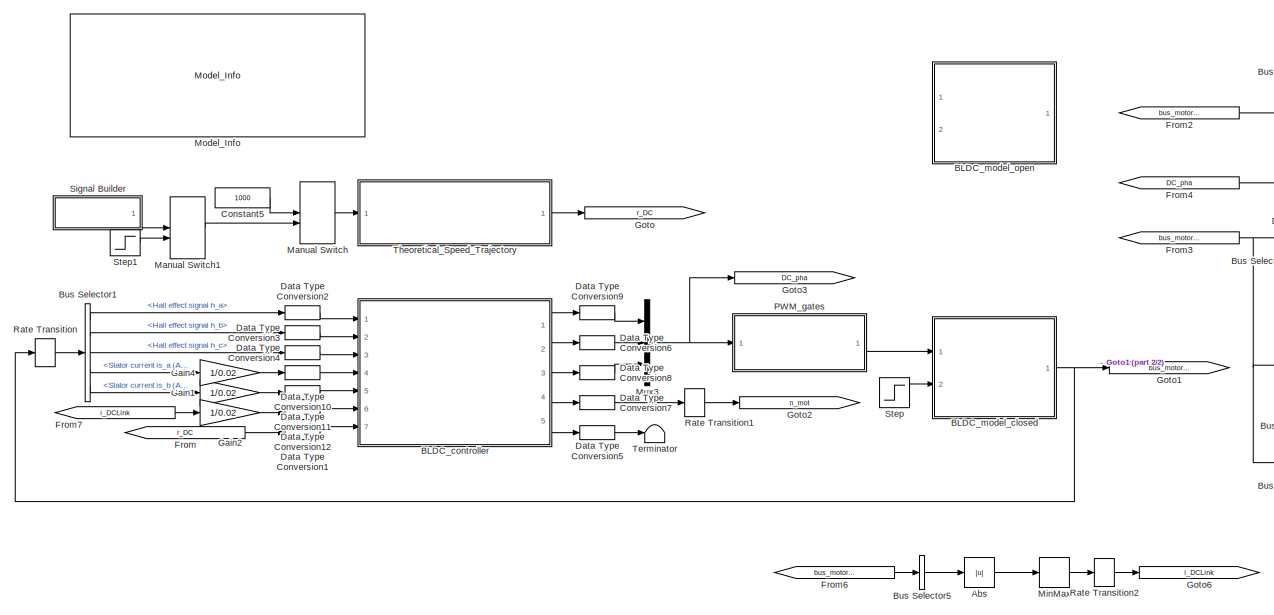
[diagram: root canvas - part 1/2, most of the canvas]
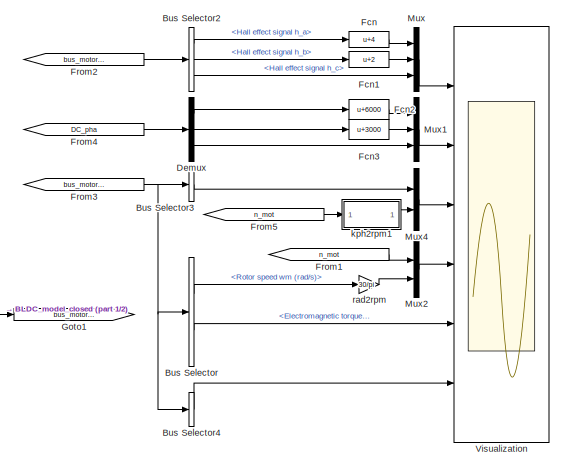
[diagram: root canvas - part 2/2, middle right region]
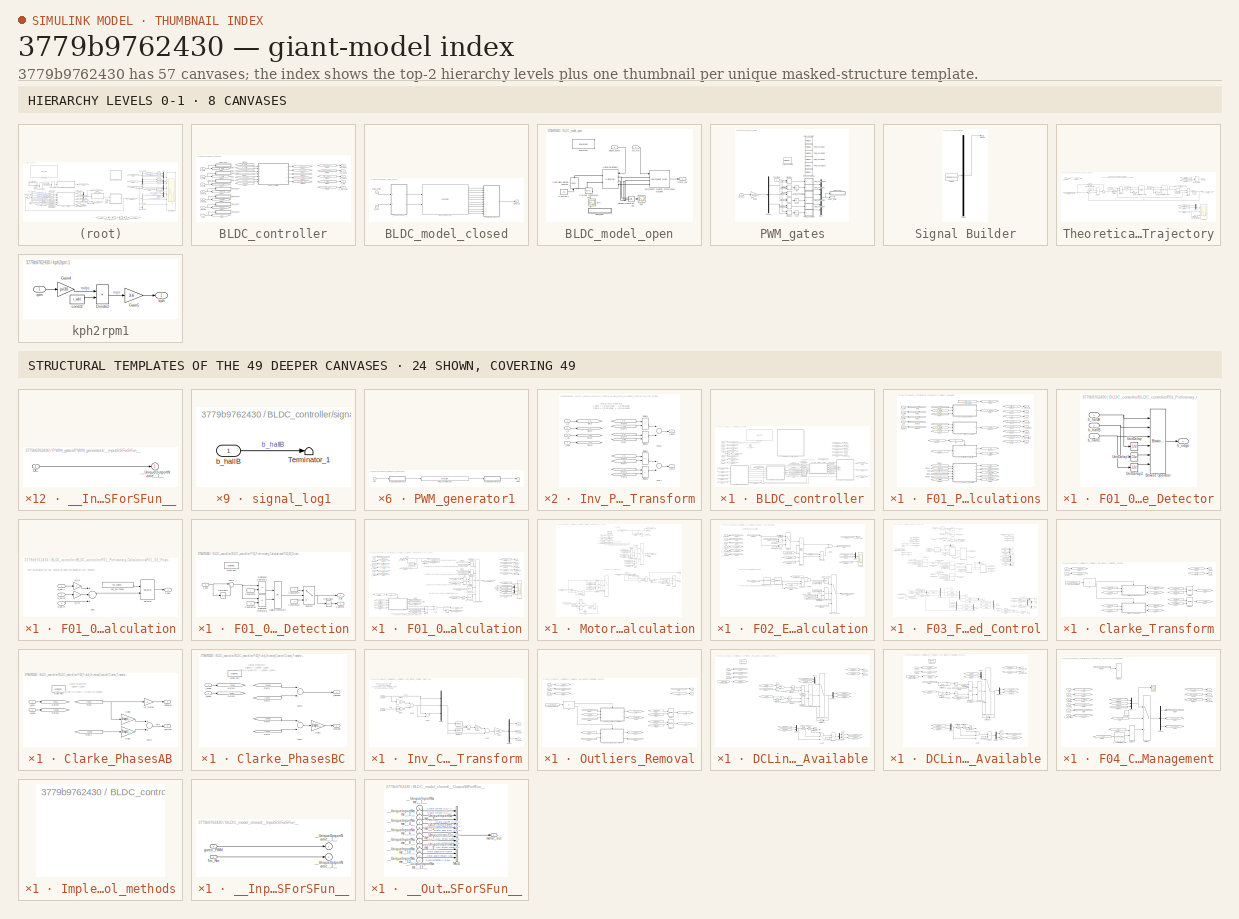
[diagram: thumbnail index - top-2 hierarchy levels (8 canvases) + 24 structural-template representatives of the remaining 49 canvases]
MODEL slx_3779b9762430
KIND model
CONFIG AbsTol = 1e-6
CONFIG EnableMultiTasking = on
CONFIG FixedStep = Ts
CONFIG InitFcn = init_model;
CONFIG MaxStep = 1e-6
CONFIG MinStep = auto
CONFIG PreLoadFcn = addpath(genpath('01_Libraries'));\naddpath(genpath('02_Figures'));
CONFIG RelTol = 1e-6
CONFIG SampleTimeConstraint = Unconstrained
CONFIG Solver = ode4
CONFIG SolverName = ode4
CONFIG StartTime = 0
CONFIG StopTime = 0.5
BLOCK [Abs] Abs
  SaturateOnIntegerOverflow = off
BLOCK [SubSystem] BLDC_controller
  Ports = [7, 5]
  RequestExecContextInheritance = off
  SystemSampleTime = Ts_ctrl
  TreatAsAtomicUnit = on
  Variant = off
BLOCK [SubSystem] BLDC_controller/BLDC_controller
  Ports = [7, 5]
  RequestExecContextInheritance = off
  SystemSampleTime = 1e-5
  Variant = off
BLOCK [Abs] BLDC_controller/BLDC_controller/Abs1
  OutDataTypeStr = Inherit: Inherit via back propagation
  RndMeth = Zero
  SaturateOnIntegerOverflow = off
BLOCK [Outport] BLDC_controller/BLDC_controller/DC_phaA
  IconDisplay = Port number
BLOCK [Outport] BLDC_controller/BLDC_controller/DC_phaB
  IconDisplay = Port number
  Port = 2
BLOCK [Outport] BLDC_controller/BLDC_controller/DC_phaC
  IconDisplay = Port number
  Port = 3
BLOCK [DataTypeConversion] BLDC_controller/BLDC_controller/Data Type Conversion1
  OutDataTypeStr = single
  RndMeth = Floor
  SaturateOnIntegerOverflow = off
BLOCK [DataTypeConversion] BLDC_controller/BLDC_controller/Data Type Conversion10
  OutDataTypeStr = single
  RndMeth = Floor
  SaturateOnIntegerOverflow = off
BLOCK [DataTypeConversion] BLDC_controller/BLDC_controller/Data Type Conversion12
  OutDataTypeStr = single
  RndMeth = Floor
  SaturateOnIntegerOverflow = off
BLOCK [DataTypeConversion] BLDC_controller/BLDC_controller/Data Type Conversion2
  OutDataTypeStr = int16
  RndMeth = Floor
  SaturateOnIntegerOverflow = off
BLOCK [DataTypeConversion] BLDC_controller/BLDC_controller/Data Type Conversion3
  OutDataTypeStr = int16
  RndMeth = Floor
  SaturateOnIntegerOverflow = off
BLOCK [DataTypeConversion] BLDC_controller/BLDC_controller/Data Type Conversion4
  OutDataTypeStr = single
  RndMeth = Floor
  SaturateOnIntegerOverflow = off
BLOCK [DataTypeConversion] BLDC_controller/BLDC_controller/Data Type Conversion5
  OutDataTypeStr = int16
  RndMeth = Floor
  SaturateOnIntegerOverflow = off
BLOCK [DataTypeConversion] BLDC_controller/BLDC_controller/Data Type Conversion6
  OutDataTypeStr = int16
  RndMeth = Floor
  SaturateOnIntegerOverflow = off
BLOCK [DataTypeConversion] BLDC_controller/BLDC_controller/Data Type Conversion7
  OutDataTypeStr = single
  RndMeth = Floor
  SaturateOnIntegerOverflow = off
BLOCK [SubSystem] BLDC_controller/BLDC_controller/F01_Preliminary_Calculations
  Ports = [5, 8]
  RequestExecContextInheritance = off
  Variant = off
BLOCK [SubSystem] BLDC_controller/BLDC_controller/F01_Preliminary_Calculations/F01_01_Edge_Detector
  Ports = [3, 1]
  RequestExecContextInheritance = off
  Variant = off
BLOCK [Reference] BLDC_controller/BLDC_controller/F01_Preliminary_Calculations/F01_01_Edge_Detector/Bitwise Operator  REF=simulink/Logic and Bit
Operations/Bitwise
Operator
  Ports = [6, 1]
  SourceBlock = simulink/Logic and Bit\nOperations/Bitwise\nOperator
  SourceProductBaseCode = SL
  SourceProductName = Simulink
  SourceType = Bitwise Operator
BLOCK [UnitDelay] BLDC_controller/BLDC_controller/F01_Preliminary_Calculations/F01_01_Edge_Detector/UnitDelay
  InputProcessing = Elements as channels (sample based)
  SampleTime = -1
BLOCK [UnitDelay] BLDC_controller/BLDC_controller/F01_Preliminary_Calculations/F01_01_Edge_Detector/UnitDelay1
  InputProcessing = Elements as channels (sample based)
  SampleTime = -1
BLOCK [UnitDelay] BLDC_controller/BLDC_controller/F01_Preliminary_Calculations/F01_01_Edge_Detector/UnitDelay2
  InputProcessing = Elements as channels (sample based)
  SampleTime = -1
BLOCK [Outport] BLDC_controller/BLDC_controller/F01_Preliminary_Calculations/F01_01_Edge_Detector/b_edge 
  IconDisplay = Port number
  InitialOutput = 0
  OutputWhenDisabled = reset
BLOCK [Inport] BLDC_controller/BLDC_controller/F01_Preliminary_Calculations/F01_01_Edge_Detector/b_hallA
  IconDisplay = Port number
BLOCK [Inport] BLDC_controller/BLDC_controller/F01_Preliminary_Calculations/F01_01_Edge_Detector/b_hallB
  IconDisplay = Port number
  Port = 2
BLOCK [Inport] BLDC_controller/BLDC_controller/F01_Preliminary_Calculations/F01_01_Edge_Detector/b_hallC
  IconDisplay = Port number
  Port = 3
BLOCK [SubSystem] BLDC_controller/BLDC_controller/F01_Preliminary_Calculations/F01_02_Position_Calculation
  Ports = [3, 1]
  RequestExecContextInheritance = off
  Variant = off
BLOCK [Selector] BLDC_controller/BLDC_controller/F01_Preliminary_Calculations/F01_02_Position_Calculation/Selector
  IndexMode = Zero-based
  IndexOptions = Index vector (port)
  Indices = [1 3]
  InputPortWidth = length(vec_hallToPos)
  OutputSizes = 1
  Ports = [2, 1]
BLOCK [Sum] BLDC_controller/BLDC_controller/F01_Preliminary_Calculations/F01_02_Position_Calculation/Sum
  AccumDataTypeStr = Inherit: Same as first input
  InputSameDT = off
  Inputs = +++
  Ports = [3, 1]
  RndMeth = Simplest
  SaturateOnIntegerOverflow = off
BLOCK [Inport] BLDC_controller/BLDC_controller/F01_Preliminary_Calculations/F01_02_Position_Calculation/b_hallA
  IconDisplay = Port number
BLOCK [Inport] BLDC_controller/BLDC_controller/F01_Preliminary_Calculations/F01_02_Position_Calculation/b_hallB
  IconDisplay = Port number
  Port = 2
BLOCK [Inport] BLDC_controller/BLDC_controller/F01_Preliminary_Calculations/F01_02_Position_Calculation/b_hallC
  IconDisplay = Port number
  Port = 3
BLOCK [Gain] BLDC_controller/BLDC_controller/F01_Preliminary_Calculations/F01_02_Position_Calculation/g_Ha
  Gain = 4
  OutDataTypeStr = Inherit: Inherit via back propagation
  RndMeth = Zero
  SaturateOnIntegerOverflow = off
BLOCK [Gain] BLDC_controller/BLDC_controller/F01_Preliminary_Calculations/F01_02_Position_Calculation/g_Hb
  Gain = 2
  OutDataTypeStr = Inherit: Inherit via back propagation
  RndMeth = Simplest
  SaturateOnIntegerOverflow = off
BLOCK [Constant] BLDC_controller/BLDC_controller/F01_Preliminary_Calculations/F01_02_Position_Calculation/vec_hallToPos
  OutDataTypeStr = int8
  Value = vec_hallToPos
BLOCK [Outport] BLDC_controller/BLDC_controller/F01_Preliminary_Calculations/F01_02_Position_Calculation/z_pos 
  IconDisplay = Port number
  InitialOutput = 0
  OutputWhenDisabled = reset
BLOCK [SubSystem] BLDC_controller/BLDC_controller/F01_Preliminary_Calculations/F01_03_Direction_Detection
  Ports = [1, 2, 0, 0, 0, 0, 0, 1]
  RequestExecContextInheritance = off
  Variant = off
BLOCK [ActionPort] BLDC_controller/BLDC_controller/F01_Preliminary_Calculations/F01_03_Direction_Detection/Action Port
  ActionType = then
BLOCK [Constant] BLDC_controller/BLDC_controller/F01_Preliminary_Calculations/F01_03_Direction_Detection/Constant20
  OutDataTypeStr = Inherit: Inherit via back propagation
  Value = -5
BLOCK [Constant] BLDC_controller/BLDC_controller/F01_Preliminary_Calculations/F01_03_Direction_Detection/Constant23
  OutDataTypeStr = int8
  Value = -1
BLOCK [Constant] BLDC_controller/BLDC_controller/F01_Preliminary_Calculations/F01_03_Direction_Detection/Constant24
  OutDataTypeStr = int8
BLOCK [Constant] BLDC_controller/BLDC_controller/F01_Preliminary_Calculations/F01_03_Direction_Detection/Constant8
  OutDataTypeStr = Inherit: Inherit via back propagation
BLOCK [Logic] BLDC_controller/BLDC_controller/F01_Preliminary_Calculations/F01_03_Direction_Detection/Logical Operator3
  AllPortsSameDT = off
  Operator = OR
  OutDataTypeStr = boolean
  Ports = [2, 1]
BLOCK [RelationalOperator] BLDC_controller/BLDC_controller/F01_Preliminary_Calculations/F01_03_Direction_Detection/Relational Operator1
  InputSameDT = off
  Operator = ==
  OutDataTypeStr = boolean
  Ports = [2, 1]
  RndMeth = Simplest
BLOCK [RelationalOperator] BLDC_controller/BLDC_controller/F01_Preliminary_Calculations/F01_03_Direction_Detection/Relational Operator6
  InputSameDT = off
  Operator = ==
  OutDataTypeStr = boolean
  Ports = [2, 1]
  RndMeth = Simplest
BLOCK [Sum] BLDC_controller/BLDC_controller/F01_Preliminary_Calculations/F01_03_Direction_Detection/Sum2
  AccumDataTypeStr = Inherit: Same as first input
  IconShape = round
  Inputs = |+-
  Ports = [2, 1]
  RndMeth = Zero
  SaturateOnIntegerOverflow = off
BLOCK [Switch] BLDC_controller/BLDC_controller/F01_Preliminary_Calculations/F01_03_Direction_Detection/Switch2
  Criteria = u2 ~= 0
  InputSameDT = off
  OutDataTypeStr = Inherit: Inherit via back propagation
  RndMeth = Simplest
  SaturateOnIntegerOverflow = off
BLOCK [UnitDelay] BLDC_controller/BLDC_controller/F01_Preliminary_Calculations/F01_03_Direction_Detection/UnitDelay1
  InputProcessing = Elements as channels (sample based)
  SampleTime = -1
BLOCK [UnitDelay] BLDC_controller/BLDC_controller/F01_Preliminary_Calculations/F01_03_Direction_Detection/UnitDelay2
  InputProcessing = Elements as channels (sample based)
  SampleTime = -1
BLOCK [Outport] BLDC_controller/BLDC_controller/F01_Preliminary_Calculations/F01_03_Direction_Detection/z_dir
  IconDisplay = Port number
BLOCK [Outport] BLDC_controller/BLDC_controller/F01_Preliminary_Calculations/F01_03_Direction_Detection/z_dirPrev
  IconDisplay = Port number
  Port = 2
BLOCK [Inport] BLDC_controller/BLDC_controller/F01_Preliminary_Calculations/F01_03_Direction_Detection/z_pos
  IconDisplay = Port number
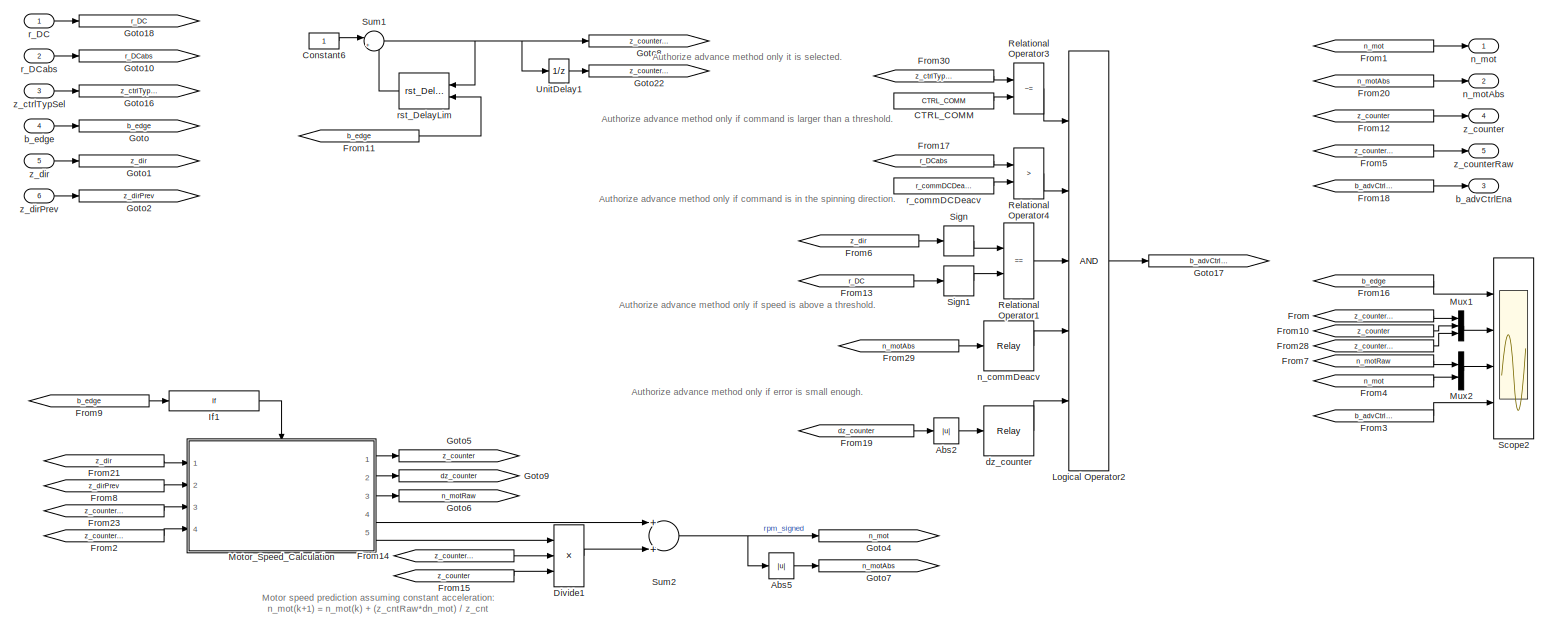
[diagram: BLDC_controller/BLDC_controller/F01_Preliminary_Calculations/F01_04_Speed_Calculation - part 1/1, most of the canvas]
BLOCK [SubSystem] BLDC_controller/BLDC_controller/F01_Preliminary_Calculations/F01_04_Speed_Calculation
  Ports = [6, 5]
  RequestExecContextInheritance = off
  Variant = off
BLOCK [Abs] BLDC_controller/BLDC_controller/F01_Preliminary_Calculations/F01_04_Speed_Calculation/Abs2
  OutDataTypeStr = Inherit: Inherit via back propagation
  RndMeth = Zero
  SaturateOnIntegerOverflow = off
BLOCK [Abs] BLDC_controller/BLDC_controller/F01_Preliminary_Calculations/F01_04_Speed_Calculation/Abs5
  OutDataTypeStr = Inherit: Inherit via back propagation
  RndMeth = Zero
  SaturateOnIntegerOverflow = off
BLOCK [Constant] BLDC_controller/BLDC_controller/F01_Preliminary_Calculations/F01_04_Speed_Calculation/CTRL_COMM
  OutDataTypeStr = Inherit: Inherit via back propagation
  Value = CTRL_COMM
BLOCK [Constant] BLDC_controller/BLDC_controller/F01_Preliminary_Calculations/F01_04_Speed_Calculation/Constant6
  OutDataTypeStr = int16
BLOCK [Product] BLDC_controller/BLDC_controller/F01_Preliminary_Calculations/F01_04_Speed_Calculation/Divide1
  InputSameDT = off
  Inputs = **/
  Ports = [3, 1]
  RndMeth = Simplest
  SaturateOnIntegerOverflow = off
BLOCK [From] BLDC_controller/BLDC_controller/F01_Preliminary_Calculations/F01_04_Speed_Calculation/From
  GotoTag = z_counterRaw
BLOCK [From] BLDC_controller/BLDC_controller/F01_Preliminary_Calculations/F01_04_Speed_Calculation/From1
  GotoTag = n_mot
BLOCK [From] BLDC_controller/BLDC_controller/F01_Preliminary_Calculations/F01_04_Speed_Calculation/From10
  GotoTag = z_counter
BLOCK [From] BLDC_controller/BLDC_controller/F01_Preliminary_Calculations/F01_04_Speed_Calculation/From11
  GotoTag = b_edge
BLOCK [From] BLDC_controller/BLDC_controller/F01_Preliminary_Calculations/F01_04_Speed_Calculation/From12
  GotoTag = z_counter
BLOCK [From] BLDC_controller/BLDC_controller/F01_Preliminary_Calculations/F01_04_Speed_Calculation/From13
  GotoTag = r_DC
BLOCK [From] BLDC_controller/BLDC_controller/F01_Preliminary_Calculations/F01_04_Speed_Calculation/From14
  GotoTag = z_counterRaw
BLOCK [From] BLDC_controller/BLDC_controller/F01_Preliminary_Calculations/F01_04_Speed_Calculation/From15
  GotoTag = z_counter
BLOCK [From] BLDC_controller/BLDC_controller/F01_Preliminary_Calculations/F01_04_Speed_Calculation/From16
  GotoTag = b_edge
BLOCK [From] BLDC_controller/BLDC_controller/F01_Preliminary_Calculations/F01_04_Speed_Calculation/From17
  GotoTag = r_DCabs
BLOCK [From] BLDC_controller/BLDC_controller/F01_Preliminary_Calculations/F01_04_Speed_Calculation/From18
  GotoTag = b_advCtrlEna
BLOCK [From] BLDC_controller/BLDC_controller/F01_Preliminary_Calculations/F01_04_Speed_Calculation/From19
  GotoTag = dz_counter
BLOCK [From] BLDC_controller/BLDC_controller/F01_Preliminary_Calculations/F01_04_Speed_Calculation/From2
  GotoTag = z_counterRawPrev
BLOCK [From] BLDC_controller/BLDC_controller/F01_Preliminary_Calculations/F01_04_Speed_Calculation/From20
  GotoTag = n_motAbs
BLOCK [From] BLDC_controller/BLDC_controller/F01_Preliminary_Calculations/F01_04_Speed_Calculation/From21
  GotoTag = z_dir
BLOCK [From] BLDC_controller/BLDC_controller/F01_Preliminary_Calculations/F01_04_Speed_Calculation/From23
  GotoTag = z_counterRaw
BLOCK [From] BLDC_controller/BLDC_controller/F01_Preliminary_Calculations/F01_04_Speed_Calculation/From28
  GotoTag = z_counterCor
BLOCK [From] BLDC_controller/BLDC_controller/F01_Preliminary_Calculations/F01_04_Speed_Calculation/From29
  GotoTag = n_motAbs
BLOCK [From] BLDC_controller/BLDC_controller/F01_Preliminary_Calculations/F01_04_Speed_Calculation/From3
  GotoTag = b_advCtrlEna
BLOCK [From] BLDC_controller/BLDC_controller/F01_Preliminary_Calculations/F01_04_Speed_Calculation/From30
  GotoTag = z_ctrlTypSel
BLOCK [From] BLDC_controller/BLDC_controller/F01_Preliminary_Calculations/F01_04_Speed_Calculation/From4
  GotoTag = n_mot
BLOCK [From] BLDC_controller/BLDC_controller/F01_Preliminary_Calculations/F01_04_Speed_Calculation/From5
  GotoTag = z_counterRaw
BLOCK [From] BLDC_controller/BLDC_controller/F01_Preliminary_Calculations/F01_04_Speed_Calculation/From6
  GotoTag = z_dir
BLOCK [From] BLDC_controller/BLDC_controller/F01_Preliminary_Calculations/F01_04_Speed_Calculation/From7
  GotoTag = n_motRaw
BLOCK [From] BLDC_controller/BLDC_controller/F01_Preliminary_Calculations/F01_04_Speed_Calculation/From8
  GotoTag = z_dirPrev
BLOCK [From] BLDC_controller/BLDC_controller/F01_Preliminary_Calculations/F01_04_Speed_Calculation/From9
  GotoTag = b_edge
BLOCK [Goto] BLDC_controller/BLDC_controller/F01_Preliminary_Calculations/F01_04_Speed_Calculation/Goto
  GotoTag = b_edge
BLOCK [Goto] BLDC_controller/BLDC_controller/F01_Preliminary_Calculations/F01_04_Speed_Calculation/Goto1
  GotoTag = z_dir
BLOCK [Goto] BLDC_controller/BLDC_controller/F01_Preliminary_Calculations/F01_04_Speed_Calculation/Goto10
  GotoTag = r_DCabs
BLOCK [Goto] BLDC_controller/BLDC_controller/F01_Preliminary_Calculations/F01_04_Speed_Calculation/Goto16
  GotoTag = z_ctrlTypSel
BLOCK [Goto] BLDC_controller/BLDC_controller/F01_Preliminary_Calculations/F01_04_Speed_Calculation/Goto17
  GotoTag = b_advCtrlEna
BLOCK [Goto] BLDC_controller/BLDC_controller/F01_Preliminary_Calculations/F01_04_Speed_Calculation/Goto18
  GotoTag = r_DC
BLOCK [Goto] BLDC_controller/BLDC_controller/F01_Preliminary_Calculations/F01_04_Speed_Calculation/Goto2
  GotoTag = z_dirPrev
BLOCK [Goto] BLDC_controller/BLDC_controller/F01_Preliminary_Calculations/F01_04_Speed_Calculation/Goto22
  GotoTag = z_counterRawPrev
BLOCK [Goto] BLDC_controller/BLDC_controller/F01_Preliminary_Calculations/F01_04_Speed_Calculation/Goto4
  GotoTag = n_mot
BLOCK [Goto] BLDC_controller/BLDC_controller/F01_Preliminary_Calculations/F01_04_Speed_Calculation/Goto5
  GotoTag = z_counter
BLOCK [Goto] BLDC_controller/BLDC_controller/F01_Preliminary_Calculations/F01_04_Speed_Calculation/Goto6
  GotoTag = n_motRaw
BLOCK [Goto] BLDC_controller/BLDC_controller/F01_Preliminary_Calculations/F01_04_Speed_Calculation/Goto7
  GotoTag = n_motAbs
BLOCK [Goto] BLDC_controller/BLDC_controller/F01_Preliminary_Calculations/F01_04_Speed_Calculation/Goto8
  GotoTag = z_counterRaw
BLOCK [Goto] BLDC_controller/BLDC_controller/F01_Preliminary_Calculations/F01_04_Speed_Calculation/Goto9
  GotoTag = dz_counter
BLOCK [If] BLDC_controller/BLDC_controller/F01_Preliminary_Calculations/F01_04_Speed_Calculation/If1
  IfExpression = u1 ~= 0
  Ports = [1, 1]
  ShowElse = off
BLOCK [Logic] BLDC_controller/BLDC_controller/F01_Preliminary_Calculations/F01_04_Speed_Calculation/Logical Operator2
  AllPortsSameDT = off
  Inputs = 5
  OutDataTypeStr = boolean
  Ports = [5, 1]
BLOCK [SubSystem] BLDC_controller/BLDC_controller/F01_Preliminary_Calculations/F01_04_Speed_Calculation/Motor_Speed_Calculation
  Ports = [4, 5, 0, 0, 0, 0, 0, 1]
  RequestExecContextInheritance = off
  Variant = off
BLOCK [Abs] BLDC_controller/BLDC_controller/F01_Preliminary_Calculations/F01_04_Speed_Calculation/Motor_Speed_Calculation/Abs
  SaturateOnIntegerOverflow = off
BLOCK [ActionPort] BLDC_controller/BLDC_controller/F01_Preliminary_Calculations/F01_04_Speed_Calculation/Motor_Speed_Calculation/Action Port
  ActionType = then
BLOCK [Constant] BLDC_controller/BLDC_controller/F01_Preliminary_Calculations/F01_04_Speed_Calculation/Motor_Speed_Calculation/Constant
  OutDataTypeStr = Inherit: Inherit via back propagation
  Value = 25
BLOCK [Constant] BLDC_controller/BLDC_controller/F01_Preliminary_Calculations/F01_04_Speed_Calculation/Motor_Speed_Calculation/Constant1
  OutDataTypeStr = Inherit: Inherit via back propagation
  Value = 0
BLOCK [Constant] BLDC_controller/BLDC_controller/F01_Preliminary_Calculations/F01_04_Speed_Calculation/Motor_Speed_Calculation/Constant2
  OutDataTypeStr = Inherit: Inherit via back propagation
  Value = 0
BLOCK [Constant] BLDC_controller/BLDC_controller/F01_Preliminary_Calculations/F01_04_Speed_Calculation/Motor_Speed_Calculation/Constant3
  Commented = on
  OutDataTypeStr = Inherit: Inherit via back propagation
  Value = 2
BLOCK [Constant] BLDC_controller/BLDC_controller/F01_Preliminary_Calculations/F01_04_Speed_Calculation/Motor_Speed_Calculation/Constant4
  OutDataTypeStr = Inherit: Inherit via back propagation
  Value = 4
BLOCK [Constant] BLDC_controller/BLDC_controller/F01_Preliminary_Calculations/F01_04_Speed_Calculation/Motor_Speed_Calculation/Constant5
  Commented = on
  OutDataTypeStr = Inherit: Inherit via back propagation
  Value = 100
BLOCK [Constant] BLDC_controller/BLDC_controller/F01_Preliminary_Calculations/F01_04_Speed_Calculation/Motor_Speed_Calculation/Constant6
  Commented = on
  OutDataTypeStr = Inherit: Inherit via back propagation
  Value = 100
BLOCK [Constant] BLDC_controller/BLDC_controller/F01_Preliminary_Calculations/F01_04_Speed_Calculation/Motor_Speed_Calculation/Constant7
  Commented = on
  OutDataTypeStr = Inherit: Inherit via back propagation
  Value = 200
BLOCK [Product] BLDC_controller/BLDC_controller/F01_Preliminary_Calculations/F01_04_Speed_Calculation/Motor_Speed_Calculation/Divide1
  InputSameDT = off
  Inputs = */
  OutDataTypeStr = Inherit: Inherit via internal rule
  Ports = [2, 1]
  RndMeth = Simplest
  SaturateOnIntegerOverflow = off
BLOCK [Product] BLDC_controller/BLDC_controller/F01_Preliminary_Calculations/F01_04_Speed_Calculation/Motor_Speed_Calculation/Divide2
  Commented = on
  InputSameDT = off
  Inputs = **
  Ports = [2, 1]
  RndMeth = Simplest
  SaturateOnIntegerOverflow = off
BLOCK [Product] BLDC_controller/BLDC_controller/F01_Preliminary_Calculations/F01_04_Speed_Calculation/Motor_Speed_Calculation/Divide3
  Commented = on
  InputSameDT = off
  Inputs = */
  OutDataTypeStr = Inherit: Inherit via internal rule
  Ports = [2, 1]
  RndMeth = Simplest
  SaturateOnIntegerOverflow = off
BLOCK [Product] BLDC_controller/BLDC_controller/F01_Preliminary_Calculations/F01_04_Speed_Calculation/Motor_Speed_Calculation/Divide4
  InputSameDT = off
  Inputs = **/
  Ports = [3, 1]
  RndMeth = Simplest
  SaturateOnIntegerOverflow = off
BLOCK [Product] BLDC_controller/BLDC_controller/F01_Preliminary_Calculations/F01_04_Speed_Calculation/Motor_Speed_Calculation/Divide5
  Commented = on
  InputSameDT = off
  Inputs = */
  Ports = [2, 1]
  RndMeth = Simplest
  SaturateOnIntegerOverflow = off
BLOCK [Product] BLDC_controller/BLDC_controller/F01_Preliminary_Calculations/F01_04_Speed_Calculation/Motor_Speed_Calculation/Divide6
  Commented = on
  InputSameDT = off
  Inputs = **
  Ports = [2, 1]
  RndMeth = Simplest
  SaturateOnIntegerOverflow = off
BLOCK [From] BLDC_controller/BLDC_controller/F01_Preliminary_Calculations/F01_04_Speed_Calculation/Motor_Speed_Calculation/From
  Commented = on
  GotoTag = n_motRaw
BLOCK [From] BLDC_controller/BLDC_controller/F01_Preliminary_Calculations/F01_04_Speed_Calculation/Motor_Speed_Calculation/From1
  GotoTag = z_counterRawPrev
BLOCK [From] BLDC_controller/BLDC_controller/F01_Preliminary_Calculations/F01_04_Speed_Calculation/Motor_Speed_Calculation/From14
  GotoTag = z_counterRaw
BLOCK [From] BLDC_controller/BLDC_controller/F01_Preliminary_Calculations/F01_04_Speed_Calculation/Motor_Speed_Calculation/From15
  GotoTag = z_dir
BLOCK [From] BLDC_controller/BLDC_controller/F01_Preliminary_Calculations/F01_04_Speed_Calculation/Motor_Speed_Calculation/From17
  GotoTag = z_dirPrev
BLOCK [From] BLDC_controller/BLDC_controller/F01_Preliminary_Calculations/F01_04_Speed_Calculation/Motor_Speed_Calculation/From2
  GotoTag = n_motRaw
BLOCK [From] BLDC_controller/BLDC_controller/F01_Preliminary_Calculations/F01_04_Speed_Calculation/Motor_Speed_Calculation/From42
  GotoTag = z_dir
BLOCK [From] BLDC_controller/BLDC_controller/F01_Preliminary_Calculations/F01_04_Speed_Calculation/Motor_Speed_Calculation/From5
  Commented = on
  GotoTag = z_counter
BLOCK [From] BLDC_controller/BLDC_controller/F01_Preliminary_Calculations/F01_04_Speed_Calculation/Motor_Speed_Calculation/From6
  Commented = on
  GotoTag = z_dir
BLOCK [From] BLDC_controller/BLDC_controller/F01_Preliminary_Calculations/F01_04_Speed_Calculation/Motor_Speed_Calculation/From7
  Commented = on
  GotoTag = z_dirPrev
BLOCK [From] BLDC_controller/BLDC_controller/F01_Preliminary_Calculations/F01_04_Speed_Calculation/Motor_Speed_Calculation/From8
  GotoTag = z_counter
BLOCK [Goto] BLDC_controller/BLDC_controller/F01_Preliminary_Calculations/F01_04_Speed_Calculation/Motor_Speed_Calculation/Goto
  GotoTag = z_dir
BLOCK [Goto] BLDC_controller/BLDC_controller/F01_Preliminary_Calculations/F01_04_Speed_Calculation/Motor_Speed_Calculation/Goto1
  GotoTag = z_counter
BLOCK [Goto] BLDC_controller/BLDC_controller/F01_Preliminary_Calculations/F01_04_Speed_Calculation/Motor_Speed_Calculation/Goto2
  GotoTag = n_motRaw
BLOCK [Goto] BLDC_controller/BLDC_controller/F01_Preliminary_Calculations/F01_04_Speed_Calculation/Motor_Speed_Calculation/Goto3
  GotoTag = z_dirPrev
BLOCK [Goto] BLDC_controller/BLDC_controller/F01_Preliminary_Calculations/F01_04_Speed_Calculation/Motor_Speed_Calculation/Goto4
  GotoTag = z_counterRaw
BLOCK [Goto] BLDC_controller/BLDC_controller/F01_Preliminary_Calculations/F01_04_Speed_Calculation/Motor_Speed_Calculation/Goto5
  GotoTag = z_counterRawPrev
BLOCK [Logic] BLDC_controller/BLDC_controller/F01_Preliminary_Calculations/F01_04_Speed_Calculation/Motor_Speed_Calculation/Logical Operator1
  AllPortsSameDT = off
  Operator = OR
  OutDataTypeStr = boolean
  Ports = [2, 1]
BLOCK [Logic] BLDC_controller/BLDC_controller/F01_Preliminary_Calculations/F01_04_Speed_Calculation/Motor_Speed_Calculation/Logical Operator2
  AllPortsSameDT = off
  Commented = on
  Operator = OR
  OutDataTypeStr = boolean
  Ports = [2, 1]
BLOCK [RelationalOperator] BLDC_controller/BLDC_controller/F01_Preliminary_Calculations/F01_04_Speed_Calculation/Motor_Speed_Calculation/Relational Operator
  InputSameDT = off
  Operator = >
  OutDataTypeStr = boolean
  Ports = [2, 1]
BLOCK [RelationalOperator] BLDC_controller/BLDC_controller/F01_Preliminary_Calculations/F01_04_Speed_Calculation/Motor_Speed_Calculation/Relational Operator2
  InputSameDT = off
  Operator = >
  OutDataTypeStr = boolean
  Ports = [2, 1]
  RndMeth = Simplest
BLOCK [RelationalOperator] BLDC_controller/BLDC_controller/F01_Preliminary_Calculations/F01_04_Speed_Calculation/Motor_Speed_Calculation/Relational Operator3
  Commented = on
  InputSameDT = off
  Operator = >
  OutDataTypeStr = boolean
  Ports = [2, 1]
BLOCK [RelationalOperator] BLDC_controller/BLDC_controller/F01_Preliminary_Calculations/F01_04_Speed_Calculation/Motor_Speed_Calculation/Relational Operator4
  Commented = on
  InputSameDT = off
  Operator = ~=
  OutDataTypeStr = boolean
  Ports = [2, 1]
  RndMeth = Simplest
BLOCK [RelationalOperator] BLDC_controller/BLDC_controller/F01_Preliminary_Calculations/F01_04_Speed_Calculation/Motor_Speed_Calculation/Relational Operator5
  InputSameDT = off
  Operator = ~=
  OutDataTypeStr = boolean
  Ports = [2, 1]
  RndMeth = Simplest
BLOCK [Sum] BLDC_controller/BLDC_controller/F01_Preliminary_Calculations/F01_04_Speed_Calculation/Motor_Speed_Calculation/Sum1
  Commented = on
  OutDataTypeStr = Inherit: Inherit via internal rule
  Ports = [2, 1]
  RndMeth = Simplest
  SaturateOnIntegerOverflow = off
BLOCK [Sum] BLDC_controller/BLDC_controller/F01_Preliminary_Calculations/F01_04_Speed_Calculation/Motor_Speed_Calculation/Sum2
  AccumDataTypeStr = Inherit: Same as first input
  Inputs = +-
  Ports = [2, 1]
  RndMeth = Simplest
  SaturateOnIntegerOverflow = off
BLOCK [Sum] BLDC_controller/BLDC_controller/F01_Preliminary_Calculations/F01_04_Speed_Calculation/Motor_Speed_Calculation/Sum3
  Inputs = ++++
  OutDataTypeStr = Inherit: Inherit via internal rule
  Ports = [4, 1]
  RndMeth = Simplest
  SaturateOnIntegerOverflow = off
BLOCK [Sum] BLDC_controller/BLDC_controller/F01_Preliminary_Calculations/F01_04_Speed_Calculation/Motor_Speed_Calculation/Sum4
  AccumDataTypeStr = Inherit: Same as first input
  Inputs = +-
  Ports = [2, 1]
  RndMeth = Simplest
  SaturateOnIntegerOverflow = off
BLOCK [Sum] BLDC_controller/BLDC_controller/F01_Preliminary_Calculations/F01_04_Speed_Calculation/Motor_Speed_Calculation/Sum5
  AccumDataTypeStr = Inherit: Same as first input
  Commented = on
  Ports = [2, 1]
  RndMeth = Simplest
  SaturateOnIntegerOverflow = off
BLOCK [Sum] BLDC_controller/BLDC_controller/F01_Preliminary_Calculations/F01_04_Speed_Calculation/Motor_Speed_Calculation/Sum6
  AccumDataTypeStr = Inherit: Same as first input
  Commented = on
  Inputs = +-
  Ports = [2, 1]
  RndMeth = Simplest
  SaturateOnIntegerOverflow = off
BLOCK [Switch] BLDC_controller/BLDC_controller/F01_Preliminary_Calculations/F01_04_Speed_Calculation/Motor_Speed_Calculation/Switch1
  Criteria = u2 ~= 0
  InputSameDT = off
  OutDataTypeStr = Inherit: Inherit via back propagation
  RndMeth = Zero
  SaturateOnIntegerOverflow = off
BLOCK [Switch] BLDC_controller/BLDC_controller/F01_Preliminary_Calculations/F01_04_Speed_Calculation/Motor_Speed_Calculation/Switch3
  Commented = on
  Criteria = u2 ~= 0
  InputSameDT = off
  OutDataTypeStr = Inherit: Inherit via back propagation
  RndMeth = Zero
  SaturateOnIntegerOverflow = off
BLOCK [Switch] BLDC_controller/BLDC_controller/F01_Preliminary_Calculations/F01_04_Speed_Calculation/Motor_Speed_Calculation/Switch6
  AttributesFormatString = threshold=%<threshold>\nCriteria : %<Criteria>
  Criteria = u2 ~= 0
  Tag = struct('comment',struct('text','','placement',1),'logdata',struct('maxnumvals',inf,'plotchannels',[],'loggingmode',3,'channels',1),'output',struct('variable','','description','','name','$S_$B','width',1,'address','','max',NaN,'min',NaN,'class','default','type','CONTINUOUS','scaling','','lsb',1,'offset',0,'arb',0,'freeze',1,'unit','','autoscalingmode',1,'lowerheadroom',1,'upperheadroom',1,'headroom...<+413ch>
BLOCK [UnitDelay] BLDC_controller/BLDC_controller/F01_Preliminary_Calculations/F01_04_Speed_Calculation/Motor_Speed_Calculation/UnitDelay1
  InputProcessing = Elements as channels (sample based)
  SampleTime = -1
BLOCK [UnitDelay] BLDC_controller/BLDC_controller/F01_Preliminary_Calculations/F01_04_Speed_Calculation/Motor_Speed_Calculation/UnitDelay2
  InputProcessing = Elements as channels (sample based)
  SampleTime = -1
BLOCK [UnitDelay] BLDC_controller/BLDC_controller/F01_Preliminary_Calculations/F01_04_Speed_Calculation/Motor_Speed_Calculation/UnitDelay3
  InputProcessing = Elements as channels (sample based)
  SampleTime = -1
BLOCK [UnitDelay] BLDC_controller/BLDC_controller/F01_Preliminary_Calculations/F01_04_Speed_Calculation/Motor_Speed_Calculation/UnitDelay4
  Commented = on
  InputProcessing = Elements as channels (sample based)
  SampleTime = -1
BLOCK [UnitDelay] BLDC_controller/BLDC_controller/F01_Preliminary_Calculations/F01_04_Speed_Calculation/Motor_Speed_Calculation/UnitDelay5
  InputProcessing = Elements as channels (sample based)
  SampleTime = -1
BLOCK [UnitDelay] BLDC_controller/BLDC_controller/F01_Preliminary_Calculations/F01_04_Speed_Calculation/Motor_Speed_Calculation/UnitDelay6
  Commented = on
  InputProcessing = Elements as channels (sample based)
  SampleTime = -1
BLOCK [Constant] BLDC_controller/BLDC_controller/F01_Preliminary_Calculations/F01_04_Speed_Calculation/Motor_Speed_Calculation/cf_spdCoef
  OutDataTypeStr = int32
  Value = cf_speedCoef
BLOCK [Constant] BLDC_controller/BLDC_controller/F01_Preliminary_Calculations/F01_04_Speed_Calculation/Motor_Speed_Calculation/cf_speedFilt
  Commented = on
  OutDataTypeStr = int32
  Value = 3
BLOCK [Outport] BLDC_controller/BLDC_controller/F01_Preliminary_Calculations/F01_04_Speed_Calculation/Motor_Speed_Calculation/dn_mot
  IconDisplay = Port number
  Port = 5
BLOCK [Outport] BLDC_controller/BLDC_controller/F01_Preliminary_Calculations/F01_04_Speed_Calculation/Motor_Speed_Calculation/dz_counter
  IconDisplay = Port number
  Port = 2
BLOCK [Outport] BLDC_controller/BLDC_controller/F01_Preliminary_Calculations/F01_04_Speed_Calculation/Motor_Speed_Calculation/n_motFilt
  IconDisplay = Port number
  Port = 4
BLOCK [Outport] BLDC_controller/BLDC_controller/F01_Preliminary_Calculations/F01_04_Speed_Calculation/Motor_Speed_Calculation/n_motRaw
  IconDisplay = Port number
  Port = 3
BLOCK [Outport] BLDC_controller/BLDC_controller/F01_Preliminary_Calculations/F01_04_Speed_Calculation/Motor_Speed_Calculation/z_counter
  IconDisplay = Port number
  InitialOutput = z_maxCntRst
BLOCK [UnitDelay] BLDC_controller/BLDC_controller/F01_Preliminary_Calculations/F01_04_Speed_Calculation/Motor_Speed_Calculation/z_counter2
  InitialCondition = z_maxCntRst
  InputProcessing = Elements as channels (sample based)
  SampleTime = -1
BLOCK [Inport] BLDC_controller/BLDC_controller/F01_Preliminary_Calculations/F01_04_Speed_Calculation/Motor_Speed_Calculation/z_counterRaw
  IconDisplay = Port number
  Port = 3
BLOCK [Inport] BLDC_controller/BLDC_controller/F01_Preliminary_Calculations/F01_04_Speed_Calculation/Motor_Speed_Calculation/z_counterRawPrev
  IconDisplay = Port number
  Port = 4
BLOCK [Inport] BLDC_controller/BLDC_controller/F01_Preliminary_Calculations/F01_04_Speed_Calculation/Motor_Speed_Calculation/z_dir
  IconDisplay = Port number
BLOCK [Inport] BLDC_controller/BLDC_controller/F01_Preliminary_Calculations/F01_04_Speed_Calculation/Motor_Speed_Calculation/z_dirPrev
  IconDisplay = Port number
  Port = 2
BLOCK [Constant] BLDC_controller/BLDC_controller/F01_Preliminary_Calculations/F01_04_Speed_Calculation/Motor_Speed_Calculation/z_maxCntRst
  OutDataTypeStr = Inherit: Inherit via back propagation
  Value = z_maxCntRst
BLOCK [Mux] BLDC_controller/BLDC_controller/F01_Preliminary_Calculations/F01_04_Speed_Calculation/Mux1
  DisplayOption = bar
  Inputs = 3
  Ports = [3, 1]
BLOCK [Mux] BLDC_controller/BLDC_controller/F01_Preliminary_Calculations/F01_04_Speed_Calculation/Mux2
  DisplayOption = bar
  Inputs = 2
  Ports = [2, 1]
BLOCK [RelationalOperator] BLDC_controller/BLDC_controller/F01_Preliminary_Calculations/F01_04_Speed_Calculation/Relational Operator1
  InputSameDT = off
  Operator = ==
  OutDataTypeStr = boolean
  Ports = [2, 1]
  RndMeth = Simplest
BLOCK [RelationalOperator] BLDC_controller/BLDC_controller/F01_Preliminary_Calculations/F01_04_Speed_Calculation/Relational Operator3
  InputSameDT = off
  Operator = ~=
  OutDataTypeStr = boolean
  Ports = [2, 1]
  RndMeth = Simplest
BLOCK [RelationalOperator] BLDC_controller/BLDC_controller/F01_Preliminary_Calculations/F01_04_Speed_Calculation/Relational Operator4
  InputSameDT = off
  Operator = >
  OutDataTypeStr = boolean
  Ports = [2, 1]
  RndMeth = Simplest
BLOCK [Scope] BLDC_controller/BLDC_controller/F01_Preliminary_Calculations/F01_04_Speed_Calculation/Scope2
  NumInputPorts = 4
  Ports = [4]
  ScopeSpecificationString = Simulink.scopes.TimeScopeBlockCfg('CurrentConfiguration', extmgr.ConfigurationSet(extmgr.Configuration('Core','General UI',true),extmgr.Configuration('Core','Source UI',true),extmgr.Configuration('Sources','WiredSimulink',true,'DataLoggingVariableName','ScopeData1'),extmgr.Configuration('Visuals','Time Domain',true,'SerializedDisplays',{struct('MinYLimReal','-0.125','MaxYLimReal','1.125','YLabelRe...<+3901ch>
BLOCK [Signum] BLDC_controller/BLDC_controller/F01_Preliminary_Calculations/F01_04_Speed_Calculation/Sign
BLOCK [Signum] BLDC_controller/BLDC_controller/F01_Preliminary_Calculations/F01_04_Speed_Calculation/Sign1
BLOCK [Sum] BLDC_controller/BLDC_controller/F01_Preliminary_Calculations/F01_04_Speed_Calculation/Sum1
  AccumDataTypeStr = Inherit: Same as first input
  IconShape = round
  Inputs = |++
  Ports = [2, 1]
  RndMeth = Simplest
  SaturateOnIntegerOverflow = off
BLOCK [Sum] BLDC_controller/BLDC_controller/F01_Preliminary_Calculations/F01_04_Speed_Calculation/Sum2
  AccumDataTypeStr = Inherit: Same as first input
  Ports = [2, 1]
  RndMeth = Simplest
  SaturateOnIntegerOverflow = off
BLOCK [UnitDelay] BLDC_controller/BLDC_controller/F01_Preliminary_Calculations/F01_04_Speed_Calculation/UnitDelay1
  InputProcessing = Elements as channels (sample based)
  SampleTime = -1
BLOCK [Outport] BLDC_controller/BLDC_controller/F01_Preliminary_Calculations/F01_04_Speed_Calculation/b_advCtrlEna
  IconDisplay = Port number
  Port = 3
BLOCK [Inport] BLDC_controller/BLDC_controller/F01_Preliminary_Calculations/F01_04_Speed_Calculation/b_edge
  IconDisplay = Port number
  Port = 4
BLOCK [Relay] BLDC_controller/BLDC_controller/F01_Preliminary_Calculations/F01_04_Speed_Calculation/dz_counter
  InputProcessing = Elements as channels (sample based)
  OffOutputValue = 1
  OffSwitchValue = dz_counterLo
  OnOutputValue = 0
  OnSwitchValue = dz_counterHi
  OutDataTypeStr = boolean
BLOCK [Relay] BLDC_controller/BLDC_controller/F01_Preliminary_Calculations/F01_04_Speed_Calculation/n_commDeacv
  InputProcessing = Elements as channels (sample based)
  OffSwitchValue = n_commAcvLo
  OnSwitchValue = n_commDeacvHi
  OutDataTypeStr = boolean
BLOCK [Outport] BLDC_controller/BLDC_controller/F01_Preliminary_Calculations/F01_04_Speed_Calculation/n_mot
  IconDisplay = Port number
BLOCK [Outport] BLDC_controller/BLDC_controller/F01_Preliminary_Calculations/F01_04_Speed_Calculation/n_motAbs
  IconDisplay = Port number
  Port = 2
BLOCK [Inport] BLDC_controller/BLDC_controller/F01_Preliminary_Calculations/F01_04_Speed_Calculation/r_DC
  IconDisplay = Port number
BLOCK [Inport] BLDC_controller/BLDC_controller/F01_Preliminary_Calculations/F01_04_Speed_Calculation/r_DCabs
  IconDisplay = Port number
  Port = 2
BLOCK [Constant] BLDC_controller/BLDC_controller/F01_Preliminary_Calculations/F01_04_Speed_Calculation/r_commDCDeacv
  OutDataTypeStr = Inherit: Inherit via back propagation
  Value = r_commDCDeacv
BLOCK [Reference] BLDC_controller/BLDC_controller/F01_Preliminary_Calculations/F01_04_Speed_Calculation/rst_DelayLim  REF=BLDC_controller_Lib/rst_DelayLim
  Ports = [2, 1]
  SourceBlock = BLDC_controller_Lib/rst_DelayLim
BLOCK [Outport] BLDC_controller/BLDC_controller/F01_Preliminary_Calculations/F01_04_Speed_Calculation/z_counter
  IconDisplay = Port number
  InitialOutput = 0
  OutputWhenDisabled = reset
  Port = 4
BLOCK [Outport] BLDC_controller/BLDC_controller/F01_Preliminary_Calculations/F01_04_Speed_Calculation/z_counterRaw
  IconDisplay = Port number
  InitialOutput = 0
  OutputWhenDisabled = reset
  Port = 5
BLOCK [Inport] BLDC_controller/BLDC_controller/F01_Preliminary_Calculations/F01_04_Speed_Calculation/z_ctrlTypSel
  IconDisplay = Port number
  Port = 3
BLOCK [Inport] BLDC_controller/BLDC_controller/F01_Preliminary_Calculations/F01_04_Speed_Calculation/z_dir
  IconDisplay = Port number
  Port = 5
BLOCK [Inport] BLDC_controller/BLDC_controller/F01_Preliminary_Calculations/F01_04_Speed_Calculation/z_dirPrev
  IconDisplay = Port number
  Port = 6
BLOCK [From] BLDC_controller/BLDC_controller/F01_Preliminary_Calculations/From
  GotoTag = z_ctrlTypSel
BLOCK [From] BLDC_controller/BLDC_controller/F01_Preliminary_Calculations/From1
  GotoTag = b_edge
BLOCK [From] BLDC_controller/BLDC_controller/F01_Preliminary_Calculations/From10
  GotoTag = z_pos
BLOCK [From] BLDC_controller/BLDC_controller/F01_Preliminary_Calculations/From11
  GotoTag = r_DC
BLOCK [From] BLDC_controller/BLDC_controller/F01_Preliminary_Calculations/From12
  GotoTag = z_counterRaw
BLOCK [From] BLDC_controller/BLDC_controller/F01_Preliminary_Calculations/From13
  GotoTag = z_dir
BLOCK [From] BLDC_controller/BLDC_controller/F01_Preliminary_Calculations/From14
  GotoTag = z_ctrlTypSel
BLOCK [From] BLDC_controller/BLDC_controller/F01_Preliminary_Calculations/From15
  GotoTag = z_dirPrev
BLOCK [From] BLDC_controller/BLDC_controller/F01_Preliminary_Calculations/From16
  GotoTag = z_counter
BLOCK [From] BLDC_controller/BLDC_controller/F01_Preliminary_Calculations/From17
  GotoTag = r_DCabs
BLOCK [From] BLDC_controller/BLDC_controller/F01_Preliminary_Calculations/From18
  GotoTag = b_advCtrlEna
BLOCK [From] BLDC_controller/BLDC_controller/F01_Preliminary_Calculations/From19
  GotoTag = n_motAbs
BLOCK [From] BLDC_controller/BLDC_controller/F01_Preliminary_Calculations/From2
  GotoTag = b_hallA
BLOCK [From] BLDC_controller/BLDC_controller/F01_Preliminary_Calculations/From3
  GotoTag = b_hallB
BLOCK [From] BLDC_controller/BLDC_controller/F01_Preliminary_Calculations/From36
  GotoTag = z_pos
BLOCK [From] BLDC_controller/BLDC_controller/F01_Preliminary_Calculations/From38
  GotoTag = b_edge
BLOCK [From] BLDC_controller/BLDC_controller/F01_Preliminary_Calculations/From4
  GotoTag = b_hallC
BLOCK [From] BLDC_controller/BLDC_controller/F01_Preliminary_Calculations/From5
  GotoTag = b_hallA
BLOCK [From] BLDC_controller/BLDC_controller/F01_Preliminary_Calculations/From6
  GotoTag = b_hallB
BLOCK [From] BLDC_controller/BLDC_controller/F01_Preliminary_Calculations/From7
  GotoTag = b_hallC
BLOCK [From] BLDC_controller/BLDC_controller/F01_Preliminary_Calculations/From8
  GotoTag = n_mot
BLOCK [From] BLDC_controller/BLDC_controller/F01_Preliminary_Calculations/From9
  GotoTag = z_dir
BLOCK [Goto] BLDC_controller/BLDC_controller/F01_Preliminary_Calculations/Goto
  GotoTag = b_hallA
BLOCK [Goto] BLDC_controller/BLDC_controller/F01_Preliminary_Calculations/Goto1
  GotoTag = b_hallB
BLOCK [Goto] BLDC_controller/BLDC_controller/F01_Preliminary_Calculations/Goto10
  GotoTag = r_DCabs
BLOCK [Goto] BLDC_controller/BLDC_controller/F01_Preliminary_Calculations/Goto11
  GotoTag = n_motAbs
BLOCK [Goto] BLDC_controller/BLDC_controller/F01_Preliminary_Calculations/Goto16
  GotoTag = z_pos
BLOCK [Goto] BLDC_controller/BLDC_controller/F01_Preliminary_Calculations/Goto18
  GotoTag = r_DC
BLOCK [Goto] BLDC_controller/BLDC_controller/F01_Preliminary_Calculations/Goto2
  GotoTag = b_hallC
BLOCK [Goto] BLDC_controller/BLDC_controller/F01_Preliminary_Calculations/Goto21
  GotoTag = z_dir
BLOCK [Goto] BLDC_controller/BLDC_controller/F01_Preliminary_Calculations/Goto3
  GotoTag = b_advCtrlEna
BLOCK [Goto] BLDC_controller/BLDC_controller/F01_Preliminary_Calculations/Goto4
  GotoTag = n_mot
BLOCK [Goto] BLDC_controller/BLDC_controller/F01_Preliminary_Calculations/Goto5
  GotoTag = z_counter
BLOCK [Goto] BLDC_controller/BLDC_controller/F01_Preliminary_Calculations/Goto6
  GotoTag = z_counterRaw
BLOCK [Goto] BLDC_controller/BLDC_controller/F01_Preliminary_Calculations/Goto7
  GotoTag = b_edge
BLOCK [Goto] BLDC_controller/BLDC_controller/F01_Preliminary_Calculations/Goto8
  GotoTag = z_ctrlTypSel
BLOCK [Goto] BLDC_controller/BLDC_controller/F01_Preliminary_Calculations/Goto9
  GotoTag = z_dirPrev
BLOCK [If] BLDC_controller/BLDC_controller/F01_Preliminary_Calculations/If2
  IfExpression = u1 ~= 0
  Ports = [1, 1]
  ShowElse = off
BLOCK [Outport] BLDC_controller/BLDC_controller/F01_Preliminary_Calculations/b_advCtrlEna
  IconDisplay = Port number
  Port = 7
BLOCK [Inport] BLDC_controller/BLDC_controller/F01_Preliminary_Calculations/b_hallA
  IconDisplay = Port number
BLOCK [Inport] BLDC_controller/BLDC_controller/F01_Preliminary_Calculations/b_hallB
  IconDisplay = Port number
  Port = 2
BLOCK [Inport] BLDC_controller/BLDC_controller/F01_Preliminary_Calculations/b_hallC
  IconDisplay = Port number
  Port = 3
BLOCK [Outport] BLDC_controller/BLDC_controller/F01_Preliminary_Calculations/n_mot 
  IconDisplay = Port number
  InitialOutput = 0
  OutputWhenDisabled = reset
  Port = 8
BLOCK [Outport] BLDC_controller/BLDC_controller/F01_Preliminary_Calculations/n_motAbs
  IconDisplay = Port number
  InitialOutput = 0
  OutputWhenDisabled = reset
  Port = 6
BLOCK [Inport] BLDC_controller/BLDC_controller/F01_Preliminary_Calculations/r_DC
  IconDisplay = Port number
  Port = 4
BLOCK [Inport] BLDC_controller/BLDC_controller/F01_Preliminary_Calculations/r_DCabs
  IconDisplay = Port number
  Port = 5
BLOCK [Outport] BLDC_controller/BLDC_controller/F01_Preliminary_Calculations/z_counter
  IconDisplay = Port number
  InitialOutput = 0
  OutputWhenDisabled = reset
  Port = 4
BLOCK [Outport] BLDC_controller/BLDC_controller/F01_Preliminary_Calculations/z_counterRaw
  IconDisplay = Port number
  InitialOutput = 0
  OutputWhenDisabled = reset
  Port = 5
BLOCK [Outport] BLDC_controller/BLDC_controller/F01_Preliminary_Calculations/z_ctrlTypSel
  IconDisplay = Port number
  InitialOutput = 0
  OutputWhenDisabled = reset
BLOCK [Constant] BLDC_controller/BLDC_controller/F01_Preliminary_Calculations/z_ctrlTypSel1
  OutDataTypeStr = uint8
  Value = z_ctrlTypSel
BLOCK [Outport] BLDC_controller/BLDC_controller/F01_Preliminary_Calculations/z_dir
  IconDisplay = Port number
  InitialOutput = 0
  OutputWhenDisabled = reset
  Port = 3
BLOCK [Outport] BLDC_controller/BLDC_controller/F01_Preliminary_Calculations/z_pos
  IconDisplay = Port number
  InitialOutput = 0
  OutputWhenDisabled = reset
  Port = 2
BLOCK [SubSystem] BLDC_controller/BLDC_controller/F02_Electrical_Angle_Calculation
  Ports = [6, 1]
  RequestExecContextInheritance = off
  Variant = off
BLOCK [Constant] BLDC_controller/BLDC_controller/F02_Electrical_Angle_Calculation/Constant16
  OutDataTypeStr = Inherit: Inherit via back propagation
BLOCK [Constant] BLDC_controller/BLDC_controller/F02_Electrical_Angle_Calculation/Constant2
  OutDataTypeStr = Inherit: Inherit via back propagation
BLOCK [Product] BLDC_controller/BLDC_controller/F02_Electrical_Angle_Calculation/Divide4
  InputSameDT = off
  Inputs = **/
  OutDataTypeStr = int32
  Ports = [3, 1]
  RndMeth = Simplest
  SaturateOnIntegerOverflow = off
BLOCK [Product] BLDC_controller/BLDC_controller/F02_Electrical_Angle_Calculation/Divide5
  InputSameDT = off
  Inputs = **
  OutDataTypeStr = int32
  Ports = [2, 1]
  RndMeth = Simplest
  SaturateOnIntegerOverflow = off
BLOCK [From] BLDC_controller/BLDC_controller/F02_Electrical_Angle_Calculation/From1
  Commented = on
  GotoTag = n_motAbs
BLOCK [From] BLDC_controller/BLDC_controller/F02_Electrical_Angle_Calculation/From11
  Commented = on
  GotoTag = r_DCabs
BLOCK [From] BLDC_controller/BLDC_controller/F02_Electrical_Angle_Calculation/From12
  Commented = on
  GotoTag = a_elecAngle
BLOCK [From] BLDC_controller/BLDC_controller/F02_Electrical_Angle_Calculation/From2
  GotoTag = a_elecAngle
BLOCK [From] BLDC_controller/BLDC_controller/F02_Electrical_Angle_Calculation/From3
  GotoTag = a_elecAngleAdv
BLOCK [From] BLDC_controller/BLDC_controller/F02_Electrical_Angle_Calculation/From5
  GotoTag = a_elecAngle
BLOCK [From] BLDC_controller/BLDC_controller/F02_Electrical_Angle_Calculation/From51
  GotoTag = z_pos
BLOCK [From] BLDC_controller/BLDC_controller/F02_Electrical_Angle_Calculation/From52
  GotoTag = z_counter
BLOCK [From] BLDC_controller/BLDC_controller/F02_Electrical_Angle_Calculation/From53
  GotoTag = z_counterRaw
BLOCK [From] BLDC_controller/BLDC_controller/F02_Electrical_Angle_Calculation/From54
  GotoTag = z_dir
BLOCK [From] BLDC_controller/BLDC_controller/F02_Electrical_Angle_Calculation/From59
  GotoTag = z_dir
BLOCK [From] BLDC_controller/BLDC_controller/F02_Electrical_Angle_Calculation/From6
  GotoTag = a_phaAdv_M1
BLOCK [From] BLDC_controller/BLDC_controller/F02_Electrical_Angle_Calculation/From7
  Commented = on
  GotoTag = a_elecAngle
BLOCK [From] BLDC_controller/BLDC_controller/F02_Electrical_Angle_Calculation/From9
  Commented = on
  GotoTag = z_dir
BLOCK [Goto] BLDC_controller/BLDC_controller/F02_Electrical_Angle_Calculation/Goto
  GotoTag = z_pos
BLOCK [Goto] BLDC_controller/BLDC_controller/F02_Electrical_Angle_Calculation/Goto1
  GotoTag = z_dir
BLOCK [Goto] BLDC_controller/BLDC_controller/F02_Electrical_Angle_Calculation/Goto2
  GotoTag = z_counter
BLOCK [Goto] BLDC_controller/BLDC_controller/F02_Electrical_Angle_Calculation/Goto3
  GotoTag = z_counterRaw
BLOCK [Goto] BLDC_controller/BLDC_controller/F02_Electrical_Angle_Calculation/Goto4
  GotoTag = n_motAbs
BLOCK [Goto] BLDC_controller/BLDC_controller/F02_Electrical_Angle_Calculation/Goto5
  Commented = on
  GotoTag = a_phaAdv_M1
BLOCK [Goto] BLDC_controller/BLDC_controller/F02_Electrical_Angle_Calculation/Goto7
  GotoTag = a_elecAngle
BLOCK [Goto] BLDC_controller/BLDC_controller/F02_Electrical_Angle_Calculation/Goto8
  GotoTag = r_DCabs
BLOCK [Goto] BLDC_controller/BLDC_controller/F02_Electrical_Angle_Calculation/Goto9
  Commented = on
  GotoTag = a_elecAngleAdv
BLOCK [Logic] BLDC_controller/BLDC_controller/F02_Electrical_Angle_Calculation/Logical Operator2
  AllPortsSameDT = off
  Commented = on
  OutDataTypeStr = boolean
  Ports = [2, 1]
BLOCK [Math] BLDC_controller/BLDC_controller/F02_Electrical_Angle_Calculation/Math Function
  Commented = on
  Operator = mod
  Ports = [2, 1]
BLOCK [Mux] BLDC_controller/BLDC_controller/F02_Electrical_Angle_Calculation/Mux
  DisplayOption = bar
  Inputs = 2
  Ports = [2, 1]
BLOCK [Product] BLDC_controller/BLDC_controller/F02_Electrical_Angle_Calculation/Product2
  Commented = on
  InputSameDT = off
  Ports = [2, 1]
  RndMeth = Simplest
  SaturateOnIntegerOverflow = off
BLOCK [Product] BLDC_controller/BLDC_controller/F02_Electrical_Angle_Calculation/Product6
  InputSameDT = off
  OutDataTypeStr = Inherit: Inherit via back propagation
  Ports = [2, 1]
  RndMeth = Simplest
  SaturateOnIntegerOverflow = off
BLOCK [RelationalOperator] BLDC_controller/BLDC_controller/F02_Electrical_Angle_Calculation/Relational Operator4
  Commented = on
  InputSameDT = off
  Operator = >
  OutDataTypeStr = boolean
  Ports = [2, 1]
  RndMeth = Simplest
BLOCK [RelationalOperator] BLDC_controller/BLDC_controller/F02_Electrical_Angle_Calculation/Relational Operator7
  InputSameDT = off
  Operator = ==
  OutDataTypeStr = boolean
  Ports = [2, 1]
  RndMeth = Simplest
BLOCK [Scope] BLDC_controller/BLDC_controller/F02_Electrical_Angle_Calculation/Scope
  NumInputPorts = 2
  Ports = [2]
  ScopeSpecificationString = Simulink.scopes.TimeScopeBlockCfg('CurrentConfiguration', extmgr.ConfigurationSet(extmgr.Configuration('Core','General UI',true),extmgr.Configuration('Core','Source UI',true),extmgr.Configuration('Sources','WiredSimulink',true,'DataLoggingVariableName','ScopeData1'),extmgr.Configuration('Visuals','Time Domain',true,'SerializedDisplays',{struct('MinYLimReal','-46.00000','MaxYLimReal','414.00000','Y...<+2035ch>
BLOCK [Sum] BLDC_controller/BLDC_controller/F02_Electrical_Angle_Calculation/Sum1
  AccumDataTypeStr = Inherit: Same as first input
  InputSameDT = off
  Ports = [2, 1]
  RndMeth = Simplest
  SaturateOnIntegerOverflow = off
BLOCK [Sum] BLDC_controller/BLDC_controller/F02_Electrical_Angle_Calculation/Sum2
  AccumDataTypeStr = Inherit: Same as first input
  InputSameDT = off
  Ports = [2, 1]
  RndMeth = Simplest
  SaturateOnIntegerOverflow = off
BLOCK [Sum] BLDC_controller/BLDC_controller/F02_Electrical_Angle_Calculation/Sum3
  AccumDataTypeStr = Inherit: Same as first input
  Commented = on
  InputSameDT = off
  Ports = [2, 1]
  RndMeth = Simplest
  SaturateOnIntegerOverflow = off
BLOCK [Switch] BLDC_controller/BLDC_controller/F02_Electrical_Angle_Calculation/Switch3
  Criteria = u2 ~= 0
  InputSameDT = off
  OutDataTypeStr = Inherit: Inherit via back propagation
  RndMeth = Zero
  SaturateOnIntegerOverflow = off
BLOCK [Switch] BLDC_controller/BLDC_controller/F02_Electrical_Angle_Calculation/Switch_PhaAdv
  Commented = on
  Criteria = u2 ~= 0
  InputSameDT = off
  OutDataTypeStr = Inherit: Inherit via back propagation
  RndMeth = Zero
  SaturateOnIntegerOverflow = off
BLOCK [Outport] BLDC_controller/BLDC_controller/F02_Electrical_Angle_Calculation/a_elecAngle
  IconDisplay = Port number
  InitialOutput = 0
  OutputWhenDisabled = reset
BLOCK [Constant] BLDC_controller/BLDC_controller/F02_Electrical_Angle_Calculation/a_elecAngle1
  OutDataTypeStr = int32
  Value = a_elecAngle
BLOCK [Constant] BLDC_controller/BLDC_controller/F02_Electrical_Angle_Calculation/a_elecPeriod1
  Commented = on
  OutDataTypeStr = boolean
  Value = b_phaAdvEna
BLOCK [Constant] BLDC_controller/BLDC_controller/F02_Electrical_Angle_Calculation/a_elecPeriod2
  Commented = on
  OutDataTypeStr = Inherit: Inherit via back propagation
  Value = a_elecPeriod
BLOCK [Interpolation_n-D] BLDC_controller/BLDC_controller/F02_Electrical_Angle_Calculation/a_phaAdv_M2
  Commented = on
  ExtrapMethod = Clip
  InputPortMap = u0,u1
  InternalRulePriority = Speed
  NumberOfTableDimensions = 1
  OutDataTypeStr = int16
  Ports = [2, 1]
  RndMeth = Simplest
  Table = a_phaAdv_M1
BLOCK [Inport] BLDC_controller/BLDC_controller/F02_Electrical_Angle_Calculation/n_motAbs
  IconDisplay = Port number
  Port = 6
BLOCK [Constant] BLDC_controller/BLDC_controller/F02_Electrical_Angle_Calculation/n_motPhaAdvEna
  Commented = on
  OutDataTypeStr = Inherit: Inherit via back propagation
  Value = n_motPhaAdvEna
BLOCK [Inport] BLDC_controller/BLDC_controller/F02_Electrical_Angle_Calculation/r_DCabs
  IconDisplay = Port number
BLOCK [PreLookup] BLDC_controller/BLDC_controller/F02_Electrical_Angle_Calculation/r_phaAdvDC_XA
  BeginIndexSearchUsingPreviousIndexResult = on
  BreakpointsData = r_phaAdvDC_XA
  Commented = on
  IndexDataTypeStr = uint8
  IndexSearchMethod = Evenly spaced points
  InputPortMap = u0
  Ports = [1, 2]
  RndMeth = Simplest
BLOCK [Inport] BLDC_controller/BLDC_controller/F02_Electrical_Angle_Calculation/z_counter
  IconDisplay = Port number
  Port = 4
BLOCK [Inport] BLDC_controller/BLDC_controller/F02_Electrical_Angle_Calculation/z_counterRaw
  IconDisplay = Port number
  Port = 5
BLOCK [Inport] BLDC_controller/BLDC_controller/F02_Electrical_Angle_Calculation/z_dir
  IconDisplay = Port number
  Port = 3
BLOCK [Inport] BLDC_controller/BLDC_controller/F02_Electrical_Angle_Calculation/z_pos
  IconDisplay = Port number
  Port = 2
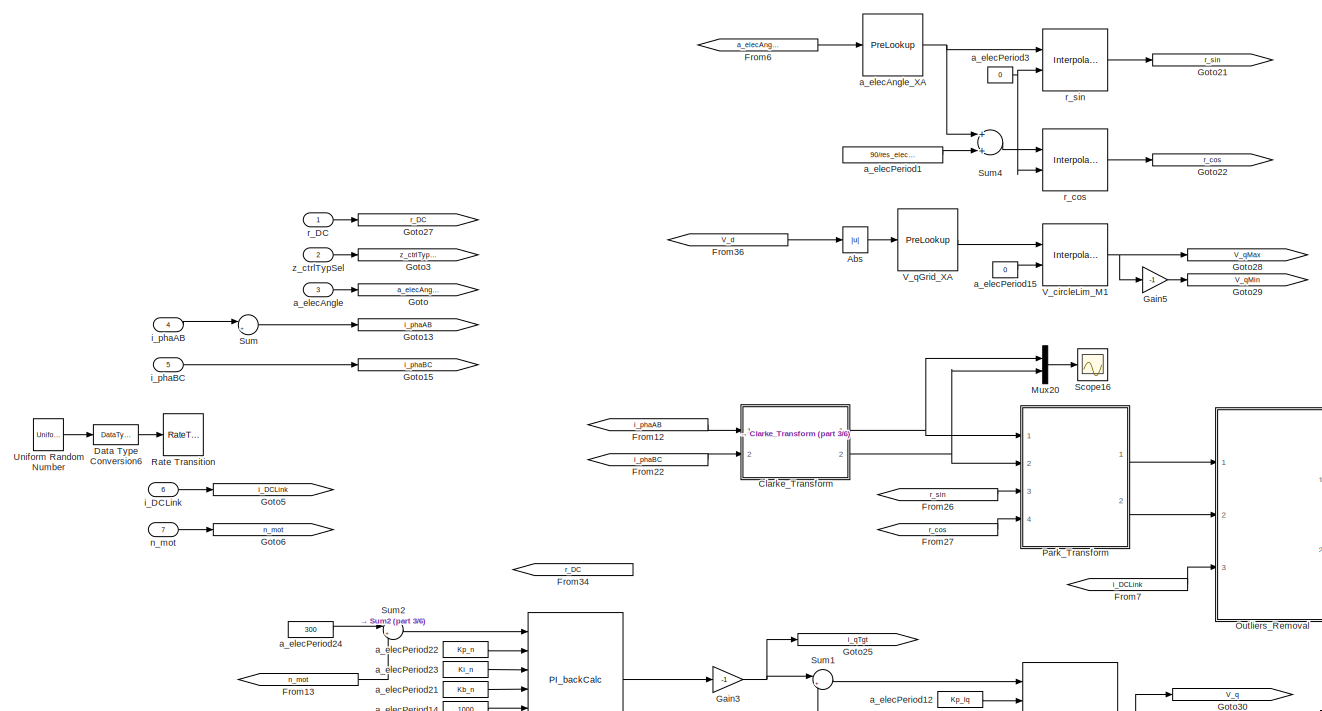
[diagram: BLDC_controller/BLDC_controller/F03_Field_Oriented_Control - part 1/6, top left region]
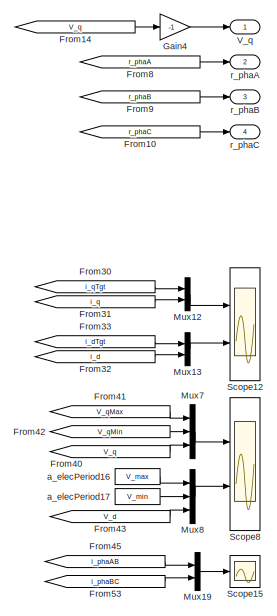
[diagram: BLDC_controller/BLDC_controller/F03_Field_Oriented_Control - part 2/6, top right region]
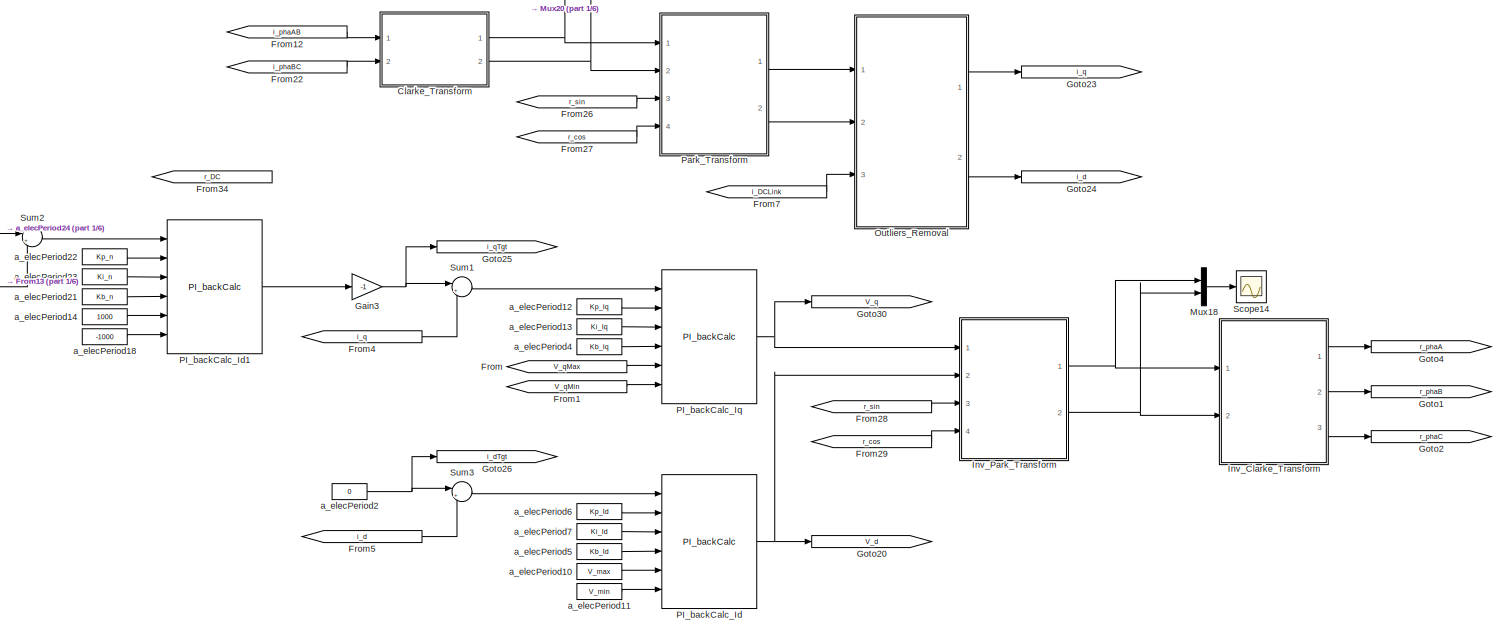
[diagram: BLDC_controller/BLDC_controller/F03_Field_Oriented_Control - part 3/6, central region]
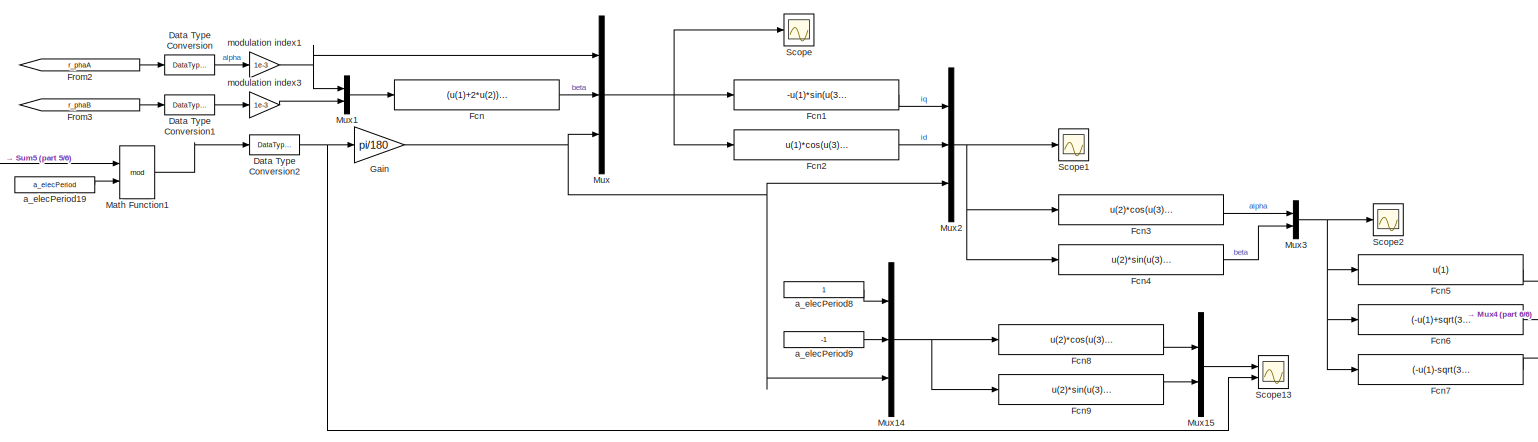
[diagram: BLDC_controller/BLDC_controller/F03_Field_Oriented_Control - part 4/6, bottom center region]
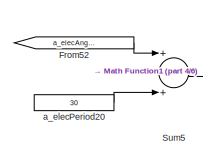
[diagram: BLDC_controller/BLDC_controller/F03_Field_Oriented_Control - part 5/6, bottom left region]
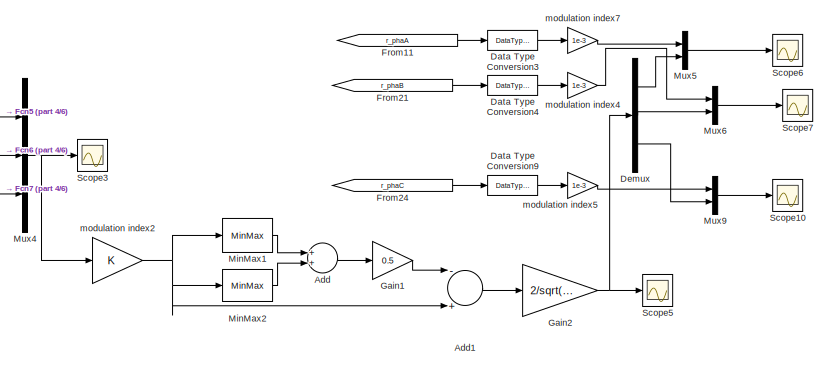
[diagram: BLDC_controller/BLDC_controller/F03_Field_Oriented_Control - part 6/6, bottom right region]
BLOCK [SubSystem] BLDC_controller/BLDC_controller/F03_Field_Oriented_Control
  Ports = [7, 4]
  RequestExecContextInheritance = off
  Variant = off
BLOCK [Abs] BLDC_controller/BLDC_controller/F03_Field_Oriented_Control/Abs
  SaturateOnIntegerOverflow = off
BLOCK [Sum] BLDC_controller/BLDC_controller/F03_Field_Oriented_Control/Add
  Commented = on
  InputSameDT = off
  OutDataTypeStr = Inherit: Inherit via internal rule
  Ports = [2, 1]
  SaturateOnIntegerOverflow = off
BLOCK [Sum] BLDC_controller/BLDC_controller/F03_Field_Oriented_Control/Add1
  Commented = on
  InputSameDT = off
  Inputs = -+
  OutDataTypeStr = Inherit: Inherit via internal rule
  Ports = [2, 1]
  SaturateOnIntegerOverflow = off
BLOCK [SubSystem] BLDC_controller/BLDC_controller/F03_Field_Oriented_Control/Clarke_Transform
  Ports = [2, 2]
  RequestExecContextInheritance = off
  Variant = off
BLOCK [SubSystem] BLDC_controller/BLDC_controller/F03_Field_Oriented_Control/Clarke_Transform/Clarke_PhasesAB
  Ports = [2, 2, 0, 0, 0, 0, 0, 1]
  RequestExecContextInheritance = off
  Variant = off
BLOCK [ActionPort] BLDC_controller/BLDC_controller/F03_Field_Oriented_Control/Clarke_Transform/Clarke_PhasesAB/Action Port
  ActionType = then
BLOCK [From] BLDC_controller/BLDC_controller/F03_Field_Oriented_Control/Clarke_Transform/Clarke_PhasesAB/From
  GotoTag = i_phaA
BLOCK [From] BLDC_controller/BLDC_controller/F03_Field_Oriented_Control/Clarke_Transform/Clarke_PhasesAB/From1
  GotoTag = i_phaB
BLOCK [Gain] BLDC_controller/BLDC_controller/F03_Field_Oriented_Control/Clarke_Transform/Clarke_PhasesAB/Gain1
  Gain = 2/sqrt(3)
  OutDataTypeStr = Inherit: Inherit via internal rule
  ParamDataTypeStr = Inherit: Inherit via internal rule
  RndMeth = Zero
  SaturateOnIntegerOverflow = off
  Tag = struct('comment',struct('text','','placement',1),'logdata',struct('maxnumvals',inf,'plotchannels',[],'loggingmode',3,'channels',1),'output',struct('variable','','description','','name','$S_$B','width',1,'address','','max',NaN,'min',NaN,'class','default','type','CONTINUOUS','scaling','','lsb',1,'offset',0,'arb',0,'freeze',1,'unit','','autoscalingmode',1,'lowerheadroom',1,'upperheadroom',1,'headroom...<+373ch>  <repeated x17 — deduplicated; at blocks: Gain1, Gain3, for_merge, Gain2, Gain, Gain4, Gain5>
BLOCK [Gain] BLDC_controller/BLDC_controller/F03_Field_Oriented_Control/Clarke_Transform/Clarke_PhasesAB/Gain3
  Gain = 1/sqrt(3)
  OutDataTypeStr = Inherit: Inherit via internal rule
  ParamDataTypeStr = Inherit: Inherit via internal rule
  RndMeth = Zero
  SaturateOnIntegerOverflow = off
BLOCK [Goto] BLDC_controller/BLDC_controller/F03_Field_Oriented_Control/Clarke_Transform/Clarke_PhasesAB/Goto13
  GotoTag = i_phaA
BLOCK [Goto] BLDC_controller/BLDC_controller/F03_Field_Oriented_Control/Clarke_Transform/Clarke_PhasesAB/Goto15
  GotoTag = i_phaB
BLOCK [Sum] BLDC_controller/BLDC_controller/F03_Field_Oriented_Control/Clarke_Transform/Clarke_PhasesAB/Sum6
  InputSameDT = off
  OutDataTypeStr = Inherit: Inherit via internal rule
  Ports = [2, 1]
  RndMeth = Simplest
  SaturateOnIntegerOverflow = off
BLOCK [Gain] BLDC_controller/BLDC_controller/F03_Field_Oriented_Control/Clarke_Transform/Clarke_PhasesAB/for_merge
  OutDataTypeStr = Inherit: Inherit via internal rule
  ParamDataTypeStr = Inherit: Inherit via internal rule
  RndMeth = Zero
  SaturateOnIntegerOverflow = off
BLOCK [Outport] BLDC_controller/BLDC_controller/F03_Field_Oriented_Control/Clarke_Transform/Clarke_PhasesAB/i_alphaAB
  IconDisplay = Port number
BLOCK [Outport] BLDC_controller/BLDC_controller/F03_Field_Oriented_Control/Clarke_Transform/Clarke_PhasesAB/i_betaAB
  IconDisplay = Port number
  Port = 2
BLOCK [Inport] BLDC_controller/BLDC_controller/F03_Field_Oriented_Control/Clarke_Transform/Clarke_PhasesAB/i_phaA
  IconDisplay = Port number
BLOCK [Inport] BLDC_controller/BLDC_controller/F03_Field_Oriented_Control/Clarke_Transform/Clarke_PhasesAB/i_phaB
  IconDisplay = Port number
  Port = 2
BLOCK [SubSystem] BLDC_controller/BLDC_controller/F03_Field_Oriented_Control/Clarke_Transform/Clarke_PhasesBC
  Ports = [2, 2, 0, 0, 0, 0, 0, 1]
  RequestExecContextInheritance = off
  Variant = off
BLOCK [ActionPort] BLDC_controller/BLDC_controller/F03_Field_Oriented_Control/Clarke_Transform/Clarke_PhasesBC/Action Port
  ActionType = else
BLOCK [From] BLDC_controller/BLDC_controller/F03_Field_Oriented_Control/Clarke_Transform/Clarke_PhasesBC/From2
  GotoTag = i_phaB
BLOCK [From] BLDC_controller/BLDC_controller/F03_Field_Oriented_Control/Clarke_Transform/Clarke_PhasesBC/From3
  GotoTag = i_phaC
BLOCK [From] BLDC_controller/BLDC_controller/F03_Field_Oriented_Control/Clarke_Transform/Clarke_PhasesBC/From4
  GotoTag = i_phaB
BLOCK [From] BLDC_controller/BLDC_controller/F03_Field_Oriented_Control/Clarke_Transform/Clarke_PhasesBC/From5
  GotoTag = i_phaC
BLOCK [Gain] BLDC_controller/BLDC_controller/F03_Field_Oriented_Control/Clarke_Transform/Clarke_PhasesBC/Gain2
  Gain = 1/sqrt(3)
  OutDataTypeStr = Inherit: Inherit via internal rule
  ParamDataTypeStr = Inherit: Inherit via internal rule
  RndMeth = Zero
  SaturateOnIntegerOverflow = off
BLOCK [Goto] BLDC_controller/BLDC_controller/F03_Field_Oriented_Control/Clarke_Transform/Clarke_PhasesBC/Goto13
  GotoTag = i_phaB
BLOCK [Goto] BLDC_controller/BLDC_controller/F03_Field_Oriented_Control/Clarke_Transform/Clarke_PhasesBC/Goto15
  GotoTag = i_phaC
BLOCK [Sum] BLDC_controller/BLDC_controller/F03_Field_Oriented_Control/Clarke_Transform/Clarke_PhasesBC/Sum1
  InputSameDT = off
  Inputs = --
  OutDataTypeStr = Inherit: Inherit via internal rule
  Ports = [2, 1]
  RndMeth = Simplest
  SaturateOnIntegerOverflow = off
BLOCK [Sum] BLDC_controller/BLDC_controller/F03_Field_Oriented_Control/Clarke_Transform/Clarke_PhasesBC/Sum2
  InputSameDT = off
  Inputs = +-
  OutDataTypeStr = Inherit: Inherit via internal rule
  Ports = [2, 1]
  RndMeth = Simplest
  SaturateOnIntegerOverflow = off
BLOCK [Outport] BLDC_controller/BLDC_controller/F03_Field_Oriented_Control/Clarke_Transform/Clarke_PhasesBC/i_alphaBC
  IconDisplay = Port number
BLOCK [Outport] BLDC_controller/BLDC_controller/F03_Field_Oriented_Control/Clarke_Transform/Clarke_PhasesBC/i_betaBC
  IconDisplay = Port number
  Port = 2
BLOCK [Inport] BLDC_controller/BLDC_controller/F03_Field_Oriented_Control/Clarke_Transform/Clarke_PhasesBC/i_phaB
  IconDisplay = Port number
BLOCK [Inport] BLDC_controller/BLDC_controller/F03_Field_Oriented_Control/Clarke_Transform/Clarke_PhasesBC/i_phaC
  IconDisplay = Port number
  Port = 2
BLOCK [From] BLDC_controller/BLDC_controller/F03_Field_Oriented_Control/Clarke_Transform/From
  GotoTag = i_alphaAB
BLOCK [From] BLDC_controller/BLDC_controller/F03_Field_Oriented_Control/Clarke_Transform/From1
  GotoTag = i_alphaBC
BLOCK [From] BLDC_controller/BLDC_controller/F03_Field_Oriented_Control/Clarke_Transform/From2
  GotoTag = i_betaAB
BLOCK [From] BLDC_controller/BLDC_controller/F03_Field_Oriented_Control/Clarke_Transform/From3
  GotoTag = i_betaBC
BLOCK [From] BLDC_controller/BLDC_controller/F03_Field_Oriented_Control/Clarke_Transform/From4
  GotoTag = i_alpha
BLOCK [From] BLDC_controller/BLDC_controller/F03_Field_Oriented_Control/Clarke_Transform/From5
  GotoTag = i_beta
BLOCK [From] BLDC_controller/BLDC_controller/F03_Field_Oriented_Control/Clarke_Transform/From6
  GotoTag = i_phaAB
BLOCK [From] BLDC_controller/BLDC_controller/F03_Field_Oriented_Control/Clarke_Transform/From7
  GotoTag = i_phaAB
BLOCK [From] BLDC_controller/BLDC_controller/F03_Field_Oriented_Control/Clarke_Transform/From8
  GotoTag = i_phaBC
BLOCK [From] BLDC_controller/BLDC_controller/F03_Field_Oriented_Control/Clarke_Transform/From9
  GotoTag = i_phaBC
BLOCK [Goto] BLDC_controller/BLDC_controller/F03_Field_Oriented_Control/Clarke_Transform/Goto
  GotoTag = i_alpha
BLOCK [Goto] BLDC_controller/BLDC_controller/F03_Field_Oriented_Control/Clarke_Transform/Goto1
  GotoTag = i_alphaAB
BLOCK [Goto] BLDC_controller/BLDC_controller/F03_Field_Oriented_Control/Clarke_Transform/Goto13
  GotoTag = i_phaAB
BLOCK [Goto] BLDC_controller/BLDC_controller/F03_Field_Oriented_Control/Clarke_Transform/Goto15
  GotoTag = i_phaBC
BLOCK [Goto] BLDC_controller/BLDC_controller/F03_Field_Oriented_Control/Clarke_Transform/Goto2
  GotoTag = i_alphaBC
BLOCK [Goto] BLDC_controller/BLDC_controller/F03_Field_Oriented_Control/Clarke_Transform/Goto3
  GotoTag = i_betaAB
BLOCK [Goto] BLDC_controller/BLDC_controller/F03_Field_Oriented_Control/Clarke_Transform/Goto4
  GotoTag = i_betaBC
BLOCK [Goto] BLDC_controller/BLDC_controller/F03_Field_Oriented_Control/Clarke_Transform/Goto6
  GotoTag = i_beta
BLOCK [If] BLDC_controller/BLDC_controller/F03_Field_Oriented_Control/Clarke_Transform/If1
  IfExpression = u1 ~= 0
  Ports = [1, 2]
BLOCK [Merge] BLDC_controller/BLDC_controller/F03_Field_Oriented_Control/Clarke_Transform/Merge
  Ports = [2, 1]
BLOCK [Merge] BLDC_controller/BLDC_controller/F03_Field_Oriented_Control/Clarke_Transform/Merge1
  Ports = [2, 1]
BLOCK [Constant] BLDC_controller/BLDC_controller/F03_Field_Oriented_Control/Clarke_Transform/b_selPhaABCurrMeas
  OutDataTypeStr = boolean
  Value = b_selPhaABCurrMeas
BLOCK [Outport] BLDC_controller/BLDC_controller/F03_Field_Oriented_Control/Clarke_Transform/i_alpha
  IconDisplay = Port number
BLOCK [Outport] BLDC_controller/BLDC_controller/F03_Field_Oriented_Control/Clarke_Transform/i_beta
  IconDisplay = Port number
  Port = 2
BLOCK [Inport] BLDC_controller/BLDC_controller/F03_Field_Oriented_Control/Clarke_Transform/i_phaAB
  IconDisplay = Port number
BLOCK [Inport] BLDC_controller/BLDC_controller/F03_Field_Oriented_Control/Clarke_Transform/i_phaBC
  IconDisplay = Port number
  Port = 2
BLOCK [DataTypeConversion] BLDC_controller/BLDC_controller/F03_Field_Oriented_Control/Data Type Conversion
  Commented = on
  OutDataTypeStr = single
  RndMeth = Floor
  SaturateOnIntegerOverflow = off
BLOCK [DataTypeConversion] BLDC_controller/BLDC_controller/F03_Field_Oriented_Control/Data Type Conversion1
  Commented = on
  OutDataTypeStr = single
  RndMeth = Floor
  SaturateOnIntegerOverflow = off
BLOCK [DataTypeConversion] BLDC_controller/BLDC_controller/F03_Field_Oriented_Control/Data Type Conversion2
  Commented = on
  OutDataTypeStr = single
  RndMeth = Floor
  SaturateOnIntegerOverflow = off
BLOCK [DataTypeConversion] BLDC_controller/BLDC_controller/F03_Field_Oriented_Control/Data Type Conversion3
  Commented = on
  OutDataTypeStr = single
  RndMeth = Floor
  SaturateOnIntegerOverflow = off
BLOCK [DataTypeConversion] BLDC_controller/BLDC_controller/F03_Field_Oriented_Control/Data Type Conversion4
  Commented = on
  OutDataTypeStr = single
  RndMeth = Floor
  SaturateOnIntegerOverflow = off
BLOCK [DataTypeConversion] BLDC_controller/BLDC_controller/F03_Field_Oriented_Control/Data Type Conversion6
  OutDataTypeStr = single
  RndMeth = Floor
  SaturateOnIntegerOverflow = off
BLOCK [DataTypeConversion] BLDC_controller/BLDC_controller/F03_Field_Oriented_Control/Data Type Conversion9
  Commented = on
  OutDataTypeStr = single
  RndMeth = Floor
  SaturateOnIntegerOverflow = off
BLOCK [Demux] BLDC_controller/BLDC_controller/F03_Field_Oriented_Control/Demux
  Commented = on
  DisplayOption = bar
  Outputs = 3
  Ports = [1, 3]
BLOCK [Fcn] BLDC_controller/BLDC_controller/F03_Field_Oriented_Control/Fcn
  Commented = on
  Expr = (u(1)+2*u(2))/sqrt(3)
BLOCK [Fcn] BLDC_controller/BLDC_controller/F03_Field_Oriented_Control/Fcn1
  Commented = on
  Expr = -u(1)*sin(u(3)) + u(2)*cos(u(3))
BLOCK [Fcn] BLDC_controller/BLDC_controller/F03_Field_Oriented_Control/Fcn2
  Commented = on
  Expr = u(1)*cos(u(3)) + u(2)*sin(u(3))
BLOCK [Fcn] BLDC_controller/BLDC_controller/F03_Field_Oriented_Control/Fcn3
  Commented = on
  Expr = u(2)*cos(u(3)) - u(1)*sin(u(3))
BLOCK [Fcn] BLDC_controller/BLDC_controller/F03_Field_Oriented_Control/Fcn4
  Commented = on
  Expr = u(2)*sin(u(3)) + u(1)*cos(u(3))
BLOCK [Fcn] BLDC_controller/BLDC_controller/F03_Field_Oriented_Control/Fcn5
  Commented = on
  Expr = u(1)
BLOCK [Fcn] BLDC_controller/BLDC_controller/F03_Field_Oriented_Control/Fcn6
  Commented = on
  Expr = (-u(1)+sqrt(3)*u(2))/2
BLOCK [Fcn] BLDC_controller/BLDC_controller/F03_Field_Oriented_Control/Fcn7
  Commented = on
  Expr = (-u(1)-sqrt(3)*u(2))/2
BLOCK [Fcn] BLDC_controller/BLDC_controller/F03_Field_Oriented_Control/Fcn8
  Commented = on
  Expr = u(2)*cos(u(3)) - u(1)*sin(u(3))
BLOCK [Fcn] BLDC_controller/BLDC_controller/F03_Field_Oriented_Control/Fcn9
  Commented = on
  Expr = u(2)*sin(u(3)) + u(1)*cos(u(3))
BLOCK [From] BLDC_controller/BLDC_controller/F03_Field_Oriented_Control/From
  GotoTag = V_qMax
BLOCK [From] BLDC_controller/BLDC_controller/F03_Field_Oriented_Control/From1
  GotoTag = V_qMin
BLOCK [From] BLDC_controller/BLDC_controller/F03_Field_Oriented_Control/From10
  GotoTag = r_phaC
BLOCK [From] BLDC_controller/BLDC_controller/F03_Field_Oriented_Control/From11
  Commented = on
  GotoTag = r_phaA
BLOCK [From] BLDC_controller/BLDC_controller/F03_Field_Oriented_Control/From12
  GotoTag = i_phaAB
BLOCK [From] BLDC_controller/BLDC_controller/F03_Field_Oriented_Control/From13
  GotoTag = n_mot
BLOCK [From] BLDC_controller/BLDC_controller/F03_Field_Oriented_Control/From14
  GotoTag = V_q
BLOCK [From] BLDC_controller/BLDC_controller/F03_Field_Oriented_Control/From2
  Commented = on
  GotoTag = r_phaA
BLOCK [From] BLDC_controller/BLDC_controller/F03_Field_Oriented_Control/From21
  Commented = on
  GotoTag = r_phaB
BLOCK [From] BLDC_controller/BLDC_controller/F03_Field_Oriented_Control/From22
  GotoTag = i_phaBC
BLOCK [From] BLDC_controller/BLDC_controller/F03_Field_Oriented_Control/From24
  Commented = on
  GotoTag = r_phaC
BLOCK [From] BLDC_controller/BLDC_controller/F03_Field_Oriented_Control/From26
  GotoTag = r_sin
BLOCK [From] BLDC_controller/BLDC_controller/F03_Field_Oriented_Control/From27
  GotoTag = r_cos
BLOCK [From] BLDC_controller/BLDC_controller/F03_Field_Oriented_Control/From28
  GotoTag = r_sin
BLOCK [From] BLDC_controller/BLDC_controller/F03_Field_Oriented_Control/From29
  GotoTag = r_cos
BLOCK [From] BLDC_controller/BLDC_controller/F03_Field_Oriented_Control/From3
  Commented = on
  GotoTag = r_phaB
BLOCK [From] BLDC_controller/BLDC_controller/F03_Field_Oriented_Control/From30
  GotoTag = i_qTgt
BLOCK [From] BLDC_controller/BLDC_controller/F03_Field_Oriented_Control/From31
  GotoTag = i_q
BLOCK [From] BLDC_controller/BLDC_controller/F03_Field_Oriented_Control/From32
  GotoTag = i_d
BLOCK [From] BLDC_controller/BLDC_controller/F03_Field_Oriented_Control/From33
  GotoTag = i_dTgt
BLOCK [From] BLDC_controller/BLDC_controller/F03_Field_Oriented_Control/From34
  GotoTag = r_DC
BLOCK [From] BLDC_controller/BLDC_controller/F03_Field_Oriented_Control/From36
  GotoTag = V_d
BLOCK [From] BLDC_controller/BLDC_controller/F03_Field_Oriented_Control/From4
  GotoTag = i_q
BLOCK [From] BLDC_controller/BLDC_controller/F03_Field_Oriented_Control/From40
  GotoTag = V_q
BLOCK [From] BLDC_controller/BLDC_controller/F03_Field_Oriented_Control/From41
  GotoTag = V_qMax
BLOCK [From] BLDC_controller/BLDC_controller/F03_Field_Oriented_Control/From42
  GotoTag = V_qMin
BLOCK [From] BLDC_controller/BLDC_controller/F03_Field_Oriented_Control/From43
  GotoTag = V_d
BLOCK [From] BLDC_controller/BLDC_controller/F03_Field_Oriented_Control/From45
  GotoTag = i_phaAB
BLOCK [From] BLDC_controller/BLDC_controller/F03_Field_Oriented_Control/From5
  GotoTag = i_d
BLOCK [From] BLDC_controller/BLDC_controller/F03_Field_Oriented_Control/From52
  Commented = on
  GotoTag = a_elecAngle
BLOCK [From] BLDC_controller/BLDC_controller/F03_Field_Oriented_Control/From53
  GotoTag = i_phaBC
BLOCK [From] BLDC_controller/BLDC_controller/F03_Field_Oriented_Control/From6
  GotoTag = a_elecAngle
BLOCK [From] BLDC_controller/BLDC_controller/F03_Field_Oriented_Control/From7
  GotoTag = i_DCLink
BLOCK [From] BLDC_controller/BLDC_controller/F03_Field_Oriented_Control/From8
  GotoTag = r_phaA
BLOCK [From] BLDC_controller/BLDC_controller/F03_Field_Oriented_Control/From9
  GotoTag = r_phaB
BLOCK [Gain] BLDC_controller/BLDC_controller/F03_Field_Oriented_Control/Gain
  Commented = on
  Gain = pi/180
  RndMeth = Zero
BLOCK [Gain] BLDC_controller/BLDC_controller/F03_Field_Oriented_Control/Gain1
  Commented = on
  Gain = 0.5
  OutDataTypeStr = Inherit: Inherit via internal rule
  ParamDataTypeStr = Inherit: Inherit via internal rule
  SaturateOnIntegerOverflow = off
BLOCK [Gain] BLDC_controller/BLDC_controller/F03_Field_Oriented_Control/Gain2
  Commented = on
  Gain = 2/sqrt(3)
  OutDataTypeStr = Inherit: Inherit via internal rule
  ParamDataTypeStr = Inherit: Inherit via internal rule
  SaturateOnIntegerOverflow = off
BLOCK [Gain] BLDC_controller/BLDC_controller/F03_Field_Oriented_Control/Gain3
  Gain = -1
  RndMeth = Zero
BLOCK [Gain] BLDC_controller/BLDC_controller/F03_Field_Oriented_Control/Gain4
  Gain = -1
  RndMeth = Zero
BLOCK [Gain] BLDC_controller/BLDC_controller/F03_Field_Oriented_Control/Gain5
  Gain = -1
  RndMeth = Zero
BLOCK [Goto] BLDC_controller/BLDC_controller/F03_Field_Oriented_Control/Goto
  GotoTag = a_elecAngle
BLOCK [Goto] BLDC_controller/BLDC_controller/F03_Field_Oriented_Control/Goto1
  GotoTag = r_phaB
BLOCK [Goto] BLDC_controller/BLDC_controller/F03_Field_Oriented_Control/Goto13
  GotoTag = i_phaAB
BLOCK [Goto] BLDC_controller/BLDC_controller/F03_Field_Oriented_Control/Goto15
  GotoTag = i_phaBC
BLOCK [Goto] BLDC_controller/BLDC_controller/F03_Field_Oriented_Control/Goto2
  GotoTag = r_phaC
BLOCK [Goto] BLDC_controller/BLDC_controller/F03_Field_Oriented_Control/Goto20
  GotoTag = V_d
BLOCK [Goto] BLDC_controller/BLDC_controller/F03_Field_Oriented_Control/Goto21
  GotoTag = r_sin
BLOCK [Goto] BLDC_controller/BLDC_controller/F03_Field_Oriented_Control/Goto22
  GotoTag = r_cos
BLOCK [Goto] BLDC_controller/BLDC_controller/F03_Field_Oriented_Control/Goto23
  GotoTag = i_q
BLOCK [Goto] BLDC_controller/BLDC_controller/F03_Field_Oriented_Control/Goto24
  GotoTag = i_d
BLOCK [Goto] BLDC_controller/BLDC_controller/F03_Field_Oriented_Control/Goto25
  GotoTag = i_qTgt
BLOCK [Goto] BLDC_controller/BLDC_controller/F03_Field_Oriented_Control/Goto26
  GotoTag = i_dTgt
BLOCK [Goto] BLDC_controller/BLDC_controller/F03_Field_Oriented_Control/Goto27
  GotoTag = r_DC
BLOCK [Goto] BLDC_controller/BLDC_controller/F03_Field_Oriented_Control/Goto28
  GotoTag = V_qMax
BLOCK [Goto] BLDC_controller/BLDC_controller/F03_Field_Oriented_Control/Goto29
  GotoTag = V_qMin
BLOCK [Goto] BLDC_controller/BLDC_controller/F03_Field_Oriented_Control/Goto3
  GotoTag = z_ctrlTypSel
BLOCK [Goto] BLDC_controller/BLDC_controller/F03_Field_Oriented_Control/Goto30
  GotoTag = V_q
BLOCK [Goto] BLDC_controller/BLDC_controller/F03_Field_Oriented_Control/Goto4
  GotoTag = r_phaA
BLOCK [Goto] BLDC_controller/BLDC_controller/F03_Field_Oriented_Control/Goto5
  GotoTag = i_DCLink
BLOCK [Goto] BLDC_controller/BLDC_controller/F03_Field_Oriented_Control/Goto6
  GotoTag = n_mot
BLOCK [SubSystem] BLDC_controller/BLDC_controller/F03_Field_Oriented_Control/Inv_Clarke_Transform
  Ports = [2, 3]
  RequestExecContextInheritance = off
  Variant = off
BLOCK [Sum] BLDC_controller/BLDC_controller/F03_Field_Oriented_Control/Inv_Clarke_Transform/Add
  InputSameDT = off
  OutDataTypeStr = Inherit: Inherit via internal rule
  Ports = [2, 1]
  SaturateOnIntegerOverflow = off
BLOCK [Sum] BLDC_controller/BLDC_controller/F03_Field_Oriented_Control/Inv_Clarke_Transform/Add1
  InputSameDT = off
  Inputs = -+
  OutDataTypeStr = Inherit: Inherit via internal rule
  Ports = [2, 1]
  SaturateOnIntegerOverflow = off
BLOCK [Demux] BLDC_controller/BLDC_controller/F03_Field_Oriented_Control/Inv_Clarke_Transform/Demux
  DisplayOption = bar
  Outputs = 3
  Ports = [1, 3]
BLOCK [Gain] BLDC_controller/BLDC_controller/F03_Field_Oriented_Control/Inv_Clarke_Transform/Gain1
  Gain = sqrt(3)/2
  OutDataTypeStr = Inherit: Inherit via internal rule
  ParamDataTypeStr = Inherit: Inherit via internal rule
  RndMeth = Zero
  SaturateOnIntegerOverflow = off
BLOCK [Gain] BLDC_controller/BLDC_controller/F03_Field_Oriented_Control/Inv_Clarke_Transform/Gain2
  Gain = 0.5
  OutDataTypeStr = Inherit: Inherit via internal rule
  ParamDataTypeStr = Inherit: Inherit via internal rule
  SaturateOnIntegerOverflow = off
BLOCK [Gain] BLDC_controller/BLDC_controller/F03_Field_Oriented_Control/Inv_Clarke_Transform/Gain3
  Gain = 1/2
  OutDataTypeStr = Inherit: Inherit via internal rule
  ParamDataTypeStr = Inherit: Inherit via internal rule
  RndMeth = Zero
  SaturateOnIntegerOverflow = off
BLOCK [Gain] BLDC_controller/BLDC_controller/F03_Field_Oriented_Control/Inv_Clarke_Transform/Gain4
  Gain = 2/sqrt(3)
  OutDataTypeStr = Inherit: Inherit via internal rule
  ParamDataTypeStr = Inherit: Inherit via internal rule
  SaturateOnIntegerOverflow = off
BLOCK [MinMax] BLDC_controller/BLDC_controller/F03_Field_Oriented_Control/Inv_Clarke_Transform/MinMax1
  Ports = [1, 1]
BLOCK [MinMax] BLDC_controller/BLDC_controller/F03_Field_Oriented_Control/Inv_Clarke_Transform/MinMax2
  Function = max
  Ports = [1, 1]
BLOCK [Mux] BLDC_controller/BLDC_controller/F03_Field_Oriented_Control/Inv_Clarke_Transform/Mux4
  DisplayOption = bar
  Inputs = 3
  Ports = [3, 1]
BLOCK [Sum] BLDC_controller/BLDC_controller/F03_Field_Oriented_Control/Inv_Clarke_Transform/Sum2
  InputSameDT = off
  Inputs = --
  OutDataTypeStr = Inherit: Inherit via internal rule
  Ports = [2, 1]
  RndMeth = Simplest
  SaturateOnIntegerOverflow = off
BLOCK [Sum] BLDC_controller/BLDC_controller/F03_Field_Oriented_Control/Inv_Clarke_Transform/Sum6
  InputSameDT = off
  Inputs = -+
  OutDataTypeStr = Inherit: Inherit via internal rule
  Ports = [2, 1]
  RndMeth = Simplest
  SaturateOnIntegerOverflow = off
BLOCK [Inport] BLDC_controller/BLDC_controller/F03_Field_Oriented_Control/Inv_Clarke_Transform/V_alpha
  IconDisplay = Port number
BLOCK [Inport] BLDC_controller/BLDC_controller/F03_Field_Oriented_Control/Inv_Clarke_Transform/V_beta
  IconDisplay = Port number
  Port = 2
BLOCK [Outport] BLDC_controller/BLDC_controller/F03_Field_Oriented_Control/Inv_Clarke_Transform/V_phaA
  IconDisplay = Port number
BLOCK [Outport] BLDC_controller/BLDC_controller/F03_Field_Oriented_Control/Inv_Clarke_Transform/V_phaB
  IconDisplay = Port number
  Port = 2
BLOCK [Outport] BLDC_controller/BLDC_controller/F03_Field_Oriented_Control/Inv_Clarke_Transform/V_phaC
  IconDisplay = Port number
  Port = 3
BLOCK [SubSystem] BLDC_controller/BLDC_controller/F03_Field_Oriented_Control/Inv_Park_Transform
  Ports = [4, 2]
  RequestExecContextInheritance = off
  Variant = off
BLOCK [Product] BLDC_controller/BLDC_controller/F03_Field_Oriented_Control/Inv_Park_Transform/Divide1
  InputSameDT = off
  Inputs = **
  OutDataTypeStr = Inherit: Inherit via back propagation
  Ports = [2, 1]
  RndMeth = Simplest
  SaturateOnIntegerOverflow = off
BLOCK [Product] BLDC_controller/BLDC_controller/F03_Field_Oriented_Control/Inv_Park_Transform/Divide2
  InputSameDT = off
  Inputs = **
  OutDataTypeStr = Inherit: Inherit via back propagation
  Ports = [2, 1]
  RndMeth = Simplest
  SaturateOnIntegerOverflow = off
BLOCK [Product] BLDC_controller/BLDC_controller/F03_Field_Oriented_Control/Inv_Park_Transform/Divide3
  InputSameDT = off
  Inputs = **
  OutDataTypeStr = Inherit: Inherit via back propagation
  Ports = [2, 1]
  RndMeth = Simplest
  SaturateOnIntegerOverflow = off
BLOCK [Product] BLDC_controller/BLDC_controller/F03_Field_Oriented_Control/Inv_Park_Transform/Divide4
  InputSameDT = off
  Inputs = **
  OutDataTypeStr = Inherit: Inherit via back propagation
  Ports = [2, 1]
  RndMeth = Simplest
  SaturateOnIntegerOverflow = off
BLOCK [From] BLDC_controller/BLDC_controller/F03_Field_Oriented_Control/Inv_Park_Transform/From
  GotoTag = r_sin
BLOCK [From] BLDC_controller/BLDC_controller/F03_Field_Oriented_Control/Inv_Park_Transform/From1
  GotoTag = r_cos
BLOCK [From] BLDC_controller/BLDC_controller/F03_Field_Oriented_Control/Inv_Park_Transform/From3
  GotoTag = V_q
BLOCK [From] BLDC_controller/BLDC_controller/F03_Field_Oriented_Control/Inv_Park_Transform/From4
  GotoTag = V_d
BLOCK [From] BLDC_controller/BLDC_controller/F03_Field_Oriented_Control/Inv_Park_Transform/From5
  GotoTag = r_cos
BLOCK [From] BLDC_controller/BLDC_controller/F03_Field_Oriented_Control/Inv_Park_Transform/From6
  GotoTag = V_q
BLOCK [From] BLDC_controller/BLDC_controller/F03_Field_Oriented_Control/Inv_Park_Transform/From7
  GotoTag = r_sin
BLOCK [From] BLDC_controller/BLDC_controller/F03_Field_Oriented_Control/Inv_Park_Transform/From8
  GotoTag = V_d
BLOCK [Goto] BLDC_controller/BLDC_controller/F03_Field_Oriented_Control/Inv_Park_Transform/Goto
  GotoTag = V_q
BLOCK [Goto] BLDC_controller/BLDC_controller/F03_Field_Oriented_Control/Inv_Park_Transform/Goto1
  GotoTag = V_d
BLOCK [Goto] BLDC_controller/BLDC_controller/F03_Field_Oriented_Control/Inv_Park_Transform/Goto2
  GotoTag = r_sin
BLOCK [Goto] BLDC_controller/BLDC_controller/F03_Field_Oriented_Control/Inv_Park_Transform/Goto3
  GotoTag = r_cos
BLOCK [Sum] BLDC_controller/BLDC_controller/F03_Field_Oriented_Control/Inv_Park_Transform/Sum1
  InputSameDT = off
  OutDataTypeStr = Inherit: Inherit via internal rule
  Ports = [2, 1]
  RndMeth = Simplest
  SaturateOnIntegerOverflow = off
BLOCK [Sum] BLDC_controller/BLDC_controller/F03_Field_Oriented_Control/Inv_Park_Transform/Sum6
  InputSameDT = off
  Inputs = +-
  OutDataTypeStr = Inherit: Inherit via internal rule
  Ports = [2, 1]
  RndMeth = Simplest
  SaturateOnIntegerOverflow = off
BLOCK [Outport] BLDC_controller/BLDC_controller/F03_Field_Oriented_Control/Inv_Park_Transform/V_alpha
  IconDisplay = Port number
BLOCK [Outport] BLDC_controller/BLDC_controller/F03_Field_Oriented_Control/Inv_Park_Transform/V_beta
  IconDisplay = Port number
  Port = 2
BLOCK [Inport] BLDC_controller/BLDC_controller/F03_Field_Oriented_Control/Inv_Park_Transform/V_d
  IconDisplay = Port number
  Port = 2
BLOCK [Inport] BLDC_controller/BLDC_controller/F03_Field_Oriented_Control/Inv_Park_Transform/V_q
  IconDisplay = Port number
BLOCK [Inport] BLDC_controller/BLDC_controller/F03_Field_Oriented_Control/Inv_Park_Transform/r_cos
  IconDisplay = Port number
  Port = 4
BLOCK [Inport] BLDC_controller/BLDC_controller/F03_Field_Oriented_Control/Inv_Park_Transform/r_sin
  IconDisplay = Port number
  Port = 3
BLOCK [Math] BLDC_controller/BLDC_controller/F03_Field_Oriented_Control/Math Function1
  Commented = on
  Operator = mod
  Ports = [2, 1]
BLOCK [MinMax] BLDC_controller/BLDC_controller/F03_Field_Oriented_Control/MinMax1
  Commented = on
  Ports = [1, 1]
BLOCK [MinMax] BLDC_controller/BLDC_controller/F03_Field_Oriented_Control/MinMax2
  Commented = on
  Function = max
  Ports = [1, 1]
BLOCK [Mux] BLDC_controller/BLDC_controller/F03_Field_Oriented_Control/Mux
  Commented = on
  DisplayOption = bar
  Inputs = 3
  Ports = [3, 1]
BLOCK [Mux] BLDC_controller/BLDC_controller/F03_Field_Oriented_Control/Mux1
  Commented = on
  DisplayOption = bar
  Inputs = 2
  Ports = [2, 1]
BLOCK [Mux] BLDC_controller/BLDC_controller/F03_Field_Oriented_Control/Mux12
  DisplayOption = bar
  Inputs = 2
  Ports = [2, 1]
BLOCK [Mux] BLDC_controller/BLDC_controller/F03_Field_Oriented_Control/Mux13
  DisplayOption = bar
  Inputs = 2
  Ports = [2, 1]
BLOCK [Mux] BLDC_controller/BLDC_controller/F03_Field_Oriented_Control/Mux14
  Commented = on
  DisplayOption = bar
  Inputs = 3
  Ports = [3, 1]
BLOCK [Mux] BLDC_controller/BLDC_controller/F03_Field_Oriented_Control/Mux15
  Commented = on
  DisplayOption = bar
  Inputs = 2
  Ports = [2, 1]
BLOCK [Mux] BLDC_controller/BLDC_controller/F03_Field_Oriented_Control/Mux18
  DisplayOption = bar
  Inputs = 2
  Ports = [2, 1]
BLOCK [Mux] BLDC_controller/BLDC_controller/F03_Field_Oriented_Control/Mux19
  DisplayOption = bar
  Inputs = 2
  Ports = [2, 1]
BLOCK [Mux] BLDC_controller/BLDC_controller/F03_Field_Oriented_Control/Mux2
  Commented = on
  DisplayOption = bar
  Inputs = 3
  Ports = [3, 1]
BLOCK [Mux] BLDC_controller/BLDC_controller/F03_Field_Oriented_Control/Mux20
  DisplayOption = bar
  Inputs = 2
  Ports = [2, 1]
BLOCK [Mux] BLDC_controller/BLDC_controller/F03_Field_Oriented_Control/Mux3
  Commented = on
  DisplayOption = bar
  Inputs = 2
  Ports = [2, 1]
BLOCK [Mux] BLDC_controller/BLDC_controller/F03_Field_Oriented_Control/Mux4
  Commented = on
  DisplayOption = bar
  Inputs = 3
  Ports = [3, 1]
BLOCK [Mux] BLDC_controller/BLDC_controller/F03_Field_Oriented_Control/Mux5
  Commented = on
  DisplayOption = bar
  Inputs = 2
  Ports = [2, 1]
BLOCK [Mux] BLDC_controller/BLDC_controller/F03_Field_Oriented_Control/Mux6
  Commented = on
  DisplayOption = bar
  Inputs = 2
  Ports = [2, 1]
BLOCK [Mux] BLDC_controller/BLDC_controller/F03_Field_Oriented_Control/Mux7
  DisplayOption = bar
  Inputs = 3
  Ports = [3, 1]
BLOCK [Mux] BLDC_controller/BLDC_controller/F03_Field_Oriented_Control/Mux8
  DisplayOption = bar
  Inputs = 3
  Ports = [3, 1]
BLOCK [Mux] BLDC_controller/BLDC_controller/F03_Field_Oriented_Control/Mux9
  Commented = on
  DisplayOption = bar
  Inputs = 2
  Ports = [2, 1]
BLOCK [SubSystem] BLDC_controller/BLDC_controller/F03_Field_Oriented_Control/Outliers_Removal
  Ports = [3, 2]
  RequestExecContextInheritance = off
  Variant = off
BLOCK [SubSystem] BLDC_controller/BLDC_controller/F03_Field_Oriented_Control/Outliers_Removal/DCLink_Current_Available
  Ports = [3, 2, 0, 0, 0, 0, 0, 1]
  RequestExecContextInheritance = off
  Variant = off
BLOCK [Abs] BLDC_controller/BLDC_controller/F03_Field_Oriented_Control/Outliers_Removal/DCLink_Current_Available/Abs3
  SaturateOnIntegerOverflow = off
BLOCK [Abs] BLDC_controller/BLDC_controller/F03_Field_Oriented_Control/Outliers_Removal/DCLink_Current_Available/Abs4
  SaturateOnIntegerOverflow = off
BLOCK [Abs] BLDC_controller/BLDC_controller/F03_Field_Oriented_Control/Outliers_Removal/DCLink_Current_Available/Abs5
  SaturateOnIntegerOverflow = off
BLOCK [Abs] BLDC_controller/BLDC_controller/F03_Field_Oriented_Control/Outliers_Removal/DCLink_Current_Available/Abs9
  SaturateOnIntegerOverflow = off
BLOCK [ActionPort] BLDC_controller/BLDC_controller/F03_Field_Oriented_Control/Outliers_Removal/DCLink_Current_Available/Action Port
  ActionType = then
BLOCK [Constant] BLDC_controller/BLDC_controller/F03_Field_Oriented_Control/Outliers_Removal/DCLink_Current_Available/Constant3
  OutDataTypeStr = Inherit: Inherit via back propagation
  Value = 4
BLOCK [Demux] BLDC_controller/BLDC_controller/F03_Field_Oriented_Control/Outliers_Removal/DCLink_Current_Available/Demux1
  DisplayOption = bar
  Outputs = 2
  Ports = [1, 2]
BLOCK [Demux] BLDC_controller/BLDC_controller/F03_Field_Oriented_Control/Outliers_Removal/DCLink_Current_Available/Demux3
  DisplayOption = bar
  Outputs = 2
  Ports = [1, 2]
BLOCK [Product] BLDC_controller/BLDC_controller/F03_Field_Oriented_Control/Outliers_Removal/DCLink_Current_Available/Divide3
  InputSameDT = off
  Inputs = */
  OutDataTypeStr = Inherit: Inherit via internal rule
  Ports = [2, 1]
  RndMeth = Simplest
  SaturateOnIntegerOverflow = off
BLOCK [From] BLDC_controller/BLDC_controller/F03_Field_Oriented_Control/Outliers_Removal/DCLink_Current_Available/From
  GotoTag = i_qDCLink
BLOCK [From] BLDC_controller/BLDC_controller/F03_Field_Oriented_Control/Outliers_Removal/DCLink_Current_Available/From1
  GotoTag = i_dDCLink
BLOCK [From] BLDC_controller/BLDC_controller/F03_Field_Oriented_Control/Outliers_Removal/DCLink_Current_Available/From10
  GotoTag = i_qRaw
BLOCK [From] BLDC_controller/BLDC_controller/F03_Field_Oriented_Control/Outliers_Removal/DCLink_Current_Available/From11
  GotoTag = i_DCLink
BLOCK [From] BLDC_controller/BLDC_controller/F03_Field_Oriented_Control/Outliers_Removal/DCLink_Current_Available/From17
  GotoTag = i_thresOutlier
BLOCK [From] BLDC_controller/BLDC_controller/F03_Field_Oriented_Control/Outliers_Removal/DCLink_Current_Available/From2
  GotoTag = i_thresOutlier
BLOCK [From] BLDC_controller/BLDC_controller/F03_Field_Oriented_Control/Outliers_Removal/DCLink_Current_Available/From23
  GotoTag = i_dRaw
BLOCK [From] BLDC_controller/BLDC_controller/F03_Field_Oriented_Control/Outliers_Removal/DCLink_Current_Available/From3
  GotoTag = i_qRawClean
BLOCK [From] BLDC_controller/BLDC_controller/F03_Field_Oriented_Control/Outliers_Removal/DCLink_Current_Available/From4
  GotoTag = i_dRawClean
BLOCK [From] BLDC_controller/BLDC_controller/F03_Field_Oriented_Control/Outliers_Removal/DCLink_Current_Available/From8
  GotoTag = i_dRaw
BLOCK [From] BLDC_controller/BLDC_controller/F03_Field_Oriented_Control/Outliers_Removal/DCLink_Current_Available/From9
  GotoTag = i_qRaw
BLOCK [Gain] BLDC_controller/BLDC_controller/F03_Field_Oriented_Control/Outliers_Removal/DCLink_Current_Available/Gain2
  RndMeth = Zero
BLOCK [Gain] BLDC_controller/BLDC_controller/F03_Field_Oriented_Control/Outliers_Removal/DCLink_Current_Available/Gain4
  RndMeth = Zero
BLOCK [Goto] BLDC_controller/BLDC_controller/F03_Field_Oriented_Control/Outliers_Removal/DCLink_Current_Available/Goto1
  GotoTag = i_DCLink
BLOCK [Goto] BLDC_controller/BLDC_controller/F03_Field_Oriented_Control/Outliers_Removal/DCLink_Current_Available/Goto10
  GotoTag = i_thresOutlier
BLOCK [Goto] BLDC_controller/BLDC_controller/F03_Field_Oriented_Control/Outliers_Removal/DCLink_Current_Available/Goto11
  GotoTag = i_dDCLink
BLOCK [Goto] BLDC_controller/BLDC_controller/F03_Field_Oriented_Control/Outliers_Removal/DCLink_Current_Available/Goto2
  GotoTag = i_qRaw
BLOCK [Goto] BLDC_controller/BLDC_controller/F03_Field_Oriented_Control/Outliers_Removal/DCLink_Current_Available/Goto3
  GotoTag = i_dRaw
BLOCK [Goto] BLDC_controller/BLDC_controller/F03_Field_Oriented_Control/Outliers_Removal/DCLink_Current_Available/Goto4
  GotoTag = i_qRawClean
BLOCK [Goto] BLDC_controller/BLDC_controller/F03_Field_Oriented_Control/Outliers_Removal/DCLink_Current_Available/Goto5
  GotoTag = i_dRawClean
BLOCK [Goto] BLDC_controller/BLDC_controller/F03_Field_Oriented_Control/Outliers_Removal/DCLink_Current_Available/Goto6
  GotoTag = i_qDCLink
BLOCK [Logic] BLDC_controller/BLDC_controller/F03_Field_Oriented_Control/Outliers_Removal/DCLink_Current_Available/Logical Operator2
  AllPortsSameDT = off
  OutDataTypeStr = boolean
  Ports = [2, 1]
BLOCK [Mux] BLDC_controller/BLDC_controller/F03_Field_Oriented_Control/Outliers_Removal/DCLink_Current_Available/Mux2
  DisplayOption = bar
  Inputs = 2
  Ports = [2, 1]
BLOCK [Mux] BLDC_controller/BLDC_controller/F03_Field_Oriented_Control/Outliers_Removal/DCLink_Current_Available/Mux3
  DisplayOption = bar
  Inputs = 2
  Ports = [2, 1]
BLOCK [RelationalOperator] BLDC_controller/BLDC_controller/F03_Field_Oriented_Control/Outliers_Removal/DCLink_Current_Available/Relational Operator10
  InputSameDT = off
  Operator = <
  OutDataTypeStr = boolean
  Ports = [2, 1]
  RndMeth = Simplest
BLOCK [RelationalOperator] BLDC_controller/BLDC_controller/F03_Field_Oriented_Control/Outliers_Removal/DCLink_Current_Available/Relational Operator2
  InputSameDT = off
  Operator = <
  OutDataTypeStr = boolean
  Ports = [2, 1]
  RndMeth = Simplest
BLOCK [Sum] BLDC_controller/BLDC_controller/F03_Field_Oriented_Control/Outliers_Removal/DCLink_Current_Available/Sum1
  Inputs = ++++
  OutDataTypeStr = Inherit: Inherit via internal rule
  Ports = [4, 1]
  RndMeth = Simplest
  SaturateOnIntegerOverflow = off
BLOCK [Sum] BLDC_controller/BLDC_controller/F03_Field_Oriented_Control/Outliers_Removal/DCLink_Current_Available/Sum12
  InputSameDT = off
  Inputs = +-
  OutDataTypeStr = Inherit: Inherit via internal rule
  Ports = [2, 1]
  RndMeth = Simplest
  SaturateOnIntegerOverflow = off
BLOCK [Sum] BLDC_controller/BLDC_controller/F03_Field_Oriented_Control/Outliers_Removal/DCLink_Current_Available/Sum2
  InputSameDT = off
  Inputs = +-
  OutDataTypeStr = Inherit: Inherit via internal rule
  Ports = [2, 1]
  RndMeth = Simplest
  SaturateOnIntegerOverflow = off
BLOCK [Switch] BLDC_controller/BLDC_controller/F03_Field_Oriented_Control/Outliers_Removal/DCLink_Current_Available/Switch_PhaAdv2
  Criteria = u2 ~= 0
  InputSameDT = off
  OutDataTypeStr = Inherit: Inherit via back propagation
  RndMeth = Zero
  SaturateOnIntegerOverflow = off
BLOCK [UnitDelay] BLDC_controller/BLDC_controller/F03_Field_Oriented_Control/Outliers_Removal/DCLink_Current_Available/UnitDelay1
  InputProcessing = Elements as channels (sample based)
  SampleTime = -1
BLOCK [UnitDelay] BLDC_controller/BLDC_controller/F03_Field_Oriented_Control/Outliers_Removal/DCLink_Current_Available/UnitDelay2
  InputProcessing = Elements as channels (sample based)
  SampleTime = -1
BLOCK [UnitDelay] BLDC_controller/BLDC_controller/F03_Field_Oriented_Control/Outliers_Removal/DCLink_Current_Available/UnitDelay3
  InputProcessing = Elements as channels (sample based)
  SampleTime = -1
BLOCK [UnitDelay] BLDC_controller/BLDC_controller/F03_Field_Oriented_Control/Outliers_Removal/DCLink_Current_Available/UnitDelay4
  InputProcessing = Elements as channels (sample based)
  SampleTime = -1
BLOCK [UnitDelay] BLDC_controller/BLDC_controller/F03_Field_Oriented_Control/Outliers_Removal/DCLink_Current_Available/UnitDelay6
  InputProcessing = Elements as channels (sample based)
  SampleTime = -1
BLOCK [Inport] BLDC_controller/BLDC_controller/F03_Field_Oriented_Control/Outliers_Removal/DCLink_Current_Available/i_DCLink
  IconDisplay = Port number
  Port = 3
BLOCK [Outport] BLDC_controller/BLDC_controller/F03_Field_Oriented_Control/Outliers_Removal/DCLink_Current_Available/i_dDCLink
  IconDisplay = Port number
  Port = 2
BLOCK [Inport] BLDC_controller/BLDC_controller/F03_Field_Oriented_Control/Outliers_Removal/DCLink_Current_Available/i_dRaw
  IconDisplay = Port number
  Port = 2
BLOCK [Outport] BLDC_controller/BLDC_controller/F03_Field_Oriented_Control/Outliers_Removal/DCLink_Current_Available/i_qDCLink
  IconDisplay = Port number
BLOCK [Inport] BLDC_controller/BLDC_controller/F03_Field_Oriented_Control/Outliers_Removal/DCLink_Current_Available/i_qRaw
  IconDisplay = Port number
BLOCK [Constant] BLDC_controller/BLDC_controller/F03_Field_Oriented_Control/Outliers_Removal/DCLink_Current_Available/i_thresOutlier
  OutDataTypeStr = Inherit: Inherit via back propagation
  Value = i_thresOutlier
BLOCK [SubSystem] BLDC_controller/BLDC_controller/F03_Field_Oriented_Control/Outliers_Removal/DCLink_Current_Not_Available
  Ports = [2, 2, 0, 0, 0, 0, 0, 1]
  RequestExecContextInheritance = off
  Variant = off
BLOCK [Abs] BLDC_controller/BLDC_controller/F03_Field_Oriented_Control/Outliers_Removal/DCLink_Current_Not_Available/Abs1
  SaturateOnIntegerOverflow = off
BLOCK [Abs] BLDC_controller/BLDC_controller/F03_Field_Oriented_Control/Outliers_Removal/DCLink_Current_Not_Available/Abs9
  SaturateOnIntegerOverflow = off
BLOCK [ActionPort] BLDC_controller/BLDC_controller/F03_Field_Oriented_Control/Outliers_Removal/DCLink_Current_Not_Available/Action Port
  ActionType = else
BLOCK [Constant] BLDC_controller/BLDC_controller/F03_Field_Oriented_Control/Outliers_Removal/DCLink_Current_Not_Available/Constant3
  OutDataTypeStr = Inherit: Inherit via back propagation
  Value = 4
BLOCK [Demux] BLDC_controller/BLDC_controller/F03_Field_Oriented_Control/Outliers_Removal/DCLink_Current_Not_Available/Demux
  DisplayOption = bar
  Outputs = 2
  Ports = [1, 2]
BLOCK [Demux] BLDC_controller/BLDC_controller/F03_Field_Oriented_Control/Outliers_Removal/DCLink_Current_Not_Available/Demux2
  DisplayOption = bar
  Outputs = 2
  Ports = [1, 2]
BLOCK [Product] BLDC_controller/BLDC_controller/F03_Field_Oriented_Control/Outliers_Removal/DCLink_Current_Not_Available/Divide3
  InputSameDT = off
  Inputs = */
  OutDataTypeStr = Inherit: Inherit via internal rule
  Ports = [2, 1]
  RndMeth = Simplest
  SaturateOnIntegerOverflow = off
BLOCK [From] BLDC_controller/BLDC_controller/F03_Field_Oriented_Control/Outliers_Removal/DCLink_Current_Not_Available/From
  GotoTag = i_qNoDCLink
BLOCK [From] BLDC_controller/BLDC_controller/F03_Field_Oriented_Control/Outliers_Removal/DCLink_Current_Not_Available/From1
  GotoTag = i_dNoDCLink
BLOCK [From] BLDC_controller/BLDC_controller/F03_Field_Oriented_Control/Outliers_Removal/DCLink_Current_Not_Available/From10
  GotoTag = i_qRawClean
BLOCK [From] BLDC_controller/BLDC_controller/F03_Field_Oriented_Control/Outliers_Removal/DCLink_Current_Not_Available/From13
  GotoTag = i_dRaw
BLOCK [From] BLDC_controller/BLDC_controller/F03_Field_Oriented_Control/Outliers_Removal/DCLink_Current_Not_Available/From17
  GotoTag = i_thresOutlier
BLOCK [From] BLDC_controller/BLDC_controller/F03_Field_Oriented_Control/Outliers_Removal/DCLink_Current_Not_Available/From2
  GotoTag = i_qRaw
BLOCK [From] BLDC_controller/BLDC_controller/F03_Field_Oriented_Control/Outliers_Removal/DCLink_Current_Not_Available/From3
  GotoTag = i_dRaw
BLOCK [From] BLDC_controller/BLDC_controller/F03_Field_Oriented_Control/Outliers_Removal/DCLink_Current_Not_Available/From5
  GotoTag = i_qRaw
BLOCK [From] BLDC_controller/BLDC_controller/F03_Field_Oriented_Control/Outliers_Removal/DCLink_Current_Not_Available/From6
  GotoTag = i_thresOutlier
BLOCK [From] BLDC_controller/BLDC_controller/F03_Field_Oriented_Control/Outliers_Removal/DCLink_Current_Not_Available/From9
  GotoTag = i_dRawClean
BLOCK [Gain] BLDC_controller/BLDC_controller/F03_Field_Oriented_Control/Outliers_Removal/DCLink_Current_Not_Available/Gain1
  RndMeth = Zero
BLOCK [Gain] BLDC_controller/BLDC_controller/F03_Field_Oriented_Control/Outliers_Removal/DCLink_Current_Not_Available/Gain3
  RndMeth = Zero
BLOCK [Goto] BLDC_controller/BLDC_controller/F03_Field_Oriented_Control/Outliers_Removal/DCLink_Current_Not_Available/Goto1
  GotoTag = i_qRawClean
BLOCK [Goto] BLDC_controller/BLDC_controller/F03_Field_Oriented_Control/Outliers_Removal/DCLink_Current_Not_Available/Goto13
  GotoTag = i_dRawClean
BLOCK [Goto] BLDC_controller/BLDC_controller/F03_Field_Oriented_Control/Outliers_Removal/DCLink_Current_Not_Available/Goto2
  GotoTag = i_qRaw
BLOCK [Goto] BLDC_controller/BLDC_controller/F03_Field_Oriented_Control/Outliers_Removal/DCLink_Current_Not_Available/Goto3
  GotoTag = i_dRaw
BLOCK [Goto] BLDC_controller/BLDC_controller/F03_Field_Oriented_Control/Outliers_Removal/DCLink_Current_Not_Available/Goto4
  GotoTag = i_qNoDCLink
BLOCK [Goto] BLDC_controller/BLDC_controller/F03_Field_Oriented_Control/Outliers_Removal/DCLink_Current_Not_Available/Goto5
  GotoTag = i_dNoDCLink
BLOCK [Goto] BLDC_controller/BLDC_controller/F03_Field_Oriented_Control/Outliers_Removal/DCLink_Current_Not_Available/Goto6
  GotoTag = i_thresOutlier
BLOCK [Logic] BLDC_controller/BLDC_controller/F03_Field_Oriented_Control/Outliers_Removal/DCLink_Current_Not_Available/Logical Operator1
  AllPortsSameDT = off
  OutDataTypeStr = boolean
  Ports = [2, 1]
BLOCK [Mux] BLDC_controller/BLDC_controller/F03_Field_Oriented_Control/Outliers_Removal/DCLink_Current_Not_Available/Mux1
  DisplayOption = bar
  Inputs = 2
  Ports = [2, 1]
BLOCK [Mux] BLDC_controller/BLDC_controller/F03_Field_Oriented_Control/Outliers_Removal/DCLink_Current_Not_Available/Mux3
  DisplayOption = bar
  Inputs = 2
  Ports = [2, 1]
BLOCK [RelationalOperator] BLDC_controller/BLDC_controller/F03_Field_Oriented_Control/Outliers_Removal/DCLink_Current_Not_Available/Relational Operator1
  InputSameDT = off
  Operator = <
  OutDataTypeStr = boolean
  Ports = [2, 1]
  RndMeth = Simplest
BLOCK [RelationalOperator] BLDC_controller/BLDC_controller/F03_Field_Oriented_Control/Outliers_Removal/DCLink_Current_Not_Available/Relational Operator10
  InputSameDT = off
  Operator = <
  OutDataTypeStr = boolean
  Ports = [2, 1]
  RndMeth = Simplest
BLOCK [Sum] BLDC_controller/BLDC_controller/F03_Field_Oriented_Control/Outliers_Removal/DCLink_Current_Not_Available/Sum1
  InputSameDT = off
  Inputs = +-
  OutDataTypeStr = Inherit: Inherit via internal rule
  Ports = [2, 1]
  RndMeth = Simplest
  SaturateOnIntegerOverflow = off
BLOCK [Sum] BLDC_controller/BLDC_controller/F03_Field_Oriented_Control/Outliers_Removal/DCLink_Current_Not_Available/Sum2
  Inputs = ++++
  OutDataTypeStr = Inherit: Inherit via internal rule
  Ports = [4, 1]
  RndMeth = Simplest
  SaturateOnIntegerOverflow = off
BLOCK [Sum] BLDC_controller/BLDC_controller/F03_Field_Oriented_Control/Outliers_Removal/DCLink_Current_Not_Available/Sum5
  InputSameDT = off
  Inputs = +-
  OutDataTypeStr = Inherit: Inherit via internal rule
  Ports = [2, 1]
  RndMeth = Simplest
  SaturateOnIntegerOverflow = off
BLOCK [Switch] BLDC_controller/BLDC_controller/F03_Field_Oriented_Control/Outliers_Removal/DCLink_Current_Not_Available/Switch_PhaAdv1
  Criteria = u2 ~= 0
  InputSameDT = off
  OutDataTypeStr = Inherit: Inherit via back propagation
  RndMeth = Zero
  SaturateOnIntegerOverflow = off
BLOCK [UnitDelay] BLDC_controller/BLDC_controller/F03_Field_Oriented_Control/Outliers_Removal/DCLink_Current_Not_Available/UnitDelay1
  InputProcessing = Elements as channels (sample based)
  SampleTime = -1
BLOCK [UnitDelay] BLDC_controller/BLDC_controller/F03_Field_Oriented_Control/Outliers_Removal/DCLink_Current_Not_Available/UnitDelay2
  InputProcessing = Elements as channels (sample based)
  SampleTime = -1
BLOCK [UnitDelay] BLDC_controller/BLDC_controller/F03_Field_Oriented_Control/Outliers_Removal/DCLink_Current_Not_Available/UnitDelay4
  InputProcessing = Elements as channels (sample based)
  SampleTime = -1
BLOCK [UnitDelay] BLDC_controller/BLDC_controller/F03_Field_Oriented_Control/Outliers_Removal/DCLink_Current_Not_Available/UnitDelay5
  InputProcessing = Elements as channels (sample based)
  SampleTime = -1
BLOCK [UnitDelay] BLDC_controller/BLDC_controller/F03_Field_Oriented_Control/Outliers_Removal/DCLink_Current_Not_Available/UnitDelay6
  InputProcessing = Elements as channels (sample based)
  SampleTime = -1
BLOCK [UnitDelay] BLDC_controller/BLDC_controller/F03_Field_Oriented_Control/Outliers_Removal/DCLink_Current_Not_Available/UnitDelay7
  InputProcessing = Elements as channels (sample based)
  SampleTime = -1
BLOCK [Outport] BLDC_controller/BLDC_controller/F03_Field_Oriented_Control/Outliers_Removal/DCLink_Current_Not_Available/i_dNoDCLink
  IconDisplay = Port number
  Port = 2
BLOCK [Inport] BLDC_controller/BLDC_controller/F03_Field_Oriented_Control/Outliers_Removal/DCLink_Current_Not_Available/i_dRaw
  IconDisplay = Port number
  Port = 2
BLOCK [Outport] BLDC_controller/BLDC_controller/F03_Field_Oriented_Control/Outliers_Removal/DCLink_Current_Not_Available/i_qNoDCLink
  IconDisplay = Port number
BLOCK [Inport] BLDC_controller/BLDC_controller/F03_Field_Oriented_Control/Outliers_Removal/DCLink_Current_Not_Available/i_qRaw
  IconDisplay = Port number
BLOCK [Constant] BLDC_controller/BLDC_controller/F03_Field_Oriented_Control/Outliers_Removal/DCLink_Current_Not_Available/i_thresOutlier
  OutDataTypeStr = Inherit: Inherit via back propagation
  Value = i_thresOutlier
BLOCK [From] BLDC_controller/BLDC_controller/F03_Field_Oriented_Control/Outliers_Removal/From
  GotoTag = i_q
BLOCK [From] BLDC_controller/BLDC_controller/F03_Field_Oriented_Control/Outliers_Removal/From1
  GotoTag = i_d
BLOCK [From] BLDC_controller/BLDC_controller/F03_Field_Oriented_Control/Outliers_Removal/From10
  GotoTag = i_dDCLink
BLOCK [From] BLDC_controller/BLDC_controller/F03_Field_Oriented_Control/Outliers_Removal/From2
  GotoTag = i_qRaw
BLOCK [From] BLDC_controller/BLDC_controller/F03_Field_Oriented_Control/Outliers_Removal/From3
  GotoTag = i_qRaw
BLOCK [From] BLDC_controller/BLDC_controller/F03_Field_Oriented_Control/Outliers_Removal/From4
  GotoTag = i_dRaw
BLOCK [From] BLDC_controller/BLDC_controller/F03_Field_Oriented_Control/Outliers_Removal/From5
  GotoTag = i_DCLink
BLOCK [From] BLDC_controller/BLDC_controller/F03_Field_Oriented_Control/Outliers_Removal/From6
  GotoTag = i_qNoDCLink
BLOCK [From] BLDC_controller/BLDC_controller/F03_Field_Oriented_Control/Outliers_Removal/From7
  GotoTag = i_qDCLink
BLOCK [From] BLDC_controller/BLDC_controller/F03_Field_Oriented_Control/Outliers_Removal/From8
  GotoTag = i_dRaw
BLOCK [From] BLDC_controller/BLDC_controller/F03_Field_Oriented_Control/Outliers_Removal/From9
  GotoTag = i_dNoDCLink
BLOCK [Goto] BLDC_controller/BLDC_controller/F03_Field_Oriented_Control/Outliers_Removal/Goto
  GotoTag = i_q
BLOCK [Goto] BLDC_controller/BLDC_controller/F03_Field_Oriented_Control/Outliers_Removal/Goto1
  GotoTag = i_DCLink
BLOCK [Goto] BLDC_controller/BLDC_controller/F03_Field_Oriented_Control/Outliers_Removal/Goto2
  GotoTag = i_qRaw
BLOCK [Goto] BLDC_controller/BLDC_controller/F03_Field_Oriented_Control/Outliers_Removal/Goto3
  GotoTag = i_dRaw
BLOCK [Goto] BLDC_controller/BLDC_controller/F03_Field_Oriented_Control/Outliers_Removal/Goto4
  GotoTag = i_qNoDCLink
BLOCK [Goto] BLDC_controller/BLDC_controller/F03_Field_Oriented_Control/Outliers_Removal/Goto5
  GotoTag = i_dNoDCLink
BLOCK [Goto] BLDC_controller/BLDC_controller/F03_Field_Oriented_Control/Outliers_Removal/Goto6
  GotoTag = i_d
BLOCK [Goto] BLDC_controller/BLDC_controller/F03_Field_Oriented_Control/Outliers_Removal/Goto7
  GotoTag = i_qDCLink
BLOCK [Goto] BLDC_controller/BLDC_controller/F03_Field_Oriented_Control/Outliers_Removal/Goto9
  GotoTag = i_dDCLink
BLOCK [If] BLDC_controller/BLDC_controller/F03_Field_Oriented_Control/Outliers_Removal/If1
  IfExpression = u1 ~= 0
  Ports = [1, 2]
BLOCK [Merge] BLDC_controller/BLDC_controller/F03_Field_Oriented_Control/Outliers_Removal/Merge
  Ports = [2, 1]
BLOCK [Merge] BLDC_controller/BLDC_controller/F03_Field_Oriented_Control/Outliers_Removal/Merge1
  Ports = [2, 1]
BLOCK [Constant] BLDC_controller/BLDC_controller/F03_Field_Oriented_Control/Outliers_Removal/b_DCLinkCurrAvail
  OutDataTypeStr = boolean
  Value = b_DCLinkCurrAvail
BLOCK [Inport] BLDC_controller/BLDC_controller/F03_Field_Oriented_Control/Outliers_Removal/i_DCLink
  IconDisplay = Port number
  Port = 3
BLOCK [Outport] BLDC_controller/BLDC_controller/F03_Field_Oriented_Control/Outliers_Removal/i_d
  IconDisplay = Port number
  Port = 2
BLOCK [Inport] BLDC_controller/BLDC_controller/F03_Field_Oriented_Control/Outliers_Removal/i_dRaw
  IconDisplay = Port number
  Port = 2
BLOCK [Outport] BLDC_controller/BLDC_controller/F03_Field_Oriented_Control/Outliers_Removal/i_q
  IconDisplay = Port number
BLOCK [Inport] BLDC_controller/BLDC_controller/F03_Field_Oriented_Control/Outliers_Removal/i_qRaw
  IconDisplay = Port number
BLOCK [Reference] BLDC_controller/BLDC_controller/F03_Field_Oriented_Control/PI_backCalc_Id  REF=BLDC_controller_Lib/PI_backCalc
  Ports = [6, 1]
  SourceBlock = BLDC_controller_Lib/PI_backCalc
BLOCK [Reference] BLDC_controller/BLDC_controller/F03_Field_Oriented_Control/PI_backCalc_Id1  REF=BLDC_controller_Lib/PI_backCalc
  Ports = [6, 1]
  SourceBlock = BLDC_controller_Lib/PI_backCalc
BLOCK [Reference] BLDC_controller/BLDC_controller/F03_Field_Oriented_Control/PI_backCalc_Iq  REF=BLDC_controller_Lib/PI_backCalc
  Ports = [6, 1]
  SourceBlock = BLDC_controller_Lib/PI_backCalc
BLOCK [SubSystem] BLDC_controller/BLDC_controller/F03_Field_Oriented_Control/Park_Transform
  Ports = [4, 2]
  RequestExecContextInheritance = off
  Variant = off
BLOCK [Product] BLDC_controller/BLDC_controller/F03_Field_Oriented_Control/Park_Transform/Divide1
  InputSameDT = off
  Inputs = **
  OutDataTypeStr = Inherit: Inherit via back propagation
  Ports = [2, 1]
  RndMeth = Simplest
  SaturateOnIntegerOverflow = off
BLOCK [Product] BLDC_controller/BLDC_controller/F03_Field_Oriented_Control/Park_Transform/Divide2
  InputSameDT = off
  Inputs = **
  OutDataTypeStr = Inherit: Inherit via back propagation
  Ports = [2, 1]
  RndMeth = Simplest
  SaturateOnIntegerOverflow = off
BLOCK [Product] BLDC_controller/BLDC_controller/F03_Field_Oriented_Control/Park_Transform/Divide3
  InputSameDT = off
  Inputs = **
  OutDataTypeStr = Inherit: Inherit via back propagation
  Ports = [2, 1]
  RndMeth = Simplest
  SaturateOnIntegerOverflow = off
BLOCK [Product] BLDC_controller/BLDC_controller/F03_Field_Oriented_Control/Park_Transform/Divide4
  InputSameDT = off
  Inputs = **
  OutDataTypeStr = Inherit: Inherit via back propagation
  Ports = [2, 1]
  RndMeth = Simplest
  SaturateOnIntegerOverflow = off
BLOCK [From] BLDC_controller/BLDC_controller/F03_Field_Oriented_Control/Park_Transform/From
  GotoTag = r_sin
BLOCK [From] BLDC_controller/BLDC_controller/F03_Field_Oriented_Control/Park_Transform/From1
  GotoTag = r_cos
BLOCK [From] BLDC_controller/BLDC_controller/F03_Field_Oriented_Control/Park_Transform/From2
  GotoTag = i_apha
BLOCK [From] BLDC_controller/BLDC_controller/F03_Field_Oriented_Control/Park_Transform/From3
  GotoTag = i_beta
BLOCK [From] BLDC_controller/BLDC_controller/F03_Field_Oriented_Control/Park_Transform/From4
  GotoTag = i_apha
BLOCK [From] BLDC_controller/BLDC_controller/F03_Field_Oriented_Control/Park_Transform/From5
  GotoTag = r_cos
BLOCK [From] BLDC_controller/BLDC_controller/F03_Field_Oriented_Control/Park_Transform/From6
  GotoTag = i_beta
BLOCK [From] BLDC_controller/BLDC_controller/F03_Field_Oriented_Control/Park_Transform/From7
  GotoTag = r_sin
BLOCK [Goto] BLDC_controller/BLDC_controller/F03_Field_Oriented_Control/Park_Transform/Goto1
  GotoTag = r_cos
BLOCK [Goto] BLDC_controller/BLDC_controller/F03_Field_Oriented_Control/Park_Transform/Goto2
  GotoTag = i_apha
BLOCK [Goto] BLDC_controller/BLDC_controller/F03_Field_Oriented_Control/Park_Transform/Goto26
  GotoTag = r_sin
BLOCK [Goto] BLDC_controller/BLDC_controller/F03_Field_Oriented_Control/Park_Transform/Goto3
  GotoTag = i_beta
BLOCK [Sum] BLDC_controller/BLDC_controller/F03_Field_Oriented_Control/Park_Transform/Sum1
  InputSameDT = off
  OutDataTypeStr = Inherit: Inherit via internal rule
  Ports = [2, 1]
  RndMeth = Simplest
  SaturateOnIntegerOverflow = off
BLOCK [Sum] BLDC_controller/BLDC_controller/F03_Field_Oriented_Control/Park_Transform/Sum6
  InputSameDT = off
  Inputs = -+
  OutDataTypeStr = Inherit: Inherit via internal rule
  Ports = [2, 1]
  RndMeth = Simplest
  SaturateOnIntegerOverflow = off
BLOCK [Inport] BLDC_controller/BLDC_controller/F03_Field_Oriented_Control/Park_Transform/i_apha
  IconDisplay = Port number
BLOCK [Inport] BLDC_controller/BLDC_controller/F03_Field_Oriented_Control/Park_Transform/i_beta
  IconDisplay = Port number
  Port = 2
BLOCK [Outport] BLDC_controller/BLDC_controller/F03_Field_Oriented_Control/Park_Transform/i_dRaw
  IconDisplay = Port number
  Port = 2
BLOCK [Outport] BLDC_controller/BLDC_controller/F03_Field_Oriented_Control/Park_Transform/i_qRaw
  IconDisplay = Port number
BLOCK [Inport] BLDC_controller/BLDC_controller/F03_Field_Oriented_Control/Park_Transform/r_cos
  IconDisplay = Port number
  Port = 4
BLOCK [Inport] BLDC_controller/BLDC_controller/F03_Field_Oriented_Control/Park_Transform/r_sin
  IconDisplay = Port number
  Port = 3
BLOCK [RateTransition] BLDC_controller/BLDC_controller/F03_Field_Oriented_Control/Rate Transition
BLOCK [Scope] BLDC_controller/BLDC_controller/F03_Field_Oriented_Control/Scope
  Commented = on
  NumInputPorts = 1
  Ports = [1]
  ScopeSpecificationString = Simulink.scopes.TimeScopeBlockCfg('CurrentConfiguration', extmgr.ConfigurationSet(extmgr.Configuration('Core','General UI',true),extmgr.Configuration('Core','Source UI',true),extmgr.Configuration('Sources','WiredSimulink',true,'DataLoggingVariableName','ScopeData2'),extmgr.Configuration('Visuals','Time Domain',true,'SerializedDisplays',{struct('MinYLimReal','-1.8559','MaxYLimReal','7.16814','YLabe...<+1460ch>
BLOCK [Scope] BLDC_controller/BLDC_controller/F03_Field_Oriented_Control/Scope1
  Commented = on
  NumInputPorts = 1
  Ports = [1]
  ScopeSpecificationString = Simulink.scopes.TimeScopeBlockCfg('CurrentConfiguration', extmgr.ConfigurationSet(extmgr.Configuration('Core','General UI',true),extmgr.Configuration('Core','Source UI',true),extmgr.Configuration('Sources','WiredSimulink',true,'DataLoggingVariableName','ScopeData3'),extmgr.Configuration('Visuals','Time Domain',true,'SerializedDisplays',{struct('MinYLimReal','-1.85109','MaxYLimReal','7.1676','YLabe...<+1493ch>
BLOCK [Scope] BLDC_controller/BLDC_controller/F03_Field_Oriented_Control/Scope10
  Commented = on
  NumInputPorts = 1
  Ports = [1]
  ScopeSpecificationString = Simulink.scopes.TimeScopeBlockCfg('CurrentConfiguration', extmgr.ConfigurationSet(extmgr.Configuration('Core','General UI',true),extmgr.Configuration('Core','Source UI',true),extmgr.Configuration('Sources','WiredSimulink',true,'DataLoggingVariableName','ScopeData8'),extmgr.Configuration('Visuals','Time Domain',true,'SerializedDisplays',{struct('MinYLimReal','-1.25','MaxYLimReal','1.25','YLabelReal...<+1491ch>
BLOCK [Scope] BLDC_controller/BLDC_controller/F03_Field_Oriented_Control/Scope12
  NumInputPorts = 2
  Ports = [2]
  ScopeSpecificationString = Simulink.scopes.TimeScopeBlockCfg('CurrentConfiguration', extmgr.ConfigurationSet(extmgr.Configuration('Core','General UI',true),extmgr.Configuration('Core','Source UI',true),extmgr.Configuration('Sources','WiredSimulink',true,'DataLoggingVariableName','ScopeData11'),extmgr.Configuration('Visuals','Time Domain',true,'SerializedDisplays',{struct('MinYLimReal','-947.59825','MaxYLimReal','18.55895','...<+2611ch>
BLOCK [Scope] BLDC_controller/BLDC_controller/F03_Field_Oriented_Control/Scope13
  Commented = on
  NumInputPorts = 2
  Ports = [2]
  ScopeSpecificationString = Simulink.scopes.TimeScopeBlockCfg('CurrentConfiguration', extmgr.ConfigurationSet(extmgr.Configuration('Core','General UI',true),extmgr.Configuration('Core','Source UI',true),extmgr.Configuration('Sources','WiredSimulink',true,'DataLoggingVariableName','ScopeData1'),extmgr.Configuration('Visuals','Time Domain',true,'SerializedDisplays',{struct('MinYLimReal','-1.76777','MaxYLimReal','1.76777','YLab...<+2445ch>
BLOCK [Scope] BLDC_controller/BLDC_controller/F03_Field_Oriented_Control/Scope14
  NumInputPorts = 1
  Ports = [1]
  ScopeSpecificationString = Simulink.scopes.TimeScopeBlockCfg('CurrentConfiguration', extmgr.ConfigurationSet(extmgr.Configuration('Core','General UI',true),extmgr.Configuration('Core','Source UI',true),extmgr.Configuration('Sources','WiredSimulink',true,'DataLoggingVariableName','ScopeData1'),extmgr.Configuration('Visuals','Time Domain',true,'SerializedDisplays',{struct('MinYLimReal','-1207.30717','MaxYLimReal','1261.43718'...<+1496ch>
BLOCK [Scope] BLDC_controller/BLDC_controller/F03_Field_Oriented_Control/Scope15
  NumInputPorts = 1
  Ports = [1]
  ScopeSpecificationString = Simulink.scopes.TimeScopeBlockCfg('CurrentConfiguration', extmgr.ConfigurationSet(extmgr.Configuration('Core','General UI',true),extmgr.Configuration('Core','Source UI',true),extmgr.Configuration('Sources','WiredSimulink',true,'DataLoggingVariableName','ScopeData2'),extmgr.Configuration('Visuals','Time Domain',true,'SerializedDisplays',{struct('MinYLimReal','-2826.30847','MaxYLimReal','2771.02429'...<+1465ch>
BLOCK [Scope] BLDC_controller/BLDC_controller/F03_Field_Oriented_Control/Scope16
  NumInputPorts = 1
  Ports = [1]
  ScopeSpecificationString = Simulink.scopes.TimeScopeBlockCfg('CurrentConfiguration', extmgr.ConfigurationSet(extmgr.Configuration('Core','General UI',true),extmgr.Configuration('Core','Source UI',true),extmgr.Configuration('Sources','WiredSimulink',true,'DataLoggingVariableName','ScopeData3'),extmgr.Configuration('Visuals','Time Domain',true,'SerializedDisplays',{struct('MinYLimReal','-3015.3819','MaxYLimReal','3055.36578',...<+1494ch>
BLOCK [Scope] BLDC_controller/BLDC_controller/F03_Field_Oriented_Control/Scope2
  Commented = on
  NumInputPorts = 1
  Ports = [1]
  ScopeSpecificationString = Simulink.scopes.TimeScopeBlockCfg('CurrentConfiguration', extmgr.ConfigurationSet(extmgr.Configuration('Core','General UI',true),extmgr.Configuration('Core','Source UI',true),extmgr.Configuration('Sources','WiredSimulink',true,'DataLoggingVariableName','ScopeData4'),extmgr.Configuration('Visuals','Time Domain',true,'SerializedDisplays',{struct('MinYLimReal','-1.25','MaxYLimReal','1.25','YLabelReal...<+1426ch>
BLOCK [Scope] BLDC_controller/BLDC_controller/F03_Field_Oriented_Control/Scope3
  Commented = on
  NumInputPorts = 1
  Ports = [1]
  ScopeSpecificationString = Simulink.scopes.TimeScopeBlockCfg('CurrentConfiguration', extmgr.ConfigurationSet(extmgr.Configuration('Core','General UI',true),extmgr.Configuration('Core','Source UI',true),extmgr.Configuration('Sources','WiredSimulink',true,'DataLoggingVariableName','ScopeData5'),extmgr.Configuration('Visuals','Time Domain',true,'SerializedDisplays',{struct('MinYLimReal','-1.25','MaxYLimReal','1.25','YLabelReal...<+1434ch>
BLOCK [Scope] BLDC_controller/BLDC_controller/F03_Field_Oriented_Control/Scope5
  Commented = on
  NumInputPorts = 1
  Ports = [1]
  ScopeSpecificationString = Simulink.scopes.TimeScopeBlockCfg('CurrentConfiguration', extmgr.ConfigurationSet(extmgr.Configuration('Core','General UI',true),extmgr.Configuration('Core','Source UI',true),extmgr.Configuration('Sources','WiredSimulink',true,'DataLoggingVariableName','ScopeData7'),extmgr.Configuration('Visuals','Time Domain',true,'SerializedDisplays',{struct('MinYLimReal','-0.99997','MaxYLimReal','0.99997','YLab...<+1459ch>
BLOCK [Scope] BLDC_controller/BLDC_controller/F03_Field_Oriented_Control/Scope6
  Commented = on
  NumInputPorts = 1
  Ports = [1]
  ScopeSpecificationString = Simulink.scopes.TimeScopeBlockCfg('CurrentConfiguration', extmgr.ConfigurationSet(extmgr.Configuration('Core','General UI',true),extmgr.Configuration('Core','Source UI',true),extmgr.Configuration('Sources','WiredSimulink',true,'DataLoggingVariableName','ScopeData8'),extmgr.Configuration('Visuals','Time Domain',true,'SerializedDisplays',{struct('MinYLimReal','-1.10577','MaxYLimReal','1.06588','YLab...<+1459ch>
BLOCK [Scope] BLDC_controller/BLDC_controller/F03_Field_Oriented_Control/Scope7
  Commented = on
  NumInputPorts = 1
  Ports = [1]
  ScopeSpecificationString = Simulink.scopes.TimeScopeBlockCfg('CurrentConfiguration', extmgr.ConfigurationSet(extmgr.Configuration('Core','General UI',true),extmgr.Configuration('Core','Source UI',true),extmgr.Configuration('Sources','WiredSimulink',true,'DataLoggingVariableName','ScopeData1'),extmgr.Configuration('Visuals','Time Domain',true,'SerializedDisplays',{struct('MinYLimReal','-1.25','MaxYLimReal','1.25','YLabelReal...<+1491ch>
BLOCK [Scope] BLDC_controller/BLDC_controller/F03_Field_Oriented_Control/Scope8
  NumInputPorts = 2
  Ports = [2]
  ScopeSpecificationString = Simulink.scopes.TimeScopeBlockCfg('CurrentConfiguration', extmgr.ConfigurationSet(extmgr.Configuration('Core','General UI',true),extmgr.Configuration('Core','Source UI',true),extmgr.Configuration('Sources','WiredSimulink',true,'DataLoggingVariableName','ScopeData1'),extmgr.Configuration('Visuals','Time Domain',true,'SerializedDisplays',{struct('MinYLimReal','-1062.5','MaxYLimReal','1062.5','YLabel...<+2895ch>
BLOCK [Sum] BLDC_controller/BLDC_controller/F03_Field_Oriented_Control/Sum
  IconShape = round
  InputSameDT = off
  Inputs = |++
  OutDataTypeStr = Inherit: Inherit via internal rule
  Ports = [2, 1]
  SaturateOnIntegerOverflow = off
BLOCK [Sum] BLDC_controller/BLDC_controller/F03_Field_Oriented_Control/Sum1
  AccumDataTypeStr = Inherit: Same as first input
  IconShape = round
  InputSameDT = off
  Inputs = |+-
  Ports = [2, 1]
  RndMeth = Simplest
  SaturateOnIntegerOverflow = off
BLOCK [Sum] BLDC_controller/BLDC_controller/F03_Field_Oriented_Control/Sum2
  AccumDataTypeStr = Inherit: Same as first input
  IconShape = round
  InputSameDT = off
  Inputs = |+-
  Ports = [2, 1]
  RndMeth = Simplest
  SaturateOnIntegerOverflow = off
BLOCK [Sum] BLDC_controller/BLDC_controller/F03_Field_Oriented_Control/Sum3
  AccumDataTypeStr = Inherit: Same as first input
  IconShape = round
  InputSameDT = off
  Inputs = |+-
  Ports = [2, 1]
  RndMeth = Simplest
  SaturateOnIntegerOverflow = off
BLOCK [Sum] BLDC_controller/BLDC_controller/F03_Field_Oriented_Control/Sum4
  AccumDataTypeStr = Inherit: Same as first input
  InputSameDT = off
  Ports = [2, 1]
  RndMeth = Simplest
  SaturateOnIntegerOverflow = off
BLOCK [Sum] BLDC_controller/BLDC_controller/F03_Field_Oriented_Control/Sum5
  AccumDataTypeStr = Inherit: Same as first input
  Commented = on
  InputSameDT = off
  Ports = [2, 1]
  RndMeth = Simplest
  SaturateOnIntegerOverflow = off
BLOCK [UniformRandomNumber] BLDC_controller/BLDC_controller/F03_Field_Oriented_Control/Uniform Random Number
  Maximum = 1000
  Minimum = -1000
  SampleTime = 6e-05
  VectorParams1D = off
BLOCK [Interpolation_n-D] BLDC_controller/BLDC_controller/F03_Field_Oriented_Control/V_circleLim_M1
  ExtrapMethod = Clip
  InputPortMap = u0,u1
  InternalRulePriority = Speed
  InterpMethod = Flat
  NumberOfTableDimensions = 1
  OutDataTypeStr = single
  Ports = [2, 1]
  RndMeth = Simplest
  Table = V_circleLim_M1
  ValidIndexMayReachLast = on
BLOCK [Outport] BLDC_controller/BLDC_controller/F03_Field_Oriented_Control/V_q
  IconDisplay = Port number
  InitialOutput = 0
  OutputWhenDisabled = reset
BLOCK [PreLookup] BLDC_controller/BLDC_controller/F03_Field_Oriented_Control/V_qGrid_XA
  BeginIndexSearchUsingPreviousIndexResult = on
  BreakpointsData = V_qGrid_XA
  IndexDataTypeStr = uint8
  IndexSearchMethod = Evenly spaced points
  InputPortMap = u0
  OutputSelection = Index only
  Ports = [1, 1]
  RndMeth = Simplest
BLOCK [Inport] BLDC_controller/BLDC_controller/F03_Field_Oriented_Control/a_elecAngle
  IconDisplay = Port number
  Port = 3
BLOCK [PreLookup] BLDC_controller/BLDC_controller/F03_Field_Oriented_Control/a_elecAngle_XA
  BeginIndexSearchUsingPreviousIndexResult = on
  BreakpointsData = a_elecAngle_XA
  IndexDataTypeStr = uint8
  IndexSearchMethod = Evenly spaced points
  InputPortMap = u0
  OutputSelection = Index only
  Ports = [1, 1]
  RndMeth = Simplest
BLOCK [Constant] BLDC_controller/BLDC_controller/F03_Field_Oriented_Control/a_elecPeriod1
  OutDataTypeStr = uint8
  Value = 90/res_elecAngle
BLOCK [Constant] BLDC_controller/BLDC_controller/F03_Field_Oriented_Control/a_elecPeriod10
  OutDataTypeStr = Inherit: Inherit via back propagation
  Value = V_max
BLOCK [Constant] BLDC_controller/BLDC_controller/F03_Field_Oriented_Control/a_elecPeriod11
  OutDataTypeStr = Inherit: Inherit via back propagation
  Value = V_min
BLOCK [Constant] BLDC_controller/BLDC_controller/F03_Field_Oriented_Control/a_elecPeriod12
  OutDataTypeStr = Inherit: Inherit via back propagation
  Value = Kp_Iq
BLOCK [Constant] BLDC_controller/BLDC_controller/F03_Field_Oriented_Control/a_elecPeriod13
  OutDataTypeStr = Inherit: Inherit via back propagation
  Value = Ki_Iq
BLOCK [Constant] BLDC_controller/BLDC_controller/F03_Field_Oriented_Control/a_elecPeriod14
  OutDataTypeStr = Inherit: Inherit via back propagation
  Value = 1000
BLOCK [Constant] BLDC_controller/BLDC_controller/F03_Field_Oriented_Control/a_elecPeriod15
  OutDataTypeStr = uint8
  Value = 0
BLOCK [Constant] BLDC_controller/BLDC_controller/F03_Field_Oriented_Control/a_elecPeriod16
  OutDataTypeStr = Inherit: Inherit via back propagation
  Value = V_max
BLOCK [Constant] BLDC_controller/BLDC_controller/F03_Field_Oriented_Control/a_elecPeriod17
  OutDataTypeStr = Inherit: Inherit via back propagation
  Value = V_min
BLOCK [Constant] BLDC_controller/BLDC_controller/F03_Field_Oriented_Control/a_elecPeriod18
  OutDataTypeStr = Inherit: Inherit via back propagation
  Value = -1000
BLOCK [Constant] BLDC_controller/BLDC_controller/F03_Field_Oriented_Control/a_elecPeriod19
  Commented = on
  OutDataTypeStr = Inherit: Inherit via back propagation
  Value = a_elecPeriod
BLOCK [Constant] BLDC_controller/BLDC_controller/F03_Field_Oriented_Control/a_elecPeriod2
  OutDataTypeStr = Inherit: Inherit via back propagation
  Value = 0
BLOCK [Constant] BLDC_controller/BLDC_controller/F03_Field_Oriented_Control/a_elecPeriod20
  Commented = on
  OutDataTypeStr = Inherit: Inherit via back propagation
  Value = 30
BLOCK [Constant] BLDC_controller/BLDC_controller/F03_Field_Oriented_Control/a_elecPeriod21
  OutDataTypeStr = Inherit: Inherit via back propagation
  Value = Kb_n
BLOCK [Constant] BLDC_controller/BLDC_controller/F03_Field_Oriented_Control/a_elecPeriod22
  OutDataTypeStr = Inherit: Inherit via back propagation
  Value = Kp_n
BLOCK [Constant] BLDC_controller/BLDC_controller/F03_Field_Oriented_Control/a_elecPeriod23
  OutDataTypeStr = Inherit: Inherit via back propagation
  Value = Ki_n
BLOCK [Constant] BLDC_controller/BLDC_controller/F03_Field_Oriented_Control/a_elecPeriod24
  OutDataTypeStr = Inherit: Inherit via back propagation
  Value = 300
BLOCK [Constant] BLDC_controller/BLDC_controller/F03_Field_Oriented_Control/a_elecPeriod3
  OutDataTypeStr = uint8
  Value = 0
BLOCK [Constant] BLDC_controller/BLDC_controller/F03_Field_Oriented_Control/a_elecPeriod4
  OutDataTypeStr = Inherit: Inherit via back propagation
  Value = Kb_Iq
BLOCK [Constant] BLDC_controller/BLDC_controller/F03_Field_Oriented_Control/a_elecPeriod5
  OutDataTypeStr = Inherit: Inherit via back propagation
  Value = Kb_Id
BLOCK [Constant] BLDC_controller/BLDC_controller/F03_Field_Oriented_Control/a_elecPeriod6
  OutDataTypeStr = Inherit: Inherit via back propagation
  Value = Kp_Id
BLOCK [Constant] BLDC_controller/BLDC_controller/F03_Field_Oriented_Control/a_elecPeriod7
  OutDataTypeStr = Inherit: Inherit via back propagation
  Value = Ki_Id
BLOCK [Constant] BLDC_controller/BLDC_controller/F03_Field_Oriented_Control/a_elecPeriod8
  Commented = on
  OutDataTypeStr = Inherit: Inherit via back propagation
BLOCK [Constant] BLDC_controller/BLDC_controller/F03_Field_Oriented_Control/a_elecPeriod9
  Commented = on
  OutDataTypeStr = Inherit: Inherit via back propagation
  Value = -1
BLOCK [Inport] BLDC_controller/BLDC_controller/F03_Field_Oriented_Control/i_DCLink
  IconDisplay = Port number
  Port = 6
BLOCK [Inport] BLDC_controller/BLDC_controller/F03_Field_Oriented_Control/i_phaAB
  IconDisplay = Port number
  Port = 4
BLOCK [Inport] BLDC_controller/BLDC_controller/F03_Field_Oriented_Control/i_phaBC
  IconDisplay = Port number
  Port = 5
BLOCK [Gain] BLDC_controller/BLDC_controller/F03_Field_Oriented_Control/modulation index1
  Commented = on
  Gain = 1e-3
BLOCK [Gain] BLDC_controller/BLDC_controller/F03_Field_Oriented_Control/modulation index2
  Commented = on
BLOCK [Gain] BLDC_controller/BLDC_controller/F03_Field_Oriented_Control/modulation index3
  Commented = on
  Gain = 1e-3
BLOCK [Gain] BLDC_controller/BLDC_controller/F03_Field_Oriented_Control/modulation index4
  Commented = on
  Gain = 1e-3
BLOCK [Gain] BLDC_controller/BLDC_controller/F03_Field_Oriented_Control/modulation index5
  Commented = on
  Gain = 1e-3
BLOCK [Gain] BLDC_controller/BLDC_controller/F03_Field_Oriented_Control/modulation index7
  Commented = on
  Gain = 1e-3
BLOCK [Inport] BLDC_controller/BLDC_controller/F03_Field_Oriented_Control/n_mot
  IconDisplay = Port number
  Port = 7
BLOCK [Inport] BLDC_controller/BLDC_controller/F03_Field_Oriented_Control/r_DC
  IconDisplay = Port number
BLOCK [Interpolation_n-D] BLDC_controller/BLDC_controller/F03_Field_Oriented_Control/r_cos
  ExtrapMethod = Clip
  InputPortMap = u0,u1
  InternalRulePriority = Speed
  InterpMethod = Flat
  NumberOfTableDimensions = 1
  OutDataTypeStr = single
  Ports = [2, 1]
  RndMeth = Simplest
  Table = r_sin_M1
  ValidIndexMayReachLast = on
BLOCK [Outport] BLDC_controller/BLDC_controller/F03_Field_Oriented_Control/r_phaA
  IconDisplay = Port number
  InitialOutput = 0
  OutputWhenDisabled = reset
  Port = 2
BLOCK [Outport] BLDC_controller/BLDC_controller/F03_Field_Oriented_Control/r_phaB
  IconDisplay = Port number
  InitialOutput = 0
  OutputWhenDisabled = reset
  Port = 3
BLOCK [Outport] BLDC_controller/BLDC_controller/F03_Field_Oriented_Control/r_phaC 
  IconDisplay = Port number
  InitialOutput = 0
  OutputWhenDisabled = reset
  Port = 4
BLOCK [Interpolation_n-D] BLDC_controller/BLDC_controller/F03_Field_Oriented_Control/r_sin
  ExtrapMethod = Clip
  InputPortMap = u0,u1
  InternalRulePriority = Speed
  InterpMethod = Flat
  NumberOfTableDimensions = 1
  OutDataTypeStr = single
  Ports = [2, 1]
  RndMeth = Simplest
  Table = r_sin_M1
  ValidIndexMayReachLast = on
BLOCK [Inport] BLDC_controller/BLDC_controller/F03_Field_Oriented_Control/z_ctrlTypSel
  IconDisplay = Port number
  Port = 2
BLOCK [SubSystem] BLDC_controller/BLDC_controller/F04_Control_Type_Management
  Ports = [6, 3]
  RequestExecContextInheritance = off
  Variant = off
BLOCK [Constant] BLDC_controller/BLDC_controller/F04_Control_Type_Management/Constant
  OutDataTypeStr = boolean
BLOCK [Outport] BLDC_controller/BLDC_controller/F04_Control_Type_Management/DC_phaA
  IconDisplay = Port number
  InitialOutput = 0
  OutputWhenDisabled = reset
BLOCK [Outport] BLDC_controller/BLDC_controller/F04_Control_Type_Management/DC_phaB
  IconDisplay = Port number
  InitialOutput = 0
  OutputWhenDisabled = reset
  Port = 2
BLOCK [Outport] BLDC_controller/BLDC_controller/F04_Control_Type_Management/DC_phaC 
  IconDisplay = Port number
  InitialOutput = 0
  OutputWhenDisabled = reset
  Port = 3
BLOCK [Demux] BLDC_controller/BLDC_controller/F04_Control_Type_Management/Demux
  DisplayOption = bar
  Outputs = 3
  Ports = [1, 3]
BLOCK [Product] BLDC_controller/BLDC_controller/F04_Control_Type_Management/Divide2
  InputSameDT = off
  Inputs = **
  Ports = [2, 1]
  RndMeth = Simplest
  SaturateOnIntegerOverflow = off
BLOCK [Product] BLDC_controller/BLDC_controller/F04_Control_Type_Management/Divide3
  Commented = on
  InputSameDT = off
  Inputs = **
  Ports = [2, 1]
  RndMeth = Simplest
  SaturateOnIntegerOverflow = off
BLOCK [From] BLDC_controller/BLDC_controller/F04_Control_Type_Management/From
  GotoTag = b_advCtrlEna
BLOCK [From] BLDC_controller/BLDC_controller/F04_Control_Type_Management/From1
  GotoTag = z_pos
BLOCK [From] BLDC_controller/BLDC_controller/F04_Control_Type_Management/From10
  GotoTag = DC_phaC
BLOCK [From] BLDC_controller/BLDC_controller/F04_Control_Type_Management/From2
  GotoTag = r_DC
BLOCK [From] BLDC_controller/BLDC_controller/F04_Control_Type_Management/From27
  Commented = on
  GotoTag = r_DC
BLOCK [From] BLDC_controller/BLDC_controller/F04_Control_Type_Management/From39
  GotoTag = r_phaA
BLOCK [From] BLDC_controller/BLDC_controller/F04_Control_Type_Management/From40
  GotoTag = r_phaB
BLOCK [From] BLDC_controller/BLDC_controller/F04_Control_Type_Management/From41
  GotoTag = r_phaC
BLOCK [From] BLDC_controller/BLDC_controller/F04_Control_Type_Management/From8
  GotoTag = DC_phaA
BLOCK [From] BLDC_controller/BLDC_controller/F04_Control_Type_Management/From9
  GotoTag = DC_phaB
BLOCK [Goto] BLDC_controller/BLDC_controller/F04_Control_Type_Management/Goto
  GotoTag = z_pos
BLOCK [Goto] BLDC_controller/BLDC_controller/F04_Control_Type_Management/Goto1
  GotoTag = DC_phaB
BLOCK [Goto] BLDC_controller/BLDC_controller/F04_Control_Type_Management/Goto10
  GotoTag = b_advCtrlEna
BLOCK [Goto] BLDC_controller/BLDC_controller/F04_Control_Type_Management/Goto2
  GotoTag = DC_phaC
BLOCK [Goto] BLDC_controller/BLDC_controller/F04_Control_Type_Management/Goto4
  GotoTag = DC_phaA
BLOCK [Goto] BLDC_controller/BLDC_controller/F04_Control_Type_Management/Goto6
  GotoTag = r_phaA
BLOCK [Goto] BLDC_controller/BLDC_controller/F04_Control_Type_Management/Goto7
  GotoTag = r_phaB
BLOCK [Goto] BLDC_controller/BLDC_controller/F04_Control_Type_Management/Goto8
  GotoTag = r_phaC
BLOCK [Goto] BLDC_controller/BLDC_controller/F04_Control_Type_Management/Goto9
  GotoTag = r_DC
BLOCK [Mux] BLDC_controller/BLDC_controller/F04_Control_Type_Management/Mux2
  DisplayOption = bar
  Inputs = 3
  Ports = [3, 1]
BLOCK [Scope] BLDC_controller/BLDC_controller/F04_Control_Type_Management/Scope
  NumInputPorts = 1
  Ports = [1]
  ScopeSpecificationString = Simulink.scopes.TimeScopeBlockCfg('CurrentConfiguration', extmgr.ConfigurationSet(extmgr.Configuration('Core','General UI',true),extmgr.Configuration('Core','Source UI',true),extmgr.Configuration('Sources','WiredSimulink',true,'DataLoggingVariableName','ScopeData7'),extmgr.Configuration('Visuals','Time Domain',true),extmgr.Configuration('Tools','Plot Navigation',true),extmgr.Configuration('Tools',...<+40ch>
BLOCK [Switch] BLDC_controller/BLDC_controller/F04_Control_Type_Management/Switch1
  Criteria = u2 ~= 0
  InputSameDT = off
  OutDataTypeStr = Inherit: Inherit via back propagation
  RndMeth = Zero
  SaturateOnIntegerOverflow = off
BLOCK [Inport] BLDC_controller/BLDC_controller/F04_Control_Type_Management/b_advCtrlEna
  IconDisplay = Port number
  Port = 6
BLOCK [Inport] BLDC_controller/BLDC_controller/F04_Control_Type_Management/r_DC
  IconDisplay = Port number
BLOCK [Inport] BLDC_controller/BLDC_controller/F04_Control_Type_Management/r_phaA
  IconDisplay = Port number
  Port = 2
BLOCK [Inport] BLDC_controller/BLDC_controller/F04_Control_Type_Management/r_phaB
  IconDisplay = Port number
  Port = 3
BLOCK [Inport] BLDC_controller/BLDC_controller/F04_Control_Type_Management/r_phaC
  IconDisplay = Port number
  Port = 4
BLOCK [LookupNDDirect] BLDC_controller/BLDC_controller/F04_Control_Type_Management/z_commutMap_M1
  DiagnosticForOutOfRangeInput = None
  InputsSelectThisObjectFromTable = Column
  Ports = [1, 1]
  Table = z_commutMap_M1
  TableDataTypeStr = int16
BLOCK [Inport] BLDC_controller/BLDC_controller/F04_Control_Type_Management/z_pos
  IconDisplay = Port number
  Port = 5
BLOCK [From] BLDC_controller/BLDC_controller/From
  GotoTag = r_DC
BLOCK [From] BLDC_controller/BLDC_controller/From1
  GotoTag = n_mot
BLOCK [From] BLDC_controller/BLDC_controller/From10
  GotoTag = r_DC
BLOCK [From] BLDC_controller/BLDC_controller/From11
  GotoTag = r_DCabs
BLOCK [From] BLDC_controller/BLDC_controller/From12
  GotoTag = i_phaAB
BLOCK [From] BLDC_controller/BLDC_controller/From13
  GotoTag = i_phaBC
BLOCK [From] BLDC_controller/BLDC_controller/From14
  GotoTag = r_DC
BLOCK [From] BLDC_controller/BLDC_controller/From15
  GotoTag = i_DCLink
BLOCK [From] BLDC_controller/BLDC_controller/From16
  GotoTag = n_mot
BLOCK [From] BLDC_controller/BLDC_controller/From2
  GotoTag = b_hallA
BLOCK [From] BLDC_controller/BLDC_controller/From3
  GotoTag = b_hallB
BLOCK [From] BLDC_controller/BLDC_controller/From4
  GotoTag = b_hallC
BLOCK [From] BLDC_controller/BLDC_controller/From5
  GotoTag = DC_phaA
BLOCK [From] BLDC_controller/BLDC_controller/From6
  GotoTag = DC_phaB
BLOCK [From] BLDC_controller/BLDC_controller/From7
  GotoTag = DC_phaC
BLOCK [From] BLDC_controller/BLDC_controller/From8
  GotoTag = a_elecAngle
BLOCK [From] BLDC_controller/BLDC_controller/From9
  GotoTag = r_DCabs
BLOCK [Goto] BLDC_controller/BLDC_controller/Goto
  GotoTag = r_DC
BLOCK [Goto] BLDC_controller/BLDC_controller/Goto1
  GotoTag = b_hallA
BLOCK [Goto] BLDC_controller/BLDC_controller/Goto10
  GotoTag = i_DCLink
BLOCK [Goto] BLDC_controller/BLDC_controller/Goto13
  GotoTag = i_phaAB
BLOCK [Goto] BLDC_controller/BLDC_controller/Goto15
  GotoTag = i_phaBC
BLOCK [Goto] BLDC_controller/BLDC_controller/Goto2
  GotoTag = b_hallB
BLOCK [Goto] BLDC_controller/BLDC_controller/Goto3
  GotoTag = b_hallC
BLOCK [Goto] BLDC_controller/BLDC_controller/Goto4
  GotoTag = DC_phaB
BLOCK [Goto] BLDC_controller/BLDC_controller/Goto5
  GotoTag = DC_phaC
BLOCK [Goto] BLDC_controller/BLDC_controller/Goto6
  GotoTag = DC_phaA
BLOCK [Goto] BLDC_controller/BLDC_controller/Goto7
  GotoTag = n_mot
BLOCK [Goto] BLDC_controller/BLDC_controller/Goto8
  GotoTag = a_elecAngle
BLOCK [Goto] BLDC_controller/BLDC_controller/Goto9
  GotoTag = r_DCabs
BLOCK [SubSystem] BLDC_controller/BLDC_controller/Implemented_control_methods
  Ports = []
  RequestExecContextInheritance = off
  Variant = off
BLOCK [Reference] BLDC_controller/BLDC_controller/Model_Info  REF=BLDC_controller_Lib/Model_Info
  Ports = []
  SourceBlock = BLDC_controller_Lib/Model_Info
BLOCK [Outport] BLDC_controller/BLDC_controller/a_elecAngle
  IconDisplay = Port number
  Port = 5
BLOCK [Inport] BLDC_controller/BLDC_controller/b_hallA 
  IconDisplay = Port number
BLOCK [Inport] BLDC_controller/BLDC_controller/b_hallB
  IconDisplay = Port number
  Port = 2
BLOCK [Inport] BLDC_controller/BLDC_controller/b_hallC
  IconDisplay = Port number
  Port = 3
BLOCK [Inport] BLDC_controller/BLDC_controller/i_DCLink
  IconDisplay = Port number
  Port = 7
BLOCK [Inport] BLDC_controller/BLDC_controller/i_phaAB
  IconDisplay = Port number
  Port = 5
BLOCK [Inport] BLDC_controller/BLDC_controller/i_phaBC
  IconDisplay = Port number
  Port = 6
BLOCK [Outport] BLDC_controller/BLDC_controller/n_mot
  IconDisplay = Port number
  Port = 4
BLOCK [Inport] BLDC_controller/BLDC_controller/r_DC
  IconDisplay = Port number
  Port = 4
BLOCK [Outport] BLDC_controller/DC_phaA
  IconDisplay = Port number
BLOCK [Outport] BLDC_controller/DC_phaB
  IconDisplay = Port number
  Port = 2
BLOCK [Outport] BLDC_controller/DC_phaC
  IconDisplay = Port number
  Port = 3
BLOCK [From] BLDC_controller/From
  GotoTag = i_phaAB
BLOCK [From] BLDC_controller/From1
  GotoTag = n_mot
BLOCK [From] BLDC_controller/From18
  GotoTag = b_hallA
BLOCK [From] BLDC_controller/From19
  GotoTag = b_hallB
BLOCK [From] BLDC_controller/From2
  GotoTag = i_phaBC
BLOCK [From] BLDC_controller/From20
  GotoTag = b_hallC
BLOCK [From] BLDC_controller/From21
  GotoTag = r_DC
BLOCK [From] BLDC_controller/From3
  GotoTag = i_DCLink
BLOCK [From] BLDC_controller/From5
  GotoTag = DC_phaA
BLOCK [From] BLDC_controller/From6
  GotoTag = DC_phaB
BLOCK [From] BLDC_controller/From7
  GotoTag = DC_phaC
BLOCK [From] BLDC_controller/From8
  GotoTag = a_elecAngle
BLOCK [Goto] BLDC_controller/Goto
  GotoTag = r_DC
BLOCK [Goto] BLDC_controller/Goto1
  GotoTag = b_hallA
BLOCK [Goto] BLDC_controller/Goto18
  GotoTag = DC_phaC
BLOCK [Goto] BLDC_controller/Goto19
  GotoTag = n_mot
BLOCK [Goto] BLDC_controller/Goto2
  GotoTag = b_hallB
BLOCK [Goto] BLDC_controller/Goto20
  GotoTag = a_elecAngle
BLOCK [Goto] BLDC_controller/Goto21
  GotoTag = DC_phaA
BLOCK [Goto] BLDC_controller/Goto22
  GotoTag = DC_phaB
BLOCK [Goto] BLDC_controller/Goto3
  GotoTag = b_hallC
BLOCK [Goto] BLDC_controller/Goto4
  GotoTag = i_phaAB
BLOCK [Goto] BLDC_controller/Goto5
  GotoTag = i_phaBC
BLOCK [Goto] BLDC_controller/Goto6
  GotoTag = i_DCLink
BLOCK [Outport] BLDC_controller/a_elecAngle
  IconDisplay = Port number
  Port = 5
BLOCK [Inport] BLDC_controller/b_hallA 
  IconDisplay = Port number
BLOCK [Inport] BLDC_controller/b_hallB
  IconDisplay = Port number
  Port = 2
BLOCK [Inport] BLDC_controller/b_hallC
  IconDisplay = Port number
  Port = 3
BLOCK [Inport] BLDC_controller/i_DCLink
  IconDisplay = Port number
  Port = 6
BLOCK [Inport] BLDC_controller/i_phaAB
  IconDisplay = Port number
  Port = 4
BLOCK [Inport] BLDC_controller/i_phaBC
  IconDisplay = Port number
  Port = 5
BLOCK [Outport] BLDC_controller/n_mot
  IconDisplay = Port number
  Port = 4
BLOCK [Inport] BLDC_controller/r_DC
  IconDisplay = Port number
  Port = 7
BLOCK [SubSystem] BLDC_controller/signal_log1
  Ports = [1]
  RequestExecContextInheritance = off
  Variant = off
BLOCK [Terminator] BLDC_controller/signal_log1/Terminator_1
BLOCK [Inport] BLDC_controller/signal_log1/b_hallB
  IconDisplay = Port number
BLOCK [SubSystem] BLDC_controller/signal_log2
  Ports = [1]
  RequestExecContextInheritance = off
  Variant = off
BLOCK [Terminator] BLDC_controller/signal_log2/Terminator_1
BLOCK [Inport] BLDC_controller/signal_log2/b_hallC
  IconDisplay = Port number
BLOCK [SubSystem] BLDC_controller/signal_log3
  Ports = [1]
  RequestExecContextInheritance = off
  Variant = off
BLOCK [Terminator] BLDC_controller/signal_log3/Terminator_1
BLOCK [Inport] BLDC_controller/signal_log3/r_DC
  IconDisplay = Port number
BLOCK [SubSystem] BLDC_controller/signal_log4
  Ports = [1]
  RequestExecContextInheritance = off
  Variant = off
BLOCK [Terminator] BLDC_controller/signal_log4/Terminator_1
BLOCK [Inport] BLDC_controller/signal_log4/i_phaAB
  IconDisplay = Port number
BLOCK [SubSystem] BLDC_controller/signal_log5
  Ports = [1]
  RequestExecContextInheritance = off
  Variant = off
BLOCK [Terminator] BLDC_controller/signal_log5/Terminator_1
BLOCK [Inport] BLDC_controller/signal_log5/i_phaBC
  IconDisplay = Port number
BLOCK [SubSystem] BLDC_controller/signal_log6
  Ports = [1]
  RequestExecContextInheritance = off
  Variant = off
BLOCK [Terminator] BLDC_controller/signal_log6/Terminator_1
BLOCK [Inport] BLDC_controller/signal_log6/b_hallA
  IconDisplay = Port number
BLOCK [SubSystem] BLDC_controller/signal_log7
  Ports = [1]
  RequestExecContextInheritance = off
  Variant = off
BLOCK [Terminator] BLDC_controller/signal_log7/Terminator_1
BLOCK [Inport] BLDC_controller/signal_log7/i_DCLink
  IconDisplay = Port number
BLOCK [SubSystem] BLDC_model_closed
  Ports = [2, 1]
  RequestExecContextInheritance = off
  Variant = off
BLOCK [S-Function] BLDC_model_closed/BLDC_model_sfcn
  CopyFcn = if ~strcmp(get_param(gcb,'Linkstatus'),'none') && ...\n~strcmp(get_param(gcb,'Linkstatus'),'implicit')      \n  set_param(gcb,'LinkStatus','none');                \nend
  EnableBusSupport = off
  FunctionName = BLDC_model_sf
  Ports = [2, 12]
  SFcnIsStateOwnerBlock = on
  SFcnStateName = DWORK0
  SFunctionDeploymentMode = off
BLOCK [Inport] BLDC_model_closed/Tm_Nm
  IconDisplay = Port number
  Port = 2
BLOCK [SubSystem] BLDC_model_closed/__InputSSForSFun__
  PermitHierarchicalResolution = ExplicitOnly
  Ports = [2, 2]
  RequestExecContextInheritance = off
  Variant = off
BLOCK [Inport] BLDC_model_closed/__InputSSForSFun__/Tm_Nm
  IconDisplay = Port number
  Port = 2
BLOCK [Outport] BLDC_model_closed/__InputSSForSFun__/__UniqueOutportName__1__
  IconDisplay = Port number
BLOCK [Outport] BLDC_model_closed/__InputSSForSFun__/__UniqueOutportName__2__
  IconDisplay = Port number
  Port = 2
BLOCK [Inport] BLDC_model_closed/__InputSSForSFun__/gates_PWM
  IconDisplay = Port number
BLOCK [SubSystem] BLDC_model_closed/__OutputSSForSFun__
  PermitHierarchicalResolution = ExplicitOnly
  Ports = [12, 1]
  RequestExecContextInheritance = off
  Variant = off
BLOCK [BusCreator] BLDC_model_closed/__OutputSSForSFun__/Mux1
  InheritFromInputs = on
  Inputs = 12
  Ports = [12, 1]
BLOCK [Inport] BLDC_model_closed/__OutputSSForSFun__/__UniqueInportName__10__
  IconDisplay = Port number
  Port = 10
BLOCK [Inport] BLDC_model_closed/__OutputSSForSFun__/__UniqueInportName__11__
  IconDisplay = Port number
  Port = 11
BLOCK [Inport] BLDC_model_closed/__OutputSSForSFun__/__UniqueInportName__12__
  IconDisplay = Port number
  Port = 12
BLOCK [Inport] BLDC_model_closed/__OutputSSForSFun__/__UniqueInportName__1__
  IconDisplay = Port number
BLOCK [Inport] BLDC_model_closed/__OutputSSForSFun__/__UniqueInportName__2__
  IconDisplay = Port number
  Port = 2
BLOCK [Inport] BLDC_model_closed/__OutputSSForSFun__/__UniqueInportName__3__
  IconDisplay = Port number
  Port = 3
BLOCK [Inport] BLDC_model_closed/__OutputSSForSFun__/__UniqueInportName__4__
  IconDisplay = Port number
  Port = 4
BLOCK [Inport] BLDC_model_closed/__OutputSSForSFun__/__UniqueInportName__5__
  IconDisplay = Port number
  Port = 5
BLOCK [Inport] BLDC_model_closed/__OutputSSForSFun__/__UniqueInportName__6__
  IconDisplay = Port number
  Port = 6
BLOCK [Inport] BLDC_model_closed/__OutputSSForSFun__/__UniqueInportName__7__
  IconDisplay = Port number
  Port = 7
BLOCK [Inport] BLDC_model_closed/__OutputSSForSFun__/__UniqueInportName__8__
  IconDisplay = Port number
  Port = 8
BLOCK [Inport] BLDC_model_closed/__OutputSSForSFun__/__UniqueInportName__9__
  IconDisplay = Port number
  Port = 9
BLOCK [Outport] BLDC_model_closed/__OutputSSForSFun__/motor_out
  IconDisplay = Port number
BLOCK [Inport] BLDC_model_closed/gates_PWM
  IconDisplay = Port number
BLOCK [Outport] BLDC_model_closed/motor_out
  IconDisplay = Port number
BLOCK [SubSystem] BLDC_model_open
  Commented = on
  Ports = [2, 1]
  RequestExecContextInheritance = off
  Variant = off
BLOCK [Constant] BLDC_model_open/Constant1
  Value = 36
BLOCK [Reference] BLDC_model_open/Controlled Voltage Source1  REF=powerlib/Electrical
Sources/Controlled Voltage Source
  Ports = [1, 0, 0, 0, 0, 1, 1]
  SourceBlock = powerlib/Electrical\nSources/Controlled Voltage Source
  SourceProductBaseCode = PS
  SourceProductName = Simscape Power Systems
  SourceType = Controlled Voltage Source
BLOCK [Reference] BLDC_model_open/Current Measurement  REF=powerlib/Measurements/Current Measurement
  Ports = [0, 1, 0, 0, 0, 1, 1]
  SourceBlock = powerlib/Measurements/Current Measurement
  SourceProductBaseCode = PS
  SourceProductName = Simscape Power Systems
  SourceType = Current Measurement
  UserDataPersistent = on
BLOCK [Reference] BLDC_model_open/Permanent Magnet Synchronous Machine  REF=powerlib/Machines/Permanent Magnet
Synchronous Machine
  Ports = [1, 1, 0, 0, 0, 3]
  SourceBlock = powerlib/Machines/Permanent Magnet\nSynchronous Machine
  SourceProductBaseCode = PS
  SourceProductName = Simscape Power Systems
  SourceType = Permanent Magnet Synchronous Machine
BLOCK [Inport] BLDC_model_open/Tm_Nm
  IconDisplay = Port number
  Port = 2
BLOCK [Reference] BLDC_model_open/Universal Bridge1  REF=powerlib/Power
Electronics/Universal Bridge
  Ports = [1, 0, 0, 0, 0, 3, 2]
  SourceBlock = powerlib/Power\nElectronics/Universal Bridge
  SourceProductBaseCode = PS
  SourceProductName = Simscape Power Systems
  SourceType = Universal Bridge
BLOCK [Scope] BLDC_model_open/Vab
  NumInputPorts = 1
  Ports = [1]
  ScopeSpecificationString = Simulink.scopes.TimeScopeBlockCfg('CurrentConfiguration', extmgr.ConfigurationSet(extmgr.Configuration('Core','General UI',true),extmgr.Configuration('Core','Source UI',true),extmgr.Configuration('Sources','WiredSimulink',true,'DataLoggingVariableName','ScopeData1','DataLoggingSaveFormat','Structure','DataLoggingDecimation','1','DataLoggingDecimateData',true),extmgr.Configuration('Visuals','Time D...<+1766ch>
BLOCK [Reference] BLDC_model_open/Voltage Measurement  REF=powerlib/Measurements/Voltage Measurement
  Ports = [0, 1, 0, 0, 0, 2]
  SourceBlock = powerlib/Measurements/Voltage Measurement
  SourceProductBaseCode = PS
  SourceProductName = Simscape Power Systems
  SourceType = Voltage Measurement
BLOCK [Inport] BLDC_model_open/gates_PWM
  IconDisplay = Port number
BLOCK [Scope] BLDC_model_open/iDC
  NumInputPorts = 1
  Ports = [1]
  ScopeSpecificationString = Simulink.scopes.TimeScopeBlockCfg('CurrentConfiguration', extmgr.ConfigurationSet(extmgr.Configuration('Core','General UI',true),extmgr.Configuration('Core','Source UI',true),extmgr.Configuration('Sources','WiredSimulink',true,'DataLoggingVariableName','ScopeData1','DataLoggingSaveFormat','Structure','DataLoggingDecimation','1','DataLoggingDecimateData',true),extmgr.Configuration('Visuals','Time D...<+1730ch>
BLOCK [Outport] BLDC_model_open/motor_out
  IconDisplay = Port number
BLOCK [Reference] BLDC_model_open/powergui  REF=powerlib/powergui
  Ports = []
  Priority = 2
  SourceBlock = powerlib/powergui
  SourceProductBaseCode = PS
  SourceProductName = Simscape Power Systems
  SourceType = PSB option menu block
BLOCK [SubSystem] BLDC_model_open/signal_log6
  Ports = [1]
  RequestExecContextInheritance = off
  Variant = off
BLOCK [Terminator] BLDC_model_open/signal_log6/Terminator_1
BLOCK [Inport] BLDC_model_open/signal_log6/i_DC
  IconDisplay = Port number
BLOCK [BusSelector] Bus Selector
  OutputAsBus = off
  OutputSignals = Rotor speed wm (rad/s),Electromagnetic torque Te (N*m)
  Ports = [1, 2]
BLOCK [BusSelector] Bus Selector1
  OutputAsBus = off
  OutputSignals = Hall effect signal h_a,Hall effect signal h_b,Hall effect signal h_c,Stator current is_a (A),Stator current is_b (A)
  Ports = [1, 5]
BLOCK [BusSelector] Bus Selector2
  OutputAsBus = off
  OutputSignals = Hall effect signal h_a,Hall effect signal h_b,Hall effect signal h_c
  Ports = [1, 3]
BLOCK [BusSelector] Bus Selector3
  OutputAsBus = on
  OutputSignals = Stator current is_a (A),Stator current is_b (A),Stator current is_c (A)
  Ports = [1, 1]
BLOCK [BusSelector] Bus Selector4
  OutputAsBus = on
  OutputSignals = Stator back EMF e_a (V),Stator back EMF e_b (V),Stator back EMF e_cV)
  Ports = [1, 1]
BLOCK [BusSelector] Bus Selector5
  OutputAsBus = on
  OutputSignals = Stator current is_a (A),Stator current is_b (A),Stator current is_c (A)
  Ports = [1, 1]
BLOCK [Constant] Constant5
  OutDataTypeStr = double
  Value = 1000
BLOCK [DataTypeConversion] Data Type Conversion1
  OutDataTypeStr = int16
  SaturateOnIntegerOverflow = off
BLOCK [DataTypeConversion] Data Type Conversion10
  OutDataTypeStr = int16
  SaturateOnIntegerOverflow = off
BLOCK [DataTypeConversion] Data Type Conversion11
  OutDataTypeStr = int16
  SaturateOnIntegerOverflow = off
BLOCK [DataTypeConversion] Data Type Conversion12
  OutDataTypeStr = int16
  SaturateOnIntegerOverflow = off
BLOCK [DataTypeConversion] Data Type Conversion2
  OutDataTypeStr = uint8
  SaturateOnIntegerOverflow = off
BLOCK [DataTypeConversion] Data Type Conversion3
  OutDataTypeStr = uint8
  SaturateOnIntegerOverflow = off
BLOCK [DataTypeConversion] Data Type Conversion4
  OutDataTypeStr = uint8
  SaturateOnIntegerOverflow = off
BLOCK [DataTypeConversion] Data Type Conversion5
  OutDataTypeStr = double
  SaturateOnIntegerOverflow = off
BLOCK [DataTypeConversion] Data Type Conversion6
  OutDataTypeStr = double
  SaturateOnIntegerOverflow = off
BLOCK [DataTypeConversion] Data Type Conversion7
  OutDataTypeStr = double
  SaturateOnIntegerOverflow = off
BLOCK [DataTypeConversion] Data Type Conversion8
  OutDataTypeStr = double
  SaturateOnIntegerOverflow = off
BLOCK [DataTypeConversion] Data Type Conversion9
  OutDataTypeStr = double
  SaturateOnIntegerOverflow = off
BLOCK [Demux] Demux
  DisplayOption = bar
  Outputs = 3
  Ports = [1, 3]
BLOCK [Fcn] Fcn
  Expr = u+4
BLOCK [Fcn] Fcn1
  Expr = u+2
BLOCK [Fcn] Fcn2
  Expr = u+6000
BLOCK [Fcn] Fcn3
  Expr = u+3000
BLOCK [From] From
  GotoTag = r_DC
BLOCK [From] From1
  GotoTag = n_mot
BLOCK [From] From2
  GotoTag = bus_motor_out
BLOCK [From] From3
  GotoTag = bus_motor_out
BLOCK [From] From4
  GotoTag = DC_pha
BLOCK [From] From5
  GotoTag = n_mot
BLOCK [From] From6
  GotoTag = bus_motor_out
BLOCK [From] From7
  GotoTag = i_DCLink
BLOCK [Gain] Gain1
  Gain = 1/0.02
  RndMeth = Zero
BLOCK [Gain] Gain2
  Gain = 1/0.02
  RndMeth = Zero
BLOCK [Gain] Gain4
  Gain = 1/0.02
  RndMeth = Zero
BLOCK [Goto] Goto
  GotoTag = r_DC
BLOCK [Goto] Goto1
  GotoTag = bus_motor_out
BLOCK [Goto] Goto2
  GotoTag = n_mot
BLOCK [Goto] Goto3
  GotoTag = DC_pha
BLOCK [Goto] Goto6
  GotoTag = i_DCLink
BLOCK [ManualSwitch] Manual Switch
  CurrentSetting = 0
BLOCK [ManualSwitch] Manual Switch1
  CurrentSetting = 0
BLOCK [MinMax] MinMax
  Function = max
  InputSameDT = off
  Ports = [1, 1]
  SaturateOnIntegerOverflow = off
BLOCK [Reference] Model_Info  REF=BLDC_controller_Lib/Model_Info
  Ports = []
  SourceBlock = BLDC_controller_Lib/Model_Info
BLOCK [Mux] Mux
  DisplayOption = bar
  Inputs = 3
  Ports = [3, 1]
BLOCK [Mux] Mux1
  DisplayOption = bar
  Inputs = 3
  Ports = [3, 1]
BLOCK [Mux] Mux2
  DisplayOption = bar
  Inputs = 2
  Ports = [2, 1]
BLOCK [Mux] Mux3
  DisplayOption = bar
  Inputs = 3
  Ports = [3, 1]
BLOCK [Mux] Mux4
  DisplayOption = bar
  Inputs = 2
  Ports = [2, 1]
BLOCK [SubSystem] PWM_gates
  Ports = [1, 1]
  RequestExecContextInheritance = off
  Variant = off
BLOCK [Abs] PWM_gates/Abs
  OutDataTypeStr = Inherit: Inherit via back propagation
  RndMeth = Zero
  SaturateOnIntegerOverflow = off
BLOCK [Abs] PWM_gates/Abs1
  OutDataTypeStr = Inherit: Inherit via back propagation
  RndMeth = Zero
  SaturateOnIntegerOverflow = off
BLOCK [Abs] PWM_gates/Abs2
  OutDataTypeStr = Inherit: Inherit via back propagation
  RndMeth = Zero
  SaturateOnIntegerOverflow = off
BLOCK [Constant] PWM_gates/Constant4
  OutDataTypeStr = Inherit: Inherit via back propagation
  Value = 0
BLOCK [Inport] PWM_gates/DC_pha
  IconDisplay = Port number
BLOCK [Demux] PWM_gates/Demux
  DisplayOption = bar
  Outputs = 3
  Ports = [1, 3]
BLOCK [Gain] PWM_gates/Gain8
  Gain = 1/1000
  OutDataTypeStr = Inherit: Inherit via back propagation
  ParamDataTypeStr = Inherit: Inherit via internal rule
  RndMeth = Zero
  SaturateOnIntegerOverflow = off
BLOCK [MinMax] PWM_gates/MinMax
  InputSameDT = off
  Inputs = 2
  OutDataTypeStr = Inherit: Inherit via back propagation
  Ports = [2, 1]
  RndMeth = Zero
  SaturateOnIntegerOverflow = off
BLOCK [MinMax] PWM_gates/MinMax1
  Function = max
  InputSameDT = off
  Inputs = 2
  OutDataTypeStr = Inherit: Inherit via back propagation
  Ports = [2, 1]
  RndMeth = Zero
  SaturateOnIntegerOverflow = off
BLOCK [MinMax] PWM_gates/MinMax2
  InputSameDT = off
  Inputs = 2
  OutDataTypeStr = Inherit: Inherit via back propagation
  Ports = [2, 1]
  RndMeth = Zero
  SaturateOnIntegerOverflow = off
BLOCK [MinMax] PWM_gates/MinMax3
  Function = max
  InputSameDT = off
  Inputs = 2
  OutDataTypeStr = Inherit: Inherit via back propagation
  Ports = [2, 1]
  RndMeth = Zero
  SaturateOnIntegerOverflow = off
BLOCK [MinMax] PWM_gates/MinMax4
  InputSameDT = off
  Inputs = 2
  OutDataTypeStr = Inherit: Inherit via back propagation
  Ports = [2, 1]
  RndMeth = Zero
  SaturateOnIntegerOverflow = off
BLOCK [MinMax] PWM_gates/MinMax5
  Function = max
  InputSameDT = off
  Inputs = 2
  OutDataTypeStr = Inherit: Inherit via back propagation
  Ports = [2, 1]
  RndMeth = Zero
  SaturateOnIntegerOverflow = off
BLOCK [Mux] PWM_gates/Mux4
  DisplayOption = bar
  Inputs = 6
  Ports = [6, 1]
BLOCK [Reference] PWM_gates/PWM_generator  REF=pePwmGenerator/PWM Generator
  Commented = on
  Ports = [1, 1]
  SourceBlock = pePwmGenerator/PWM Generator
  SourceProductName = The database <userpath>\AppData\Roaming\MathWorks\MATLAB\R2017b\slblocks_master.db is locked, or a table in the database is locked. (database is locked)
  SourceType = PWM Generator
BLOCK [SubSystem] PWM_gates/PWM_generator1
  Ports = [1, 1]
  RequestExecContextInheritance = off
  Variant = off
BLOCK [Inport] PWM_gates/PWM_generator1/DC
  IconDisplay = Port number
  SampleTime = Ts
BLOCK [Outport] PWM_gates/PWM_generator1/PWM
  IconDisplay = Port number
BLOCK [S-Function] PWM_gates/PWM_generator1/PWM_generator_sfcn
  CopyFcn = if ~strcmp(get_param(gcb,'Linkstatus'),'none') && ...\n~strcmp(get_param(gcb,'Linkstatus'),'implicit')      \n  set_param(gcb,'LinkStatus','none');                \nend
  EnableBusSupport = off
  FunctionName = PWM_generator_sf
  Ports = [1, 1]
  SFcnIsStateOwnerBlock = on
  SFcnStateName = DWORK0
  SFunctionDeploymentMode = off
BLOCK [SubSystem] PWM_gates/PWM_generator1/__InputSSForSFun__
  PermitHierarchicalResolution = ExplicitOnly
  Ports = [1, 1]
  RequestExecContextInheritance = off
  Variant = off
BLOCK [Inport] PWM_gates/PWM_generator1/__InputSSForSFun__/DC
  IconDisplay = Port number
  SampleTime = Ts
BLOCK [Outport] PWM_gates/PWM_generator1/__InputSSForSFun__/__UniqueOutportName__1__
  IconDisplay = Port number
BLOCK [SubSystem] PWM_gates/PWM_generator1/__OutputSSForSFun__
  PermitHierarchicalResolution = ExplicitOnly
  Ports = [1, 1]
  RequestExecContextInheritance = off
  Variant = off
BLOCK [Outport] PWM_gates/PWM_generator1/__OutputSSForSFun__/PWM
  IconDisplay = Port number
BLOCK [Inport] PWM_gates/PWM_generator1/__OutputSSForSFun__/__UniqueInportName__1__
  IconDisplay = Port number
BLOCK [Reference] PWM_gates/PWM_generator10  REF=pePwmGenerator/PWM Generator
  Commented = on
  Ports = [1, 1]
  SourceBlock = pePwmGenerator/PWM Generator
  SourceProductName = The database <userpath>\AppData\Roaming\MathWorks\MATLAB\R2017b\slblocks_master.db is locked, or a table in the database is locked. (database is locked)
  SourceType = PWM Generator
BLOCK [Reference] PWM_gates/PWM_generator11  REF=pePwmGenerator/PWM Generator
  Commented = on
  Ports = [1, 1]
  SourceBlock = pePwmGenerator/PWM Generator
  SourceProductName = The database <userpath>\AppData\Roaming\MathWorks\MATLAB\R2017b\slblocks_master.db is locked, or a table in the database is locked. (database is locked)
  SourceType = PWM Generator
BLOCK [SubSystem] PWM_gates/PWM_generator12
  Ports = [1, 1]
  RequestExecContextInheritance = off
  Variant = off
BLOCK [Inport] PWM_gates/PWM_generator12/DC
  IconDisplay = Port number
  SampleTime = Ts
BLOCK [Outport] PWM_gates/PWM_generator12/PWM
  IconDisplay = Port number
BLOCK [S-Function] PWM_gates/PWM_generator12/PWM_generator_sfcn
  CopyFcn = if ~strcmp(get_param(gcb,'Linkstatus'),'none') && ...\n~strcmp(get_param(gcb,'Linkstatus'),'implicit')      \n  set_param(gcb,'LinkStatus','none');                \nend
  EnableBusSupport = off
  FunctionName = PWM_generator_sf
  Ports = [1, 1]
  SFcnIsStateOwnerBlock = on
  SFcnStateName = DWORK0
  SFunctionDeploymentMode = off
BLOCK [SubSystem] PWM_gates/PWM_generator12/__InputSSForSFun__
  PermitHierarchicalResolution = ExplicitOnly
  Ports = [1, 1]
  RequestExecContextInheritance = off
  Variant = off
BLOCK [Inport] PWM_gates/PWM_generator12/__InputSSForSFun__/DC
  IconDisplay = Port number
  SampleTime = Ts
BLOCK [Outport] PWM_gates/PWM_generator12/__InputSSForSFun__/__UniqueOutportName__1__
  IconDisplay = Port number
BLOCK [SubSystem] PWM_gates/PWM_generator12/__OutputSSForSFun__
  PermitHierarchicalResolution = ExplicitOnly
  Ports = [1, 1]
  RequestExecContextInheritance = off
  Variant = off
BLOCK [Outport] PWM_gates/PWM_generator12/__OutputSSForSFun__/PWM
  IconDisplay = Port number
BLOCK [Inport] PWM_gates/PWM_generator12/__OutputSSForSFun__/__UniqueInportName__1__
  IconDisplay = Port number
BLOCK [SubSystem] PWM_gates/PWM_generator2
  Ports = [1, 1]
  RequestExecContextInheritance = off
  Variant = off
BLOCK [Inport] PWM_gates/PWM_generator2/DC
  IconDisplay = Port number
  SampleTime = Ts
BLOCK [Outport] PWM_gates/PWM_generator2/PWM
  IconDisplay = Port number
BLOCK [S-Function] PWM_gates/PWM_generator2/PWM_generator_sfcn
  CopyFcn = if ~strcmp(get_param(gcb,'Linkstatus'),'none') && ...\n~strcmp(get_param(gcb,'Linkstatus'),'implicit')      \n  set_param(gcb,'LinkStatus','none');                \nend
  EnableBusSupport = off
  FunctionName = PWM_generator_sf
  Ports = [1, 1]
  SFcnIsStateOwnerBlock = on
  SFcnStateName = DWORK0
  SFunctionDeploymentMode = off
BLOCK [SubSystem] PWM_gates/PWM_generator2/__InputSSForSFun__
  PermitHierarchicalResolution = ExplicitOnly
  Ports = [1, 1]
  RequestExecContextInheritance = off
  Variant = off
BLOCK [Inport] PWM_gates/PWM_generator2/__InputSSForSFun__/DC
  IconDisplay = Port number
  SampleTime = Ts
BLOCK [Outport] PWM_gates/PWM_generator2/__InputSSForSFun__/__UniqueOutportName__1__
  IconDisplay = Port number
BLOCK [SubSystem] PWM_gates/PWM_generator2/__OutputSSForSFun__
  PermitHierarchicalResolution = ExplicitOnly
  Ports = [1, 1]
  RequestExecContextInheritance = off
  Variant = off
BLOCK [Outport] PWM_gates/PWM_generator2/__OutputSSForSFun__/PWM
  IconDisplay = Port number
BLOCK [Inport] PWM_gates/PWM_generator2/__OutputSSForSFun__/__UniqueInportName__1__
  IconDisplay = Port number
BLOCK [SubSystem] PWM_gates/PWM_generator3
  Ports = [1, 1]
  RequestExecContextInheritance = off
  Variant = off
BLOCK [Inport] PWM_gates/PWM_generator3/DC
  IconDisplay = Port number
  SampleTime = Ts
BLOCK [Outport] PWM_gates/PWM_generator3/PWM
  IconDisplay = Port number
BLOCK [S-Function] PWM_gates/PWM_generator3/PWM_generator_sfcn
  CopyFcn = if ~strcmp(get_param(gcb,'Linkstatus'),'none') && ...\n~strcmp(get_param(gcb,'Linkstatus'),'implicit')      \n  set_param(gcb,'LinkStatus','none');                \nend
  EnableBusSupport = off
  FunctionName = PWM_generator_sf
  Ports = [1, 1]
  SFcnIsStateOwnerBlock = on
  SFcnStateName = DWORK0
  SFunctionDeploymentMode = off
BLOCK [SubSystem] PWM_gates/PWM_generator3/__InputSSForSFun__
  PermitHierarchicalResolution = ExplicitOnly
  Ports = [1, 1]
  RequestExecContextInheritance = off
  Variant = off
BLOCK [Inport] PWM_gates/PWM_generator3/__InputSSForSFun__/DC
  IconDisplay = Port number
  SampleTime = Ts
BLOCK [Outport] PWM_gates/PWM_generator3/__InputSSForSFun__/__UniqueOutportName__1__
  IconDisplay = Port number
BLOCK [SubSystem] PWM_gates/PWM_generator3/__OutputSSForSFun__
  PermitHierarchicalResolution = ExplicitOnly
  Ports = [1, 1]
  RequestExecContextInheritance = off
  Variant = off
BLOCK [Outport] PWM_gates/PWM_generator3/__OutputSSForSFun__/PWM
  IconDisplay = Port number
BLOCK [Inport] PWM_gates/PWM_generator3/__OutputSSForSFun__/__UniqueInportName__1__
  IconDisplay = Port number
BLOCK [SubSystem] PWM_gates/PWM_generator4
  Ports = [1, 1]
  RequestExecContextInheritance = off
  Variant = off
BLOCK [Inport] PWM_gates/PWM_generator4/DC
  IconDisplay = Port number
  SampleTime = Ts
BLOCK [Outport] PWM_gates/PWM_generator4/PWM
  IconDisplay = Port number
BLOCK [S-Function] PWM_gates/PWM_generator4/PWM_generator_sfcn
  CopyFcn = if ~strcmp(get_param(gcb,'Linkstatus'),'none') && ...\n~strcmp(get_param(gcb,'Linkstatus'),'implicit')      \n  set_param(gcb,'LinkStatus','none');                \nend
  EnableBusSupport = off
  FunctionName = PWM_generator_sf
  Ports = [1, 1]
  SFcnIsStateOwnerBlock = on
  SFcnStateName = DWORK0
  SFunctionDeploymentMode = off
BLOCK [SubSystem] PWM_gates/PWM_generator4/__InputSSForSFun__
  PermitHierarchicalResolution = ExplicitOnly
  Ports = [1, 1]
  RequestExecContextInheritance = off
  Variant = off
BLOCK [Inport] PWM_gates/PWM_generator4/__InputSSForSFun__/DC
  IconDisplay = Port number
  SampleTime = Ts
BLOCK [Outport] PWM_gates/PWM_generator4/__InputSSForSFun__/__UniqueOutportName__1__
  IconDisplay = Port number
BLOCK [SubSystem] PWM_gates/PWM_generator4/__OutputSSForSFun__
  PermitHierarchicalResolution = ExplicitOnly
  Ports = [1, 1]
  RequestExecContextInheritance = off
  Variant = off
BLOCK [Outport] PWM_gates/PWM_generator4/__OutputSSForSFun__/PWM
  IconDisplay = Port number
BLOCK [Inport] PWM_gates/PWM_generator4/__OutputSSForSFun__/__UniqueInportName__1__
  IconDisplay = Port number
BLOCK [SubSystem] PWM_gates/PWM_generator5
  Ports = [1, 1]
  RequestExecContextInheritance = off
  Variant = off
BLOCK [Inport] PWM_gates/PWM_generator5/DC
  IconDisplay = Port number
  SampleTime = Ts
BLOCK [Outport] PWM_gates/PWM_generator5/PWM
  IconDisplay = Port number
BLOCK [S-Function] PWM_gates/PWM_generator5/PWM_generator_sfcn
  CopyFcn = if ~strcmp(get_param(gcb,'Linkstatus'),'none') && ...\n~strcmp(get_param(gcb,'Linkstatus'),'implicit')      \n  set_param(gcb,'LinkStatus','none');                \nend
  EnableBusSupport = off
  FunctionName = PWM_generator_sf
  Ports = [1, 1]
  SFcnIsStateOwnerBlock = on
  SFcnStateName = DWORK0
  SFunctionDeploymentMode = off
BLOCK [SubSystem] PWM_gates/PWM_generator5/__InputSSForSFun__
  PermitHierarchicalResolution = ExplicitOnly
  Ports = [1, 1]
  RequestExecContextInheritance = off
  Variant = off
BLOCK [Inport] PWM_gates/PWM_generator5/__InputSSForSFun__/DC
  IconDisplay = Port number
  SampleTime = Ts
BLOCK [Outport] PWM_gates/PWM_generator5/__InputSSForSFun__/__UniqueOutportName__1__
  IconDisplay = Port number
BLOCK [SubSystem] PWM_gates/PWM_generator5/__OutputSSForSFun__
  PermitHierarchicalResolution = ExplicitOnly
  Ports = [1, 1]
  RequestExecContextInheritance = off
  Variant = off
BLOCK [Outport] PWM_gates/PWM_generator5/__OutputSSForSFun__/PWM
  IconDisplay = Port number
BLOCK [Inport] PWM_gates/PWM_generator5/__OutputSSForSFun__/__UniqueInportName__1__
  IconDisplay = Port number
BLOCK [Reference] PWM_gates/PWM_generator6  REF=pePwmGenerator/PWM Generator
  Commented = on
  Ports = [1, 1]
  SourceBlock = pePwmGenerator/PWM Generator
  SourceProductName = The database <userpath>\AppData\Roaming\MathWorks\MATLAB\R2017b\slblocks_master.db is locked, or a table in the database is locked. (database is locked)
  SourceType = PWM Generator
BLOCK [Reference] PWM_gates/PWM_generator7  REF=pePwmGenerator/PWM Generator
  Commented = on
  Ports = [1, 1]
  SourceBlock = pePwmGenerator/PWM Generator
  SourceProductName = The database <userpath>\AppData\Roaming\MathWorks\MATLAB\R2017b\slblocks_master.db is locked, or a table in the database is locked. (database is locked)
  SourceType = PWM Generator
BLOCK [Reference] PWM_gates/PWM_generator8  REF=pePwmGenerator/PWM Generator
  Commented = on
  Ports = [1, 1]
  SourceBlock = pePwmGenerator/PWM Generator
  SourceProductName = The database <userpath>\AppData\Roaming\MathWorks\MATLAB\R2017b\slblocks_master.db is locked, or a table in the database is locked. (database is locked)
  SourceType = PWM Generator
BLOCK [Reference] PWM_gates/PWM_generator9  REF=pePwmGenerator/PWM Generator
  Commented = on
  Ports = [1, 1]
  SourceBlock = pePwmGenerator/PWM Generator
  SourceProductName = The database <userpath>\AppData\Roaming\MathWorks\MATLAB\R2017b\slblocks_master.db is locked, or a table in the database is locked. (database is locked)
  SourceType = PWM Generator
BLOCK [Outport] PWM_gates/gates_PWM
  IconDisplay = Port number
BLOCK [SubSystem] PWM_gates/signal_log6
  Ports = [1]
  RequestExecContextInheritance = off
  Variant = off
BLOCK [Inport] PWM_gates/signal_log6/PWM
  IconDisplay = Port number
BLOCK [Terminator] PWM_gates/signal_log6/Terminator_1
BLOCK [RateTransition] Rate Transition
  Deterministic = off
  Integrity = off
BLOCK [RateTransition] Rate Transition1
  Deterministic = off
  Integrity = off
BLOCK [RateTransition] Rate Transition2
  Deterministic = off
  Integrity = off
BLOCK [SubSystem] Signal Builder
  ClipboardFcn = sigbuilder_block('clipboard');
  CloseFcn = sigbuilder_block('close');
  ContinueFcn = sigbuilder_block('continue');
  CopyFcn = sigbuilder_block('copy');
  DeleteFcn = sigbuilder_block('delete');
  LoadFcn = sigbuilder_block('load');
  MaskHideContents = on
  ModelCloseFcn = sigbuilder_block('modelClose');
  NameChangeFcn = sigbuilder_block('namechange');
  OpenFcn = sigbuilder_block('open',[141.283 165.057 550.868 400.075 ]);
  PauseFcn = sigbuilder_block('pause');
  Ports = [0, 1]
  PreSaveFcn = sigbuilder_block('preSave');
  RequestExecContextInheritance = off
  StartFcn = sigbuilder_block('start');
  StopFcn = sigbuilder_block('stop');
  Tag = STV Subsys
  Variant = off
BLOCK [Demux] Signal Builder/Demux
  Outputs = 1
  Ports = [1, 1]
  Tag = STV Demux
BLOCK [FromWorkspace] Signal Builder/FromWs
  Tag = STV FromWs
  VariableName = tuvar
  ZeroCross = on
BLOCK [Outport] Signal Builder/Signal 1
  IconDisplay = Port number
  Tag = STV Outport
BLOCK [Step] Step
  After = 0.5
  SampleTime = 0
  Time = 0
BLOCK [Step] Step1
  After = -1000
  Before = 1000
  Time = 0.25
BLOCK [Terminator] Terminator
  CopyFcn = Lib_CopyFcn(gcb);
  Description = Terminator
  PreDeleteFcn = Lib_PreDeleteFcn(gcb);
  Tag = Controls_Lib
  UserDataPersistent = on
BLOCK [SubSystem] Theoretical_Speed_Trajectory
  Ports = [1, 1]
  RequestExecContextInheritance = off
  Variant = off
BLOCK [Reference] Theoretical_Speed_Trajectory/Discrete Derivative1  REF=simulink/Discrete/Discrete Derivative
  Ports = [1, 1]
  SourceBlock = simulink/Discrete/Discrete Derivative
  SourceProductBaseCode = SL
  SourceProductName = Simulink
  SourceType = Discrete Derivative
BLOCK [Reference] Theoretical_Speed_Trajectory/Discrete Derivative2  REF=simulink/Discrete/Discrete Derivative
  Ports = [1, 1]
  SourceBlock = simulink/Discrete/Discrete Derivative
  SourceProductBaseCode = SL
  SourceProductName = Simulink
  SourceType = Discrete Derivative
BLOCK [DiscreteIntegrator] Theoretical_Speed_Trajectory/Discrete-Time Integrator2
  ICPrevOutput = DiscIntNeverNeededParam
  ICPrevScaledInput = DiscIntNeverNeededParam
  Ports = [1, 1]
  SampleTime = -1
BLOCK [Product] Theoretical_Speed_Trajectory/Divide2
  InputSameDT = off
  Inputs = */
  OutDataTypeStr = Inherit: Inherit via internal rule
  Ports = [2, 1]
  RndMeth = Floor
  SaturateOnIntegerOverflow = off
BLOCK [Product] Theoretical_Speed_Trajectory/Divide3
  InputSameDT = off
  Inputs = **
  OutDataTypeStr = Inherit: Inherit via internal rule
  Ports = [2, 1]
  RndMeth = Floor
  SaturateOnIntegerOverflow = off
BLOCK [Product] Theoretical_Speed_Trajectory/Divide4
  InputSameDT = off
  Inputs = **
  OutDataTypeStr = Inherit: Inherit via internal rule
  Ports = [2, 1]
  RndMeth = Floor
  SaturateOnIntegerOverflow = off
BLOCK [From] Theoretical_Speed_Trajectory/From
  GotoTag = M_tgtTheo
BLOCK [From] Theoretical_Speed_Trajectory/From1
  GotoTag = r_DCRaw
BLOCK [From] Theoretical_Speed_Trajectory/From2
  GotoTag = r_DCRaw
BLOCK [From] Theoretical_Speed_Trajectory/From3
  GotoTag = r_DC
BLOCK [From] Theoretical_Speed_Trajectory/From4
  GotoTag = r_DC
BLOCK [From] Theoretical_Speed_Trajectory/From5
  GotoTag = r_DCRaw
BLOCK [Gain] Theoretical_Speed_Trajectory/Gain1
  Gain = -1
  OutDataTypeStr = Inherit: Inherit via internal rule
  ParamDataTypeStr = Inherit: Inherit via internal rule
  SaturateOnIntegerOverflow = off
BLOCK [Gain] Theoretical_Speed_Trajectory/Gain2
  Gain = -1
  OutDataTypeStr = Inherit: Inherit via internal rule
  ParamDataTypeStr = Inherit: Inherit via internal rule
  SaturateOnIntegerOverflow = off
BLOCK [Gain] Theoretical_Speed_Trajectory/Gain4
  Gain = pi/30
  OutDataTypeStr = Inherit: Inherit via internal rule
  ParamDataTypeStr = Inherit: Inherit via internal rule
  SaturateOnIntegerOverflow = off
BLOCK [Gain] Theoretical_Speed_Trajectory/Gain5
  Gain = 30/pi
  OutDataTypeStr = Inherit: Inherit via internal rule
  ParamDataTypeStr = Inherit: Inherit via internal rule
  SaturateOnIntegerOverflow = off
BLOCK [Goto] Theoretical_Speed_Trajectory/Goto1
  GotoTag = r_DCRaw
BLOCK [Goto] Theoretical_Speed_Trajectory/Goto18
  GotoTag = M_tgtTheo
BLOCK [Goto] Theoretical_Speed_Trajectory/Goto2
  GotoTag = r_DC
BLOCK [Constant] Theoretical_Speed_Trajectory/J_mot
  OutDataTypeStr = Inherit: Inherit via back propagation
  Value = 0.01
BLOCK [Constant] Theoretical_Speed_Trajectory/Kp
  OutDataTypeStr = Inherit: Inherit via back propagation
  Value = 65
BLOCK [Constant] Theoretical_Speed_Trajectory/M_max
  OutDataTypeStr = Inherit: Inherit via back propagation
  Value = 15
BLOCK [ManualSwitch] Theoretical_Speed_Trajectory/Manual Switch
BLOCK [Mux] Theoretical_Speed_Trajectory/Mux4
  DisplayOption = bar
  Inputs = 2
  Ports = [2, 1]
BLOCK [Reference] Theoretical_Speed_Trajectory/Rate Limiter Dynamic3  REF=simulink/Discontinuities/Rate Limiter
Dynamic
  Ports = [3, 1]
  SourceBlock = simulink/Discontinuities/Rate Limiter\nDynamic
  SourceProductBaseCode = SL
  SourceProductName = Simulink
  SourceType = Rate Limiter Dynamic
BLOCK [Reference] Theoretical_Speed_Trajectory/Saturation Dynamic  REF=simulink/Discontinuities/Saturation
Dynamic
  Ports = [3, 1]
  SourceBlock = simulink/Discontinuities/Saturation\nDynamic
  SourceProductBaseCode = SL
  SourceProductName = Simulink
  SourceType = Saturation Dynamic
BLOCK [Scope] Theoretical_Speed_Trajectory/Scope
  NumInputPorts = 3
  Ports = [3]
  ScopeSpecificationString = Simulink.scopes.TimeScopeBlockCfg('CurrentConfiguration', extmgr.ConfigurationSet(extmgr.Configuration('Core','General UI',true),extmgr.Configuration('Core','Source UI',true),extmgr.Configuration('Sources','WiredSimulink',true,'DataLoggingVariableName','ScopeData1'),extmgr.Configuration('Visuals','Time Domain',true,'SerializedDisplays',{struct('MinYLimReal','-125.00000','MaxYLimReal','1125.00000',...<+2817ch>
BLOCK [Sum] Theoretical_Speed_Trajectory/Sum2
  AccumDataTypeStr = Inherit: Same as first input
  IconShape = round
  InputSameDT = off
  Inputs = |+-
  Ports = [2, 1]
  RndMeth = Zero
  SaturateOnIntegerOverflow = off
BLOCK [Sum] Theoretical_Speed_Trajectory/Sum8
  AccumDataTypeStr = Inherit: Same as first input
  IconShape = round
  InputSameDT = off
  Inputs = ++|
  Ports = [2, 1]
  RndMeth = Zero
  SaturateOnIntegerOverflow = off
BLOCK [Constant] Theoretical_Speed_Trajectory/dM_max
  OutDataTypeStr = Inherit: Inherit via back propagation
  Value = 500
BLOCK [Outport] Theoretical_Speed_Trajectory/r_DC
  IconDisplay = Port number
BLOCK [Inport] Theoretical_Speed_Trajectory/r_DCRaw
  IconDisplay = Port number
BLOCK [Scope] Visualization
  NumInputPorts = 6
  Ports = [6]
  ScopeSpecificationString = Simulink.scopes.TimeScopeBlockCfg('CurrentConfiguration', extmgr.ConfigurationSet(extmgr.Configuration('Core','General UI',true),extmgr.Configuration('Core','Source UI',true),extmgr.Configuration('Sources','WiredSimulink',true,'DataLoggingVariableName','ScopeData1','DataLoggingSaveFormat','StructureWithTime','DataLoggingDecimation','1','DataLoggingDecimateData',true),extmgr.Configuration('Visuals'...<+5638ch>
BLOCK [SubSystem] kph2rpm1
  Ports = [1, 1]
  RequestExecContextInheritance = off
  Variant = off
BLOCK [Product] kph2rpm1/Divide2
  InputSameDT = off
  Inputs = **
  Ports = [2, 1]
  SaturateOnIntegerOverflow = off
BLOCK [Gain] kph2rpm1/Gain4
  Gain = pi/30
  ParamDataTypeStr = Inherit: Inherit via internal rule
  RndMeth = Zero
  SaturateOnIntegerOverflow = off
BLOCK [Gain] kph2rpm1/Gain5
  Gain = 3.6
  ParamDataTypeStr = Inherit: Inherit via internal rule
  RndMeth = Zero
  SaturateOnIntegerOverflow = off
BLOCK [Constant] kph2rpm1/const2
  OutDataTypeStr = Inherit: Inherit via back propagation
  Value = r_whl
BLOCK [Outport] kph2rpm1/kph
  IconDisplay = Port number
BLOCK [Inport] kph2rpm1/rpm
  IconDisplay = Port number
BLOCK [Gain] rad2rpm
  Gain = 30/pi
  OutDataTypeStr = Inherit: Inherit via internal rule
  ParamDataTypeStr = Inherit: Inherit via internal rule
  SaturateOnIntegerOverflow = off
ANNOTATION BLDC_controller/BLDC_controller: ToDo: Merge F02 and F03
ANNOTATION BLDC_controller/BLDC_controller: The rotor position is implemented based on the following table:
ANNOTATION BLDC_controller/BLDC_controller: Hall_A Hall_B Hall_C vev_hallToPos 0 0 0 0 1 1 1 1 0 0 1 1 0 0 1 1 0 1 0 1 0 1 0 1 0 5 3 4 1 0 2 0
ANNOTATION BLDC_controller/BLDC_controller/F01_Preliminary_Calculations/F01_02_Position_Calculation: This calculates the low resolution position based on Hall sensors.
ANNOTATION BLDC_controller/BLDC_controller/F01_Preliminary_Calculations/F01_04_Speed_Calculation: Authorize advance method only if command is in the spinning direction.
ANNOTATION BLDC_controller/BLDC_controller/F01_Preliminary_Calculations/F01_04_Speed_Calculation: Authorize advance method only if command is larger than a threshold.
ANNOTATION BLDC_controller/BLDC_controller/F01_Preliminary_Calculations/F01_04_Speed_Calculation: Authorize advance method only if error is small enough.
ANNOTATION BLDC_controller/BLDC_controller/F01_Preliminary_Calculations/F01_04_Speed_Calculation: Authorize advance method only if speed is above a threshold.
ANNOTATION BLDC_controller/BLDC_controller/F01_Preliminary_Calculations/F01_04_Speed_Calculation: Authorize advance method only it is selected.
ANNOTATION BLDC_controller/BLDC_controller/F01_Preliminary_Calculations/F01_04_Speed_Calculation: Motor speed prediction assuming constant acceleration: n_mot(k+1) = n_mot(k) + (z_cntRaw*dn_mot) / z_cnt
ANNOTATION BLDC_controller/BLDC_controller/F01_Preliminary_Calculations/F01_04_Speed_Calculation/Motor_Speed_Calculation: Counter hold
ANNOTATION BLDC_controller/BLDC_controller/F01_Preliminary_Calculations/F01_04_Speed_Calculation/Motor_Speed_Calculation: Speed calculations: Speed_radps = (f_ctrl_Hz * Mechanical_angle_radps) / z_counter cf_spd_coef = f_ctrl_Hz * Mechanical_angle_deg * pi/180 * 30/pi Speed_radps = cf_spd_coef / z_counter
ANNOTATION BLDC_controller/BLDC_controller/F01_Preliminary_Calculations/F01_04_Speed_Calculation/Motor_Speed_Calculation: Speed filtering: Moving average filter 4 elements
ANNOTATION BLDC_controller/BLDC_controller/F02_Electrical_Angle_Calculation: Electrical angle calculation
ANNOTATION BLDC_controller/BLDC_controller/F02_Electrical_Angle_Calculation: Phase Advance / Field weakening
ANNOTATION BLDC_controller/BLDC_controller/F02_Electrical_Angle_Calculation: Phase Advance map as a function of the Duty Cycle.
ANNOTATION BLDC_controller/BLDC_controller/F03_Field_Oriented_Control/Clarke_Transform/Clarke_PhasesAB: Clarke Transform: i_alpha = i_phaA i_beta = ((1/sqrt(3))*i_phaA + (2/sqrt(3))*i_phaB)
ANNOTATION BLDC_controller/BLDC_controller/F03_Field_Oriented_Control/Clarke_Transform/Clarke_PhasesBC: Clarke Transform: i_alpha = - i_phaB - i_phaC i_beta = (1/sqrt(3)) * (i_phaB - i_phaC)
ANNOTATION BLDC_controller/BLDC_controller/F03_Field_Oriented_Control/Inv_Clarke_Transform: Inverse Clarke Transform: V_phaA = V_alpha V_phaB = -(1/2)*V_alpha + (sqrt(3)/2)*V_beta V_phaC = -VphaA - V_phaB
ANNOTATION BLDC_controller/BLDC_controller/F03_Field_Oriented_Control/Inv_Park_Transform: Inverse Park Transform: V_alpha = V_d*cos(angle) - V_q*sin(angle) V_beta = V_d*sin(angle) + V_q*cos(angle)
ANNOTATION BLDC_controller/BLDC_controller/F03_Field_Oriented_Control/Park_Transform: Park Transform: i_q = -i_alpha*sin(angle) + i_beta*cos(angle) i_d = i_alpha*cos(angle) + i_beta*sin(angle)
ANNOTATION Theoretical_Speed_Trajectory: Ideal Speed Trajectory Calculation Based on Min/Max torque and Min/Max torque rate constraints
LINE Abs:1 -> MinMax:1
LINE BLDC_controller/BLDC_controller/Abs1:1 -> BLDC_controller/BLDC_controller/Goto9:1
LINE BLDC_controller/BLDC_controller/Data Type Conversion10:1 -> BLDC_controller/BLDC_controller/F03_Field_Oriented_Control:1
LINE BLDC_controller/BLDC_controller/Data Type Conversion12:1 -> BLDC_controller/BLDC_controller/F03_Field_Oriented_Control:4
LINE BLDC_controller/BLDC_controller/Data Type Conversion1:1 -> BLDC_controller/BLDC_controller/F03_Field_Oriented_Control:5
LINE BLDC_controller/BLDC_controller/Data Type Conversion2:1 -> BLDC_controller/BLDC_controller/F04_Control_Type_Management:3
LINE BLDC_controller/BLDC_controller/Data Type Conversion3:1 -> BLDC_controller/BLDC_controller/F04_Control_Type_Management:4
LINE BLDC_controller/BLDC_controller/Data Type Conversion4:1 -> BLDC_controller/BLDC_controller/F03_Field_Oriented_Control:6
LINE BLDC_controller/BLDC_controller/Data Type Conversion5:1 -> BLDC_controller/BLDC_controller/F04_Control_Type_Management:1
LINE BLDC_controller/BLDC_controller/Data Type Conversion6:1 -> BLDC_controller/BLDC_controller/F04_Control_Type_Management:2
LINE BLDC_controller/BLDC_controller/Data Type Conversion7:1 -> BLDC_controller/BLDC_controller/F03_Field_Oriented_Control:7
LINE BLDC_controller/BLDC_controller/F01_Preliminary_Calculations/F01_01_Edge_Detector/Bitwise Operator:1 -> BLDC_controller/BLDC_controller/F01_Preliminary_Calculations/F01_01_Edge_Detector/b_edge :1
LINE BLDC_controller/BLDC_controller/F01_Preliminary_Calculations/F01_01_Edge_Detector/UnitDelay1:1 -> BLDC_controller/BLDC_controller/F01_Preliminary_Calculations/F01_01_Edge_Detector/Bitwise Operator:5
LINE BLDC_controller/BLDC_controller/F01_Preliminary_Calculations/F01_01_Edge_Detector/UnitDelay2:1 -> BLDC_controller/BLDC_controller/F01_Preliminary_Calculations/F01_01_Edge_Detector/Bitwise Operator:6
LINE BLDC_controller/BLDC_controller/F01_Preliminary_Calculations/F01_01_Edge_Detector/UnitDelay:1 -> BLDC_controller/BLDC_controller/F01_Preliminary_Calculations/F01_01_Edge_Detector/Bitwise Operator:4
NET BLDC_controller/BLDC_controller/F01_Preliminary_Calculations/F01_01_Edge_Detector/b_hallA:1 -> BLDC_controller/BLDC_controller/F01_Preliminary_Calculations/F01_01_Edge_Detector/Bitwise Operator:1, BLDC_controller/BLDC_controller/F01_Preliminary_Calculations/F01_01_Edge_Detector/UnitDelay:1
NET BLDC_controller/BLDC_controller/F01_Preliminary_Calculations/F01_01_Edge_Detector/b_hallB:1 -> BLDC_controller/BLDC_controller/F01_Preliminary_Calculations/F01_01_Edge_Detector/Bitwise Operator:2, BLDC_controller/BLDC_controller/F01_Preliminary_Calculations/F01_01_Edge_Detector/UnitDelay1:1
NET BLDC_controller/BLDC_controller/F01_Preliminary_Calculations/F01_01_Edge_Detector/b_hallC:1 -> BLDC_controller/BLDC_controller/F01_Preliminary_Calculations/F01_01_Edge_Detector/Bitwise Operator:3, BLDC_controller/BLDC_controller/F01_Preliminary_Calculations/F01_01_Edge_Detector/UnitDelay2:1
LINE BLDC_controller/BLDC_controller/F01_Preliminary_Calculations/F01_01_Edge_Detector:1 -> BLDC_controller/BLDC_controller/F01_Preliminary_Calculations/Goto7:1
LINE BLDC_controller/BLDC_controller/F01_Preliminary_Calculations/F01_02_Position_Calculation/Selector:1 -> BLDC_controller/BLDC_controller/F01_Preliminary_Calculations/F01_02_Position_Calculation/z_pos :1
LINE BLDC_controller/BLDC_controller/F01_Preliminary_Calculations/F01_02_Position_Calculation/Sum:1 -> BLDC_controller/BLDC_controller/F01_Preliminary_Calculations/F01_02_Position_Calculation/Selector:2
LINE BLDC_controller/BLDC_controller/F01_Preliminary_Calculations/F01_02_Position_Calculation/b_hallA:1 -> BLDC_controller/BLDC_controller/F01_Preliminary_Calculations/F01_02_Position_Calculation/g_Ha:1
LINE BLDC_controller/BLDC_controller/F01_Preliminary_Calculations/F01_02_Position_Calculation/b_hallB:1 -> BLDC_controller/BLDC_controller/F01_Preliminary_Calculations/F01_02_Position_Calculation/g_Hb:1
LINE BLDC_controller/BLDC_controller/F01_Preliminary_Calculations/F01_02_Position_Calculation/b_hallC:1 -> BLDC_controller/BLDC_controller/F01_Preliminary_Calculations/F01_02_Position_Calculation/Sum:3
LINE BLDC_controller/BLDC_controller/F01_Preliminary_Calculations/F01_02_Position_Calculation/g_Ha:1 -> BLDC_controller/BLDC_controller/F01_Preliminary_Calculations/F01_02_Position_Calculation/Sum:1
LINE BLDC_controller/BLDC_controller/F01_Preliminary_Calculations/F01_02_Position_Calculation/g_Hb:1 -> BLDC_controller/BLDC_controller/F01_Preliminary_Calculations/F01_02_Position_Calculation/Sum:2
LINE BLDC_controller/BLDC_controller/F01_Preliminary_Calculations/F01_02_Position_Calculation/vec_hallToPos:1 -> BLDC_controller/BLDC_controller/F01_Preliminary_Calculations/F01_02_Position_Calculation/Selector:1
LINE BLDC_controller/BLDC_controller/F01_Preliminary_Calculations/F01_02_Position_Calculation:1 -> BLDC_controller/BLDC_controller/F01_Preliminary_Calculations/Goto16:1
LINE BLDC_controller/BLDC_controller/F01_Preliminary_Calculations/F01_03_Direction_Detection/Constant20:1 -> BLDC_controller/BLDC_controller/F01_Preliminary_Calculations/F01_03_Direction_Detection/Relational Operator6:2
LINE BLDC_controller/BLDC_controller/F01_Preliminary_Calculations/F01_03_Direction_Detection/Constant23:1 -> BLDC_controller/BLDC_controller/F01_Preliminary_Calculations/F01_03_Direction_Detection/Switch2:3
LINE BLDC_controller/BLDC_controller/F01_Preliminary_Calculations/F01_03_Direction_Detection/Constant24:1 -> BLDC_controller/BLDC_controller/F01_Preliminary_Calculations/F01_03_Direction_Detection/Switch2:1
LINE BLDC_controller/BLDC_controller/F01_Preliminary_Calculations/F01_03_Direction_Detection/Constant8:1 -> BLDC_controller/BLDC_controller/F01_Preliminary_Calculations/F01_03_Direction_Detection/Relational Operator1:2
LINE BLDC_controller/BLDC_controller/F01_Preliminary_Calculations/F01_03_Direction_Detection/Logical Operator3:1 -> BLDC_controller/BLDC_controller/F01_Preliminary_Calculations/F01_03_Direction_Detection/Switch2:2
LINE BLDC_controller/BLDC_controller/F01_Preliminary_Calculations/F01_03_Direction_Detection/Relational Operator1:1 -> BLDC_controller/BLDC_controller/F01_Preliminary_Calculations/F01_03_Direction_Detection/Logical Operator3:1
LINE BLDC_controller/BLDC_controller/F01_Preliminary_Calculations/F01_03_Direction_Detection/Relational Operator6:1 -> BLDC_controller/BLDC_controller/F01_Preliminary_Calculations/F01_03_Direction_Detection/Logical Operator3:2
NET BLDC_controller/BLDC_controller/F01_Preliminary_Calculations/F01_03_Direction_Detection/Sum2:1 -> BLDC_controller/BLDC_controller/F01_Preliminary_Calculations/F01_03_Direction_Detection/Relational Operator1:1, BLDC_controller/BLDC_controller/F01_Preliminary_Calculations/F01_03_Direction_Detection/Relational Operator6:1
NET BLDC_controller/BLDC_controller/F01_Preliminary_Calculations/F01_03_Direction_Detection/Switch2:1 -> BLDC_controller/BLDC_controller/F01_Preliminary_Calculations/F01_03_Direction_Detection/UnitDelay1:1, BLDC_controller/BLDC_controller/F01_Preliminary_Calculations/F01_03_Direction_Detection/z_dir:1
LINE BLDC_controller/BLDC_controller/F01_Preliminary_Calculations/F01_03_Direction_Detection/UnitDelay1:1 -> BLDC_controller/BLDC_controller/F01_Preliminary_Calculations/F01_03_Direction_Detection/z_dirPrev:1
LINE BLDC_controller/BLDC_controller/F01_Preliminary_Calculations/F01_03_Direction_Detection/UnitDelay2:1 -> BLDC_controller/BLDC_controller/F01_Preliminary_Calculations/F01_03_Direction_Detection/Sum2:2
NET BLDC_controller/BLDC_controller/F01_Preliminary_Calculations/F01_03_Direction_Detection/z_pos:1 -> BLDC_controller/BLDC_controller/F01_Preliminary_Calculations/F01_03_Direction_Detection/Sum2:1, BLDC_controller/BLDC_controller/F01_Preliminary_Calculations/F01_03_Direction_Detection/UnitDelay2:1
LINE BLDC_controller/BLDC_controller/F01_Preliminary_Calculations/F01_03_Direction_Detection:1 -> BLDC_controller/BLDC_controller/F01_Preliminary_Calculations/Goto21:1
LINE BLDC_controller/BLDC_controller/F01_Preliminary_Calculations/F01_03_Direction_Detection:2 -> BLDC_controller/BLDC_controller/F01_Preliminary_Calculations/Goto9:1
LINE BLDC_controller/BLDC_controller/F01_Preliminary_Calculations/F01_04_Speed_Calculation/Abs2:1 -> BLDC_controller/BLDC_controller/F01_Preliminary_Calculations/F01_04_Speed_Calculation/dz_counter:1
LINE BLDC_controller/BLDC_controller/F01_Preliminary_Calculations/F01_04_Speed_Calculation/Abs5:1 -> BLDC_controller/BLDC_controller/F01_Preliminary_Calculations/F01_04_Speed_Calculation/Goto7:1
LINE BLDC_controller/BLDC_controller/F01_Preliminary_Calculations/F01_04_Speed_Calculation/CTRL_COMM:1 -> BLDC_controller/BLDC_controller/F01_Preliminary_Calculations/F01_04_Speed_Calculation/Relational Operator3:2
LINE BLDC_controller/BLDC_controller/F01_Preliminary_Calculations/F01_04_Speed_Calculation/Constant6:1 -> BLDC_controller/BLDC_controller/F01_Preliminary_Calculations/F01_04_Speed_Calculation/Sum1:1
LINE BLDC_controller/BLDC_controller/F01_Preliminary_Calculations/F01_04_Speed_Calculation/Divide1:1 -> BLDC_controller/BLDC_controller/F01_Preliminary_Calculations/F01_04_Speed_Calculation/Sum2:2
LINE BLDC_controller/BLDC_controller/F01_Preliminary_Calculations/F01_04_Speed_Calculation/From10:1 -> BLDC_controller/BLDC_controller/F01_Preliminary_Calculations/F01_04_Speed_Calculation/Mux1:2
LINE BLDC_controller/BLDC_controller/F01_Preliminary_Calculations/F01_04_Speed_Calculation/From11:1 -> BLDC_controller/BLDC_controller/F01_Preliminary_Calculations/F01_04_Speed_Calculation/rst_DelayLim:2
LINE BLDC_controller/BLDC_controller/F01_Preliminary_Calculations/F01_04_Speed_Calculation/From12:1 -> BLDC_controller/BLDC_controller/F01_Preliminary_Calculations/F01_04_Speed_Calculation/z_counter:1
LINE BLDC_controller/BLDC_controller/F01_Preliminary_Calculations/F01_04_Speed_Calculation/From13:1 -> BLDC_controller/BLDC_controller/F01_Preliminary_Calculations/F01_04_Speed_Calculation/Sign1:1
LINE BLDC_controller/BLDC_controller/F01_Preliminary_Calculations/F01_04_Speed_Calculation/From14:1 -> BLDC_controller/BLDC_controller/F01_Preliminary_Calculations/F01_04_Speed_Calculation/Divide1:2
LINE BLDC_controller/BLDC_controller/F01_Preliminary_Calculations/F01_04_Speed_Calculation/From15:1 -> BLDC_controller/BLDC_controller/F01_Preliminary_Calculations/F01_04_Speed_Calculation/Divide1:3
LINE BLDC_controller/BLDC_controller/F01_Preliminary_Calculations/F01_04_Speed_Calculation/From16:1 -> BLDC_controller/BLDC_controller/F01_Preliminary_Calculations/F01_04_Speed_Calculation/Scope2:1
LINE BLDC_controller/BLDC_controller/F01_Preliminary_Calculations/F01_04_Speed_Calculation/From17:1 -> BLDC_controller/BLDC_controller/F01_Preliminary_Calculations/F01_04_Speed_Calculation/Relational Operator4:1
LINE BLDC_controller/BLDC_controller/F01_Preliminary_Calculations/F01_04_Speed_Calculation/From18:1 -> BLDC_controller/BLDC_controller/F01_Preliminary_Calculations/F01_04_Speed_Calculation/b_advCtrlEna:1
LINE BLDC_controller/BLDC_controller/F01_Preliminary_Calculations/F01_04_Speed_Calculation/From19:1 -> BLDC_controller/BLDC_controller/F01_Preliminary_Calculations/F01_04_Speed_Calculation/Abs2:1
LINE BLDC_controller/BLDC_controller/F01_Preliminary_Calculations/F01_04_Speed_Calculation/From1:1 -> BLDC_controller/BLDC_controller/F01_Preliminary_Calculations/F01_04_Speed_Calculation/n_mot:1
LINE BLDC_controller/BLDC_controller/F01_Preliminary_Calculations/F01_04_Speed_Calculation/From20:1 -> BLDC_controller/BLDC_controller/F01_Preliminary_Calculations/F01_04_Speed_Calculation/n_motAbs:1
LINE BLDC_controller/BLDC_controller/F01_Preliminary_Calculations/F01_04_Speed_Calculation/From21:1 -> BLDC_controller/BLDC_controller/F01_Preliminary_Calculations/F01_04_Speed_Calculation/Motor_Speed_Calculation:1
LINE BLDC_controller/BLDC_controller/F01_Preliminary_Calculations/F01_04_Speed_Calculation/From23:1 -> BLDC_controller/BLDC_controller/F01_Preliminary_Calculations/F01_04_Speed_Calculation/Motor_Speed_Calculation:3
LINE BLDC_controller/BLDC_controller/F01_Preliminary_Calculations/F01_04_Speed_Calculation/From28:1 -> BLDC_controller/BLDC_controller/F01_Preliminary_Calculations/F01_04_Speed_Calculation/Mux1:3
LINE BLDC_controller/BLDC_controller/F01_Preliminary_Calculations/F01_04_Speed_Calculation/From29:1 -> BLDC_controller/BLDC_controller/F01_Preliminary_Calculations/F01_04_Speed_Calculation/n_commDeacv:1
LINE BLDC_controller/BLDC_controller/F01_Preliminary_Calculations/F01_04_Speed_Calculation/From2:1 -> BLDC_controller/BLDC_controller/F01_Preliminary_Calculations/F01_04_Speed_Calculation/Motor_Speed_Calculation:4
LINE BLDC_controller/BLDC_controller/F01_Preliminary_Calculations/F01_04_Speed_Calculation/From30:1 -> BLDC_controller/BLDC_controller/F01_Preliminary_Calculations/F01_04_Speed_Calculation/Relational Operator3:1
LINE BLDC_controller/BLDC_controller/F01_Preliminary_Calculations/F01_04_Speed_Calculation/From3:1 -> BLDC_controller/BLDC_controller/F01_Preliminary_Calculations/F01_04_Speed_Calculation/Scope2:4
LINE BLDC_controller/BLDC_controller/F01_Preliminary_Calculations/F01_04_Speed_Calculation/From4:1 -> BLDC_controller/BLDC_controller/F01_Preliminary_Calculations/F01_04_Speed_Calculation/Mux2:2
LINE BLDC_controller/BLDC_controller/F01_Preliminary_Calculations/F01_04_Speed_Calculation/From5:1 -> BLDC_controller/BLDC_controller/F01_Preliminary_Calculations/F01_04_Speed_Calculation/z_counterRaw:1
LINE BLDC_controller/BLDC_controller/F01_Preliminary_Calculations/F01_04_Speed_Calculation/From6:1 -> BLDC_controller/BLDC_controller/F01_Preliminary_Calculations/F01_04_Speed_Calculation/Sign:1
LINE BLDC_controller/BLDC_controller/F01_Preliminary_Calculations/F01_04_Speed_Calculation/From7:1 -> BLDC_controller/BLDC_controller/F01_Preliminary_Calculations/F01_04_Speed_Calculation/Mux2:1
LINE BLDC_controller/BLDC_controller/F01_Preliminary_Calculations/F01_04_Speed_Calculation/From8:1 -> BLDC_controller/BLDC_controller/F01_Preliminary_Calculations/F01_04_Speed_Calculation/Motor_Speed_Calculation:2
LINE BLDC_controller/BLDC_controller/F01_Preliminary_Calculations/F01_04_Speed_Calculation/From9:1 -> BLDC_controller/BLDC_controller/F01_Preliminary_Calculations/F01_04_Speed_Calculation/If1:1
LINE BLDC_controller/BLDC_controller/F01_Preliminary_Calculations/F01_04_Speed_Calculation/From:1 -> BLDC_controller/BLDC_controller/F01_Preliminary_Calculations/F01_04_Speed_Calculation/Mux1:1
LINE BLDC_controller/BLDC_controller/F01_Preliminary_Calculations/F01_04_Speed_Calculation/If1:1 -> BLDC_controller/BLDC_controller/F01_Preliminary_Calculations/F01_04_Speed_Calculation/Motor_Speed_Calculation:ifaction
LINE BLDC_controller/BLDC_controller/F01_Preliminary_Calculations/F01_04_Speed_Calculation/Logical Operator2:1 -> BLDC_controller/BLDC_controller/F01_Preliminary_Calculations/F01_04_Speed_Calculation/Goto17:1
LINE BLDC_controller/BLDC_controller/F01_Preliminary_Calculations/F01_04_Speed_Calculation/Motor_Speed_Calculation/Abs:1 -> BLDC_controller/BLDC_controller/F01_Preliminary_Calculations/F01_04_Speed_Calculation/Motor_Speed_Calculation/Relational Operator:1
LINE BLDC_controller/BLDC_controller/F01_Preliminary_Calculations/F01_04_Speed_Calculation/Motor_Speed_Calculation/Constant1:1 -> BLDC_controller/BLDC_controller/F01_Preliminary_Calculations/F01_04_Speed_Calculation/Motor_Speed_Calculation/Switch1:1
LINE BLDC_controller/BLDC_controller/F01_Preliminary_Calculations/F01_04_Speed_Calculation/Motor_Speed_Calculation/Constant2:1 -> BLDC_controller/BLDC_controller/F01_Preliminary_Calculations/F01_04_Speed_Calculation/Motor_Speed_Calculation/Switch6:3
LINE BLDC_controller/BLDC_controller/F01_Preliminary_Calculations/F01_04_Speed_Calculation/Motor_Speed_Calculation/Constant3:1 -> BLDC_controller/BLDC_controller/F01_Preliminary_Calculations/F01_04_Speed_Calculation/Motor_Speed_Calculation/Divide3:2
LINE BLDC_controller/BLDC_controller/F01_Preliminary_Calculations/F01_04_Speed_Calculation/Motor_Speed_Calculation/Constant4:1 -> BLDC_controller/BLDC_controller/F01_Preliminary_Calculations/F01_04_Speed_Calculation/Motor_Speed_Calculation/Divide1:2
LINE BLDC_controller/BLDC_controller/F01_Preliminary_Calculations/F01_04_Speed_Calculation/Motor_Speed_Calculation/Constant5:1 -> BLDC_controller/BLDC_controller/F01_Preliminary_Calculations/F01_04_Speed_Calculation/Motor_Speed_Calculation/Divide5:2
LINE BLDC_controller/BLDC_controller/F01_Preliminary_Calculations/F01_04_Speed_Calculation/Motor_Speed_Calculation/Constant6:1 -> BLDC_controller/BLDC_controller/F01_Preliminary_Calculations/F01_04_Speed_Calculation/Motor_Speed_Calculation/Sum6:1
LINE BLDC_controller/BLDC_controller/F01_Preliminary_Calculations/F01_04_Speed_Calculation/Motor_Speed_Calculation/Constant7:1 -> BLDC_controller/BLDC_controller/F01_Preliminary_Calculations/F01_04_Speed_Calculation/Motor_Speed_Calculation/Relational Operator3:2
LINE BLDC_controller/BLDC_controller/F01_Preliminary_Calculations/F01_04_Speed_Calculation/Motor_Speed_Calculation/Constant:1 -> BLDC_controller/BLDC_controller/F01_Preliminary_Calculations/F01_04_Speed_Calculation/Motor_Speed_Calculation/Relational Operator:2
NET BLDC_controller/BLDC_controller/F01_Preliminary_Calculations/F01_04_Speed_Calculation/Motor_Speed_Calculation/Divide1:1 -> BLDC_controller/BLDC_controller/F01_Preliminary_Calculations/F01_04_Speed_Calculation/Motor_Speed_Calculation/Sum2:1, BLDC_controller/BLDC_controller/F01_Preliminary_Calculations/F01_04_Speed_Calculation/Motor_Speed_Calculation/UnitDelay1:1, BLDC_controller/BLDC_controller/F01_Preliminary_Calculations/F01_04_Speed_Calculation/Motor_Speed_Calculation/n_motFilt:1
LINE BLDC_controller/BLDC_controller/F01_Preliminary_Calculations/F01_04_Speed_Calculation/Motor_Speed_Calculation/Divide2:1 -> BLDC_controller/BLDC_controller/F01_Preliminary_Calculations/F01_04_Speed_Calculation/Motor_Speed_Calculation/Sum5:1
LINE BLDC_controller/BLDC_controller/F01_Preliminary_Calculations/F01_04_Speed_Calculation/Motor_Speed_Calculation/Divide3:1 -> BLDC_controller/BLDC_controller/F01_Preliminary_Calculations/F01_04_Speed_Calculation/Motor_Speed_Calculation/Switch3:3
LINE BLDC_controller/BLDC_controller/F01_Preliminary_Calculations/F01_04_Speed_Calculation/Motor_Speed_Calculation/Divide4:1 -> BLDC_controller/BLDC_controller/F01_Preliminary_Calculations/F01_04_Speed_Calculation/Motor_Speed_Calculation/Switch1:3
LINE BLDC_controller/BLDC_controller/F01_Preliminary_Calculations/F01_04_Speed_Calculation/Motor_Speed_Calculation/Divide5:1 -> BLDC_controller/BLDC_controller/F01_Preliminary_Calculations/F01_04_Speed_Calculation/Motor_Speed_Calculation/UnitDelay6:1
LINE BLDC_controller/BLDC_controller/F01_Preliminary_Calculations/F01_04_Speed_Calculation/Motor_Speed_Calculation/Divide6:1 -> BLDC_controller/BLDC_controller/F01_Preliminary_Calculations/F01_04_Speed_Calculation/Motor_Speed_Calculation/Sum5:2
LINE BLDC_controller/BLDC_controller/F01_Preliminary_Calculations/F01_04_Speed_Calculation/Motor_Speed_Calculation/From14:1 -> BLDC_controller/BLDC_controller/F01_Preliminary_Calculations/F01_04_Speed_Calculation/Motor_Speed_Calculation/Relational Operator2:1
LINE BLDC_controller/BLDC_controller/F01_Preliminary_Calculations/F01_04_Speed_Calculation/Motor_Speed_Calculation/From15:1 -> BLDC_controller/BLDC_controller/F01_Preliminary_Calculations/F01_04_Speed_Calculation/Motor_Speed_Calculation/Relational Operator5:1
LINE BLDC_controller/BLDC_controller/F01_Preliminary_Calculations/F01_04_Speed_Calculation/Motor_Speed_Calculation/From17:1 -> BLDC_controller/BLDC_controller/F01_Preliminary_Calculations/F01_04_Speed_Calculation/Motor_Speed_Calculation/Relational Operator5:2
NET BLDC_controller/BLDC_controller/F01_Preliminary_Calculations/F01_04_Speed_Calculation/Motor_Speed_Calculation/From1:1 -> BLDC_controller/BLDC_controller/F01_Preliminary_Calculations/F01_04_Speed_Calculation/Motor_Speed_Calculation/Goto1:1, BLDC_controller/BLDC_controller/F01_Preliminary_Calculations/F01_04_Speed_Calculation/Motor_Speed_Calculation/Sum4:1, BLDC_controller/BLDC_controller/F01_Preliminary_Calculations/F01_04_Speed_Calculation/Motor_Speed_Calculation/z_counter2:1, BLDC_controller/BLDC_controller/F01_Preliminary_Calculations/F01_04_Speed_Calculation/Motor_Speed_Calculation/z_counter:1
NET BLDC_controller/BLDC_controller/F01_Preliminary_Calculations/F01_04_Speed_Calculation/Motor_Speed_Calculation/From2:1 -> BLDC_controller/BLDC_controller/F01_Preliminary_Calculations/F01_04_Speed_Calculation/Motor_Speed_Calculation/Sum3:4, BLDC_controller/BLDC_controller/F01_Preliminary_Calculations/F01_04_Speed_Calculation/Motor_Speed_Calculation/UnitDelay5:1
LINE BLDC_controller/BLDC_controller/F01_Preliminary_Calculations/F01_04_Speed_Calculation/Motor_Speed_Calculation/From42:1 -> BLDC_controller/BLDC_controller/F01_Preliminary_Calculations/F01_04_Speed_Calculation/Motor_Speed_Calculation/Divide4:2
LINE BLDC_controller/BLDC_controller/F01_Preliminary_Calculations/F01_04_Speed_Calculation/Motor_Speed_Calculation/From5:1 -> BLDC_controller/BLDC_controller/F01_Preliminary_Calculations/F01_04_Speed_Calculation/Motor_Speed_Calculation/Relational Operator3:1
LINE BLDC_controller/BLDC_controller/F01_Preliminary_Calculations/F01_04_Speed_Calculation/Motor_Speed_Calculation/From6:1 -> BLDC_controller/BLDC_controller/F01_Preliminary_Calculations/F01_04_Speed_Calculation/Motor_Speed_Calculation/Relational Operator4:1
LINE BLDC_controller/BLDC_controller/F01_Preliminary_Calculations/F01_04_Speed_Calculation/Motor_Speed_Calculation/From7:1 -> BLDC_controller/BLDC_controller/F01_Preliminary_Calculations/F01_04_Speed_Calculation/Motor_Speed_Calculation/Relational Operator4:2
LINE BLDC_controller/BLDC_controller/F01_Preliminary_Calculations/F01_04_Speed_Calculation/Motor_Speed_Calculation/From8:1 -> BLDC_controller/BLDC_controller/F01_Preliminary_Calculations/F01_04_Speed_Calculation/Motor_Speed_Calculation/Divide4:3
NET BLDC_controller/BLDC_controller/F01_Preliminary_Calculations/F01_04_Speed_Calculation/Motor_Speed_Calculation/From:1 -> BLDC_controller/BLDC_controller/F01_Preliminary_Calculations/F01_04_Speed_Calculation/Motor_Speed_Calculation/Sum1:2, BLDC_controller/BLDC_controller/F01_Preliminary_Calculations/F01_04_Speed_Calculation/Motor_Speed_Calculation/Switch3:1, BLDC_controller/BLDC_controller/F01_Preliminary_Calculations/F01_04_Speed_Calculation/Motor_Speed_Calculation/UnitDelay4:1
LINE BLDC_controller/BLDC_controller/F01_Preliminary_Calculations/F01_04_Speed_Calculation/Motor_Speed_Calculation/Logical Operator1:1 -> BLDC_controller/BLDC_controller/F01_Preliminary_Calculations/F01_04_Speed_Calculation/Motor_Speed_Calculation/Switch1:2
LINE BLDC_controller/BLDC_controller/F01_Preliminary_Calculations/F01_04_Speed_Calculation/Motor_Speed_Calculation/Logical Operator2:1 -> BLDC_controller/BLDC_controller/F01_Preliminary_Calculations/F01_04_Speed_Calculation/Motor_Speed_Calculation/Switch3:2
LINE BLDC_controller/BLDC_controller/F01_Preliminary_Calculations/F01_04_Speed_Calculation/Motor_Speed_Calculation/Relational Operator2:1 -> BLDC_controller/BLDC_controller/F01_Preliminary_Calculations/F01_04_Speed_Calculation/Motor_Speed_Calculation/Logical Operator1:1
LINE BLDC_controller/BLDC_controller/F01_Preliminary_Calculations/F01_04_Speed_Calculation/Motor_Speed_Calculation/Relational Operator3:1 -> BLDC_controller/BLDC_controller/F01_Preliminary_Calculations/F01_04_Speed_Calculation/Motor_Speed_Calculation/Logical Operator2:2
LINE BLDC_controller/BLDC_controller/F01_Preliminary_Calculations/F01_04_Speed_Calculation/Motor_Speed_Calculation/Relational Operator4:1 -> BLDC_controller/BLDC_controller/F01_Preliminary_Calculations/F01_04_Speed_Calculation/Motor_Speed_Calculation/Logical Operator2:1
LINE BLDC_controller/BLDC_controller/F01_Preliminary_Calculations/F01_04_Speed_Calculation/Motor_Speed_Calculation/Relational Operator5:1 -> BLDC_controller/BLDC_controller/F01_Preliminary_Calculations/F01_04_Speed_Calculation/Motor_Speed_Calculation/Logical Operator1:2
LINE BLDC_controller/BLDC_controller/F01_Preliminary_Calculations/F01_04_Speed_Calculation/Motor_Speed_Calculation/Relational Operator:1 -> BLDC_controller/BLDC_controller/F01_Preliminary_Calculations/F01_04_Speed_Calculation/Motor_Speed_Calculation/Switch6:2
LINE BLDC_controller/BLDC_controller/F01_Preliminary_Calculations/F01_04_Speed_Calculation/Motor_Speed_Calculation/Sum1:1 -> BLDC_controller/BLDC_controller/F01_Preliminary_Calculations/F01_04_Speed_Calculation/Motor_Speed_Calculation/Divide3:1
NET BLDC_controller/BLDC_controller/F01_Preliminary_Calculations/F01_04_Speed_Calculation/Motor_Speed_Calculation/Sum2:1 -> BLDC_controller/BLDC_controller/F01_Preliminary_Calculations/F01_04_Speed_Calculation/Motor_Speed_Calculation/Abs:1, BLDC_controller/BLDC_controller/F01_Preliminary_Calculations/F01_04_Speed_Calculation/Motor_Speed_Calculation/Switch6:1
LINE BLDC_controller/BLDC_controller/F01_Preliminary_Calculations/F01_04_Speed_Calculation/Motor_Speed_Calculation/Sum3:1 -> BLDC_controller/BLDC_controller/F01_Preliminary_Calculations/F01_04_Speed_Calculation/Motor_Speed_Calculation/Divide1:1
LINE BLDC_controller/BLDC_controller/F01_Preliminary_Calculations/F01_04_Speed_Calculation/Motor_Speed_Calculation/Sum4:1 -> BLDC_controller/BLDC_controller/F01_Preliminary_Calculations/F01_04_Speed_Calculation/Motor_Speed_Calculation/dz_counter:1
LINE BLDC_controller/BLDC_controller/F01_Preliminary_Calculations/F01_04_Speed_Calculation/Motor_Speed_Calculation/Sum5:1 -> BLDC_controller/BLDC_controller/F01_Preliminary_Calculations/F01_04_Speed_Calculation/Motor_Speed_Calculation/Divide5:1
LINE BLDC_controller/BLDC_controller/F01_Preliminary_Calculations/F01_04_Speed_Calculation/Motor_Speed_Calculation/Sum6:1 -> BLDC_controller/BLDC_controller/F01_Preliminary_Calculations/F01_04_Speed_Calculation/Motor_Speed_Calculation/Divide6:1
NET BLDC_controller/BLDC_controller/F01_Preliminary_Calculations/F01_04_Speed_Calculation/Motor_Speed_Calculation/Switch1:1 -> BLDC_controller/BLDC_controller/F01_Preliminary_Calculations/F01_04_Speed_Calculation/Motor_Speed_Calculation/Goto2:1, BLDC_controller/BLDC_controller/F01_Preliminary_Calculations/F01_04_Speed_Calculation/Motor_Speed_Calculation/n_motRaw:1
LINE BLDC_controller/BLDC_controller/F01_Preliminary_Calculations/F01_04_Speed_Calculation/Motor_Speed_Calculation/Switch6:1 -> BLDC_controller/BLDC_controller/F01_Preliminary_Calculations/F01_04_Speed_Calculation/Motor_Speed_Calculation/dn_mot:1
LINE BLDC_controller/BLDC_controller/F01_Preliminary_Calculations/F01_04_Speed_Calculation/Motor_Speed_Calculation/UnitDelay1:1 -> BLDC_controller/BLDC_controller/F01_Preliminary_Calculations/F01_04_Speed_Calculation/Motor_Speed_Calculation/Sum2:2
LINE BLDC_controller/BLDC_controller/F01_Preliminary_Calculations/F01_04_Speed_Calculation/Motor_Speed_Calculation/UnitDelay2:1 -> BLDC_controller/BLDC_controller/F01_Preliminary_Calculations/F01_04_Speed_Calculation/Motor_Speed_Calculation/Sum3:1
NET BLDC_controller/BLDC_controller/F01_Preliminary_Calculations/F01_04_Speed_Calculation/Motor_Speed_Calculation/UnitDelay3:1 -> BLDC_controller/BLDC_controller/F01_Preliminary_Calculations/F01_04_Speed_Calculation/Motor_Speed_Calculation/Sum3:2, BLDC_controller/BLDC_controller/F01_Preliminary_Calculations/F01_04_Speed_Calculation/Motor_Speed_Calculation/UnitDelay2:1
LINE BLDC_controller/BLDC_controller/F01_Preliminary_Calculations/F01_04_Speed_Calculation/Motor_Speed_Calculation/UnitDelay4:1 -> BLDC_controller/BLDC_controller/F01_Preliminary_Calculations/F01_04_Speed_Calculation/Motor_Speed_Calculation/Sum1:1
NET BLDC_controller/BLDC_controller/F01_Preliminary_Calculations/F01_04_Speed_Calculation/Motor_Speed_Calculation/UnitDelay5:1 -> BLDC_controller/BLDC_controller/F01_Preliminary_Calculations/F01_04_Speed_Calculation/Motor_Speed_Calculation/Sum3:3, BLDC_controller/BLDC_controller/F01_Preliminary_Calculations/F01_04_Speed_Calculation/Motor_Speed_Calculation/UnitDelay3:1
LINE BLDC_controller/BLDC_controller/F01_Preliminary_Calculations/F01_04_Speed_Calculation/Motor_Speed_Calculation/UnitDelay6:1 -> BLDC_controller/BLDC_controller/F01_Preliminary_Calculations/F01_04_Speed_Calculation/Motor_Speed_Calculation/Divide6:2
LINE BLDC_controller/BLDC_controller/F01_Preliminary_Calculations/F01_04_Speed_Calculation/Motor_Speed_Calculation/cf_spdCoef:1 -> BLDC_controller/BLDC_controller/F01_Preliminary_Calculations/F01_04_Speed_Calculation/Motor_Speed_Calculation/Divide4:1
NET BLDC_controller/BLDC_controller/F01_Preliminary_Calculations/F01_04_Speed_Calculation/Motor_Speed_Calculation/cf_speedFilt:1 -> BLDC_controller/BLDC_controller/F01_Preliminary_Calculations/F01_04_Speed_Calculation/Motor_Speed_Calculation/Divide2:2, BLDC_controller/BLDC_controller/F01_Preliminary_Calculations/F01_04_Speed_Calculation/Motor_Speed_Calculation/Sum6:2
LINE BLDC_controller/BLDC_controller/F01_Preliminary_Calculations/F01_04_Speed_Calculation/Motor_Speed_Calculation/z_counter2:1 -> BLDC_controller/BLDC_controller/F01_Preliminary_Calculations/F01_04_Speed_Calculation/Motor_Speed_Calculation/Sum4:2
LINE BLDC_controller/BLDC_controller/F01_Preliminary_Calculations/F01_04_Speed_Calculation/Motor_Speed_Calculation/z_counterRaw:1 -> BLDC_controller/BLDC_controller/F01_Preliminary_Calculations/F01_04_Speed_Calculation/Motor_Speed_Calculation/Goto4:1
LINE BLDC_controller/BLDC_controller/F01_Preliminary_Calculations/F01_04_Speed_Calculation/Motor_Speed_Calculation/z_counterRawPrev:1 -> BLDC_controller/BLDC_controller/F01_Preliminary_Calculations/F01_04_Speed_Calculation/Motor_Speed_Calculation/Goto5:1
LINE BLDC_controller/BLDC_controller/F01_Preliminary_Calculations/F01_04_Speed_Calculation/Motor_Speed_Calculation/z_dir:1 -> BLDC_controller/BLDC_controller/F01_Preliminary_Calculations/F01_04_Speed_Calculation/Motor_Speed_Calculation/Goto:1
LINE BLDC_controller/BLDC_controller/F01_Preliminary_Calculations/F01_04_Speed_Calculation/Motor_Speed_Calculation/z_dirPrev:1 -> BLDC_controller/BLDC_controller/F01_Preliminary_Calculations/F01_04_Speed_Calculation/Motor_Speed_Calculation/Goto3:1
LINE BLDC_controller/BLDC_controller/F01_Preliminary_Calculations/F01_04_Speed_Calculation/Motor_Speed_Calculation/z_maxCntRst:1 -> BLDC_controller/BLDC_controller/F01_Preliminary_Calculations/F01_04_Speed_Calculation/Motor_Speed_Calculation/Relational Operator2:2
LINE BLDC_controller/BLDC_controller/F01_Preliminary_Calculations/F01_04_Speed_Calculation/Motor_Speed_Calculation:1 -> BLDC_controller/BLDC_controller/F01_Preliminary_Calculations/F01_04_Speed_Calculation/Goto5:1
LINE BLDC_controller/BLDC_controller/F01_Preliminary_Calculations/F01_04_Speed_Calculation/Motor_Speed_Calculation:2 -> BLDC_controller/BLDC_controller/F01_Preliminary_Calculations/F01_04_Speed_Calculation/Goto9:1
LINE BLDC_controller/BLDC_controller/F01_Preliminary_Calculations/F01_04_Speed_Calculation/Motor_Speed_Calculation:3 -> BLDC_controller/BLDC_controller/F01_Preliminary_Calculations/F01_04_Speed_Calculation/Goto6:1
LINE BLDC_controller/BLDC_controller/F01_Preliminary_Calculations/F01_04_Speed_Calculation/Motor_Speed_Calculation:4 -> BLDC_controller/BLDC_controller/F01_Preliminary_Calculations/F01_04_Speed_Calculation/Sum2:1
LINE BLDC_controller/BLDC_controller/F01_Preliminary_Calculations/F01_04_Speed_Calculation/Motor_Speed_Calculation:5 -> BLDC_controller/BLDC_controller/F01_Preliminary_Calculations/F01_04_Speed_Calculation/Divide1:1
LINE BLDC_controller/BLDC_controller/F01_Preliminary_Calculations/F01_04_Speed_Calculation/Mux1:1 -> BLDC_controller/BLDC_controller/F01_Preliminary_Calculations/F01_04_Speed_Calculation/Scope2:2
LINE BLDC_controller/BLDC_controller/F01_Preliminary_Calculations/F01_04_Speed_Calculation/Mux2:1 -> BLDC_controller/BLDC_controller/F01_Preliminary_Calculations/F01_04_Speed_Calculation/Scope2:3
LINE BLDC_controller/BLDC_controller/F01_Preliminary_Calculations/F01_04_Speed_Calculation/Relational Operator1:1 -> BLDC_controller/BLDC_controller/F01_Preliminary_Calculations/F01_04_Speed_Calculation/Logical Operator2:3
LINE BLDC_controller/BLDC_controller/F01_Preliminary_Calculations/F01_04_Speed_Calculation/Relational Operator3:1 -> BLDC_controller/BLDC_controller/F01_Preliminary_Calculations/F01_04_Speed_Calculation/Logical Operator2:1
LINE BLDC_controller/BLDC_controller/F01_Preliminary_Calculations/F01_04_Speed_Calculation/Relational Operator4:1 -> BLDC_controller/BLDC_controller/F01_Preliminary_Calculations/F01_04_Speed_Calculation/Logical Operator2:2
LINE BLDC_controller/BLDC_controller/F01_Preliminary_Calculations/F01_04_Speed_Calculation/Sign1:1 -> BLDC_controller/BLDC_controller/F01_Preliminary_Calculations/F01_04_Speed_Calculation/Relational Operator1:2
LINE BLDC_controller/BLDC_controller/F01_Preliminary_Calculations/F01_04_Speed_Calculation/Sign:1 -> BLDC_controller/BLDC_controller/F01_Preliminary_Calculations/F01_04_Speed_Calculation/Relational Operator1:1
NET BLDC_controller/BLDC_controller/F01_Preliminary_Calculations/F01_04_Speed_Calculation/Sum1:1 -> BLDC_controller/BLDC_controller/F01_Preliminary_Calculations/F01_04_Speed_Calculation/Goto8:1, BLDC_controller/BLDC_controller/F01_Preliminary_Calculations/F01_04_Speed_Calculation/UnitDelay1:1, BLDC_controller/BLDC_controller/F01_Preliminary_Calculations/F01_04_Speed_Calculation/rst_DelayLim:1
NET BLDC_controller/BLDC_controller/F01_Preliminary_Calculations/F01_04_Speed_Calculation/Sum2:1 -> BLDC_controller/BLDC_controller/F01_Preliminary_Calculations/F01_04_Speed_Calculation/Abs5:1, BLDC_controller/BLDC_controller/F01_Preliminary_Calculations/F01_04_Speed_Calculation/Goto4:1
LINE BLDC_controller/BLDC_controller/F01_Preliminary_Calculations/F01_04_Speed_Calculation/UnitDelay1:1 -> BLDC_controller/BLDC_controller/F01_Preliminary_Calculations/F01_04_Speed_Calculation/Goto22:1
LINE BLDC_controller/BLDC_controller/F01_Preliminary_Calculations/F01_04_Speed_Calculation/b_edge:1 -> BLDC_controller/BLDC_controller/F01_Preliminary_Calculations/F01_04_Speed_Calculation/Goto:1
LINE BLDC_controller/BLDC_controller/F01_Preliminary_Calculations/F01_04_Speed_Calculation/dz_counter:1 -> BLDC_controller/BLDC_controller/F01_Preliminary_Calculations/F01_04_Speed_Calculation/Logical Operator2:5
LINE BLDC_controller/BLDC_controller/F01_Preliminary_Calculations/F01_04_Speed_Calculation/n_commDeacv:1 -> BLDC_controller/BLDC_controller/F01_Preliminary_Calculations/F01_04_Speed_Calculation/Logical Operator2:4
LINE BLDC_controller/BLDC_controller/F01_Preliminary_Calculations/F01_04_Speed_Calculation/r_DC:1 -> BLDC_controller/BLDC_controller/F01_Preliminary_Calculations/F01_04_Speed_Calculation/Goto18:1
LINE BLDC_controller/BLDC_controller/F01_Preliminary_Calculations/F01_04_Speed_Calculation/r_DCabs:1 -> BLDC_controller/BLDC_controller/F01_Preliminary_Calculations/F01_04_Speed_Calculation/Goto10:1
LINE BLDC_controller/BLDC_controller/F01_Preliminary_Calculations/F01_04_Speed_Calculation/r_commDCDeacv:1 -> BLDC_controller/BLDC_controller/F01_Preliminary_Calculations/F01_04_Speed_Calculation/Relational Operator4:2
LINE BLDC_controller/BLDC_controller/F01_Preliminary_Calculations/F01_04_Speed_Calculation/rst_DelayLim:1 -> BLDC_controller/BLDC_controller/F01_Preliminary_Calculations/F01_04_Speed_Calculation/Sum1:2
LINE BLDC_controller/BLDC_controller/F01_Preliminary_Calculations/F01_04_Speed_Calculation/z_ctrlTypSel:1 -> BLDC_controller/BLDC_controller/F01_Preliminary_Calculations/F01_04_Speed_Calculation/Goto16:1
LINE BLDC_controller/BLDC_controller/F01_Preliminary_Calculations/F01_04_Speed_Calculation/z_dir:1 -> BLDC_controller/BLDC_controller/F01_Preliminary_Calculations/F01_04_Speed_Calculation/Goto1:1
LINE BLDC_controller/BLDC_controller/F01_Preliminary_Calculations/F01_04_Speed_Calculation/z_dirPrev:1 -> BLDC_controller/BLDC_controller/F01_Preliminary_Calculations/F01_04_Speed_Calculation/Goto2:1
LINE BLDC_controller/BLDC_controller/F01_Preliminary_Calculations/F01_04_Speed_Calculation:1 -> BLDC_controller/BLDC_controller/F01_Preliminary_Calculations/Goto4:1
LINE BLDC_controller/BLDC_controller/F01_Preliminary_Calculations/F01_04_Speed_Calculation:2 -> BLDC_controller/BLDC_controller/F01_Preliminary_Calculations/Goto11:1
LINE BLDC_controller/BLDC_controller/F01_Preliminary_Calculations/F01_04_Speed_Calculation:3 -> BLDC_controller/BLDC_controller/F01_Preliminary_Calculations/Goto3:1
LINE BLDC_controller/BLDC_controller/F01_Preliminary_Calculations/F01_04_Speed_Calculation:4 -> BLDC_controller/BLDC_controller/F01_Preliminary_Calculations/Goto5:1
LINE BLDC_controller/BLDC_controller/F01_Preliminary_Calculations/F01_04_Speed_Calculation:5 -> BLDC_controller/BLDC_controller/F01_Preliminary_Calculations/Goto6:1
LINE BLDC_controller/BLDC_controller/F01_Preliminary_Calculations/From10:1 -> BLDC_controller/BLDC_controller/F01_Preliminary_Calculations/z_pos:1
LINE BLDC_controller/BLDC_controller/F01_Preliminary_Calculations/From11:1 -> BLDC_controller/BLDC_controller/F01_Preliminary_Calculations/F01_04_Speed_Calculation:1
LINE BLDC_controller/BLDC_controller/F01_Preliminary_Calculations/From12:1 -> BLDC_controller/BLDC_controller/F01_Preliminary_Calculations/z_counterRaw:1
LINE BLDC_controller/BLDC_controller/F01_Preliminary_Calculations/From13:1 -> BLDC_controller/BLDC_controller/F01_Preliminary_Calculations/F01_04_Speed_Calculation:5
LINE BLDC_controller/BLDC_controller/F01_Preliminary_Calculations/From14:1 -> BLDC_controller/BLDC_controller/F01_Preliminary_Calculations/z_ctrlTypSel:1
LINE BLDC_controller/BLDC_controller/F01_Preliminary_Calculations/From15:1 -> BLDC_controller/BLDC_controller/F01_Preliminary_Calculations/F01_04_Speed_Calculation:6
LINE BLDC_controller/BLDC_controller/F01_Preliminary_Calculations/From16:1 -> BLDC_controller/BLDC_controller/F01_Preliminary_Calculations/z_counter:1
LINE BLDC_controller/BLDC_controller/F01_Preliminary_Calculations/From17:1 -> BLDC_controller/BLDC_controller/F01_Preliminary_Calculations/F01_04_Speed_Calculation:2
LINE BLDC_controller/BLDC_controller/F01_Preliminary_Calculations/From18:1 -> BLDC_controller/BLDC_controller/F01_Preliminary_Calculations/b_advCtrlEna:1
LINE BLDC_controller/BLDC_controller/F01_Preliminary_Calculations/From19:1 -> BLDC_controller/BLDC_controller/F01_Preliminary_Calculations/n_motAbs:1
LINE BLDC_controller/BLDC_controller/F01_Preliminary_Calculations/From1:1 -> BLDC_controller/BLDC_controller/F01_Preliminary_Calculations/F01_04_Speed_Calculation:4
LINE BLDC_controller/BLDC_controller/F01_Preliminary_Calculations/From2:1 -> BLDC_controller/BLDC_controller/F01_Preliminary_Calculations/F01_02_Position_Calculation:1
LINE BLDC_controller/BLDC_controller/F01_Preliminary_Calculations/From36:1 -> BLDC_controller/BLDC_controller/F01_Preliminary_Calculations/F01_03_Direction_Detection:1
LINE BLDC_controller/BLDC_controller/F01_Preliminary_Calculations/From38:1 -> BLDC_controller/BLDC_controller/F01_Preliminary_Calculations/If2:1
LINE BLDC_controller/BLDC_controller/F01_Preliminary_Calculations/From3:1 -> BLDC_controller/BLDC_controller/F01_Preliminary_Calculations/F01_02_Position_Calculation:2
LINE BLDC_controller/BLDC_controller/F01_Preliminary_Calculations/From4:1 -> BLDC_controller/BLDC_controller/F01_Preliminary_Calculations/F01_02_Position_Calculation:3
LINE BLDC_controller/BLDC_controller/F01_Preliminary_Calculations/From5:1 -> BLDC_controller/BLDC_controller/F01_Preliminary_Calculations/F01_01_Edge_Detector:1
LINE BLDC_controller/BLDC_controller/F01_Preliminary_Calculations/From6:1 -> BLDC_controller/BLDC_controller/F01_Preliminary_Calculations/F01_01_Edge_Detector:2
LINE BLDC_controller/BLDC_controller/F01_Preliminary_Calculations/From7:1 -> BLDC_controller/BLDC_controller/F01_Preliminary_Calculations/F01_01_Edge_Detector:3
LINE BLDC_controller/BLDC_controller/F01_Preliminary_Calculations/From8:1 -> BLDC_controller/BLDC_controller/F01_Preliminary_Calculations/n_mot :1
LINE BLDC_controller/BLDC_controller/F01_Preliminary_Calculations/From9:1 -> BLDC_controller/BLDC_controller/F01_Preliminary_Calculations/z_dir:1
LINE BLDC_controller/BLDC_controller/F01_Preliminary_Calculations/From:1 -> BLDC_controller/BLDC_controller/F01_Preliminary_Calculations/F01_04_Speed_Calculation:3
LINE BLDC_controller/BLDC_controller/F01_Preliminary_Calculations/If2:1 -> BLDC_controller/BLDC_controller/F01_Preliminary_Calculations/F01_03_Direction_Detection:ifaction
LINE BLDC_controller/BLDC_controller/F01_Preliminary_Calculations/b_hallA:1 -> BLDC_controller/BLDC_controller/F01_Preliminary_Calculations/Goto:1
LINE BLDC_controller/BLDC_controller/F01_Preliminary_Calculations/b_hallB:1 -> BLDC_controller/BLDC_controller/F01_Preliminary_Calculations/Goto1:1
LINE BLDC_controller/BLDC_controller/F01_Preliminary_Calculations/b_hallC:1 -> BLDC_controller/BLDC_controller/F01_Preliminary_Calculations/Goto2:1
LINE BLDC_controller/BLDC_controller/F01_Preliminary_Calculations/r_DC:1 -> BLDC_controller/BLDC_controller/F01_Preliminary_Calculations/Goto18:1
LINE BLDC_controller/BLDC_controller/F01_Preliminary_Calculations/r_DCabs:1 -> BLDC_controller/BLDC_controller/F01_Preliminary_Calculations/Goto10:1
LINE BLDC_controller/BLDC_controller/F01_Preliminary_Calculations/z_ctrlTypSel1:1 -> BLDC_controller/BLDC_controller/F01_Preliminary_Calculations/Goto8:1
LINE BLDC_controller/BLDC_controller/F01_Preliminary_Calculations:1 -> BLDC_controller/BLDC_controller/F03_Field_Oriented_Control:2
NET BLDC_controller/BLDC_controller/F01_Preliminary_Calculations:2 -> BLDC_controller/BLDC_controller/F02_Electrical_Angle_Calculation:2, BLDC_controller/BLDC_controller/F04_Control_Type_Management:5
LINE BLDC_controller/BLDC_controller/F01_Preliminary_Calculations:3 -> BLDC_controller/BLDC_controller/F02_Electrical_Angle_Calculation:3
LINE BLDC_controller/BLDC_controller/F01_Preliminary_Calculations:4 -> BLDC_controller/BLDC_controller/F02_Electrical_Angle_Calculation:4
LINE BLDC_controller/BLDC_controller/F01_Preliminary_Calculations:5 -> BLDC_controller/BLDC_controller/F02_Electrical_Angle_Calculation:5
LINE BLDC_controller/BLDC_controller/F01_Preliminary_Calculations:6 -> BLDC_controller/BLDC_controller/F02_Electrical_Angle_Calculation:6
LINE BLDC_controller/BLDC_controller/F01_Preliminary_Calculations:7 -> BLDC_controller/BLDC_controller/F04_Control_Type_Management:6
LINE BLDC_controller/BLDC_controller/F01_Preliminary_Calculations:8 -> BLDC_controller/BLDC_controller/Goto7:1
LINE BLDC_controller/BLDC_controller/F02_Electrical_Angle_Calculation/Constant16:1 -> BLDC_controller/BLDC_controller/F02_Electrical_Angle_Calculation/Relational Operator7:2
LINE BLDC_controller/BLDC_controller/F02_Electrical_Angle_Calculation/Constant2:1 -> BLDC_controller/BLDC_controller/F02_Electrical_Angle_Calculation/Sum1:2
LINE BLDC_controller/BLDC_controller/F02_Electrical_Angle_Calculation/Divide4:1 -> BLDC_controller/BLDC_controller/F02_Electrical_Angle_Calculation/Product6:2
LINE BLDC_controller/BLDC_controller/F02_Electrical_Angle_Calculation/Divide5:1 -> BLDC_controller/BLDC_controller/F02_Electrical_Angle_Calculation/Sum2:1
LINE BLDC_controller/BLDC_controller/F02_Electrical_Angle_Calculation/From11:1 -> BLDC_controller/BLDC_controller/F02_Electrical_Angle_Calculation/r_phaAdvDC_XA:1
LINE BLDC_controller/BLDC_controller/F02_Electrical_Angle_Calculation/From12:1 -> BLDC_controller/BLDC_controller/F02_Electrical_Angle_Calculation/Switch_PhaAdv:3
LINE BLDC_controller/BLDC_controller/F02_Electrical_Angle_Calculation/From1:1 -> BLDC_controller/BLDC_controller/F02_Electrical_Angle_Calculation/Relational Operator4:1
LINE BLDC_controller/BLDC_controller/F02_Electrical_Angle_Calculation/From2:1 -> BLDC_controller/BLDC_controller/F02_Electrical_Angle_Calculation/Mux:1
LINE BLDC_controller/BLDC_controller/F02_Electrical_Angle_Calculation/From3:1 -> BLDC_controller/BLDC_controller/F02_Electrical_Angle_Calculation/Mux:2
NET BLDC_controller/BLDC_controller/F02_Electrical_Angle_Calculation/From51:1 -> BLDC_controller/BLDC_controller/F02_Electrical_Angle_Calculation/Sum1:1, BLDC_controller/BLDC_controller/F02_Electrical_Angle_Calculation/Switch3:1
LINE BLDC_controller/BLDC_controller/F02_Electrical_Angle_Calculation/From52:1 -> BLDC_controller/BLDC_controller/F02_Electrical_Angle_Calculation/Divide4:3
LINE BLDC_controller/BLDC_controller/F02_Electrical_Angle_Calculation/From53:1 -> BLDC_controller/BLDC_controller/F02_Electrical_Angle_Calculation/Divide4:2
LINE BLDC_controller/BLDC_controller/F02_Electrical_Angle_Calculation/From54:1 -> BLDC_controller/BLDC_controller/F02_Electrical_Angle_Calculation/Relational Operator7:1
LINE BLDC_controller/BLDC_controller/F02_Electrical_Angle_Calculation/From59:1 -> BLDC_controller/BLDC_controller/F02_Electrical_Angle_Calculation/Product6:1
LINE BLDC_controller/BLDC_controller/F02_Electrical_Angle_Calculation/From5:1 -> BLDC_controller/BLDC_controller/F02_Electrical_Angle_Calculation/a_elecAngle:1
LINE BLDC_controller/BLDC_controller/F02_Electrical_Angle_Calculation/From6:1 -> BLDC_controller/BLDC_controller/F02_Electrical_Angle_Calculation/Scope:2
LINE BLDC_controller/BLDC_controller/F02_Electrical_Angle_Calculation/From7:1 -> BLDC_controller/BLDC_controller/F02_Electrical_Angle_Calculation/Sum3:1
LINE BLDC_controller/BLDC_controller/F02_Electrical_Angle_Calculation/From9:1 -> BLDC_controller/BLDC_controller/F02_Electrical_Angle_Calculation/Product2:2
LINE BLDC_controller/BLDC_controller/F02_Electrical_Angle_Calculation/Logical Operator2:1 -> BLDC_controller/BLDC_controller/F02_Electrical_Angle_Calculation/Switch_PhaAdv:2
LINE BLDC_controller/BLDC_controller/F02_Electrical_Angle_Calculation/Math Function:1 -> BLDC_controller/BLDC_controller/F02_Electrical_Angle_Calculation/Switch_PhaAdv:1
LINE BLDC_controller/BLDC_controller/F02_Electrical_Angle_Calculation/Mux:1 -> BLDC_controller/BLDC_controller/F02_Electrical_Angle_Calculation/Scope:1
LINE BLDC_controller/BLDC_controller/F02_Electrical_Angle_Calculation/Product2:1 -> BLDC_controller/BLDC_controller/F02_Electrical_Angle_Calculation/Sum3:2
LINE BLDC_controller/BLDC_controller/F02_Electrical_Angle_Calculation/Product6:1 -> BLDC_controller/BLDC_controller/F02_Electrical_Angle_Calculation/Sum2:2
LINE BLDC_controller/BLDC_controller/F02_Electrical_Angle_Calculation/Relational Operator4:1 -> BLDC_controller/BLDC_controller/F02_Electrical_Angle_Calculation/Logical Operator2:2
LINE BLDC_controller/BLDC_controller/F02_Electrical_Angle_Calculation/Relational Operator7:1 -> BLDC_controller/BLDC_controller/F02_Electrical_Angle_Calculation/Switch3:2
LINE BLDC_controller/BLDC_controller/F02_Electrical_Angle_Calculation/Sum1:1 -> BLDC_controller/BLDC_controller/F02_Electrical_Angle_Calculation/Switch3:3
LINE BLDC_controller/BLDC_controller/F02_Electrical_Angle_Calculation/Sum2:1 -> BLDC_controller/BLDC_controller/F02_Electrical_Angle_Calculation/Goto7:1
LINE BLDC_controller/BLDC_controller/F02_Electrical_Angle_Calculation/Sum3:1 -> BLDC_controller/BLDC_controller/F02_Electrical_Angle_Calculation/Math Function:1
LINE BLDC_controller/BLDC_controller/F02_Electrical_Angle_Calculation/Switch3:1 -> BLDC_controller/BLDC_controller/F02_Electrical_Angle_Calculation/Divide5:1
LINE BLDC_controller/BLDC_controller/F02_Electrical_Angle_Calculation/Switch_PhaAdv:1 -> BLDC_controller/BLDC_controller/F02_Electrical_Angle_Calculation/Goto9:1
NET BLDC_controller/BLDC_controller/F02_Electrical_Angle_Calculation/a_elecAngle1:1 -> BLDC_controller/BLDC_controller/F02_Electrical_Angle_Calculation/Divide4:1, BLDC_controller/BLDC_controller/F02_Electrical_Angle_Calculation/Divide5:2
LINE BLDC_controller/BLDC_controller/F02_Electrical_Angle_Calculation/a_elecPeriod1:1 -> BLDC_controller/BLDC_controller/F02_Electrical_Angle_Calculation/Logical Operator2:1
LINE BLDC_controller/BLDC_controller/F02_Electrical_Angle_Calculation/a_elecPeriod2:1 -> BLDC_controller/BLDC_controller/F02_Electrical_Angle_Calculation/Math Function:2
NET BLDC_controller/BLDC_controller/F02_Electrical_Angle_Calculation/a_phaAdv_M2:1 -> BLDC_controller/BLDC_controller/F02_Electrical_Angle_Calculation/Goto5:1, BLDC_controller/BLDC_controller/F02_Electrical_Angle_Calculation/Product2:1
LINE BLDC_controller/BLDC_controller/F02_Electrical_Angle_Calculation/n_motAbs:1 -> BLDC_controller/BLDC_controller/F02_Electrical_Angle_Calculation/Goto4:1
LINE BLDC_controller/BLDC_controller/F02_Electrical_Angle_Calculation/n_motPhaAdvEna:1 -> BLDC_controller/BLDC_controller/F02_Electrical_Angle_Calculation/Relational Operator4:2
LINE BLDC_controller/BLDC_controller/F02_Electrical_Angle_Calculation/r_DCabs:1 -> BLDC_controller/BLDC_controller/F02_Electrical_Angle_Calculation/Goto8:1
LINE BLDC_controller/BLDC_controller/F02_Electrical_Angle_Calculation/r_phaAdvDC_XA:1 -> BLDC_controller/BLDC_controller/F02_Electrical_Angle_Calculation/a_phaAdv_M2:1
LINE BLDC_controller/BLDC_controller/F02_Electrical_Angle_Calculation/r_phaAdvDC_XA:2 -> BLDC_controller/BLDC_controller/F02_Electrical_Angle_Calculation/a_phaAdv_M2:2
LINE BLDC_controller/BLDC_controller/F02_Electrical_Angle_Calculation/z_counter:1 -> BLDC_controller/BLDC_controller/F02_Electrical_Angle_Calculation/Goto2:1
LINE BLDC_controller/BLDC_controller/F02_Electrical_Angle_Calculation/z_counterRaw:1 -> BLDC_controller/BLDC_controller/F02_Electrical_Angle_Calculation/Goto3:1
LINE BLDC_controller/BLDC_controller/F02_Electrical_Angle_Calculation/z_dir:1 -> BLDC_controller/BLDC_controller/F02_Electrical_Angle_Calculation/Goto1:1
LINE BLDC_controller/BLDC_controller/F02_Electrical_Angle_Calculation/z_pos:1 -> BLDC_controller/BLDC_controller/F02_Electrical_Angle_Calculation/Goto:1
NET BLDC_controller/BLDC_controller/F02_Electrical_Angle_Calculation:1 -> BLDC_controller/BLDC_controller/F03_Field_Oriented_Control:3, BLDC_controller/BLDC_controller/Goto8:1
LINE BLDC_controller/BLDC_controller/F03_Field_Oriented_Control/Abs:1 -> BLDC_controller/BLDC_controller/F03_Field_Oriented_Control/V_qGrid_XA:1
LINE BLDC_controller/BLDC_controller/F03_Field_Oriented_Control/Add1:1 -> BLDC_controller/BLDC_controller/F03_Field_Oriented_Control/Gain2:1
LINE BLDC_controller/BLDC_controller/F03_Field_Oriented_Control/Add:1 -> BLDC_controller/BLDC_controller/F03_Field_Oriented_Control/Gain1:1
LINE BLDC_controller/BLDC_controller/F03_Field_Oriented_Control/Clarke_Transform/Clarke_PhasesAB/From1:1 -> BLDC_controller/BLDC_controller/F03_Field_Oriented_Control/Clarke_Transform/Clarke_PhasesAB/Gain1:1
NET BLDC_controller/BLDC_controller/F03_Field_Oriented_Control/Clarke_Transform/Clarke_PhasesAB/From:1 -> BLDC_controller/BLDC_controller/F03_Field_Oriented_Control/Clarke_Transform/Clarke_PhasesAB/Gain3:1, BLDC_controller/BLDC_controller/F03_Field_Oriented_Control/Clarke_Transform/Clarke_PhasesAB/for_merge:1
LINE BLDC_controller/BLDC_controller/F03_Field_Oriented_Control/Clarke_Transform/Clarke_PhasesAB/Gain1:1 -> BLDC_controller/BLDC_controller/F03_Field_Oriented_Control/Clarke_Transform/Clarke_PhasesAB/Sum6:2
LINE BLDC_controller/BLDC_controller/F03_Field_Oriented_Control/Clarke_Transform/Clarke_PhasesAB/Gain3:1 -> BLDC_controller/BLDC_controller/F03_Field_Oriented_Control/Clarke_Transform/Clarke_PhasesAB/Sum6:1
LINE BLDC_controller/BLDC_controller/F03_Field_Oriented_Control/Clarke_Transform/Clarke_PhasesAB/Sum6:1 -> BLDC_controller/BLDC_controller/F03_Field_Oriented_Control/Clarke_Transform/Clarke_PhasesAB/i_betaAB:1
LINE BLDC_controller/BLDC_controller/F03_Field_Oriented_Control/Clarke_Transform/Clarke_PhasesAB/for_merge:1 -> BLDC_controller/BLDC_controller/F03_Field_Oriented_Control/Clarke_Transform/Clarke_PhasesAB/i_alphaAB:1
LINE BLDC_controller/BLDC_controller/F03_Field_Oriented_Control/Clarke_Transform/Clarke_PhasesAB/i_phaA:1 -> BLDC_controller/BLDC_controller/F03_Field_Oriented_Control/Clarke_Transform/Clarke_PhasesAB/Goto13:1
LINE BLDC_controller/BLDC_controller/F03_Field_Oriented_Control/Clarke_Transform/Clarke_PhasesAB/i_phaB:1 -> BLDC_controller/BLDC_controller/F03_Field_Oriented_Control/Clarke_Transform/Clarke_PhasesAB/Goto15:1
LINE BLDC_controller/BLDC_controller/F03_Field_Oriented_Control/Clarke_Transform/Clarke_PhasesAB:1 -> BLDC_controller/BLDC_controller/F03_Field_Oriented_Control/Clarke_Transform/Goto1:1
LINE BLDC_controller/BLDC_controller/F03_Field_Oriented_Control/Clarke_Transform/Clarke_PhasesAB:2 -> BLDC_controller/BLDC_controller/F03_Field_Oriented_Control/Clarke_Transform/Goto3:1
LINE BLDC_controller/BLDC_controller/F03_Field_Oriented_Control/Clarke_Transform/Clarke_PhasesBC/From2:1 -> BLDC_controller/BLDC_controller/F03_Field_Oriented_Control/Clarke_Transform/Clarke_PhasesBC/Sum1:1
LINE BLDC_controller/BLDC_controller/F03_Field_Oriented_Control/Clarke_Transform/Clarke_PhasesBC/From3:1 -> BLDC_controller/BLDC_controller/F03_Field_Oriented_Control/Clarke_Transform/Clarke_PhasesBC/Sum1:2
LINE BLDC_controller/BLDC_controller/F03_Field_Oriented_Control/Clarke_Transform/Clarke_PhasesBC/From4:1 -> BLDC_controller/BLDC_controller/F03_Field_Oriented_Control/Clarke_Transform/Clarke_PhasesBC/Sum2:1
LINE BLDC_controller/BLDC_controller/F03_Field_Oriented_Control/Clarke_Transform/Clarke_PhasesBC/From5:1 -> BLDC_controller/BLDC_controller/F03_Field_Oriented_Control/Clarke_Transform/Clarke_PhasesBC/Sum2:2
LINE BLDC_controller/BLDC_controller/F03_Field_Oriented_Control/Clarke_Transform/Clarke_PhasesBC/Gain2:1 -> BLDC_controller/BLDC_controller/F03_Field_Oriented_Control/Clarke_Transform/Clarke_PhasesBC/i_betaBC:1
LINE BLDC_controller/BLDC_controller/F03_Field_Oriented_Control/Clarke_Transform/Clarke_PhasesBC/Sum1:1 -> BLDC_controller/BLDC_controller/F03_Field_Oriented_Control/Clarke_Transform/Clarke_PhasesBC/i_alphaBC:1
LINE BLDC_controller/BLDC_controller/F03_Field_Oriented_Control/Clarke_Transform/Clarke_PhasesBC/Sum2:1 -> BLDC_controller/BLDC_controller/F03_Field_Oriented_Control/Clarke_Transform/Clarke_PhasesBC/Gain2:1
LINE BLDC_controller/BLDC_controller/F03_Field_Oriented_Control/Clarke_Transform/Clarke_PhasesBC/i_phaB:1 -> BLDC_controller/BLDC_controller/F03_Field_Oriented_Control/Clarke_Transform/Clarke_PhasesBC/Goto13:1
LINE BLDC_controller/BLDC_controller/F03_Field_Oriented_Control/Clarke_Transform/Clarke_PhasesBC/i_phaC:1 -> BLDC_controller/BLDC_controller/F03_Field_Oriented_Control/Clarke_Transform/Clarke_PhasesBC/Goto15:1
LINE BLDC_controller/BLDC_controller/F03_Field_Oriented_Control/Clarke_Transform/Clarke_PhasesBC:1 -> BLDC_controller/BLDC_controller/F03_Field_Oriented_Control/Clarke_Transform/Goto2:1
LINE BLDC_controller/BLDC_controller/F03_Field_Oriented_Control/Clarke_Transform/Clarke_PhasesBC:2 -> BLDC_controller/BLDC_controller/F03_Field_Oriented_Control/Clarke_Transform/Goto4:1
LINE BLDC_controller/BLDC_controller/F03_Field_Oriented_Control/Clarke_Transform/From1:1 -> BLDC_controller/BLDC_controller/F03_Field_Oriented_Control/Clarke_Transform/Merge:2
LINE BLDC_controller/BLDC_controller/F03_Field_Oriented_Control/Clarke_Transform/From2:1 -> BLDC_controller/BLDC_controller/F03_Field_Oriented_Control/Clarke_Transform/Merge1:1
LINE BLDC_controller/BLDC_controller/F03_Field_Oriented_Control/Clarke_Transform/From3:1 -> BLDC_controller/BLDC_controller/F03_Field_Oriented_Control/Clarke_Transform/Merge1:2
LINE BLDC_controller/BLDC_controller/F03_Field_Oriented_Control/Clarke_Transform/From4:1 -> BLDC_controller/BLDC_controller/F03_Field_Oriented_Control/Clarke_Transform/i_alpha:1
LINE BLDC_controller/BLDC_controller/F03_Field_Oriented_Control/Clarke_Transform/From5:1 -> BLDC_controller/BLDC_controller/F03_Field_Oriented_Control/Clarke_Transform/i_beta:1
LINE BLDC_controller/BLDC_controller/F03_Field_Oriented_Control/Clarke_Transform/From6:1 -> BLDC_controller/BLDC_controller/F03_Field_Oriented_Control/Clarke_Transform/Clarke_PhasesAB:1
LINE BLDC_controller/BLDC_controller/F03_Field_Oriented_Control/Clarke_Transform/From7:1 -> BLDC_controller/BLDC_controller/F03_Field_Oriented_Control/Clarke_Transform/Clarke_PhasesBC:1
LINE BLDC_controller/BLDC_controller/F03_Field_Oriented_Control/Clarke_Transform/From8:1 -> BLDC_controller/BLDC_controller/F03_Field_Oriented_Control/Clarke_Transform/Clarke_PhasesAB:2
LINE BLDC_controller/BLDC_controller/F03_Field_Oriented_Control/Clarke_Transform/From9:1 -> BLDC_controller/BLDC_controller/F03_Field_Oriented_Control/Clarke_Transform/Clarke_PhasesBC:2
LINE BLDC_controller/BLDC_controller/F03_Field_Oriented_Control/Clarke_Transform/From:1 -> BLDC_controller/BLDC_controller/F03_Field_Oriented_Control/Clarke_Transform/Merge:1
LINE BLDC_controller/BLDC_controller/F03_Field_Oriented_Control/Clarke_Transform/If1:1 -> BLDC_controller/BLDC_controller/F03_Field_Oriented_Control/Clarke_Transform/Clarke_PhasesAB:ifaction
LINE BLDC_controller/BLDC_controller/F03_Field_Oriented_Control/Clarke_Transform/If1:2 -> BLDC_controller/BLDC_controller/F03_Field_Oriented_Control/Clarke_Transform/Clarke_PhasesBC:ifaction
LINE BLDC_controller/BLDC_controller/F03_Field_Oriented_Control/Clarke_Transform/Merge1:1 -> BLDC_controller/BLDC_controller/F03_Field_Oriented_Control/Clarke_Transform/Goto6:1
LINE BLDC_controller/BLDC_controller/F03_Field_Oriented_Control/Clarke_Transform/Merge:1 -> BLDC_controller/BLDC_controller/F03_Field_Oriented_Control/Clarke_Transform/Goto:1
LINE BLDC_controller/BLDC_controller/F03_Field_Oriented_Control/Clarke_Transform/b_selPhaABCurrMeas:1 -> BLDC_controller/BLDC_controller/F03_Field_Oriented_Control/Clarke_Transform/If1:1
LINE BLDC_controller/BLDC_controller/F03_Field_Oriented_Control/Clarke_Transform/i_phaAB:1 -> BLDC_controller/BLDC_controller/F03_Field_Oriented_Control/Clarke_Transform/Goto13:1
LINE BLDC_controller/BLDC_controller/F03_Field_Oriented_Control/Clarke_Transform/i_phaBC:1 -> BLDC_controller/BLDC_controller/F03_Field_Oriented_Control/Clarke_Transform/Goto15:1
NET BLDC_controller/BLDC_controller/F03_Field_Oriented_Control/Clarke_Transform:1 -> BLDC_controller/BLDC_controller/F03_Field_Oriented_Control/Mux20:1, BLDC_controller/BLDC_controller/F03_Field_Oriented_Control/Park_Transform:1
NET BLDC_controller/BLDC_controller/F03_Field_Oriented_Control/Clarke_Transform:2 -> BLDC_controller/BLDC_controller/F03_Field_Oriented_Control/Mux20:2, BLDC_controller/BLDC_controller/F03_Field_Oriented_Control/Park_Transform:2
LINE BLDC_controller/BLDC_controller/F03_Field_Oriented_Control/Data Type Conversion1:1 -> BLDC_controller/BLDC_controller/F03_Field_Oriented_Control/modulation index3:1
NET BLDC_controller/BLDC_controller/F03_Field_Oriented_Control/Data Type Conversion2:1 -> BLDC_controller/BLDC_controller/F03_Field_Oriented_Control/Gain:1, BLDC_controller/BLDC_controller/F03_Field_Oriented_Control/Scope13:2
LINE BLDC_controller/BLDC_controller/F03_Field_Oriented_Control/Data Type Conversion3:1 -> BLDC_controller/BLDC_controller/F03_Field_Oriented_Control/modulation index7:1
LINE BLDC_controller/BLDC_controller/F03_Field_Oriented_Control/Data Type Conversion4:1 -> BLDC_controller/BLDC_controller/F03_Field_Oriented_Control/modulation index4:1
LINE BLDC_controller/BLDC_controller/F03_Field_Oriented_Control/Data Type Conversion6:1 -> BLDC_controller/BLDC_controller/F03_Field_Oriented_Control/Rate Transition:1
LINE BLDC_controller/BLDC_controller/F03_Field_Oriented_Control/Data Type Conversion9:1 -> BLDC_controller/BLDC_controller/F03_Field_Oriented_Control/modulation index5:1
LINE BLDC_controller/BLDC_controller/F03_Field_Oriented_Control/Data Type Conversion:1 -> BLDC_controller/BLDC_controller/F03_Field_Oriented_Control/modulation index1:1
LINE BLDC_controller/BLDC_controller/F03_Field_Oriented_Control/Demux:1 -> BLDC_controller/BLDC_controller/F03_Field_Oriented_Control/Mux5:2
LINE BLDC_controller/BLDC_controller/F03_Field_Oriented_Control/Demux:2 -> BLDC_controller/BLDC_controller/F03_Field_Oriented_Control/Mux6:2
LINE BLDC_controller/BLDC_controller/F03_Field_Oriented_Control/Demux:3 -> BLDC_controller/BLDC_controller/F03_Field_Oriented_Control/Mux9:2
LINE BLDC_controller/BLDC_controller/F03_Field_Oriented_Control/Fcn1:1 -> BLDC_controller/BLDC_controller/F03_Field_Oriented_Control/Mux2:1
LINE BLDC_controller/BLDC_controller/F03_Field_Oriented_Control/Fcn2:1 -> BLDC_controller/BLDC_controller/F03_Field_Oriented_Control/Mux2:2
LINE BLDC_controller/BLDC_controller/F03_Field_Oriented_Control/Fcn3:1 -> BLDC_controller/BLDC_controller/F03_Field_Oriented_Control/Mux3:1
LINE BLDC_controller/BLDC_controller/F03_Field_Oriented_Control/Fcn4:1 -> BLDC_controller/BLDC_controller/F03_Field_Oriented_Control/Mux3:2
LINE BLDC_controller/BLDC_controller/F03_Field_Oriented_Control/Fcn5:1 -> BLDC_controller/BLDC_controller/F03_Field_Oriented_Control/Mux4:1
LINE BLDC_controller/BLDC_controller/F03_Field_Oriented_Control/Fcn6:1 -> BLDC_controller/BLDC_controller/F03_Field_Oriented_Control/Mux4:2
LINE BLDC_controller/BLDC_controller/F03_Field_Oriented_Control/Fcn7:1 -> BLDC_controller/BLDC_controller/F03_Field_Oriented_Control/Mux4:3
LINE BLDC_controller/BLDC_controller/F03_Field_Oriented_Control/Fcn8:1 -> BLDC_controller/BLDC_controller/F03_Field_Oriented_Control/Mux15:1
LINE BLDC_controller/BLDC_controller/F03_Field_Oriented_Control/Fcn9:1 -> BLDC_controller/BLDC_controller/F03_Field_Oriented_Control/Mux15:2
LINE BLDC_controller/BLDC_controller/F03_Field_Oriented_Control/Fcn:1 -> BLDC_controller/BLDC_controller/F03_Field_Oriented_Control/Mux:2
LINE BLDC_controller/BLDC_controller/F03_Field_Oriented_Control/From10:1 -> BLDC_controller/BLDC_controller/F03_Field_Oriented_Control/r_phaC :1
LINE BLDC_controller/BLDC_controller/F03_Field_Oriented_Control/From11:1 -> BLDC_controller/BLDC_controller/F03_Field_Oriented_Control/Data Type Conversion3:1
LINE BLDC_controller/BLDC_controller/F03_Field_Oriented_Control/From12:1 -> BLDC_controller/BLDC_controller/F03_Field_Oriented_Control/Clarke_Transform:1
LINE BLDC_controller/BLDC_controller/F03_Field_Oriented_Control/From13:1 -> BLDC_controller/BLDC_controller/F03_Field_Oriented_Control/Sum2:2
LINE BLDC_controller/BLDC_controller/F03_Field_Oriented_Control/From14:1 -> BLDC_controller/BLDC_controller/F03_Field_Oriented_Control/Gain4:1
LINE BLDC_controller/BLDC_controller/F03_Field_Oriented_Control/From1:1 -> BLDC_controller/BLDC_controller/F03_Field_Oriented_Control/PI_backCalc_Iq:6
LINE BLDC_controller/BLDC_controller/F03_Field_Oriented_Control/From21:1 -> BLDC_controller/BLDC_controller/F03_Field_Oriented_Control/Data Type Conversion4:1
LINE BLDC_controller/BLDC_controller/F03_Field_Oriented_Control/From22:1 -> BLDC_controller/BLDC_controller/F03_Field_Oriented_Control/Clarke_Transform:2
LINE BLDC_controller/BLDC_controller/F03_Field_Oriented_Control/From24:1 -> BLDC_controller/BLDC_controller/F03_Field_Oriented_Control/Data Type Conversion9:1
LINE BLDC_controller/BLDC_controller/F03_Field_Oriented_Control/From26:1 -> BLDC_controller/BLDC_controller/F03_Field_Oriented_Control/Park_Transform:3
LINE BLDC_controller/BLDC_controller/F03_Field_Oriented_Control/From27:1 -> BLDC_controller/BLDC_controller/F03_Field_Oriented_Control/Park_Transform:4
LINE BLDC_controller/BLDC_controller/F03_Field_Oriented_Control/From28:1 -> BLDC_controller/BLDC_controller/F03_Field_Oriented_Control/Inv_Park_Transform:3
LINE BLDC_controller/BLDC_controller/F03_Field_Oriented_Control/From29:1 -> BLDC_controller/BLDC_controller/F03_Field_Oriented_Control/Inv_Park_Transform:4
LINE BLDC_controller/BLDC_controller/F03_Field_Oriented_Control/From2:1 -> BLDC_controller/BLDC_controller/F03_Field_Oriented_Control/Data Type Conversion:1
LINE BLDC_controller/BLDC_controller/F03_Field_Oriented_Control/From30:1 -> BLDC_controller/BLDC_controller/F03_Field_Oriented_Control/Mux12:1
LINE BLDC_controller/BLDC_controller/F03_Field_Oriented_Control/From31:1 -> BLDC_controller/BLDC_controller/F03_Field_Oriented_Control/Mux12:2
LINE BLDC_controller/BLDC_controller/F03_Field_Oriented_Control/From32:1 -> BLDC_controller/BLDC_controller/F03_Field_Oriented_Control/Mux13:2
LINE BLDC_controller/BLDC_controller/F03_Field_Oriented_Control/From33:1 -> BLDC_controller/BLDC_controller/F03_Field_Oriented_Control/Mux13:1
LINE BLDC_controller/BLDC_controller/F03_Field_Oriented_Control/From36:1 -> BLDC_controller/BLDC_controller/F03_Field_Oriented_Control/Abs:1
LINE BLDC_controller/BLDC_controller/F03_Field_Oriented_Control/From3:1 -> BLDC_controller/BLDC_controller/F03_Field_Oriented_Control/Data Type Conversion1:1
LINE BLDC_controller/BLDC_controller/F03_Field_Oriented_Control/From40:1 -> BLDC_controller/BLDC_controller/F03_Field_Oriented_Control/Mux7:3
LINE BLDC_controller/BLDC_controller/F03_Field_Oriented_Control/From41:1 -> BLDC_controller/BLDC_controller/F03_Field_Oriented_Control/Mux7:1
LINE BLDC_controller/BLDC_controller/F03_Field_Oriented_Control/From42:1 -> BLDC_controller/BLDC_controller/F03_Field_Oriented_Control/Mux7:2
LINE BLDC_controller/BLDC_controller/F03_Field_Oriented_Control/From43:1 -> BLDC_controller/BLDC_controller/F03_Field_Oriented_Control/Mux8:3
LINE BLDC_controller/BLDC_controller/F03_Field_Oriented_Control/From45:1 -> BLDC_controller/BLDC_controller/F03_Field_Oriented_Control/Mux19:1
LINE BLDC_controller/BLDC_controller/F03_Field_Oriented_Control/From4:1 -> BLDC_controller/BLDC_controller/F03_Field_Oriented_Control/Sum1:2
LINE BLDC_controller/BLDC_controller/F03_Field_Oriented_Control/From52:1 -> BLDC_controller/BLDC_controller/F03_Field_Oriented_Control/Sum5:1
LINE BLDC_controller/BLDC_controller/F03_Field_Oriented_Control/From53:1 -> BLDC_controller/BLDC_controller/F03_Field_Oriented_Control/Mux19:2
LINE BLDC_controller/BLDC_controller/F03_Field_Oriented_Control/From5:1 -> BLDC_controller/BLDC_controller/F03_Field_Oriented_Control/Sum3:2
LINE BLDC_controller/BLDC_controller/F03_Field_Oriented_Control/From6:1 -> BLDC_controller/BLDC_controller/F03_Field_Oriented_Control/a_elecAngle_XA:1
LINE BLDC_controller/BLDC_controller/F03_Field_Oriented_Control/From7:1 -> BLDC_controller/BLDC_controller/F03_Field_Oriented_Control/Outliers_Removal:3
LINE BLDC_controller/BLDC_controller/F03_Field_Oriented_Control/From8:1 -> BLDC_controller/BLDC_controller/F03_Field_Oriented_Control/r_phaA:1
LINE BLDC_controller/BLDC_controller/F03_Field_Oriented_Control/From9:1 -> BLDC_controller/BLDC_controller/F03_Field_Oriented_Control/r_phaB:1
LINE BLDC_controller/BLDC_controller/F03_Field_Oriented_Control/From:1 -> BLDC_controller/BLDC_controller/F03_Field_Oriented_Control/PI_backCalc_Iq:5
LINE BLDC_controller/BLDC_controller/F03_Field_Oriented_Control/Gain1:1 -> BLDC_controller/BLDC_controller/F03_Field_Oriented_Control/Add1:1
NET BLDC_controller/BLDC_controller/F03_Field_Oriented_Control/Gain2:1 -> BLDC_controller/BLDC_controller/F03_Field_Oriented_Control/Demux:1, BLDC_controller/BLDC_controller/F03_Field_Oriented_Control/Scope5:1
NET BLDC_controller/BLDC_controller/F03_Field_Oriented_Control/Gain3:1 -> BLDC_controller/BLDC_controller/F03_Field_Oriented_Control/Goto25:1, BLDC_controller/BLDC_controller/F03_Field_Oriented_Control/Sum1:1
LINE BLDC_controller/BLDC_controller/F03_Field_Oriented_Control/Gain4:1 -> BLDC_controller/BLDC_controller/F03_Field_Oriented_Control/V_q:1
LINE BLDC_controller/BLDC_controller/F03_Field_Oriented_Control/Gain5:1 -> BLDC_controller/BLDC_controller/F03_Field_Oriented_Control/Goto29:1
NET BLDC_controller/BLDC_controller/F03_Field_Oriented_Control/Gain:1 -> BLDC_controller/BLDC_controller/F03_Field_Oriented_Control/Mux14:3, BLDC_controller/BLDC_controller/F03_Field_Oriented_Control/Mux2:3, BLDC_controller/BLDC_controller/F03_Field_Oriented_Control/Mux:3
LINE BLDC_controller/BLDC_controller/F03_Field_Oriented_Control/Inv_Clarke_Transform/Add1:1 -> BLDC_controller/BLDC_controller/F03_Field_Oriented_Control/Inv_Clarke_Transform/Gain4:1
LINE BLDC_controller/BLDC_controller/F03_Field_Oriented_Control/Inv_Clarke_Transform/Add:1 -> BLDC_controller/BLDC_controller/F03_Field_Oriented_Control/Inv_Clarke_Transform/Gain2:1
LINE BLDC_controller/BLDC_controller/F03_Field_Oriented_Control/Inv_Clarke_Transform/Demux:1 -> BLDC_controller/BLDC_controller/F03_Field_Oriented_Control/Inv_Clarke_Transform/V_phaA:1
LINE BLDC_controller/BLDC_controller/F03_Field_Oriented_Control/Inv_Clarke_Transform/Demux:2 -> BLDC_controller/BLDC_controller/F03_Field_Oriented_Control/Inv_Clarke_Transform/V_phaB:1
LINE BLDC_controller/BLDC_controller/F03_Field_Oriented_Control/Inv_Clarke_Transform/Demux:3 -> BLDC_controller/BLDC_controller/F03_Field_Oriented_Control/Inv_Clarke_Transform/V_phaC:1
LINE BLDC_controller/BLDC_controller/F03_Field_Oriented_Control/Inv_Clarke_Transform/Gain1:1 -> BLDC_controller/BLDC_controller/F03_Field_Oriented_Control/Inv_Clarke_Transform/Sum6:2
LINE BLDC_controller/BLDC_controller/F03_Field_Oriented_Control/Inv_Clarke_Transform/Gain2:1 -> BLDC_controller/BLDC_controller/F03_Field_Oriented_Control/Inv_Clarke_Transform/Add1:1
LINE BLDC_controller/BLDC_controller/F03_Field_Oriented_Control/Inv_Clarke_Transform/Gain3:1 -> BLDC_controller/BLDC_controller/F03_Field_Oriented_Control/Inv_Clarke_Transform/Sum6:1
LINE BLDC_controller/BLDC_controller/F03_Field_Oriented_Control/Inv_Clarke_Transform/Gain4:1 -> BLDC_controller/BLDC_controller/F03_Field_Oriented_Control/Inv_Clarke_Transform/Demux:1
LINE BLDC_controller/BLDC_controller/F03_Field_Oriented_Control/Inv_Clarke_Transform/MinMax1:1 -> BLDC_controller/BLDC_controller/F03_Field_Oriented_Control/Inv_Clarke_Transform/Add:1
LINE BLDC_controller/BLDC_controller/F03_Field_Oriented_Control/Inv_Clarke_Transform/MinMax2:1 -> BLDC_controller/BLDC_controller/F03_Field_Oriented_Control/Inv_Clarke_Transform/Add:2
NET BLDC_controller/BLDC_controller/F03_Field_Oriented_Control/Inv_Clarke_Transform/Mux4:1 -> BLDC_controller/BLDC_controller/F03_Field_Oriented_Control/Inv_Clarke_Transform/Add1:2, BLDC_controller/BLDC_controller/F03_Field_Oriented_Control/Inv_Clarke_Transform/MinMax1:1, BLDC_controller/BLDC_controller/F03_Field_Oriented_Control/Inv_Clarke_Transform/MinMax2:1
LINE BLDC_controller/BLDC_controller/F03_Field_Oriented_Control/Inv_Clarke_Transform/Sum2:1 -> BLDC_controller/BLDC_controller/F03_Field_Oriented_Control/Inv_Clarke_Transform/Mux4:3
NET BLDC_controller/BLDC_controller/F03_Field_Oriented_Control/Inv_Clarke_Transform/Sum6:1 -> BLDC_controller/BLDC_controller/F03_Field_Oriented_Control/Inv_Clarke_Transform/Mux4:2, BLDC_controller/BLDC_controller/F03_Field_Oriented_Control/Inv_Clarke_Transform/Sum2:2
NET BLDC_controller/BLDC_controller/F03_Field_Oriented_Control/Inv_Clarke_Transform/V_alpha:1 -> BLDC_controller/BLDC_controller/F03_Field_Oriented_Control/Inv_Clarke_Transform/Gain3:1, BLDC_controller/BLDC_controller/F03_Field_Oriented_Control/Inv_Clarke_Transform/Mux4:1, BLDC_controller/BLDC_controller/F03_Field_Oriented_Control/Inv_Clarke_Transform/Sum2:1
LINE BLDC_controller/BLDC_controller/F03_Field_Oriented_Control/Inv_Clarke_Transform/V_beta:1 -> BLDC_controller/BLDC_controller/F03_Field_Oriented_Control/Inv_Clarke_Transform/Gain1:1
LINE BLDC_controller/BLDC_controller/F03_Field_Oriented_Control/Inv_Clarke_Transform:1 -> BLDC_controller/BLDC_controller/F03_Field_Oriented_Control/Goto4:1
LINE BLDC_controller/BLDC_controller/F03_Field_Oriented_Control/Inv_Clarke_Transform:2 -> BLDC_controller/BLDC_controller/F03_Field_Oriented_Control/Goto1:1
LINE BLDC_controller/BLDC_controller/F03_Field_Oriented_Control/Inv_Clarke_Transform:3 -> BLDC_controller/BLDC_controller/F03_Field_Oriented_Control/Goto2:1
LINE BLDC_controller/BLDC_controller/F03_Field_Oriented_Control/Inv_Park_Transform/Divide1:1 -> BLDC_controller/BLDC_controller/F03_Field_Oriented_Control/Inv_Park_Transform/Sum6:2
LINE BLDC_controller/BLDC_controller/F03_Field_Oriented_Control/Inv_Park_Transform/Divide2:1 -> BLDC_controller/BLDC_controller/F03_Field_Oriented_Control/Inv_Park_Transform/Sum1:1
LINE BLDC_controller/BLDC_controller/F03_Field_Oriented_Control/Inv_Park_Transform/Divide3:1 -> BLDC_controller/BLDC_controller/F03_Field_Oriented_Control/Inv_Park_Transform/Sum1:2
LINE BLDC_controller/BLDC_controller/F03_Field_Oriented_Control/Inv_Park_Transform/Divide4:1 -> BLDC_controller/BLDC_controller/F03_Field_Oriented_Control/Inv_Park_Transform/Sum6:1
LINE BLDC_controller/BLDC_controller/F03_Field_Oriented_Control/Inv_Park_Transform/From1:1 -> BLDC_controller/BLDC_controller/F03_Field_Oriented_Control/Inv_Park_Transform/Divide4:2
LINE BLDC_controller/BLDC_controller/F03_Field_Oriented_Control/Inv_Park_Transform/From3:1 -> BLDC_controller/BLDC_controller/F03_Field_Oriented_Control/Inv_Park_Transform/Divide1:1
LINE BLDC_controller/BLDC_controller/F03_Field_Oriented_Control/Inv_Park_Transform/From4:1 -> BLDC_controller/BLDC_controller/F03_Field_Oriented_Control/Inv_Park_Transform/Divide2:1
LINE BLDC_controller/BLDC_controller/F03_Field_Oriented_Control/Inv_Park_Transform/From5:1 -> BLDC_controller/BLDC_controller/F03_Field_Oriented_Control/Inv_Park_Transform/Divide3:2
LINE BLDC_controller/BLDC_controller/F03_Field_Oriented_Control/Inv_Park_Transform/From6:1 -> BLDC_controller/BLDC_controller/F03_Field_Oriented_Control/Inv_Park_Transform/Divide3:1
LINE BLDC_controller/BLDC_controller/F03_Field_Oriented_Control/Inv_Park_Transform/From7:1 -> BLDC_controller/BLDC_controller/F03_Field_Oriented_Control/Inv_Park_Transform/Divide2:2
LINE BLDC_controller/BLDC_controller/F03_Field_Oriented_Control/Inv_Park_Transform/From8:1 -> BLDC_controller/BLDC_controller/F03_Field_Oriented_Control/Inv_Park_Transform/Divide4:1
LINE BLDC_controller/BLDC_controller/F03_Field_Oriented_Control/Inv_Park_Transform/From:1 -> BLDC_controller/BLDC_controller/F03_Field_Oriented_Control/Inv_Park_Transform/Divide1:2
LINE BLDC_controller/BLDC_controller/F03_Field_Oriented_Control/Inv_Park_Transform/Sum1:1 -> BLDC_controller/BLDC_controller/F03_Field_Oriented_Control/Inv_Park_Transform/V_beta:1
LINE BLDC_controller/BLDC_controller/F03_Field_Oriented_Control/Inv_Park_Transform/Sum6:1 -> BLDC_controller/BLDC_controller/F03_Field_Oriented_Control/Inv_Park_Transform/V_alpha:1
LINE BLDC_controller/BLDC_controller/F03_Field_Oriented_Control/Inv_Park_Transform/V_d:1 -> BLDC_controller/BLDC_controller/F03_Field_Oriented_Control/Inv_Park_Transform/Goto1:1
LINE BLDC_controller/BLDC_controller/F03_Field_Oriented_Control/Inv_Park_Transform/V_q:1 -> BLDC_controller/BLDC_controller/F03_Field_Oriented_Control/Inv_Park_Transform/Goto:1
LINE BLDC_controller/BLDC_controller/F03_Field_Oriented_Control/Inv_Park_Transform/r_cos:1 -> BLDC_controller/BLDC_controller/F03_Field_Oriented_Control/Inv_Park_Transform/Goto3:1
LINE BLDC_controller/BLDC_controller/F03_Field_Oriented_Control/Inv_Park_Transform/r_sin:1 -> BLDC_controller/BLDC_controller/F03_Field_Oriented_Control/Inv_Park_Transform/Goto2:1
NET BLDC_controller/BLDC_controller/F03_Field_Oriented_Control/Inv_Park_Transform:1 -> BLDC_controller/BLDC_controller/F03_Field_Oriented_Control/Inv_Clarke_Transform:1, BLDC_controller/BLDC_controller/F03_Field_Oriented_Control/Mux18:1
NET BLDC_controller/BLDC_controller/F03_Field_Oriented_Control/Inv_Park_Transform:2 -> BLDC_controller/BLDC_controller/F03_Field_Oriented_Control/Inv_Clarke_Transform:2, BLDC_controller/BLDC_controller/F03_Field_Oriented_Control/Mux18:2
LINE BLDC_controller/BLDC_controller/F03_Field_Oriented_Control/Math Function1:1 -> BLDC_controller/BLDC_controller/F03_Field_Oriented_Control/Data Type Conversion2:1
LINE BLDC_controller/BLDC_controller/F03_Field_Oriented_Control/MinMax1:1 -> BLDC_controller/BLDC_controller/F03_Field_Oriented_Control/Add:1
LINE BLDC_controller/BLDC_controller/F03_Field_Oriented_Control/MinMax2:1 -> BLDC_controller/BLDC_controller/F03_Field_Oriented_Control/Add:2
LINE BLDC_controller/BLDC_controller/F03_Field_Oriented_Control/Mux12:1 -> BLDC_controller/BLDC_controller/F03_Field_Oriented_Control/Scope12:1
LINE BLDC_controller/BLDC_controller/F03_Field_Oriented_Control/Mux13:1 -> BLDC_controller/BLDC_controller/F03_Field_Oriented_Control/Scope12:2
NET BLDC_controller/BLDC_controller/F03_Field_Oriented_Control/Mux14:1 -> BLDC_controller/BLDC_controller/F03_Field_Oriented_Control/Fcn8:1, BLDC_controller/BLDC_controller/F03_Field_Oriented_Control/Fcn9:1
LINE BLDC_controller/BLDC_controller/F03_Field_Oriented_Control/Mux15:1 -> BLDC_controller/BLDC_controller/F03_Field_Oriented_Control/Scope13:1
LINE BLDC_controller/BLDC_controller/F03_Field_Oriented_Control/Mux18:1 -> BLDC_controller/BLDC_controller/F03_Field_Oriented_Control/Scope14:1
LINE BLDC_controller/BLDC_controller/F03_Field_Oriented_Control/Mux19:1 -> BLDC_controller/BLDC_controller/F03_Field_Oriented_Control/Scope15:1
LINE BLDC_controller/BLDC_controller/F03_Field_Oriented_Control/Mux1:1 -> BLDC_controller/BLDC_controller/F03_Field_Oriented_Control/Fcn:1
LINE BLDC_controller/BLDC_controller/F03_Field_Oriented_Control/Mux20:1 -> BLDC_controller/BLDC_controller/F03_Field_Oriented_Control/Scope16:1
NET BLDC_controller/BLDC_controller/F03_Field_Oriented_Control/Mux2:1 -> BLDC_controller/BLDC_controller/F03_Field_Oriented_Control/Fcn3:1, BLDC_controller/BLDC_controller/F03_Field_Oriented_Control/Fcn4:1, BLDC_controller/BLDC_controller/F03_Field_Oriented_Control/Scope1:1
NET BLDC_controller/BLDC_controller/F03_Field_Oriented_Control/Mux3:1 -> BLDC_controller/BLDC_controller/F03_Field_Oriented_Control/Fcn5:1, BLDC_controller/BLDC_controller/F03_Field_Oriented_Control/Fcn6:1, BLDC_controller/BLDC_controller/F03_Field_Oriented_Control/Fcn7:1, BLDC_controller/BLDC_controller/F03_Field_Oriented_Control/Scope2:1
NET BLDC_controller/BLDC_controller/F03_Field_Oriented_Control/Mux4:1 -> BLDC_controller/BLDC_controller/F03_Field_Oriented_Control/Scope3:1, BLDC_controller/BLDC_controller/F03_Field_Oriented_Control/modulation index2:1
LINE BLDC_controller/BLDC_controller/F03_Field_Oriented_Control/Mux5:1 -> BLDC_controller/BLDC_controller/F03_Field_Oriented_Control/Scope6:1
LINE BLDC_controller/BLDC_controller/F03_Field_Oriented_Control/Mux6:1 -> BLDC_controller/BLDC_controller/F03_Field_Oriented_Control/Scope7:1
LINE BLDC_controller/BLDC_controller/F03_Field_Oriented_Control/Mux7:1 -> BLDC_controller/BLDC_controller/F03_Field_Oriented_Control/Scope8:1
LINE BLDC_controller/BLDC_controller/F03_Field_Oriented_Control/Mux8:1 -> BLDC_controller/BLDC_controller/F03_Field_Oriented_Control/Scope8:2
LINE BLDC_controller/BLDC_controller/F03_Field_Oriented_Control/Mux9:1 -> BLDC_controller/BLDC_controller/F03_Field_Oriented_Control/Scope10:1
NET BLDC_controller/BLDC_controller/F03_Field_Oriented_Control/Mux:1 -> BLDC_controller/BLDC_controller/F03_Field_Oriented_Control/Fcn1:1, BLDC_controller/BLDC_controller/F03_Field_Oriented_Control/Fcn2:1, BLDC_controller/BLDC_controller/F03_Field_Oriented_Control/Scope:1
LINE BLDC_controller/BLDC_controller/F03_Field_Oriented_Control/Outliers_Removal/DCLink_Current_Available/Abs3:1 -> BLDC_controller/BLDC_controller/F03_Field_Oriented_Control/Outliers_Removal/DCLink_Current_Available/Relational Operator2:1
LINE BLDC_controller/BLDC_controller/F03_Field_Oriented_Control/Outliers_Removal/DCLink_Current_Available/Abs4:1 -> BLDC_controller/BLDC_controller/F03_Field_Oriented_Control/Outliers_Removal/DCLink_Current_Available/Sum2:1
LINE BLDC_controller/BLDC_controller/F03_Field_Oriented_Control/Outliers_Removal/DCLink_Current_Available/Abs5:1 -> BLDC_controller/BLDC_controller/F03_Field_Oriented_Control/Outliers_Removal/DCLink_Current_Available/Sum2:2
LINE BLDC_controller/BLDC_controller/F03_Field_Oriented_Control/Outliers_Removal/DCLink_Current_Available/Abs9:1 -> BLDC_controller/BLDC_controller/F03_Field_Oriented_Control/Outliers_Removal/DCLink_Current_Available/Relational Operator10:1
LINE BLDC_controller/BLDC_controller/F03_Field_Oriented_Control/Outliers_Removal/DCLink_Current_Available/Constant3:1 -> BLDC_controller/BLDC_controller/F03_Field_Oriented_Control/Outliers_Removal/DCLink_Current_Available/Divide3:2
LINE BLDC_controller/BLDC_controller/F03_Field_Oriented_Control/Outliers_Removal/DCLink_Current_Available/Demux1:1 -> BLDC_controller/BLDC_controller/F03_Field_Oriented_Control/Outliers_Removal/DCLink_Current_Available/Goto4:1
LINE BLDC_controller/BLDC_controller/F03_Field_Oriented_Control/Outliers_Removal/DCLink_Current_Available/Demux1:2 -> BLDC_controller/BLDC_controller/F03_Field_Oriented_Control/Outliers_Removal/DCLink_Current_Available/Goto5:1
LINE BLDC_controller/BLDC_controller/F03_Field_Oriented_Control/Outliers_Removal/DCLink_Current_Available/Demux3:1 -> BLDC_controller/BLDC_controller/F03_Field_Oriented_Control/Outliers_Removal/DCLink_Current_Available/Gain2:1
LINE BLDC_controller/BLDC_controller/F03_Field_Oriented_Control/Outliers_Removal/DCLink_Current_Available/Demux3:2 -> BLDC_controller/BLDC_controller/F03_Field_Oriented_Control/Outliers_Removal/DCLink_Current_Available/Gain4:1
LINE BLDC_controller/BLDC_controller/F03_Field_Oriented_Control/Outliers_Removal/DCLink_Current_Available/Divide3:1 -> BLDC_controller/BLDC_controller/F03_Field_Oriented_Control/Outliers_Removal/DCLink_Current_Available/Demux3:1
LINE BLDC_controller/BLDC_controller/F03_Field_Oriented_Control/Outliers_Removal/DCLink_Current_Available/From10:1 -> BLDC_controller/BLDC_controller/F03_Field_Oriented_Control/Outliers_Removal/DCLink_Current_Available/Mux2:1
LINE BLDC_controller/BLDC_controller/F03_Field_Oriented_Control/Outliers_Removal/DCLink_Current_Available/From11:1 -> BLDC_controller/BLDC_controller/F03_Field_Oriented_Control/Outliers_Removal/DCLink_Current_Available/Abs5:1
LINE BLDC_controller/BLDC_controller/F03_Field_Oriented_Control/Outliers_Removal/DCLink_Current_Available/From17:1 -> BLDC_controller/BLDC_controller/F03_Field_Oriented_Control/Outliers_Removal/DCLink_Current_Available/Relational Operator10:2
LINE BLDC_controller/BLDC_controller/F03_Field_Oriented_Control/Outliers_Removal/DCLink_Current_Available/From1:1 -> BLDC_controller/BLDC_controller/F03_Field_Oriented_Control/Outliers_Removal/DCLink_Current_Available/i_dDCLink:1
NET BLDC_controller/BLDC_controller/F03_Field_Oriented_Control/Outliers_Removal/DCLink_Current_Available/From23:1 -> BLDC_controller/BLDC_controller/F03_Field_Oriented_Control/Outliers_Removal/DCLink_Current_Available/Sum12:1, BLDC_controller/BLDC_controller/F03_Field_Oriented_Control/Outliers_Removal/DCLink_Current_Available/UnitDelay6:1
LINE BLDC_controller/BLDC_controller/F03_Field_Oriented_Control/Outliers_Removal/DCLink_Current_Available/From2:1 -> BLDC_controller/BLDC_controller/F03_Field_Oriented_Control/Outliers_Removal/DCLink_Current_Available/Relational Operator2:2
LINE BLDC_controller/BLDC_controller/F03_Field_Oriented_Control/Outliers_Removal/DCLink_Current_Available/From3:1 -> BLDC_controller/BLDC_controller/F03_Field_Oriented_Control/Outliers_Removal/DCLink_Current_Available/Mux3:1
LINE BLDC_controller/BLDC_controller/F03_Field_Oriented_Control/Outliers_Removal/DCLink_Current_Available/From4:1 -> BLDC_controller/BLDC_controller/F03_Field_Oriented_Control/Outliers_Removal/DCLink_Current_Available/Mux3:2
LINE BLDC_controller/BLDC_controller/F03_Field_Oriented_Control/Outliers_Removal/DCLink_Current_Available/From8:1 -> BLDC_controller/BLDC_controller/F03_Field_Oriented_Control/Outliers_Removal/DCLink_Current_Available/Mux2:2
LINE BLDC_controller/BLDC_controller/F03_Field_Oriented_Control/Outliers_Removal/DCLink_Current_Available/From9:1 -> BLDC_controller/BLDC_controller/F03_Field_Oriented_Control/Outliers_Removal/DCLink_Current_Available/Abs4:1
LINE BLDC_controller/BLDC_controller/F03_Field_Oriented_Control/Outliers_Removal/DCLink_Current_Available/From:1 -> BLDC_controller/BLDC_controller/F03_Field_Oriented_Control/Outliers_Removal/DCLink_Current_Available/i_qDCLink:1
LINE BLDC_controller/BLDC_controller/F03_Field_Oriented_Control/Outliers_Removal/DCLink_Current_Available/Gain2:1 -> BLDC_controller/BLDC_controller/F03_Field_Oriented_Control/Outliers_Removal/DCLink_Current_Available/Goto6:1
LINE BLDC_controller/BLDC_controller/F03_Field_Oriented_Control/Outliers_Removal/DCLink_Current_Available/Gain4:1 -> BLDC_controller/BLDC_controller/F03_Field_Oriented_Control/Outliers_Removal/DCLink_Current_Available/Goto11:1
LINE BLDC_controller/BLDC_controller/F03_Field_Oriented_Control/Outliers_Removal/DCLink_Current_Available/Logical Operator2:1 -> BLDC_controller/BLDC_controller/F03_Field_Oriented_Control/Outliers_Removal/DCLink_Current_Available/Switch_PhaAdv2:2
LINE BLDC_controller/BLDC_controller/F03_Field_Oriented_Control/Outliers_Removal/DCLink_Current_Available/Mux2:1 -> BLDC_controller/BLDC_controller/F03_Field_Oriented_Control/Outliers_Removal/DCLink_Current_Available/Switch_PhaAdv2:1
NET BLDC_controller/BLDC_controller/F03_Field_Oriented_Control/Outliers_Removal/DCLink_Current_Available/Mux3:1 -> BLDC_controller/BLDC_controller/F03_Field_Oriented_Control/Outliers_Removal/DCLink_Current_Available/Sum1:4, BLDC_controller/BLDC_controller/F03_Field_Oriented_Control/Outliers_Removal/DCLink_Current_Available/UnitDelay4:1
LINE BLDC_controller/BLDC_controller/F03_Field_Oriented_Control/Outliers_Removal/DCLink_Current_Available/Relational Operator10:1 -> BLDC_controller/BLDC_controller/F03_Field_Oriented_Control/Outliers_Removal/DCLink_Current_Available/Logical Operator2:2
LINE BLDC_controller/BLDC_controller/F03_Field_Oriented_Control/Outliers_Removal/DCLink_Current_Available/Relational Operator2:1 -> BLDC_controller/BLDC_controller/F03_Field_Oriented_Control/Outliers_Removal/DCLink_Current_Available/Logical Operator2:1
LINE BLDC_controller/BLDC_controller/F03_Field_Oriented_Control/Outliers_Removal/DCLink_Current_Available/Sum12:1 -> BLDC_controller/BLDC_controller/F03_Field_Oriented_Control/Outliers_Removal/DCLink_Current_Available/Abs9:1
LINE BLDC_controller/BLDC_controller/F03_Field_Oriented_Control/Outliers_Removal/DCLink_Current_Available/Sum1:1 -> BLDC_controller/BLDC_controller/F03_Field_Oriented_Control/Outliers_Removal/DCLink_Current_Available/Divide3:1
LINE BLDC_controller/BLDC_controller/F03_Field_Oriented_Control/Outliers_Removal/DCLink_Current_Available/Sum2:1 -> BLDC_controller/BLDC_controller/F03_Field_Oriented_Control/Outliers_Removal/DCLink_Current_Available/Abs3:1
NET BLDC_controller/BLDC_controller/F03_Field_Oriented_Control/Outliers_Removal/DCLink_Current_Available/Switch_PhaAdv2:1 -> BLDC_controller/BLDC_controller/F03_Field_Oriented_Control/Outliers_Removal/DCLink_Current_Available/Demux1:1, BLDC_controller/BLDC_controller/F03_Field_Oriented_Control/Outliers_Removal/DCLink_Current_Available/UnitDelay1:1
LINE BLDC_controller/BLDC_controller/F03_Field_Oriented_Control/Outliers_Removal/DCLink_Current_Available/UnitDelay1:1 -> BLDC_controller/BLDC_controller/F03_Field_Oriented_Control/Outliers_Removal/DCLink_Current_Available/Switch_PhaAdv2:3
LINE BLDC_controller/BLDC_controller/F03_Field_Oriented_Control/Outliers_Removal/DCLink_Current_Available/UnitDelay2:1 -> BLDC_controller/BLDC_controller/F03_Field_Oriented_Control/Outliers_Removal/DCLink_Current_Available/Sum1:1
NET BLDC_controller/BLDC_controller/F03_Field_Oriented_Control/Outliers_Removal/DCLink_Current_Available/UnitDelay3:1 -> BLDC_controller/BLDC_controller/F03_Field_Oriented_Control/Outliers_Removal/DCLink_Current_Available/Sum1:2, BLDC_controller/BLDC_controller/F03_Field_Oriented_Control/Outliers_Removal/DCLink_Current_Available/UnitDelay2:1
NET BLDC_controller/BLDC_controller/F03_Field_Oriented_Control/Outliers_Removal/DCLink_Current_Available/UnitDelay4:1 -> BLDC_controller/BLDC_controller/F03_Field_Oriented_Control/Outliers_Removal/DCLink_Current_Available/Sum1:3, BLDC_controller/BLDC_controller/F03_Field_Oriented_Control/Outliers_Removal/DCLink_Current_Available/UnitDelay3:1
LINE BLDC_controller/BLDC_controller/F03_Field_Oriented_Control/Outliers_Removal/DCLink_Current_Available/UnitDelay6:1 -> BLDC_controller/BLDC_controller/F03_Field_Oriented_Control/Outliers_Removal/DCLink_Current_Available/Sum12:2
LINE BLDC_controller/BLDC_controller/F03_Field_Oriented_Control/Outliers_Removal/DCLink_Current_Available/i_DCLink:1 -> BLDC_controller/BLDC_controller/F03_Field_Oriented_Control/Outliers_Removal/DCLink_Current_Available/Goto1:1
LINE BLDC_controller/BLDC_controller/F03_Field_Oriented_Control/Outliers_Removal/DCLink_Current_Available/i_dRaw:1 -> BLDC_controller/BLDC_controller/F03_Field_Oriented_Control/Outliers_Removal/DCLink_Current_Available/Goto3:1
LINE BLDC_controller/BLDC_controller/F03_Field_Oriented_Control/Outliers_Removal/DCLink_Current_Available/i_qRaw:1 -> BLDC_controller/BLDC_controller/F03_Field_Oriented_Control/Outliers_Removal/DCLink_Current_Available/Goto2:1
LINE BLDC_controller/BLDC_controller/F03_Field_Oriented_Control/Outliers_Removal/DCLink_Current_Available/i_thresOutlier:1 -> BLDC_controller/BLDC_controller/F03_Field_Oriented_Control/Outliers_Removal/DCLink_Current_Available/Goto10:1
LINE BLDC_controller/BLDC_controller/F03_Field_Oriented_Control/Outliers_Removal/DCLink_Current_Available:1 -> BLDC_controller/BLDC_controller/F03_Field_Oriented_Control/Outliers_Removal/Goto7:1
LINE BLDC_controller/BLDC_controller/F03_Field_Oriented_Control/Outliers_Removal/DCLink_Current_Available:2 -> BLDC_controller/BLDC_controller/F03_Field_Oriented_Control/Outliers_Removal/Goto9:1
LINE BLDC_controller/BLDC_controller/F03_Field_Oriented_Control/Outliers_Removal/DCLink_Current_Not_Available/Abs1:1 -> BLDC_controller/BLDC_controller/F03_Field_Oriented_Control/Outliers_Removal/DCLink_Current_Not_Available/Relational Operator1:1
LINE BLDC_controller/BLDC_controller/F03_Field_Oriented_Control/Outliers_Removal/DCLink_Current_Not_Available/Abs9:1 -> BLDC_controller/BLDC_controller/F03_Field_Oriented_Control/Outliers_Removal/DCLink_Current_Not_Available/Relational Operator10:1
LINE BLDC_controller/BLDC_controller/F03_Field_Oriented_Control/Outliers_Removal/DCLink_Current_Not_Available/Constant3:1 -> BLDC_controller/BLDC_controller/F03_Field_Oriented_Control/Outliers_Removal/DCLink_Current_Not_Available/Divide3:2
LINE BLDC_controller/BLDC_controller/F03_Field_Oriented_Control/Outliers_Removal/DCLink_Current_Not_Available/Demux2:1 -> BLDC_controller/BLDC_controller/F03_Field_Oriented_Control/Outliers_Removal/DCLink_Current_Not_Available/Goto1:1
LINE BLDC_controller/BLDC_controller/F03_Field_Oriented_Control/Outliers_Removal/DCLink_Current_Not_Available/Demux2:2 -> BLDC_controller/BLDC_controller/F03_Field_Oriented_Control/Outliers_Removal/DCLink_Current_Not_Available/Goto13:1
LINE BLDC_controller/BLDC_controller/F03_Field_Oriented_Control/Outliers_Removal/DCLink_Current_Not_Available/Demux:1 -> BLDC_controller/BLDC_controller/F03_Field_Oriented_Control/Outliers_Removal/DCLink_Current_Not_Available/Gain3:1
LINE BLDC_controller/BLDC_controller/F03_Field_Oriented_Control/Outliers_Removal/DCLink_Current_Not_Available/Demux:2 -> BLDC_controller/BLDC_controller/F03_Field_Oriented_Control/Outliers_Removal/DCLink_Current_Not_Available/Gain1:1
LINE BLDC_controller/BLDC_controller/F03_Field_Oriented_Control/Outliers_Removal/DCLink_Current_Not_Available/Divide3:1 -> BLDC_controller/BLDC_controller/F03_Field_Oriented_Control/Outliers_Removal/DCLink_Current_Not_Available/Demux:1
LINE BLDC_controller/BLDC_controller/F03_Field_Oriented_Control/Outliers_Removal/DCLink_Current_Not_Available/From10:1 -> BLDC_controller/BLDC_controller/F03_Field_Oriented_Control/Outliers_Removal/DCLink_Current_Not_Available/Mux3:1
NET BLDC_controller/BLDC_controller/F03_Field_Oriented_Control/Outliers_Removal/DCLink_Current_Not_Available/From13:1 -> BLDC_controller/BLDC_controller/F03_Field_Oriented_Control/Outliers_Removal/DCLink_Current_Not_Available/Sum1:1, BLDC_controller/BLDC_controller/F03_Field_Oriented_Control/Outliers_Removal/DCLink_Current_Not_Available/UnitDelay1:1
LINE BLDC_controller/BLDC_controller/F03_Field_Oriented_Control/Outliers_Removal/DCLink_Current_Not_Available/From17:1 -> BLDC_controller/BLDC_controller/F03_Field_Oriented_Control/Outliers_Removal/DCLink_Current_Not_Available/Relational Operator10:2
LINE BLDC_controller/BLDC_controller/F03_Field_Oriented_Control/Outliers_Removal/DCLink_Current_Not_Available/From1:1 -> BLDC_controller/BLDC_controller/F03_Field_Oriented_Control/Outliers_Removal/DCLink_Current_Not_Available/i_dNoDCLink:1
LINE BLDC_controller/BLDC_controller/F03_Field_Oriented_Control/Outliers_Removal/DCLink_Current_Not_Available/From2:1 -> BLDC_controller/BLDC_controller/F03_Field_Oriented_Control/Outliers_Removal/DCLink_Current_Not_Available/Mux1:1
LINE BLDC_controller/BLDC_controller/F03_Field_Oriented_Control/Outliers_Removal/DCLink_Current_Not_Available/From3:1 -> BLDC_controller/BLDC_controller/F03_Field_Oriented_Control/Outliers_Removal/DCLink_Current_Not_Available/Mux1:2
NET BLDC_controller/BLDC_controller/F03_Field_Oriented_Control/Outliers_Removal/DCLink_Current_Not_Available/From5:1 -> BLDC_controller/BLDC_controller/F03_Field_Oriented_Control/Outliers_Removal/DCLink_Current_Not_Available/Sum5:1, BLDC_controller/BLDC_controller/F03_Field_Oriented_Control/Outliers_Removal/DCLink_Current_Not_Available/UnitDelay2:1
LINE BLDC_controller/BLDC_controller/F03_Field_Oriented_Control/Outliers_Removal/DCLink_Current_Not_Available/From6:1 -> BLDC_controller/BLDC_controller/F03_Field_Oriented_Control/Outliers_Removal/DCLink_Current_Not_Available/Relational Operator1:2
LINE BLDC_controller/BLDC_controller/F03_Field_Oriented_Control/Outliers_Removal/DCLink_Current_Not_Available/From9:1 -> BLDC_controller/BLDC_controller/F03_Field_Oriented_Control/Outliers_Removal/DCLink_Current_Not_Available/Mux3:2
LINE BLDC_controller/BLDC_controller/F03_Field_Oriented_Control/Outliers_Removal/DCLink_Current_Not_Available/From:1 -> BLDC_controller/BLDC_controller/F03_Field_Oriented_Control/Outliers_Removal/DCLink_Current_Not_Available/i_qNoDCLink:1
LINE BLDC_controller/BLDC_controller/F03_Field_Oriented_Control/Outliers_Removal/DCLink_Current_Not_Available/Gain1:1 -> BLDC_controller/BLDC_controller/F03_Field_Oriented_Control/Outliers_Removal/DCLink_Current_Not_Available/Goto5:1
LINE BLDC_controller/BLDC_controller/F03_Field_Oriented_Control/Outliers_Removal/DCLink_Current_Not_Available/Gain3:1 -> BLDC_controller/BLDC_controller/F03_Field_Oriented_Control/Outliers_Removal/DCLink_Current_Not_Available/Goto4:1
LINE BLDC_controller/BLDC_controller/F03_Field_Oriented_Control/Outliers_Removal/DCLink_Current_Not_Available/Logical Operator1:1 -> BLDC_controller/BLDC_controller/F03_Field_Oriented_Control/Outliers_Removal/DCLink_Current_Not_Available/Switch_PhaAdv1:2
LINE BLDC_controller/BLDC_controller/F03_Field_Oriented_Control/Outliers_Removal/DCLink_Current_Not_Available/Mux1:1 -> BLDC_controller/BLDC_controller/F03_Field_Oriented_Control/Outliers_Removal/DCLink_Current_Not_Available/Switch_PhaAdv1:1
NET BLDC_controller/BLDC_controller/F03_Field_Oriented_Control/Outliers_Removal/DCLink_Current_Not_Available/Mux3:1 -> BLDC_controller/BLDC_controller/F03_Field_Oriented_Control/Outliers_Removal/DCLink_Current_Not_Available/Sum2:4, BLDC_controller/BLDC_controller/F03_Field_Oriented_Control/Outliers_Removal/DCLink_Current_Not_Available/UnitDelay7:1
LINE BLDC_controller/BLDC_controller/F03_Field_Oriented_Control/Outliers_Removal/DCLink_Current_Not_Available/Relational Operator10:1 -> BLDC_controller/BLDC_controller/F03_Field_Oriented_Control/Outliers_Removal/DCLink_Current_Not_Available/Logical Operator1:2
LINE BLDC_controller/BLDC_controller/F03_Field_Oriented_Control/Outliers_Removal/DCLink_Current_Not_Available/Relational Operator1:1 -> BLDC_controller/BLDC_controller/F03_Field_Oriented_Control/Outliers_Removal/DCLink_Current_Not_Available/Logical Operator1:1
LINE BLDC_controller/BLDC_controller/F03_Field_Oriented_Control/Outliers_Removal/DCLink_Current_Not_Available/Sum1:1 -> BLDC_controller/BLDC_controller/F03_Field_Oriented_Control/Outliers_Removal/DCLink_Current_Not_Available/Abs9:1
LINE BLDC_controller/BLDC_controller/F03_Field_Oriented_Control/Outliers_Removal/DCLink_Current_Not_Available/Sum2:1 -> BLDC_controller/BLDC_controller/F03_Field_Oriented_Control/Outliers_Removal/DCLink_Current_Not_Available/Divide3:1
LINE BLDC_controller/BLDC_controller/F03_Field_Oriented_Control/Outliers_Removal/DCLink_Current_Not_Available/Sum5:1 -> BLDC_controller/BLDC_controller/F03_Field_Oriented_Control/Outliers_Removal/DCLink_Current_Not_Available/Abs1:1
NET BLDC_controller/BLDC_controller/F03_Field_Oriented_Control/Outliers_Removal/DCLink_Current_Not_Available/Switch_PhaAdv1:1 -> BLDC_controller/BLDC_controller/F03_Field_Oriented_Control/Outliers_Removal/DCLink_Current_Not_Available/Demux2:1, BLDC_controller/BLDC_controller/F03_Field_Oriented_Control/Outliers_Removal/DCLink_Current_Not_Available/UnitDelay5:1
LINE BLDC_controller/BLDC_controller/F03_Field_Oriented_Control/Outliers_Removal/DCLink_Current_Not_Available/UnitDelay1:1 -> BLDC_controller/BLDC_controller/F03_Field_Oriented_Control/Outliers_Removal/DCLink_Current_Not_Available/Sum1:2
LINE BLDC_controller/BLDC_controller/F03_Field_Oriented_Control/Outliers_Removal/DCLink_Current_Not_Available/UnitDelay2:1 -> BLDC_controller/BLDC_controller/F03_Field_Oriented_Control/Outliers_Removal/DCLink_Current_Not_Available/Sum5:2
LINE BLDC_controller/BLDC_controller/F03_Field_Oriented_Control/Outliers_Removal/DCLink_Current_Not_Available/UnitDelay4:1 -> BLDC_controller/BLDC_controller/F03_Field_Oriented_Control/Outliers_Removal/DCLink_Current_Not_Available/Sum2:1
LINE BLDC_controller/BLDC_controller/F03_Field_Oriented_Control/Outliers_Removal/DCLink_Current_Not_Available/UnitDelay5:1 -> BLDC_controller/BLDC_controller/F03_Field_Oriented_Control/Outliers_Removal/DCLink_Current_Not_Available/Switch_PhaAdv1:3
NET BLDC_controller/BLDC_controller/F03_Field_Oriented_Control/Outliers_Removal/DCLink_Current_Not_Available/UnitDelay6:1 -> BLDC_controller/BLDC_controller/F03_Field_Oriented_Control/Outliers_Removal/DCLink_Current_Not_Available/Sum2:2, BLDC_controller/BLDC_controller/F03_Field_Oriented_Control/Outliers_Removal/DCLink_Current_Not_Available/UnitDelay4:1
NET BLDC_controller/BLDC_controller/F03_Field_Oriented_Control/Outliers_Removal/DCLink_Current_Not_Available/UnitDelay7:1 -> BLDC_controller/BLDC_controller/F03_Field_Oriented_Control/Outliers_Removal/DCLink_Current_Not_Available/Sum2:3, BLDC_controller/BLDC_controller/F03_Field_Oriented_Control/Outliers_Removal/DCLink_Current_Not_Available/UnitDelay6:1
LINE BLDC_controller/BLDC_controller/F03_Field_Oriented_Control/Outliers_Removal/DCLink_Current_Not_Available/i_dRaw:1 -> BLDC_controller/BLDC_controller/F03_Field_Oriented_Control/Outliers_Removal/DCLink_Current_Not_Available/Goto3:1
LINE BLDC_controller/BLDC_controller/F03_Field_Oriented_Control/Outliers_Removal/DCLink_Current_Not_Available/i_qRaw:1 -> BLDC_controller/BLDC_controller/F03_Field_Oriented_Control/Outliers_Removal/DCLink_Current_Not_Available/Goto2:1
LINE BLDC_controller/BLDC_controller/F03_Field_Oriented_Control/Outliers_Removal/DCLink_Current_Not_Available/i_thresOutlier:1 -> BLDC_controller/BLDC_controller/F03_Field_Oriented_Control/Outliers_Removal/DCLink_Current_Not_Available/Goto6:1
LINE BLDC_controller/BLDC_controller/F03_Field_Oriented_Control/Outliers_Removal/DCLink_Current_Not_Available:1 -> BLDC_controller/BLDC_controller/F03_Field_Oriented_Control/Outliers_Removal/Goto4:1
LINE BLDC_controller/BLDC_controller/F03_Field_Oriented_Control/Outliers_Removal/DCLink_Current_Not_Available:2 -> BLDC_controller/BLDC_controller/F03_Field_Oriented_Control/Outliers_Removal/Goto5:1
LINE BLDC_controller/BLDC_controller/F03_Field_Oriented_Control/Outliers_Removal/From10:1 -> BLDC_controller/BLDC_controller/F03_Field_Oriented_Control/Outliers_Removal/Merge1:1
LINE BLDC_controller/BLDC_controller/F03_Field_Oriented_Control/Outliers_Removal/From1:1 -> BLDC_controller/BLDC_controller/F03_Field_Oriented_Control/Outliers_Removal/i_d:1
LINE BLDC_controller/BLDC_controller/F03_Field_Oriented_Control/Outliers_Removal/From2:1 -> BLDC_controller/BLDC_controller/F03_Field_Oriented_Control/Outliers_Removal/DCLink_Current_Not_Available:1
LINE BLDC_controller/BLDC_controller/F03_Field_Oriented_Control/Outliers_Removal/From3:1 -> BLDC_controller/BLDC_controller/F03_Field_Oriented_Control/Outliers_Removal/DCLink_Current_Available:1
LINE BLDC_controller/BLDC_controller/F03_Field_Oriented_Control/Outliers_Removal/From4:1 -> BLDC_controller/BLDC_controller/F03_Field_Oriented_Control/Outliers_Removal/DCLink_Current_Available:2
LINE BLDC_controller/BLDC_controller/F03_Field_Oriented_Control/Outliers_Removal/From5:1 -> BLDC_controller/BLDC_controller/F03_Field_Oriented_Control/Outliers_Removal/DCLink_Current_Available:3
LINE BLDC_controller/BLDC_controller/F03_Field_Oriented_Control/Outliers_Removal/From6:1 -> BLDC_controller/BLDC_controller/F03_Field_Oriented_Control/Outliers_Removal/Merge:2
LINE BLDC_controller/BLDC_controller/F03_Field_Oriented_Control/Outliers_Removal/From7:1 -> BLDC_controller/BLDC_controller/F03_Field_Oriented_Control/Outliers_Removal/Merge:1
LINE BLDC_controller/BLDC_controller/F03_Field_Oriented_Control/Outliers_Removal/From8:1 -> BLDC_controller/BLDC_controller/F03_Field_Oriented_Control/Outliers_Removal/DCLink_Current_Not_Available:2
LINE BLDC_controller/BLDC_controller/F03_Field_Oriented_Control/Outliers_Removal/From9:1 -> BLDC_controller/BLDC_controller/F03_Field_Oriented_Control/Outliers_Removal/Merge1:2
LINE BLDC_controller/BLDC_controller/F03_Field_Oriented_Control/Outliers_Removal/From:1 -> BLDC_controller/BLDC_controller/F03_Field_Oriented_Control/Outliers_Removal/i_q:1
LINE BLDC_controller/BLDC_controller/F03_Field_Oriented_Control/Outliers_Removal/If1:1 -> BLDC_controller/BLDC_controller/F03_Field_Oriented_Control/Outliers_Removal/DCLink_Current_Available:ifaction
LINE BLDC_controller/BLDC_controller/F03_Field_Oriented_Control/Outliers_Removal/If1:2 -> BLDC_controller/BLDC_controller/F03_Field_Oriented_Control/Outliers_Removal/DCLink_Current_Not_Available:ifaction
LINE BLDC_controller/BLDC_controller/F03_Field_Oriented_Control/Outliers_Removal/Merge1:1 -> BLDC_controller/BLDC_controller/F03_Field_Oriented_Control/Outliers_Removal/Goto6:1
LINE BLDC_controller/BLDC_controller/F03_Field_Oriented_Control/Outliers_Removal/Merge:1 -> BLDC_controller/BLDC_controller/F03_Field_Oriented_Control/Outliers_Removal/Goto:1
LINE BLDC_controller/BLDC_controller/F03_Field_Oriented_Control/Outliers_Removal/b_DCLinkCurrAvail:1 -> BLDC_controller/BLDC_controller/F03_Field_Oriented_Control/Outliers_Removal/If1:1
LINE BLDC_controller/BLDC_controller/F03_Field_Oriented_Control/Outliers_Removal/i_DCLink:1 -> BLDC_controller/BLDC_controller/F03_Field_Oriented_Control/Outliers_Removal/Goto1:1
LINE BLDC_controller/BLDC_controller/F03_Field_Oriented_Control/Outliers_Removal/i_dRaw:1 -> BLDC_controller/BLDC_controller/F03_Field_Oriented_Control/Outliers_Removal/Goto3:1
LINE BLDC_controller/BLDC_controller/F03_Field_Oriented_Control/Outliers_Removal/i_qRaw:1 -> BLDC_controller/BLDC_controller/F03_Field_Oriented_Control/Outliers_Removal/Goto2:1
LINE BLDC_controller/BLDC_controller/F03_Field_Oriented_Control/Outliers_Removal:1 -> BLDC_controller/BLDC_controller/F03_Field_Oriented_Control/Goto23:1
LINE BLDC_controller/BLDC_controller/F03_Field_Oriented_Control/Outliers_Removal:2 -> BLDC_controller/BLDC_controller/F03_Field_Oriented_Control/Goto24:1
LINE BLDC_controller/BLDC_controller/F03_Field_Oriented_Control/PI_backCalc_Id1:1 -> BLDC_controller/BLDC_controller/F03_Field_Oriented_Control/Gain3:1
NET BLDC_controller/BLDC_controller/F03_Field_Oriented_Control/PI_backCalc_Id:1 -> BLDC_controller/BLDC_controller/F03_Field_Oriented_Control/Goto20:1, BLDC_controller/BLDC_controller/F03_Field_Oriented_Control/Inv_Park_Transform:2
NET BLDC_controller/BLDC_controller/F03_Field_Oriented_Control/PI_backCalc_Iq:1 -> BLDC_controller/BLDC_controller/F03_Field_Oriented_Control/Goto30:1, BLDC_controller/BLDC_controller/F03_Field_Oriented_Control/Inv_Park_Transform:1
LINE BLDC_controller/BLDC_controller/F03_Field_Oriented_Control/Park_Transform/Divide1:1 -> BLDC_controller/BLDC_controller/F03_Field_Oriented_Control/Park_Transform/Sum6:2
LINE BLDC_controller/BLDC_controller/F03_Field_Oriented_Control/Park_Transform/Divide2:1 -> BLDC_controller/BLDC_controller/F03_Field_Oriented_Control/Park_Transform/Sum1:1
LINE BLDC_controller/BLDC_controller/F03_Field_Oriented_Control/Park_Transform/Divide3:1 -> BLDC_controller/BLDC_controller/F03_Field_Oriented_Control/Park_Transform/Sum1:2
LINE BLDC_controller/BLDC_controller/F03_Field_Oriented_Control/Park_Transform/Divide4:1 -> BLDC_controller/BLDC_controller/F03_Field_Oriented_Control/Park_Transform/Sum6:1
LINE BLDC_controller/BLDC_controller/F03_Field_Oriented_Control/Park_Transform/From1:1 -> BLDC_controller/BLDC_controller/F03_Field_Oriented_Control/Park_Transform/Divide1:2
LINE BLDC_controller/BLDC_controller/F03_Field_Oriented_Control/Park_Transform/From2:1 -> BLDC_controller/BLDC_controller/F03_Field_Oriented_Control/Park_Transform/Divide4:1
LINE BLDC_controller/BLDC_controller/F03_Field_Oriented_Control/Park_Transform/From3:1 -> BLDC_controller/BLDC_controller/F03_Field_Oriented_Control/Park_Transform/Divide1:1
LINE BLDC_controller/BLDC_controller/F03_Field_Oriented_Control/Park_Transform/From4:1 -> BLDC_controller/BLDC_controller/F03_Field_Oriented_Control/Park_Transform/Divide2:1
LINE BLDC_controller/BLDC_controller/F03_Field_Oriented_Control/Park_Transform/From5:1 -> BLDC_controller/BLDC_controller/F03_Field_Oriented_Control/Park_Transform/Divide2:2
LINE BLDC_controller/BLDC_controller/F03_Field_Oriented_Control/Park_Transform/From6:1 -> BLDC_controller/BLDC_controller/F03_Field_Oriented_Control/Park_Transform/Divide3:1
LINE BLDC_controller/BLDC_controller/F03_Field_Oriented_Control/Park_Transform/From7:1 -> BLDC_controller/BLDC_controller/F03_Field_Oriented_Control/Park_Transform/Divide3:2
LINE BLDC_controller/BLDC_controller/F03_Field_Oriented_Control/Park_Transform/From:1 -> BLDC_controller/BLDC_controller/F03_Field_Oriented_Control/Park_Transform/Divide4:2
LINE BLDC_controller/BLDC_controller/F03_Field_Oriented_Control/Park_Transform/Sum1:1 -> BLDC_controller/BLDC_controller/F03_Field_Oriented_Control/Park_Transform/i_dRaw:1
LINE BLDC_controller/BLDC_controller/F03_Field_Oriented_Control/Park_Transform/Sum6:1 -> BLDC_controller/BLDC_controller/F03_Field_Oriented_Control/Park_Transform/i_qRaw:1
LINE BLDC_controller/BLDC_controller/F03_Field_Oriented_Control/Park_Transform/i_apha:1 -> BLDC_controller/BLDC_controller/F03_Field_Oriented_Control/Park_Transform/Goto2:1
LINE BLDC_controller/BLDC_controller/F03_Field_Oriented_Control/Park_Transform/i_beta:1 -> BLDC_controller/BLDC_controller/F03_Field_Oriented_Control/Park_Transform/Goto3:1
LINE BLDC_controller/BLDC_controller/F03_Field_Oriented_Control/Park_Transform/r_cos:1 -> BLDC_controller/BLDC_controller/F03_Field_Oriented_Control/Park_Transform/Goto1:1
LINE BLDC_controller/BLDC_controller/F03_Field_Oriented_Control/Park_Transform/r_sin:1 -> BLDC_controller/BLDC_controller/F03_Field_Oriented_Control/Park_Transform/Goto26:1
LINE BLDC_controller/BLDC_controller/F03_Field_Oriented_Control/Park_Transform:1 -> BLDC_controller/BLDC_controller/F03_Field_Oriented_Control/Outliers_Removal:1
LINE BLDC_controller/BLDC_controller/F03_Field_Oriented_Control/Park_Transform:2 -> BLDC_controller/BLDC_controller/F03_Field_Oriented_Control/Outliers_Removal:2
LINE BLDC_controller/BLDC_controller/F03_Field_Oriented_Control/Sum1:1 -> BLDC_controller/BLDC_controller/F03_Field_Oriented_Control/PI_backCalc_Iq:1
LINE BLDC_controller/BLDC_controller/F03_Field_Oriented_Control/Sum2:1 -> BLDC_controller/BLDC_controller/F03_Field_Oriented_Control/PI_backCalc_Id1:1
LINE BLDC_controller/BLDC_controller/F03_Field_Oriented_Control/Sum3:1 -> BLDC_controller/BLDC_controller/F03_Field_Oriented_Control/PI_backCalc_Id:1
LINE BLDC_controller/BLDC_controller/F03_Field_Oriented_Control/Sum4:1 -> BLDC_controller/BLDC_controller/F03_Field_Oriented_Control/r_cos:1
LINE BLDC_controller/BLDC_controller/F03_Field_Oriented_Control/Sum5:1 -> BLDC_controller/BLDC_controller/F03_Field_Oriented_Control/Math Function1:1
LINE BLDC_controller/BLDC_controller/F03_Field_Oriented_Control/Sum:1 -> BLDC_controller/BLDC_controller/F03_Field_Oriented_Control/Goto13:1
LINE BLDC_controller/BLDC_controller/F03_Field_Oriented_Control/Uniform Random Number:1 -> BLDC_controller/BLDC_controller/F03_Field_Oriented_Control/Data Type Conversion6:1
NET BLDC_controller/BLDC_controller/F03_Field_Oriented_Control/V_circleLim_M1:1 -> BLDC_controller/BLDC_controller/F03_Field_Oriented_Control/Gain5:1, BLDC_controller/BLDC_controller/F03_Field_Oriented_Control/Goto28:1
LINE BLDC_controller/BLDC_controller/F03_Field_Oriented_Control/V_qGrid_XA:1 -> BLDC_controller/BLDC_controller/F03_Field_Oriented_Control/V_circleLim_M1:1
LINE BLDC_controller/BLDC_controller/F03_Field_Oriented_Control/a_elecAngle:1 -> BLDC_controller/BLDC_controller/F03_Field_Oriented_Control/Goto:1
NET BLDC_controller/BLDC_controller/F03_Field_Oriented_Control/a_elecAngle_XA:1 -> BLDC_controller/BLDC_controller/F03_Field_Oriented_Control/Sum4:1, BLDC_controller/BLDC_controller/F03_Field_Oriented_Control/r_sin:1
LINE BLDC_controller/BLDC_controller/F03_Field_Oriented_Control/a_elecPeriod10:1 -> BLDC_controller/BLDC_controller/F03_Field_Oriented_Control/PI_backCalc_Id:5
LINE BLDC_controller/BLDC_controller/F03_Field_Oriented_Control/a_elecPeriod11:1 -> BLDC_controller/BLDC_controller/F03_Field_Oriented_Control/PI_backCalc_Id:6
LINE BLDC_controller/BLDC_controller/F03_Field_Oriented_Control/a_elecPeriod12:1 -> BLDC_controller/BLDC_controller/F03_Field_Oriented_Control/PI_backCalc_Iq:2
LINE BLDC_controller/BLDC_controller/F03_Field_Oriented_Control/a_elecPeriod13:1 -> BLDC_controller/BLDC_controller/F03_Field_Oriented_Control/PI_backCalc_Iq:3
LINE BLDC_controller/BLDC_controller/F03_Field_Oriented_Control/a_elecPeriod14:1 -> BLDC_controller/BLDC_controller/F03_Field_Oriented_Control/PI_backCalc_Id1:5
LINE BLDC_controller/BLDC_controller/F03_Field_Oriented_Control/a_elecPeriod15:1 -> BLDC_controller/BLDC_controller/F03_Field_Oriented_Control/V_circleLim_M1:2
LINE BLDC_controller/BLDC_controller/F03_Field_Oriented_Control/a_elecPeriod16:1 -> BLDC_controller/BLDC_controller/F03_Field_Oriented_Control/Mux8:1
LINE BLDC_controller/BLDC_controller/F03_Field_Oriented_Control/a_elecPeriod17:1 -> BLDC_controller/BLDC_controller/F03_Field_Oriented_Control/Mux8:2
LINE BLDC_controller/BLDC_controller/F03_Field_Oriented_Control/a_elecPeriod18:1 -> BLDC_controller/BLDC_controller/F03_Field_Oriented_Control/PI_backCalc_Id1:6
LINE BLDC_controller/BLDC_controller/F03_Field_Oriented_Control/a_elecPeriod19:1 -> BLDC_controller/BLDC_controller/F03_Field_Oriented_Control/Math Function1:2
LINE BLDC_controller/BLDC_controller/F03_Field_Oriented_Control/a_elecPeriod1:1 -> BLDC_controller/BLDC_controller/F03_Field_Oriented_Control/Sum4:2
LINE BLDC_controller/BLDC_controller/F03_Field_Oriented_Control/a_elecPeriod20:1 -> BLDC_controller/BLDC_controller/F03_Field_Oriented_Control/Sum5:2
LINE BLDC_controller/BLDC_controller/F03_Field_Oriented_Control/a_elecPeriod21:1 -> BLDC_controller/BLDC_controller/F03_Field_Oriented_Control/PI_backCalc_Id1:4
LINE BLDC_controller/BLDC_controller/F03_Field_Oriented_Control/a_elecPeriod22:1 -> BLDC_controller/BLDC_controller/F03_Field_Oriented_Control/PI_backCalc_Id1:2
LINE BLDC_controller/BLDC_controller/F03_Field_Oriented_Control/a_elecPeriod23:1 -> BLDC_controller/BLDC_controller/F03_Field_Oriented_Control/PI_backCalc_Id1:3
LINE BLDC_controller/BLDC_controller/F03_Field_Oriented_Control/a_elecPeriod24:1 -> BLDC_controller/BLDC_controller/F03_Field_Oriented_Control/Sum2:1
NET BLDC_controller/BLDC_controller/F03_Field_Oriented_Control/a_elecPeriod2:1 -> BLDC_controller/BLDC_controller/F03_Field_Oriented_Control/Goto26:1, BLDC_controller/BLDC_controller/F03_Field_Oriented_Control/Sum3:1
NET BLDC_controller/BLDC_controller/F03_Field_Oriented_Control/a_elecPeriod3:1 -> BLDC_controller/BLDC_controller/F03_Field_Oriented_Control/r_cos:2, BLDC_controller/BLDC_controller/F03_Field_Oriented_Control/r_sin:2
LINE BLDC_controller/BLDC_controller/F03_Field_Oriented_Control/a_elecPeriod4:1 -> BLDC_controller/BLDC_controller/F03_Field_Oriented_Control/PI_backCalc_Iq:4
LINE BLDC_controller/BLDC_controller/F03_Field_Oriented_Control/a_elecPeriod5:1 -> BLDC_controller/BLDC_controller/F03_Field_Oriented_Control/PI_backCalc_Id:4
LINE BLDC_controller/BLDC_controller/F03_Field_Oriented_Control/a_elecPeriod6:1 -> BLDC_controller/BLDC_controller/F03_Field_Oriented_Control/PI_backCalc_Id:2
LINE BLDC_controller/BLDC_controller/F03_Field_Oriented_Control/a_elecPeriod7:1 -> BLDC_controller/BLDC_controller/F03_Field_Oriented_Control/PI_backCalc_Id:3
LINE BLDC_controller/BLDC_controller/F03_Field_Oriented_Control/a_elecPeriod8:1 -> BLDC_controller/BLDC_controller/F03_Field_Oriented_Control/Mux14:1
LINE BLDC_controller/BLDC_controller/F03_Field_Oriented_Control/a_elecPeriod9:1 -> BLDC_controller/BLDC_controller/F03_Field_Oriented_Control/Mux14:2
LINE BLDC_controller/BLDC_controller/F03_Field_Oriented_Control/i_DCLink:1 -> BLDC_controller/BLDC_controller/F03_Field_Oriented_Control/Goto5:1
LINE BLDC_controller/BLDC_controller/F03_Field_Oriented_Control/i_phaAB:1 -> BLDC_controller/BLDC_controller/F03_Field_Oriented_Control/Sum:1
LINE BLDC_controller/BLDC_controller/F03_Field_Oriented_Control/i_phaBC:1 -> BLDC_controller/BLDC_controller/F03_Field_Oriented_Control/Goto15:1
NET BLDC_controller/BLDC_controller/F03_Field_Oriented_Control/modulation index1:1 -> BLDC_controller/BLDC_controller/F03_Field_Oriented_Control/Mux1:1, BLDC_controller/BLDC_controller/F03_Field_Oriented_Control/Mux:1
NET BLDC_controller/BLDC_controller/F03_Field_Oriented_Control/modulation index2:1 -> BLDC_controller/BLDC_controller/F03_Field_Oriented_Control/Add1:2, BLDC_controller/BLDC_controller/F03_Field_Oriented_Control/MinMax1:1, BLDC_controller/BLDC_controller/F03_Field_Oriented_Control/MinMax2:1
LINE BLDC_controller/BLDC_controller/F03_Field_Oriented_Control/modulation index3:1 -> BLDC_controller/BLDC_controller/F03_Field_Oriented_Control/Mux1:2
LINE BLDC_controller/BLDC_controller/F03_Field_Oriented_Control/modulation index4:1 -> BLDC_controller/BLDC_controller/F03_Field_Oriented_Control/Mux6:1
LINE BLDC_controller/BLDC_controller/F03_Field_Oriented_Control/modulation index5:1 -> BLDC_controller/BLDC_controller/F03_Field_Oriented_Control/Mux9:1
LINE BLDC_controller/BLDC_controller/F03_Field_Oriented_Control/modulation index7:1 -> BLDC_controller/BLDC_controller/F03_Field_Oriented_Control/Mux5:1
LINE BLDC_controller/BLDC_controller/F03_Field_Oriented_Control/n_mot:1 -> BLDC_controller/BLDC_controller/F03_Field_Oriented_Control/Goto6:1
LINE BLDC_controller/BLDC_controller/F03_Field_Oriented_Control/r_DC:1 -> BLDC_controller/BLDC_controller/F03_Field_Oriented_Control/Goto27:1
LINE BLDC_controller/BLDC_controller/F03_Field_Oriented_Control/r_cos:1 -> BLDC_controller/BLDC_controller/F03_Field_Oriented_Control/Goto22:1
LINE BLDC_controller/BLDC_controller/F03_Field_Oriented_Control/r_sin:1 -> BLDC_controller/BLDC_controller/F03_Field_Oriented_Control/Goto21:1
LINE BLDC_controller/BLDC_controller/F03_Field_Oriented_Control/z_ctrlTypSel:1 -> BLDC_controller/BLDC_controller/F03_Field_Oriented_Control/Goto3:1
LINE BLDC_controller/BLDC_controller/F03_Field_Oriented_Control:1 -> BLDC_controller/BLDC_controller/Data Type Conversion5:1
LINE BLDC_controller/BLDC_controller/F03_Field_Oriented_Control:2 -> BLDC_controller/BLDC_controller/Data Type Conversion6:1
LINE BLDC_controller/BLDC_controller/F03_Field_Oriented_Control:3 -> BLDC_controller/BLDC_controller/Data Type Conversion2:1
LINE BLDC_controller/BLDC_controller/F03_Field_Oriented_Control:4 -> BLDC_controller/BLDC_controller/Data Type Conversion3:1
LINE BLDC_controller/BLDC_controller/F04_Control_Type_Management/Demux:1 -> BLDC_controller/BLDC_controller/F04_Control_Type_Management/Goto4:1
LINE BLDC_controller/BLDC_controller/F04_Control_Type_Management/Demux:2 -> BLDC_controller/BLDC_controller/F04_Control_Type_Management/Goto1:1
LINE BLDC_controller/BLDC_controller/F04_Control_Type_Management/Demux:3 -> BLDC_controller/BLDC_controller/F04_Control_Type_Management/Goto2:1
LINE BLDC_controller/BLDC_controller/F04_Control_Type_Management/Divide2:1 -> BLDC_controller/BLDC_controller/F04_Control_Type_Management/Switch1:3
LINE BLDC_controller/BLDC_controller/F04_Control_Type_Management/From10:1 -> BLDC_controller/BLDC_controller/F04_Control_Type_Management/DC_phaC :1
LINE BLDC_controller/BLDC_controller/F04_Control_Type_Management/From1:1 -> BLDC_controller/BLDC_controller/F04_Control_Type_Management/z_commutMap_M1:1
LINE BLDC_controller/BLDC_controller/F04_Control_Type_Management/From27:1 -> BLDC_controller/BLDC_controller/F04_Control_Type_Management/Divide3:1
LINE BLDC_controller/BLDC_controller/F04_Control_Type_Management/From2:1 -> BLDC_controller/BLDC_controller/F04_Control_Type_Management/Divide2:1
LINE BLDC_controller/BLDC_controller/F04_Control_Type_Management/From39:1 -> BLDC_controller/BLDC_controller/F04_Control_Type_Management/Mux2:1
LINE BLDC_controller/BLDC_controller/F04_Control_Type_Management/From40:1 -> BLDC_controller/BLDC_controller/F04_Control_Type_Management/Mux2:2
LINE BLDC_controller/BLDC_controller/F04_Control_Type_Management/From41:1 -> BLDC_controller/BLDC_controller/F04_Control_Type_Management/Mux2:3
LINE BLDC_controller/BLDC_controller/F04_Control_Type_Management/From8:1 -> BLDC_controller/BLDC_controller/F04_Control_Type_Management/DC_phaA:1
LINE BLDC_controller/BLDC_controller/F04_Control_Type_Management/From9:1 -> BLDC_controller/BLDC_controller/F04_Control_Type_Management/DC_phaB:1
LINE BLDC_controller/BLDC_controller/F04_Control_Type_Management/From:1 -> BLDC_controller/BLDC_controller/F04_Control_Type_Management/Switch1:2
NET BLDC_controller/BLDC_controller/F04_Control_Type_Management/Mux2:1 -> BLDC_controller/BLDC_controller/F04_Control_Type_Management/Scope:1, BLDC_controller/BLDC_controller/F04_Control_Type_Management/Switch1:1
LINE BLDC_controller/BLDC_controller/F04_Control_Type_Management/Switch1:1 -> BLDC_controller/BLDC_controller/F04_Control_Type_Management/Demux:1
LINE BLDC_controller/BLDC_controller/F04_Control_Type_Management/b_advCtrlEna:1 -> BLDC_controller/BLDC_controller/F04_Control_Type_Management/Goto10:1
LINE BLDC_controller/BLDC_controller/F04_Control_Type_Management/r_DC:1 -> BLDC_controller/BLDC_controller/F04_Control_Type_Management/Goto9:1
LINE BLDC_controller/BLDC_controller/F04_Control_Type_Management/r_phaA:1 -> BLDC_controller/BLDC_controller/F04_Control_Type_Management/Goto6:1
LINE BLDC_controller/BLDC_controller/F04_Control_Type_Management/r_phaB:1 -> BLDC_controller/BLDC_controller/F04_Control_Type_Management/Goto7:1
LINE BLDC_controller/BLDC_controller/F04_Control_Type_Management/r_phaC:1 -> BLDC_controller/BLDC_controller/F04_Control_Type_Management/Goto8:1
LINE BLDC_controller/BLDC_controller/F04_Control_Type_Management/z_commutMap_M1:1 -> BLDC_controller/BLDC_controller/F04_Control_Type_Management/Divide2:2
LINE BLDC_controller/BLDC_controller/F04_Control_Type_Management/z_pos:1 -> BLDC_controller/BLDC_controller/F04_Control_Type_Management/Goto:1
LINE BLDC_controller/BLDC_controller/F04_Control_Type_Management:1 -> BLDC_controller/BLDC_controller/Goto6:1
LINE BLDC_controller/BLDC_controller/F04_Control_Type_Management:2 -> BLDC_controller/BLDC_controller/Goto4:1
LINE BLDC_controller/BLDC_controller/F04_Control_Type_Management:3 -> BLDC_controller/BLDC_controller/Goto5:1
LINE BLDC_controller/BLDC_controller/From10:1 -> BLDC_controller/BLDC_controller/F01_Preliminary_Calculations:4
LINE BLDC_controller/BLDC_controller/From11:1 -> BLDC_controller/BLDC_controller/F01_Preliminary_Calculations:5
LINE BLDC_controller/BLDC_controller/From12:1 -> BLDC_controller/BLDC_controller/Data Type Conversion12:1
LINE BLDC_controller/BLDC_controller/From13:1 -> BLDC_controller/BLDC_controller/Data Type Conversion1:1
LINE BLDC_controller/BLDC_controller/From14:1 -> BLDC_controller/BLDC_controller/Data Type Conversion10:1
LINE BLDC_controller/BLDC_controller/From15:1 -> BLDC_controller/BLDC_controller/Data Type Conversion4:1
LINE BLDC_controller/BLDC_controller/From16:1 -> BLDC_controller/BLDC_controller/Data Type Conversion7:1
LINE BLDC_controller/BLDC_controller/From1:1 -> BLDC_controller/BLDC_controller/n_mot:1
LINE BLDC_controller/BLDC_controller/From2:1 -> BLDC_controller/BLDC_controller/F01_Preliminary_Calculations:1
LINE BLDC_controller/BLDC_controller/From3:1 -> BLDC_controller/BLDC_controller/F01_Preliminary_Calculations:2
LINE BLDC_controller/BLDC_controller/From4:1 -> BLDC_controller/BLDC_controller/F01_Preliminary_Calculations:3
LINE BLDC_controller/BLDC_controller/From5:1 -> BLDC_controller/BLDC_controller/DC_phaA:1
LINE BLDC_controller/BLDC_controller/From6:1 -> BLDC_controller/BLDC_controller/DC_phaB:1
LINE BLDC_controller/BLDC_controller/From7:1 -> BLDC_controller/BLDC_controller/DC_phaC:1
LINE BLDC_controller/BLDC_controller/From8:1 -> BLDC_controller/BLDC_controller/a_elecAngle:1
LINE BLDC_controller/BLDC_controller/From9:1 -> BLDC_controller/BLDC_controller/F02_Electrical_Angle_Calculation:1
LINE BLDC_controller/BLDC_controller/b_hallA :1 -> BLDC_controller/BLDC_controller/Goto1:1
LINE BLDC_controller/BLDC_controller/b_hallB:1 -> BLDC_controller/BLDC_controller/Goto2:1
LINE BLDC_controller/BLDC_controller/b_hallC:1 -> BLDC_controller/BLDC_controller/Goto3:1
LINE BLDC_controller/BLDC_controller/i_DCLink:1 -> BLDC_controller/BLDC_controller/Goto10:1
LINE BLDC_controller/BLDC_controller/i_phaAB:1 -> BLDC_controller/BLDC_controller/Goto13:1
LINE BLDC_controller/BLDC_controller/i_phaBC:1 -> BLDC_controller/BLDC_controller/Goto15:1
NET BLDC_controller/BLDC_controller/r_DC:1 -> BLDC_controller/BLDC_controller/Abs1:1, BLDC_controller/BLDC_controller/Goto:1
LINE BLDC_controller/BLDC_controller:1 -> BLDC_controller/Goto21:1
LINE BLDC_controller/BLDC_controller:2 -> BLDC_controller/Goto22:1
LINE BLDC_controller/BLDC_controller:3 -> BLDC_controller/Goto18:1
LINE BLDC_controller/BLDC_controller:4 -> BLDC_controller/Goto19:1
LINE BLDC_controller/BLDC_controller:5 -> BLDC_controller/Goto20:1
LINE BLDC_controller/From18:1 -> BLDC_controller/BLDC_controller:1
LINE BLDC_controller/From19:1 -> BLDC_controller/BLDC_controller:2
LINE BLDC_controller/From1:1 -> BLDC_controller/n_mot:1
LINE BLDC_controller/From20:1 -> BLDC_controller/BLDC_controller:3
LINE BLDC_controller/From21:1 -> BLDC_controller/BLDC_controller:4
LINE BLDC_controller/From2:1 -> BLDC_controller/BLDC_controller:6
LINE BLDC_controller/From3:1 -> BLDC_controller/BLDC_controller:7
LINE BLDC_controller/From5:1 -> BLDC_controller/DC_phaA:1
LINE BLDC_controller/From6:1 -> BLDC_controller/DC_phaB:1
LINE BLDC_controller/From7:1 -> BLDC_controller/DC_phaC:1
LINE BLDC_controller/From8:1 -> BLDC_controller/a_elecAngle:1
LINE BLDC_controller/From:1 -> BLDC_controller/BLDC_controller:5
NET BLDC_controller/b_hallA :1 -> BLDC_controller/Goto1:1, BLDC_controller/signal_log6:1
NET BLDC_controller/b_hallB:1 -> BLDC_controller/Goto2:1, BLDC_controller/signal_log1:1
NET BLDC_controller/b_hallC:1 -> BLDC_controller/Goto3:1, BLDC_controller/signal_log2:1
NET BLDC_controller/i_DCLink:1 -> BLDC_controller/Goto6:1, BLDC_controller/signal_log7:1
NET BLDC_controller/i_phaAB:1 -> BLDC_controller/Goto4:1, BLDC_controller/signal_log4:1
NET BLDC_controller/i_phaBC:1 -> BLDC_controller/Goto5:1, BLDC_controller/signal_log5:1
NET BLDC_controller/r_DC:1 -> BLDC_controller/Goto:1, BLDC_controller/signal_log3:1
LINE BLDC_controller/signal_log1/b_hallB:1 -> BLDC_controller/signal_log1/Terminator_1:1
LINE BLDC_controller/signal_log2/b_hallC:1 -> BLDC_controller/signal_log2/Terminator_1:1
LINE BLDC_controller/signal_log3/r_DC:1 -> BLDC_controller/signal_log3/Terminator_1:1
LINE BLDC_controller/signal_log4/i_phaAB:1 -> BLDC_controller/signal_log4/Terminator_1:1
LINE BLDC_controller/signal_log5/i_phaBC:1 -> BLDC_controller/signal_log5/Terminator_1:1
LINE BLDC_controller/signal_log6/b_hallA:1 -> BLDC_controller/signal_log6/Terminator_1:1
LINE BLDC_controller/signal_log7/i_DCLink:1 -> BLDC_controller/signal_log7/Terminator_1:1
LINE BLDC_controller:1 -> Data Type Conversion9:1
LINE BLDC_controller:2 -> Data Type Conversion6:1
LINE BLDC_controller:3 -> Data Type Conversion8:1
LINE BLDC_controller:4 -> Data Type Conversion7:1
LINE BLDC_controller:5 -> Data Type Conversion5:1
LINE BLDC_model_closed/BLDC_model_sfcn:1 -> BLDC_model_closed/__OutputSSForSFun__:1
LINE BLDC_model_closed/BLDC_model_sfcn:10 -> BLDC_model_closed/__OutputSSForSFun__:10
LINE BLDC_model_closed/BLDC_model_sfcn:11 -> BLDC_model_closed/__OutputSSForSFun__:11
LINE BLDC_model_closed/BLDC_model_sfcn:12 -> BLDC_model_closed/__OutputSSForSFun__:12
LINE BLDC_model_closed/BLDC_model_sfcn:2 -> BLDC_model_closed/__OutputSSForSFun__:2
LINE BLDC_model_closed/BLDC_model_sfcn:3 -> BLDC_model_closed/__OutputSSForSFun__:3
LINE BLDC_model_closed/BLDC_model_sfcn:4 -> BLDC_model_closed/__OutputSSForSFun__:4
LINE BLDC_model_closed/BLDC_model_sfcn:5 -> BLDC_model_closed/__OutputSSForSFun__:5
LINE BLDC_model_closed/BLDC_model_sfcn:6 -> BLDC_model_closed/__OutputSSForSFun__:6
LINE BLDC_model_closed/BLDC_model_sfcn:7 -> BLDC_model_closed/__OutputSSForSFun__:7
LINE BLDC_model_closed/BLDC_model_sfcn:8 -> BLDC_model_closed/__OutputSSForSFun__:8
LINE BLDC_model_closed/BLDC_model_sfcn:9 -> BLDC_model_closed/__OutputSSForSFun__:9
LINE BLDC_model_closed/Tm_Nm:1 -> BLDC_model_closed/__InputSSForSFun__:2
LINE BLDC_model_closed/__InputSSForSFun__/Tm_Nm:1 -> BLDC_model_closed/__InputSSForSFun__/__UniqueOutportName__2__:1
LINE BLDC_model_closed/__InputSSForSFun__/gates_PWM:1 -> BLDC_model_closed/__InputSSForSFun__/__UniqueOutportName__1__:1
LINE BLDC_model_closed/__InputSSForSFun__:1 -> BLDC_model_closed/BLDC_model_sfcn:1
LINE BLDC_model_closed/__InputSSForSFun__:2 -> BLDC_model_closed/BLDC_model_sfcn:2
LINE BLDC_model_closed/__OutputSSForSFun__/Mux1:1 -> BLDC_model_closed/__OutputSSForSFun__/motor_out:1
LINE BLDC_model_closed/__OutputSSForSFun__/__UniqueInportName__10__:1 -> BLDC_model_closed/__OutputSSForSFun__/Mux1:10
LINE BLDC_model_closed/__OutputSSForSFun__/__UniqueInportName__11__:1 -> BLDC_model_closed/__OutputSSForSFun__/Mux1:11
LINE BLDC_model_closed/__OutputSSForSFun__/__UniqueInportName__12__:1 -> BLDC_model_closed/__OutputSSForSFun__/Mux1:12
LINE BLDC_model_closed/__OutputSSForSFun__/__UniqueInportName__1__:1 -> BLDC_model_closed/__OutputSSForSFun__/Mux1:1
LINE BLDC_model_closed/__OutputSSForSFun__/__UniqueInportName__2__:1 -> BLDC_model_closed/__OutputSSForSFun__/Mux1:2
LINE BLDC_model_closed/__OutputSSForSFun__/__UniqueInportName__3__:1 -> BLDC_model_closed/__OutputSSForSFun__/Mux1:3
LINE BLDC_model_closed/__OutputSSForSFun__/__UniqueInportName__4__:1 -> BLDC_model_closed/__OutputSSForSFun__/Mux1:4
LINE BLDC_model_closed/__OutputSSForSFun__/__UniqueInportName__5__:1 -> BLDC_model_closed/__OutputSSForSFun__/Mux1:5
LINE BLDC_model_closed/__OutputSSForSFun__/__UniqueInportName__6__:1 -> BLDC_model_closed/__OutputSSForSFun__/Mux1:6
LINE BLDC_model_closed/__OutputSSForSFun__/__UniqueInportName__7__:1 -> BLDC_model_closed/__OutputSSForSFun__/Mux1:7
LINE BLDC_model_closed/__OutputSSForSFun__/__UniqueInportName__8__:1 -> BLDC_model_closed/__OutputSSForSFun__/Mux1:8
LINE BLDC_model_closed/__OutputSSForSFun__/__UniqueInportName__9__:1 -> BLDC_model_closed/__OutputSSForSFun__/Mux1:9
LINE BLDC_model_closed/__OutputSSForSFun__:1 -> BLDC_model_closed/motor_out:1
LINE BLDC_model_closed/gates_PWM:1 -> BLDC_model_closed/__InputSSForSFun__:1
NET BLDC_model_closed:1 -> Goto1:1, Rate Transition:1
LINE BLDC_model_open/Constant1:1 -> BLDC_model_open/Controlled Voltage Source1:1
NET BLDC_model_open/Current Measurement:1 -> BLDC_model_open/iDC:1, BLDC_model_open/signal_log6:1
LINE BLDC_model_open/Permanent Magnet Synchronous Machine:1 -> BLDC_model_open/motor_out:1
LINE BLDC_model_open/Tm_Nm:1 -> BLDC_model_open/Permanent Magnet Synchronous Machine:1
LINE BLDC_model_open/Voltage Measurement:1 -> BLDC_model_open/Vab:1
LINE BLDC_model_open/gates_PWM:1 -> BLDC_model_open/Universal Bridge1:1
LINE BLDC_model_open/signal_log6/i_DC:1 -> BLDC_model_open/signal_log6/Terminator_1:1
LINE Bus Selector1:1 -> Data Type Conversion2:1
LINE Bus Selector1:2 -> Data Type Conversion3:1
LINE Bus Selector1:3 -> Data Type Conversion4:1
LINE Bus Selector1:4 -> Gain4:1
LINE Bus Selector1:5 -> Gain1:1
LINE Bus Selector2:1 -> Fcn:1
LINE Bus Selector2:2 -> Fcn1:1
LINE Bus Selector2:3 -> Mux:3
LINE Bus Selector3:1 -> Mux4:1
LINE Bus Selector4:1 -> Visualization:6
LINE Bus Selector5:1 -> Abs:1
LINE Bus Selector:1 -> rad2rpm:1
LINE Bus Selector:2 -> Visualization:5
LINE Constant5:1 -> Manual Switch:1
LINE Data Type Conversion10:1 -> BLDC_controller:4
LINE Data Type Conversion11:1 -> BLDC_controller:5
LINE Data Type Conversion12:1 -> BLDC_controller:6
LINE Data Type Conversion1:1 -> BLDC_controller:7
LINE Data Type Conversion2:1 -> BLDC_controller:1
LINE Data Type Conversion3:1 -> BLDC_controller:2
LINE Data Type Conversion4:1 -> BLDC_controller:3
LINE Data Type Conversion5:1 -> Terminator:1
LINE Data Type Conversion6:1 -> Mux3:2
LINE Data Type Conversion7:1 -> Rate Transition1:1
LINE Data Type Conversion8:1 -> Mux3:3
LINE Data Type Conversion9:1 -> Mux3:1
LINE Demux:1 -> Fcn2:1
LINE Demux:2 -> Fcn3:1
LINE Demux:3 -> Mux1:3
LINE Fcn1:1 -> Mux:2
LINE Fcn2:1 -> Mux1:1
LINE Fcn3:1 -> Mux1:2
LINE Fcn:1 -> Mux:1
LINE From1:1 -> Mux2:1
LINE From2:1 -> Bus Selector2:1
NET From3:1 -> Bus Selector3:1, Bus Selector4:1, Bus Selector:1
LINE From4:1 -> Demux:1
LINE From5:1 -> kph2rpm1:1
LINE From6:1 -> Bus Selector5:1
LINE From7:1 -> Gain2:1
LINE From:1 -> Data Type Conversion1:1
LINE Gain1:1 -> Data Type Conversion11:1
LINE Gain2:1 -> Data Type Conversion12:1
LINE Gain4:1 -> Data Type Conversion10:1
LINE Manual Switch1:1 -> Manual Switch:2
LINE Manual Switch:1 -> Theoretical_Speed_Trajectory:1
LINE MinMax:1 -> Rate Transition2:1
LINE Mux1:1 -> Visualization:2
LINE Mux2:1 -> Visualization:4
NET Mux3:1 -> Goto3:1, PWM_gates:1
LINE Mux4:1 -> Visualization:3
LINE Mux:1 -> Visualization:1
LINE PWM_gates/Abs1:1 -> PWM_gates/PWM_generator3:1
LINE PWM_gates/Abs2:1 -> PWM_gates/PWM_generator5:1
LINE PWM_gates/Abs:1 -> PWM_gates/PWM_generator1:1
NET PWM_gates/Constant4:1 -> PWM_gates/MinMax1:1, PWM_gates/MinMax2:1, PWM_gates/MinMax3:1, PWM_gates/MinMax4:1, PWM_gates/MinMax5:1, PWM_gates/MinMax:1
LINE PWM_gates/DC_pha:1 -> PWM_gates/Gain8:1
NET PWM_gates/Demux:1 -> PWM_gates/MinMax1:2, PWM_gates/MinMax:2
NET PWM_gates/Demux:2 -> PWM_gates/MinMax2:2, PWM_gates/MinMax3:2
NET PWM_gates/Demux:3 -> PWM_gates/MinMax4:2, PWM_gates/MinMax5:2
LINE PWM_gates/Gain8:1 -> PWM_gates/Demux:1
LINE PWM_gates/MinMax1:1 -> PWM_gates/PWM_generator12:1
LINE PWM_gates/MinMax2:1 -> PWM_gates/Abs1:1
LINE PWM_gates/MinMax3:1 -> PWM_gates/PWM_generator2:1
LINE PWM_gates/MinMax4:1 -> PWM_gates/Abs2:1
LINE PWM_gates/MinMax5:1 -> PWM_gates/PWM_generator4:1
LINE PWM_gates/MinMax:1 -> PWM_gates/Abs:1
NET PWM_gates/Mux4:1 -> PWM_gates/gates_PWM:1, PWM_gates/signal_log6:1
LINE PWM_gates/PWM_generator1/DC:1 -> PWM_gates/PWM_generator1/__InputSSForSFun__:1
LINE PWM_gates/PWM_generator1/PWM_generator_sfcn:1 -> PWM_gates/PWM_generator1/__OutputSSForSFun__:1
LINE PWM_gates/PWM_generator1/__InputSSForSFun__/DC:1 -> PWM_gates/PWM_generator1/__InputSSForSFun__/__UniqueOutportName__1__:1
LINE PWM_gates/PWM_generator1/__InputSSForSFun__:1 -> PWM_gates/PWM_generator1/PWM_generator_sfcn:1
LINE PWM_gates/PWM_generator1/__OutputSSForSFun__/__UniqueInportName__1__:1 -> PWM_gates/PWM_generator1/__OutputSSForSFun__/PWM:1
LINE PWM_gates/PWM_generator1/__OutputSSForSFun__:1 -> PWM_gates/PWM_generator1/PWM:1
LINE PWM_gates/PWM_generator12/DC:1 -> PWM_gates/PWM_generator12/__InputSSForSFun__:1
LINE PWM_gates/PWM_generator12/PWM_generator_sfcn:1 -> PWM_gates/PWM_generator12/__OutputSSForSFun__:1
LINE PWM_gates/PWM_generator12/__InputSSForSFun__/DC:1 -> PWM_gates/PWM_generator12/__InputSSForSFun__/__UniqueOutportName__1__:1
LINE PWM_gates/PWM_generator12/__InputSSForSFun__:1 -> PWM_gates/PWM_generator12/PWM_generator_sfcn:1
LINE PWM_gates/PWM_generator12/__OutputSSForSFun__/__UniqueInportName__1__:1 -> PWM_gates/PWM_generator12/__OutputSSForSFun__/PWM:1
LINE PWM_gates/PWM_generator12/__OutputSSForSFun__:1 -> PWM_gates/PWM_generator12/PWM:1
LINE PWM_gates/PWM_generator12:1 -> PWM_gates/Mux4:1
LINE PWM_gates/PWM_generator1:1 -> PWM_gates/Mux4:2
LINE PWM_gates/PWM_generator2/DC:1 -> PWM_gates/PWM_generator2/__InputSSForSFun__:1
LINE PWM_gates/PWM_generator2/PWM_generator_sfcn:1 -> PWM_gates/PWM_generator2/__OutputSSForSFun__:1
LINE PWM_gates/PWM_generator2/__InputSSForSFun__/DC:1 -> PWM_gates/PWM_generator2/__InputSSForSFun__/__UniqueOutportName__1__:1
LINE PWM_gates/PWM_generator2/__InputSSForSFun__:1 -> PWM_gates/PWM_generator2/PWM_generator_sfcn:1
LINE PWM_gates/PWM_generator2/__OutputSSForSFun__/__UniqueInportName__1__:1 -> PWM_gates/PWM_generator2/__OutputSSForSFun__/PWM:1
LINE PWM_gates/PWM_generator2/__OutputSSForSFun__:1 -> PWM_gates/PWM_generator2/PWM:1
LINE PWM_gates/PWM_generator2:1 -> PWM_gates/Mux4:3
LINE PWM_gates/PWM_generator3/DC:1 -> PWM_gates/PWM_generator3/__InputSSForSFun__:1
LINE PWM_gates/PWM_generator3/PWM_generator_sfcn:1 -> PWM_gates/PWM_generator3/__OutputSSForSFun__:1
LINE PWM_gates/PWM_generator3/__InputSSForSFun__/DC:1 -> PWM_gates/PWM_generator3/__InputSSForSFun__/__UniqueOutportName__1__:1
LINE PWM_gates/PWM_generator3/__InputSSForSFun__:1 -> PWM_gates/PWM_generator3/PWM_generator_sfcn:1
LINE PWM_gates/PWM_generator3/__OutputSSForSFun__/__UniqueInportName__1__:1 -> PWM_gates/PWM_generator3/__OutputSSForSFun__/PWM:1
LINE PWM_gates/PWM_generator3/__OutputSSForSFun__:1 -> PWM_gates/PWM_generator3/PWM:1
LINE PWM_gates/PWM_generator3:1 -> PWM_gates/Mux4:4
LINE PWM_gates/PWM_generator4/DC:1 -> PWM_gates/PWM_generator4/__InputSSForSFun__:1
LINE PWM_gates/PWM_generator4/PWM_generator_sfcn:1 -> PWM_gates/PWM_generator4/__OutputSSForSFun__:1
LINE PWM_gates/PWM_generator4/__InputSSForSFun__/DC:1 -> PWM_gates/PWM_generator4/__InputSSForSFun__/__UniqueOutportName__1__:1
LINE PWM_gates/PWM_generator4/__InputSSForSFun__:1 -> PWM_gates/PWM_generator4/PWM_generator_sfcn:1
LINE PWM_gates/PWM_generator4/__OutputSSForSFun__/__UniqueInportName__1__:1 -> PWM_gates/PWM_generator4/__OutputSSForSFun__/PWM:1
LINE PWM_gates/PWM_generator4/__OutputSSForSFun__:1 -> PWM_gates/PWM_generator4/PWM:1
LINE PWM_gates/PWM_generator4:1 -> PWM_gates/Mux4:5
LINE PWM_gates/PWM_generator5/DC:1 -> PWM_gates/PWM_generator5/__InputSSForSFun__:1
LINE PWM_gates/PWM_generator5/PWM_generator_sfcn:1 -> PWM_gates/PWM_generator5/__OutputSSForSFun__:1
LINE PWM_gates/PWM_generator5/__InputSSForSFun__/DC:1 -> PWM_gates/PWM_generator5/__InputSSForSFun__/__UniqueOutportName__1__:1
LINE PWM_gates/PWM_generator5/__InputSSForSFun__:1 -> PWM_gates/PWM_generator5/PWM_generator_sfcn:1
LINE PWM_gates/PWM_generator5/__OutputSSForSFun__/__UniqueInportName__1__:1 -> PWM_gates/PWM_generator5/__OutputSSForSFun__/PWM:1
LINE PWM_gates/PWM_generator5/__OutputSSForSFun__:1 -> PWM_gates/PWM_generator5/PWM:1
LINE PWM_gates/PWM_generator5:1 -> PWM_gates/Mux4:6
LINE PWM_gates/signal_log6/PWM:1 -> PWM_gates/signal_log6/Terminator_1:1
LINE PWM_gates:1 -> BLDC_model_closed:1
LINE Rate Transition1:1 -> Goto2:1
LINE Rate Transition2:1 -> Goto6:1
LINE Rate Transition:1 -> Bus Selector1:1
LINE Signal Builder:1 -> Manual Switch1:1
LINE Step1:1 -> Manual Switch1:2
LINE Step:1 -> BLDC_model_closed:2
LINE Theoretical_Speed_Trajectory/Discrete Derivative1:1 -> Theoretical_Speed_Trajectory/Scope:3
LINE Theoretical_Speed_Trajectory/Discrete Derivative2:1 -> Theoretical_Speed_Trajectory/Sum8:1
LINE Theoretical_Speed_Trajectory/Discrete-Time Integrator2:1 -> Theoretical_Speed_Trajectory/Divide2:1
LINE Theoretical_Speed_Trajectory/Divide2:1 -> Theoretical_Speed_Trajectory/Gain5:1
LINE Theoretical_Speed_Trajectory/Divide3:1 -> Theoretical_Speed_Trajectory/Sum8:2
LINE Theoretical_Speed_Trajectory/Divide4:1 -> Theoretical_Speed_Trajectory/Saturation Dynamic:2
NET Theoretical_Speed_Trajectory/From1:1 -> Theoretical_Speed_Trajectory/Discrete Derivative2:1, Theoretical_Speed_Trajectory/Sum2:1
LINE Theoretical_Speed_Trajectory/From2:1 -> Theoretical_Speed_Trajectory/Mux4:1
LINE Theoretical_Speed_Trajectory/From3:1 -> Theoretical_Speed_Trajectory/Manual Switch:2
LINE Theoretical_Speed_Trajectory/From4:1 -> Theoretical_Speed_Trajectory/Mux4:2
LINE Theoretical_Speed_Trajectory/From5:1 -> Theoretical_Speed_Trajectory/Manual Switch:1
NET Theoretical_Speed_Trajectory/From:1 -> Theoretical_Speed_Trajectory/Discrete Derivative1:1, Theoretical_Speed_Trajectory/Scope:2
LINE Theoretical_Speed_Trajectory/Gain1:1 -> Theoretical_Speed_Trajectory/Saturation Dynamic:3
LINE Theoretical_Speed_Trajectory/Gain2:1 -> Theoretical_Speed_Trajectory/Rate Limiter Dynamic3:3
LINE Theoretical_Speed_Trajectory/Gain4:1 -> Theoretical_Speed_Trajectory/Divide4:2
NET Theoretical_Speed_Trajectory/Gain5:1 -> Theoretical_Speed_Trajectory/Goto2:1, Theoretical_Speed_Trajectory/Sum2:2
NET Theoretical_Speed_Trajectory/J_mot:1 -> Theoretical_Speed_Trajectory/Divide2:2, Theoretical_Speed_Trajectory/Divide4:1
LINE Theoretical_Speed_Trajectory/Kp:1 -> Theoretical_Speed_Trajectory/Divide3:1
NET Theoretical_Speed_Trajectory/M_max:1 -> Theoretical_Speed_Trajectory/Gain1:1, Theoretical_Speed_Trajectory/Saturation Dynamic:1
LINE Theoretical_Speed_Trajectory/Manual Switch:1 -> Theoretical_Speed_Trajectory/r_DC:1
LINE Theoretical_Speed_Trajectory/Mux4:1 -> Theoretical_Speed_Trajectory/Scope:1
NET Theoretical_Speed_Trajectory/Rate Limiter Dynamic3:1 -> Theoretical_Speed_Trajectory/Discrete-Time Integrator2:1, Theoretical_Speed_Trajectory/Goto18:1
LINE Theoretical_Speed_Trajectory/Saturation Dynamic:1 -> Theoretical_Speed_Trajectory/Rate Limiter Dynamic3:2
LINE Theoretical_Speed_Trajectory/Sum2:1 -> Theoretical_Speed_Trajectory/Divide3:2
LINE Theoretical_Speed_Trajectory/Sum8:1 -> Theoretical_Speed_Trajectory/Gain4:1
NET Theoretical_Speed_Trajectory/dM_max:1 -> Theoretical_Speed_Trajectory/Gain2:1, Theoretical_Speed_Trajectory/Rate Limiter Dynamic3:1
LINE Theoretical_Speed_Trajectory/r_DCRaw:1 -> Theoretical_Speed_Trajectory/Goto1:1
LINE Theoretical_Speed_Trajectory:1 -> Goto:1
LINE kph2rpm1/Divide2:1 -> kph2rpm1/Gain5:1
LINE kph2rpm1/Gain4:1 -> kph2rpm1/Divide2:1
LINE kph2rpm1/Gain5:1 -> kph2rpm1/kph:1
LINE kph2rpm1/const2:1 -> kph2rpm1/Divide2:2
LINE kph2rpm1/rpm:1 -> kph2rpm1/Gain4:1
LINE kph2rpm1:1 -> Mux4:2
LINE rad2rpm:1 -> Mux2:2
PLINE BLDC_model_open/Controlled Voltage Source1:LConn1 -- BLDC_model_open/Current Measurement:RConn1
PLINE BLDC_model_open/Controlled Voltage Source1:RConn1 -- BLDC_model_open/Universal Bridge1:RConn1
PLINE BLDC_model_open/Current Measurement:LConn1 -- BLDC_model_open/Universal Bridge1:RConn2
PNET net1: BLDC_model_open/Permanent Magnet Synchronous Machine:LConn1 -- BLDC_model_open/Universal Bridge1:LConn1 -- BLDC_model_open/Voltage Measurement:LConn1
PNET net2: BLDC_model_open/Permanent Magnet Synchronous Machine:LConn2 -- BLDC_model_open/Universal Bridge1:LConn2 -- BLDC_model_open/Voltage Measurement:LConn2
PLINE BLDC_model_open/Permanent Magnet Synchronous Machine:LConn3 -- BLDC_model_open/Universal Bridge1:LConn3
note: NET lines group one-source signal fan-out (src -> all destinations, sorted); 1:1 wires keep LINE; PNET lines group multi-terminal physical nets as a canonical sorted terminal list (undirected conserving connections); 2-terminal nets keep the pairwise PLINE form
